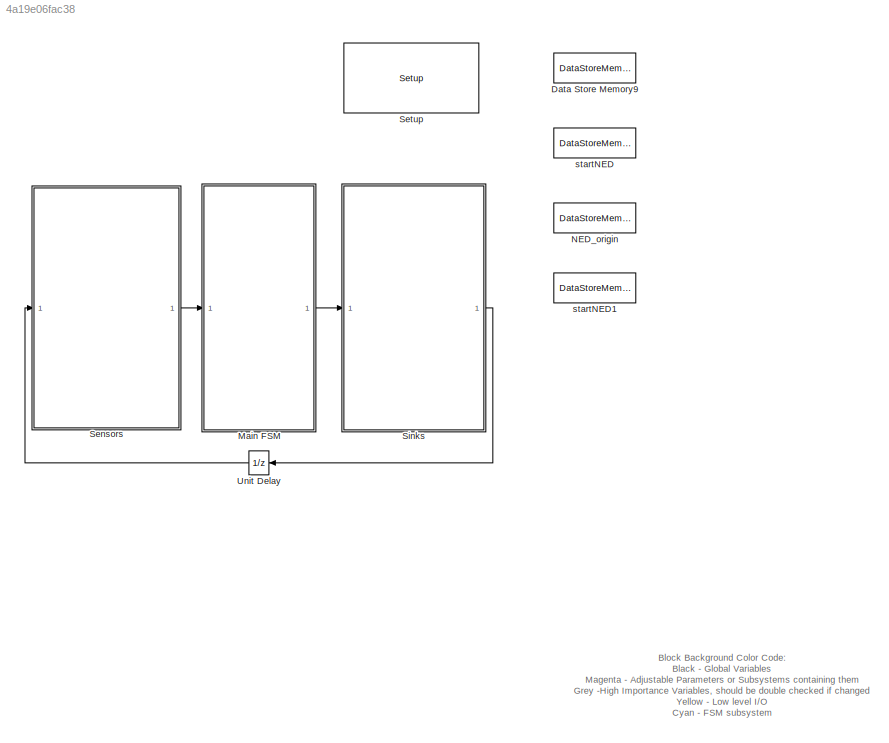
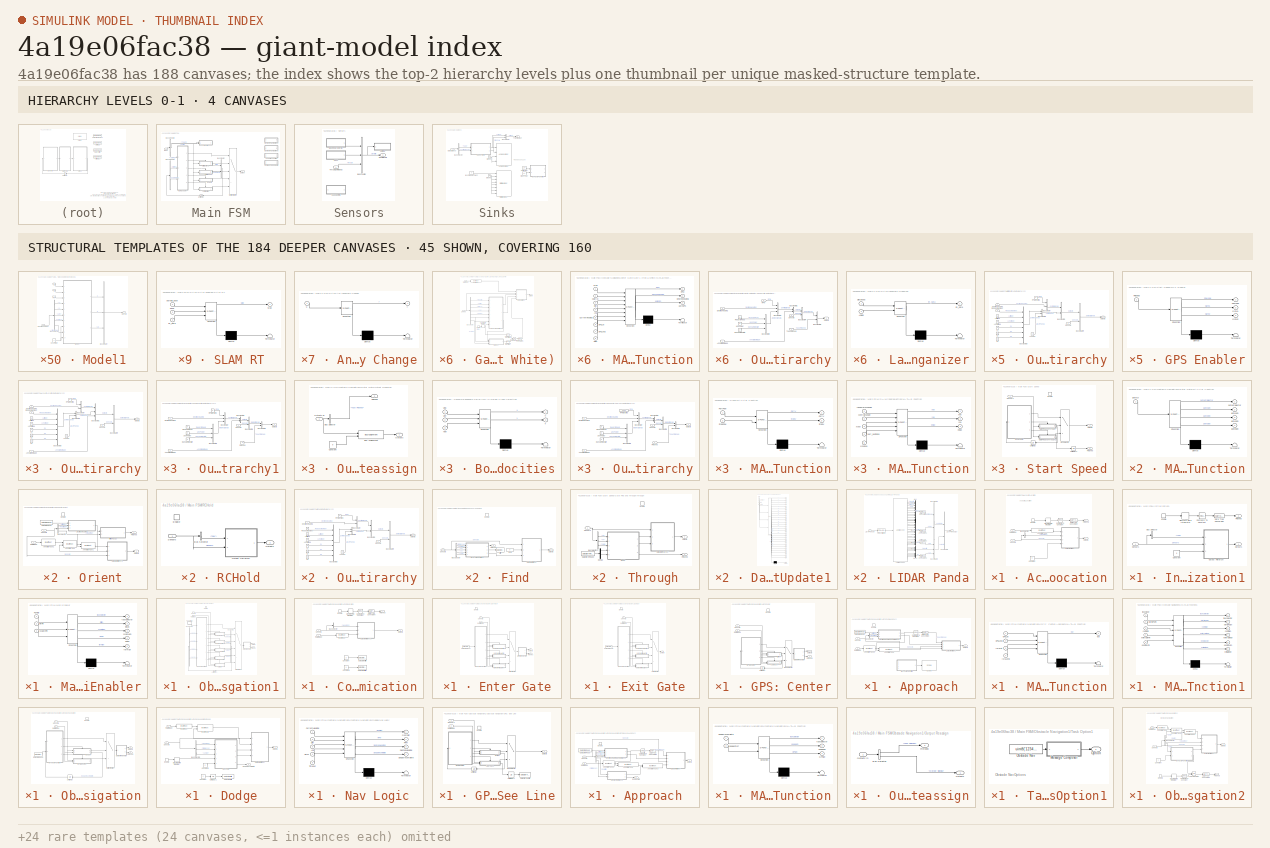
[diagram: thumbnail index - top-2 hierarchy levels (4 canvases) + 45 structural-template representatives of the remaining 184 canvases]
MODEL slx_4a19e06fac38
KIND model
BLOCK [DataStoreMemory] Data Store Memory9
  DataStoreName = transWpt
  InitialValue = [4009.4964500000, 7532.95009000000]
  ReadBeforeWriteMsg = warning
  WriteAfterReadMsg = warning
  WriteAfterWriteMsg = warning
BLOCK [SubSystem] Main FSM
  Ports = [1, 1]
  RequestExecContextInheritance = off
BLOCK [SubSystem] Main FSM/Acoustic Location
  Commented = on
  Ports = [2, 2, 1]
  RequestExecContextInheritance = off
  TreatAsAtomicUnit = on
BLOCK [Reference] Main FSM/Acoustic Location/Annotate Task  REF=visiontextngfix/Insert Text
  Ports = [1, 1]
  SourceBlock = visiontextngfix/Insert Text
  SourceType = Insert Text
  antiAliased = on
  blockFontSize = 12
  dummyVar1 = 0
  dummyVar2 = 0
  dummyVar3 = 0
  dummyVar4 = 0
  fontFace = LucidaSansRegular
  getTextColorFrom = Specify via dialog
  getTextIntensityFrom = Specify via dialog
  getTextLocFrom = Specify via dialog
  getTextOpacityFrom = Specify via dialog
  imagePorts = One multidimensional signal
  inputType = Obsolete
  isInputTransposed = off
  textColor = [0 0 255]
  textIntensity = 0
  textLoc = [10 10]
  textOpacity = 1.0
  theText = 'Acoustic Location...'
BLOCK [BusSelector] Main FSM/Acoustic Location/Bus Selector
  OutputSignals = Serial In.Compass.Heading
  Ports = [1, 1]
BLOCK [Reference] Main FSM/Acoustic Location/Compare To Constant  REF=simulink/Logic and Bit
Operations/Compare
To Constant
  OutDataTypeStr = boolean
  Ports = [1, 1]
  SourceBlock = simulink/Logic and Bit\nOperations/Compare\nTo Constant
  SourceType = Compare To Constant
  ZeroCross = on
  const = 10
  relop = >=
BLOCK [Constant] Main FSM/Acoustic Location/Constant
  Value = 0
BLOCK [DataTypeConversion] Main FSM/Acoustic Location/Data Type Conversion
  OutDataTypeStr = double
  RndMeth = Floor
  SaturateOnIntegerOverflow = off
BLOCK [DiscreteIntegrator] Main FSM/Acoustic Location/Discrete-Time Integrator
  ICPrevOutput = DiscIntNeverNeededParam
  ICPrevScaledInput = DiscIntNeverNeededParam
  Ports = [1, 1]
  SampleTime = 0.1
BLOCK [EnablePort] Main FSM/Acoustic Location/Enable
  Ports = [0, 1]
  ShowOutputPort = on
BLOCK [Outport] Main FSM/Acoustic Location/Finished
  IconDisplay = Port number
  Port = 2
BLOCK [SubSystem] Main FSM/Acoustic Location/Output Heirarchy
  Ports = [4, 1]
  RequestExecContextInheritance = off
BLOCK [Inport] Main FSM/Acoustic Location/Output Heirarchy/Annotated Image
  IconDisplay = Port number
BLOCK [BusCreator] Main FSM/Acoustic Location/Output Heirarchy/Bus Creator
  DisplayOption = bar
  Inputs = 2
  Ports = [2, 1]
BLOCK [BusCreator] Main FSM/Acoustic Location/Output Heirarchy/Bus Creator1
  DisplayOption = bar
  Inputs = 3
  Ports = [3, 1]
BLOCK [BusCreator] Main FSM/Acoustic Location/Output Heirarchy/Bus Creator2
  DisplayOption = bar
  Inputs = 2
  Ports = [2, 1]
BLOCK [BusCreator] Main FSM/Acoustic Location/Output Heirarchy/Bus Creator3
  DisplayOption = bar
  Inputs = 6
  Ports = [6, 1]
BLOCK [BusCreator] Main FSM/Acoustic Location/Output Heirarchy/Bus Creator4
  DisplayOption = bar
  Inputs = 2
  Ports = [2, 1]
BLOCK [Constant] Main FSM/Acoustic Location/Output Heirarchy/C1
  Value = 0
BLOCK [Constant] Main FSM/Acoustic Location/Output Heirarchy/C2
  Value = 0
BLOCK [Constant] Main FSM/Acoustic Location/Output Heirarchy/C3
  Value = 0
BLOCK [Inport] Main FSM/Acoustic Location/Output Heirarchy/Desired Heading
  IconDisplay = Port number
  Port = 2
BLOCK [Constant] Main FSM/Acoustic Location/Output Heirarchy/LPTask
  Value = 0
BLOCK [Constant] Main FSM/Acoustic Location/Output Heirarchy/Latitude
  Value = 0
BLOCK [Constant] Main FSM/Acoustic Location/Output Heirarchy/Longitude
  Value = 0
BLOCK [Outport] Main FSM/Acoustic Location/Output Heirarchy/Outputs
  IconDisplay = Port number
BLOCK [Constant] Main FSM/Acoustic Location/Output Heirarchy/RPM Desired
  Value = 0
BLOCK [Inport] Main FSM/Acoustic Location/Output Heirarchy/Request Number
  IconDisplay = Port number
  Port = 4
BLOCK [Inport] Main FSM/Acoustic Location/Output Heirarchy/Sensors
  IconDisplay = Port number
  Port = 3
BLOCK [Outport] Main FSM/Acoustic Location/Outputs
  IconDisplay = Port number
BLOCK [Inport] Main FSM/Acoustic Location/RGB image
  IconDisplay = Port number
  Port = 2
BLOCK [Inport] Main FSM/Acoustic Location/Sensors
  IconDisplay = Port number
BLOCK [BusCreator] Main FSM/Bus Creator
  DisplayOption = bar
  Inputs = 2
  Ports = [2, 1]
BLOCK [BusSelector] Main FSM/Bus Selector1
  OutputSignals = Init Fin,SSGate Fin
  Ports = [1, 2]
BLOCK [BusSelector] Main FSM/Bus Selector2
  OutputSignals = Thrust,Serial,IO102.Digital.Auto RC
  Ports = [1, 3]
BLOCK [SubSystem] Main FSM/Initialization1
  Ports = [1, 2, 1]
  RequestExecContextInheritance = off
BLOCK [BusSelector] Main FSM/Initialization1/Bus Selector
  OutputSignals = IMU.Orientation.Yaw
  Ports = [1, 1]
BLOCK [Reference] Main FSM/Initialization1/Compare To Constant  REF=simulink/Logic and Bit
Operations/Compare
To Constant
  OutDataTypeStr = boolean
  Ports = [1, 1]
  SourceBlock = simulink/Logic and Bit\nOperations/Compare\nTo Constant
  SourceType = Compare To Constant
  ZeroCross = on
  const = 5
  relop = >=
BLOCK [Constant] Main FSM/Initialization1/Constant
  Value = 0
BLOCK [DataTypeConversion] Main FSM/Initialization1/Data Type Conversion
  OutDataTypeStr = double
  RndMeth = Floor
  SaturateOnIntegerOverflow = off
BLOCK [DiscreteIntegrator] Main FSM/Initialization1/Discrete-Time Integrator
  ICPrevOutput = DiscIntNeverNeededParam
  ICPrevScaledInput = DiscIntNeverNeededParam
  Ports = [1, 1]
  SampleTime = -1
BLOCK [EnablePort] Main FSM/Initialization1/Enable
  Ports = [0, 1]
  ShowOutputPort = on
BLOCK [Outport] Main FSM/Initialization1/Finished
  IconDisplay = Port number
  Port = 2
BLOCK [SubSystem] Main FSM/Initialization1/Output Heirarchy
  Ports = [3, 1]
  RequestExecContextInheritance = off
BLOCK [BusCreator] Main FSM/Initialization1/Output Heirarchy/Bus Creator
  DisplayOption = bar
  Inputs = 2
  Ports = [2, 1]
BLOCK [BusCreator] Main FSM/Initialization1/Output Heirarchy/Bus Creator1
  DisplayOption = bar
  Inputs = 2
  Ports = [2, 1]
BLOCK [BusCreator] Main FSM/Initialization1/Output Heirarchy/Bus Creator2
  DisplayOption = bar
  Inputs = 2
  Ports = [2, 1]
BLOCK [BusCreator] Main FSM/Initialization1/Output Heirarchy/Bus Creator3
  DisplayOption = bar
  Inputs = 6
  Ports = [6, 1]
BLOCK [BusCreator] Main FSM/Initialization1/Output Heirarchy/Bus Creator4
  DisplayOption = bar
  Inputs = 2
  Ports = [2, 1]
BLOCK [Constant] Main FSM/Initialization1/Output Heirarchy/C1
  Value = 0
BLOCK [Constant] Main FSM/Initialization1/Output Heirarchy/C2
  Value = 0
BLOCK [Constant] Main FSM/Initialization1/Output Heirarchy/C3
  Value = 0
BLOCK [Inport] Main FSM/Initialization1/Output Heirarchy/Desired Heading
  IconDisplay = Port number
BLOCK [Constant] Main FSM/Initialization1/Output Heirarchy/LPTask
BLOCK [Constant] Main FSM/Initialization1/Output Heirarchy/Latitude
  Value = 0
BLOCK [Constant] Main FSM/Initialization1/Output Heirarchy/Longitude
  Value = 0
BLOCK [Outport] Main FSM/Initialization1/Output Heirarchy/Outputs
  IconDisplay = Port number
BLOCK [Constant] Main FSM/Initialization1/Output Heirarchy/RPM Desired
  Value = 0
BLOCK [Inport] Main FSM/Initialization1/Output Heirarchy/Request Number
  IconDisplay = Port number
  Port = 3
BLOCK [Inport] Main FSM/Initialization1/Output Heirarchy/Sensors
  IconDisplay = Port number
  Port = 2
BLOCK [Outport] Main FSM/Initialization1/Outputs
  IconDisplay = Port number
BLOCK [Inport] Main FSM/Initialization1/Sensors
  IconDisplay = Port number
BLOCK [Inport] Main FSM/Input
  IconDisplay = Port number
BLOCK [SubSystem] Main FSM/Main Enabler
  ErrorFcn = Stateflow.Translate.translate
  PermitHierarchicalResolution = ExplicitOnly
  Ports = [3, 5]
  RequestExecContextInheritance = off
  SFBlockType = MATLAB Function
  TreatAsAtomicUnit = on
BLOCK [Demux] Main FSM/Main Enabler/ Demux 
  Outputs = 1
  Ports = [1, 1]
BLOCK [S-Function] Main FSM/Main Enabler/ SFunction 
  EnableBusSupport = on
  FunctionName = sf_sfun
  PortCounts = [3 6]
  Ports = [3, 6]
  Tag = Stateflow S-Function RoboBoat_SLAM_6_29 4
BLOCK [Terminator] Main FSM/Main Enabler/ Terminator 
BLOCK [Outport] Main FSM/Main Enabler/RCEn
  IconDisplay = Port number
  Port = 4
BLOCK [Inport] Main FSM/Main Enabler/RCHold
  IconDisplay = Port number
BLOCK [Outport] Main FSM/Main Enabler/initEn
  IconDisplay = Port number
  Port = 2
BLOCK [Inport] Main FSM/Main Enabler/initFin
  IconDisplay = Port number
  Port = 2
BLOCK [Outport] Main FSM/Main Enabler/ssGateEn
  IconDisplay = Port number
  Port = 3
BLOCK [Inport] Main FSM/Main Enabler/ssGateFin
  IconDisplay = Port number
  Port = 3
BLOCK [Outport] Main FSM/Main Enabler/taskSelector
  IconDisplay = Port number
BLOCK [Outport] Main FSM/Main Enabler/termEn
  IconDisplay = Port number
  Port = 5
BLOCK [MultiPortSwitch] Main FSM/Multiport Switch
  InputSameDT = off
  Inputs = 4
  Ports = [5, 1]
  SaturateOnIntegerOverflow = off
BLOCK [SubSystem] Main FSM/Obstacle Navigation1
  Commented = on
  Ports = [2, 2, 1]
  RequestExecContextInheritance = off
  TreatAsAtomicUnit = on
BLOCK [BusCreator] Main FSM/Obstacle Navigation1/Bus Creator1
  DisplayOption = bar
  Ports = [4, 1]
BLOCK [BusSelector] Main FSM/Obstacle Navigation1/Bus Selector1
  OutputSignals = GPS Fin,Comm Fin,Enter Fin,Nav Fin
  Ports = [1, 4]
BLOCK [SubSystem] Main FSM/Obstacle Navigation1/Communication
  Ports = [2, 2, 1]
  RequestExecContextInheritance = off
  TreatAsAtomicUnit = on
BLOCK [BusSelector] Main FSM/Obstacle Navigation1/Communication/Bus Selector
  OutputSignals = Serial In.Compass.Heading
  Ports = [1, 1]
BLOCK [Reference] Main FSM/Obstacle Navigation1/Communication/Compare To Constant  REF=simulink/Logic and Bit
Operations/Compare
To Constant
  OutDataTypeStr = boolean
  Ports = [1, 1]
  SourceBlock = simulink/Logic and Bit\nOperations/Compare\nTo Constant
  SourceType = Compare To Constant
  ZeroCross = on
  const = 5
  relop = >=
BLOCK [Constant] Main FSM/Obstacle Navigation1/Communication/Constant
  Value = 3
BLOCK [Constant] Main FSM/Obstacle Navigation1/Communication/Constant1
  Value = 3
BLOCK [DataStoreWrite] Main FSM/Obstacle Navigation1/Communication/Data Store Write
  DataStoreName = enterGate
  Ports = [1]
BLOCK [DataStoreWrite] Main FSM/Obstacle Navigation1/Communication/Data Store Write1
  DataStoreName = exitGate
  Ports = [1]
BLOCK [DataTypeConversion] Main FSM/Obstacle Navigation1/Communication/Data Type Conversion
  OutDataTypeStr = double
  RndMeth = Floor
  SaturateOnIntegerOverflow = off
BLOCK [DiscreteIntegrator] Main FSM/Obstacle Navigation1/Communication/Discrete-Time Integrator
  ICPrevOutput = DiscIntNeverNeededParam
  ICPrevScaledInput = DiscIntNeverNeededParam
  Ports = [1, 1]
  SampleTime = 0.1
BLOCK [EnablePort] Main FSM/Obstacle Navigation1/Communication/Enable
  Ports = [0, 1]
  ShowOutputPort = on
BLOCK [Outport] Main FSM/Obstacle Navigation1/Communication/Finished
  IconDisplay = Port number
  Port = 2
BLOCK [Reference] Main FSM/Obstacle Navigation1/Communication/Insert Text  REF=visiontextngfix/Insert Text
  Ports = [1, 1]
  SourceBlock = visiontextngfix/Insert Text
  SourceType = Insert Text
  antiAliased = on
  blockFontSize = 12
  dummyVar1 = 0
  dummyVar2 = 0
  dummyVar3 = 0
  dummyVar4 = 0
  fontFace = LucidaSansRegular
  getTextColorFrom = Specify via dialog
  getTextIntensityFrom = Specify via dialog
  getTextLocFrom = Specify via dialog
  getTextOpacityFrom = Specify via dialog
  imagePorts = One multidimensional signal
  inputType = Obsolete
  isInputTransposed = off
  textColor = [0 0 0]
  textIntensity = 0
  textLoc = [1 1]
  textOpacity = 1.0
  theText = 'Communication1'
BLOCK [SubSystem] Main FSM/Obstacle Navigation1/Communication/Output Heirarchy1
  Ports = [3, 1]
  RequestExecContextInheritance = off
BLOCK [Inport] Main FSM/Obstacle Navigation1/Communication/Output Heirarchy1/Annotated Image
  IconDisplay = Port number
  Port = 3
BLOCK [BusCreator] Main FSM/Obstacle Navigation1/Communication/Output Heirarchy1/Bus Creator
  DisplayOption = bar
  Inputs = 3
  Ports = [3, 1]
BLOCK [BusCreator] Main FSM/Obstacle Navigation1/Communication/Output Heirarchy1/Bus Creator1
  DisplayOption = bar
  Inputs = 2
  Ports = [2, 1]
BLOCK [BusCreator] Main FSM/Obstacle Navigation1/Communication/Output Heirarchy1/Bus Creator2
  DisplayOption = bar
  Inputs = 3
  Ports = [3, 1]
BLOCK [BusCreator] Main FSM/Obstacle Navigation1/Communication/Output Heirarchy1/Bus Creator3
  DisplayOption = bar
  Inputs = 2
  Ports = [2, 1]
BLOCK [BusCreator] Main FSM/Obstacle Navigation1/Communication/Output Heirarchy1/Bus Creator4
  DisplayOption = bar
  Inputs = 2
  Ports = [2, 1]
BLOCK [Inport] Main FSM/Obstacle Navigation1/Communication/Output Heirarchy1/Desired Heading
  IconDisplay = Port number
BLOCK [Constant] Main FSM/Obstacle Navigation1/Communication/Output Heirarchy1/Due Sample Start
  Value = 0
BLOCK [Constant] Main FSM/Obstacle Navigation1/Communication/Output Heirarchy1/Finished
  Value = 0
BLOCK [Outport] Main FSM/Obstacle Navigation1/Communication/Output Heirarchy1/Outputs
  IconDisplay = Port number
BLOCK [Constant] Main FSM/Obstacle Navigation1/Communication/Output Heirarchy1/RPM Desired
  Value = 0
BLOCK [Constant] Main FSM/Obstacle Navigation1/Communication/Output Heirarchy1/Ready to Read
  Value = 0
BLOCK [Inport] Main FSM/Obstacle Navigation1/Communication/Output Heirarchy1/Sensors
  IconDisplay = Port number
  Port = 2
BLOCK [Constant] Main FSM/Obstacle Navigation1/Communication/Output Heirarchy1/Uno Power
  Value = 0
BLOCK [Outport] Main FSM/Obstacle Navigation1/Communication/Outputs
  IconDisplay = Port number
BLOCK [Inport] Main FSM/Obstacle Navigation1/Communication/RGB Image
  IconDisplay = Port number
  Port = 2
BLOCK [Inport] Main FSM/Obstacle Navigation1/Communication/Sensors
  IconDisplay = Port number
BLOCK [EnablePort] Main FSM/Obstacle Navigation1/Enable
  Ports = []
BLOCK [SubSystem] Main FSM/Obstacle Navigation1/Enter Gate
  Ports = [2, 2, 1]
  RequestExecContextInheritance = off
  TreatAsAtomicUnit = on
BLOCK [DataStoreRead] Main FSM/Obstacle Navigation1/Enter Gate/Data Store Read
  DataStoreName = enterGate
  Ports = [0, 1]
BLOCK [EnablePort] Main FSM/Obstacle Navigation1/Enter Gate/Enable
  Ports = []
BLOCK [Outport] Main FSM/Obstacle Navigation1/Enter Gate/Finished
  IconDisplay = Port number
  Port = 2
BLOCK [SubSystem] Main FSM/Obstacle Navigation1/Enter Gate/Gate 1 (Red & White)
  Ports = [2, 1, 1]
  RequestExecContextInheritance = off
  TreatAsAtomicUnit = on
BLOCK [BusSelector] Main FSM/Obstacle Navigation1/Enter Gate/Gate 1 (Red & White)/Bus Selector
  OutputSignals = Serial In.Buoy Info.Probability,Serial In.Buoy Info.Color ID,Serial In.Buoy Info.Distance,Serial In.Buoy Info.Angle,Serial In.Compass.Heading,Serial In.GPS.latitude,Serial In.GPS.longitude  <repeated x6 — deduplicated; at blocks: Bus Selector>
  Ports = [1, 7]
BLOCK [Reference] Main FSM/Obstacle Navigation1/Enter Gate/Gate 1 (Red & White)/Compare To Constant  REF=simulink/Logic and Bit
Operations/Compare
To Constant
  OutDataTypeStr = boolean
  Ports = [1, 1]
  SourceBlock = simulink/Logic and Bit\nOperations/Compare\nTo Constant
  SourceType = Compare To Constant
  ZeroCross = on
  const = 2
  relop = <=
BLOCK [Reference] Main FSM/Obstacle Navigation1/Enter Gate/Gate 1 (Red & White)/Compare To Constant1  REF=simulink/Logic and Bit
Operations/Compare
To Constant
  OutDataTypeStr = boolean
  Ports = [1, 1]
  SourceBlock = simulink/Logic and Bit\nOperations/Compare\nTo Constant
  SourceType = Compare To Constant
  ZeroCross = on
  const = 120
  relop = >=
BLOCK [DataTypeConversion] Main FSM/Obstacle Navigation1/Enter Gate/Gate 1 (Red & White)/Data Type Conversion2
  OutDataTypeStr = double
  RndMeth = Floor
  SaturateOnIntegerOverflow = off
BLOCK [DiscreteIntegrator] Main FSM/Obstacle Navigation1/Enter Gate/Gate 1 (Red & White)/Discrete-Time Integrator
  ICPrevOutput = DiscIntNeverNeededParam
  ICPrevScaledInput = DiscIntNeverNeededParam
  Ports = [1, 1]
  SampleTime = .1
BLOCK [SubSystem] Main FSM/Obstacle Navigation1/Enter Gate/Gate 1 (Red & White)/Distance
  ErrorFcn = Stateflow.Translate.translate
  PermitHierarchicalResolution = ExplicitOnly
  Ports = [3, 1]
  RequestExecContextInheritance = off
  SFBlockType = MATLAB Function
  TreatAsAtomicUnit = on
BLOCK [Demux] Main FSM/Obstacle Navigation1/Enter Gate/Gate 1 (Red & White)/Distance/ Demux 
  Outputs = 1
  Ports = [1, 1]
BLOCK [S-Function] Main FSM/Obstacle Navigation1/Enter Gate/Gate 1 (Red & White)/Distance/ SFunction 
  EnableBusSupport = on
  FunctionName = sf_sfun
  PortCounts = [3 2]
  Ports = [3, 2]
  Tag = Stateflow S-Function RoboBoat_SLAM_6_29 19
BLOCK [Terminator] Main FSM/Obstacle Navigation1/Enter Gate/Gate 1 (Red & White)/Distance/ Terminator 
BLOCK [Inport] Main FSM/Obstacle Navigation1/Enter Gate/Gate 1 (Red & White)/Distance/DesiredGPS
  IconDisplay = Port number
BLOCK [Outport] Main FSM/Obstacle Navigation1/Enter Gate/Gate 1 (Red & White)/Distance/Distance
  IconDisplay = Port number
BLOCK [Inport] Main FSM/Obstacle Navigation1/Enter Gate/Gate 1 (Red & White)/Distance/GPSLat
  IconDisplay = Port number
  Port = 2
BLOCK [Inport] Main FSM/Obstacle Navigation1/Enter Gate/Gate 1 (Red & White)/Distance/GPSLong
  IconDisplay = Port number
  Port = 3
BLOCK [EnablePort] Main FSM/Obstacle Navigation1/Enter Gate/Gate 1 (Red & White)/Enable
  Ports = [0, 1]
  ShowOutputPort = on
BLOCK [Reference] Main FSM/Obstacle Navigation1/Enter Gate/Gate 1 (Red & White)/Insert Text  REF=visiontextngfix/Insert Text
  Ports = [1, 1]
  SourceBlock = visiontextngfix/Insert Text
  SourceType = Insert Text
  antiAliased = on
  blockFontSize = 12
  dummyVar1 = 0
  dummyVar2 = 0
  dummyVar3 = 0
  dummyVar4 = 0
  fontFace = LucidaSansRegular
  getTextColorFrom = Specify via dialog
  getTextIntensityFrom = Specify via dialog
  getTextLocFrom = Specify via dialog
  getTextOpacityFrom = Specify via dialog
  imagePorts = One multidimensional signal
  inputType = Obsolete
  isInputTransposed = off
  textColor = [0 0 0]
  textIntensity = 0
  textLoc = [1 1]
  textOpacity = 1.0
  theText = 'Enter Gate 1'
BLOCK [Logic] Main FSM/Obstacle Navigation1/Enter Gate/Gate 1 (Red & White)/Logical Operator
  AllPortsSameDT = off
  Operator = OR
  OutDataTypeStr = boolean
  Ports = [2, 1]
BLOCK [SubSystem] Main FSM/Obstacle Navigation1/Enter Gate/Gate 1 (Red & White)/MATLAB Function
  ErrorFcn = Stateflow.Translate.translate
  PermitHierarchicalResolution = ExplicitOnly
  Ports = [8, 3]
  RequestExecContextInheritance = off
  SFBlockType = MATLAB Function
  TreatAsAtomicUnit = on
BLOCK [Demux] Main FSM/Obstacle Navigation1/Enter Gate/Gate 1 (Red & White)/MATLAB Function/ Demux 
  Outputs = 1
  Ports = [1, 1]
BLOCK [S-Function] Main FSM/Obstacle Navigation1/Enter Gate/Gate 1 (Red & White)/MATLAB Function/ SFunction 
  EnableBusSupport = on
  FunctionName = sf_sfun
  PortCounts = [8 4]
  Ports = [8, 4]
  Tag = Stateflow S-Function RoboBoat_SLAM_6_29 20
BLOCK [Terminator] Main FSM/Obstacle Navigation1/Enter Gate/Gate 1 (Red & White)/MATLAB Function/ Terminator 
BLOCK [Inport] Main FSM/Obstacle Navigation1/Enter Gate/Gate 1 (Red & White)/MATLAB Function/Ang
  IconDisplay = Port number
  Port = 4
BLOCK [Inport] Main FSM/Obstacle Navigation1/Enter Gate/Gate 1 (Red & White)/MATLAB Function/ColorID
  IconDisplay = Port number
  Port = 2
BLOCK [Inport] Main FSM/Obstacle Navigation1/Enter Gate/Gate 1 (Red & White)/MATLAB Function/CurrentHeading
  IconDisplay = Port number
  Port = 5
BLOCK [Outport] Main FSM/Obstacle Navigation1/Enter Gate/Gate 1 (Red & White)/MATLAB Function/DesiredHeading
  IconDisplay = Port number
  Port = 2
BLOCK [Inport] Main FSM/Obstacle Navigation1/Enter Gate/Gate 1 (Red & White)/MATLAB Function/Dist
  IconDisplay = Port number
  Port = 3
BLOCK [Inport] Main FSM/Obstacle Navigation1/Enter Gate/Gate 1 (Red & White)/MATLAB Function/GPSLat
  IconDisplay = Port number
  Port = 6
BLOCK [Inport] Main FSM/Obstacle Navigation1/Enter Gate/Gate 1 (Red & White)/MATLAB Function/GPSLong
  IconDisplay = Port number
  Port = 7
BLOCK [Inport] Main FSM/Obstacle Navigation1/Enter Gate/Gate 1 (Red & White)/MATLAB Function/Prob
  IconDisplay = Port number
BLOCK [Outport] Main FSM/Obstacle Navigation1/Enter Gate/Gate 1 (Red & White)/MATLAB Function/RPM
  IconDisplay = Port number
BLOCK [Inport] Main FSM/Obstacle Navigation1/Enter Gate/Gate 1 (Red & White)/MATLAB Function/Timer
  IconDisplay = Port number
  Port = 8
BLOCK [Outport] Main FSM/Obstacle Navigation1/Enter Gate/Gate 1 (Red & White)/MATLAB Function/gateGPS
  IconDisplay = Port number
  Port = 3
BLOCK [SubSystem] Main FSM/Obstacle Navigation1/Enter Gate/Gate 1 (Red & White)/Output Heirarchy
  Ports = [5, 1]
  RequestExecContextInheritance = off
BLOCK [Inport] Main FSM/Obstacle Navigation1/Enter Gate/Gate 1 (Red & White)/Output Heirarchy/Annotated Image
  IconDisplay = Port number
BLOCK [BusCreator] Main FSM/Obstacle Navigation1/Enter Gate/Gate 1 (Red & White)/Output Heirarchy/Bus Creator
  DisplayOption = bar
  Inputs = 3
  Ports = [3, 1]
BLOCK [BusCreator] Main FSM/Obstacle Navigation1/Enter Gate/Gate 1 (Red & White)/Output Heirarchy/Bus Creator1
  DisplayOption = bar
  Inputs = 2
  Ports = [2, 1]
BLOCK [BusCreator] Main FSM/Obstacle Navigation1/Enter Gate/Gate 1 (Red & White)/Output Heirarchy/Bus Creator2
  DisplayOption = bar
  Inputs = 3
  Ports = [3, 1]
BLOCK [BusCreator] Main FSM/Obstacle Navigation1/Enter Gate/Gate 1 (Red & White)/Output Heirarchy/Bus Creator3
  DisplayOption = bar
  Inputs = 2
  Ports = [2, 1]
BLOCK [BusCreator] Main FSM/Obstacle Navigation1/Enter Gate/Gate 1 (Red & White)/Output Heirarchy/Bus Creator4
  DisplayOption = bar
  Inputs = 2
  Ports = [2, 1]
BLOCK [Inport] Main FSM/Obstacle Navigation1/Enter Gate/Gate 1 (Red & White)/Output Heirarchy/Desired Heading
  IconDisplay = Port number
  Port = 4
BLOCK [Constant] Main FSM/Obstacle Navigation1/Enter Gate/Gate 1 (Red & White)/Output Heirarchy/Due Sample Start
  Value = 0
BLOCK [Outport] Main FSM/Obstacle Navigation1/Enter Gate/Gate 1 (Red & White)/Output Heirarchy/Outputs
  IconDisplay = Port number
BLOCK [Inport] Main FSM/Obstacle Navigation1/Enter Gate/Gate 1 (Red & White)/Output Heirarchy/RPM
  IconDisplay = Port number
  Port = 3
BLOCK [Constant] Main FSM/Obstacle Navigation1/Enter Gate/Gate 1 (Red & White)/Output Heirarchy/Ready to Read
  Value = 0
BLOCK [Inport] Main FSM/Obstacle Navigation1/Enter Gate/Gate 1 (Red & White)/Output Heirarchy/Sensors
  IconDisplay = Port number
  Port = 2
BLOCK [Inport] Main FSM/Obstacle Navigation1/Enter Gate/Gate 1 (Red & White)/Output Heirarchy/Task Finished
  IconDisplay = Port number
  Port = 5
BLOCK [Constant] Main FSM/Obstacle Navigation1/Enter Gate/Gate 1 (Red & White)/Output Heirarchy/Uno Power
  Value = 0
BLOCK [Outport] Main FSM/Obstacle Navigation1/Enter Gate/Gate 1 (Red & White)/Outputs
  IconDisplay = Port number
BLOCK [Inport] Main FSM/Obstacle Navigation1/Enter Gate/Gate 1 (Red & White)/RGB image
  IconDisplay = Port number
  Port = 2
BLOCK [Inport] Main FSM/Obstacle Navigation1/Enter Gate/Gate 1 (Red & White)/Sensors
  IconDisplay = Port number
BLOCK [SubSystem] Main FSM/Obstacle Navigation1/Enter Gate/Gate 2 (White & White)
  Ports = [2, 1, 1]
  RequestExecContextInheritance = off
  TreatAsAtomicUnit = on
BLOCK [BusSelector] Main FSM/Obstacle Navigation1/Enter Gate/Gate 2 (White & White)/Bus Selector
  Ports = [1, 7]
BLOCK [Reference] Main FSM/Obstacle Navigation1/Enter Gate/Gate 2 (White & White)/Compare To Constant  REF=simulink/Logic and Bit
Operations/Compare
To Constant
  OutDataTypeStr = boolean
  Ports = [1, 1]
  SourceBlock = simulink/Logic and Bit\nOperations/Compare\nTo Constant
  SourceType = Compare To Constant
  ZeroCross = on
  const = 2
  relop = <=
BLOCK [Reference] Main FSM/Obstacle Navigation1/Enter Gate/Gate 2 (White & White)/Compare To Constant1  REF=simulink/Logic and Bit
Operations/Compare
To Constant
  OutDataTypeStr = boolean
  Ports = [1, 1]
  SourceBlock = simulink/Logic and Bit\nOperations/Compare\nTo Constant
  SourceType = Compare To Constant
  ZeroCross = on
  const = 120
  relop = >=
BLOCK [DataTypeConversion] Main FSM/Obstacle Navigation1/Enter Gate/Gate 2 (White & White)/Data Type Conversion2
  OutDataTypeStr = double
  RndMeth = Floor
  SaturateOnIntegerOverflow = off
BLOCK [DiscreteIntegrator] Main FSM/Obstacle Navigation1/Enter Gate/Gate 2 (White & White)/Discrete-Time Integrator
  ICPrevOutput = DiscIntNeverNeededParam
  ICPrevScaledInput = DiscIntNeverNeededParam
  Ports = [1, 1]
  SampleTime = .1
BLOCK [SubSystem] Main FSM/Obstacle Navigation1/Enter Gate/Gate 2 (White & White)/Distance
  ErrorFcn = Stateflow.Translate.translate
  PermitHierarchicalResolution = ExplicitOnly
  Ports = [3, 1]
  RequestExecContextInheritance = off
  SFBlockType = MATLAB Function
  TreatAsAtomicUnit = on
BLOCK [Demux] Main FSM/Obstacle Navigation1/Enter Gate/Gate 2 (White & White)/Distance/ Demux 
  Outputs = 1
  Ports = [1, 1]
BLOCK [S-Function] Main FSM/Obstacle Navigation1/Enter Gate/Gate 2 (White & White)/Distance/ SFunction 
  EnableBusSupport = on
  FunctionName = sf_sfun
  PortCounts = [3 2]
  Ports = [3, 2]
  Tag = Stateflow S-Function RoboBoat_SLAM_6_29 21
BLOCK [Terminator] Main FSM/Obstacle Navigation1/Enter Gate/Gate 2 (White & White)/Distance/ Terminator 
BLOCK [Inport] Main FSM/Obstacle Navigation1/Enter Gate/Gate 2 (White & White)/Distance/DesiredGPS
  IconDisplay = Port number
BLOCK [Outport] Main FSM/Obstacle Navigation1/Enter Gate/Gate 2 (White & White)/Distance/Distance
  IconDisplay = Port number
BLOCK [Inport] Main FSM/Obstacle Navigation1/Enter Gate/Gate 2 (White & White)/Distance/GPSLat
  IconDisplay = Port number
  Port = 2
BLOCK [Inport] Main FSM/Obstacle Navigation1/Enter Gate/Gate 2 (White & White)/Distance/GPSLong
  IconDisplay = Port number
  Port = 3
BLOCK [EnablePort] Main FSM/Obstacle Navigation1/Enter Gate/Gate 2 (White & White)/Enable
  Ports = [0, 1]
  ShowOutputPort = on
BLOCK [Reference] Main FSM/Obstacle Navigation1/Enter Gate/Gate 2 (White & White)/Insert Text  REF=visiontextngfix/Insert Text
  Ports = [1, 1]
  SourceBlock = visiontextngfix/Insert Text
  SourceType = Insert Text
  antiAliased = on
  blockFontSize = 12
  dummyVar1 = 0
  dummyVar2 = 0
  dummyVar3 = 0
  dummyVar4 = 0
  fontFace = LucidaSansRegular
  getTextColorFrom = Specify via dialog
  getTextIntensityFrom = Specify via dialog
  getTextLocFrom = Specify via dialog
  getTextOpacityFrom = Specify via dialog
  imagePorts = One multidimensional signal
  inputType = Obsolete
  isInputTransposed = off
  textColor = [0 0 0]
  textIntensity = 0
  textLoc = [1 1]
  textOpacity = 1.0
  theText = 'Enter Gate 2'
BLOCK [Logic] Main FSM/Obstacle Navigation1/Enter Gate/Gate 2 (White & White)/Logical Operator
  AllPortsSameDT = off
  Operator = OR
  OutDataTypeStr = boolean
  Ports = [2, 1]
BLOCK [SubSystem] Main FSM/Obstacle Navigation1/Enter Gate/Gate 2 (White & White)/MATLAB Function
  ErrorFcn = Stateflow.Translate.translate
  PermitHierarchicalResolution = ExplicitOnly
  Ports = [8, 3]
  RequestExecContextInheritance = off
  SFBlockType = MATLAB Function
  TreatAsAtomicUnit = on
BLOCK [Demux] Main FSM/Obstacle Navigation1/Enter Gate/Gate 2 (White & White)/MATLAB Function/ Demux 
  Outputs = 1
  Ports = [1, 1]
BLOCK [S-Function] Main FSM/Obstacle Navigation1/Enter Gate/Gate 2 (White & White)/MATLAB Function/ SFunction 
  EnableBusSupport = on
  FunctionName = sf_sfun
  PortCounts = [8 4]
  Ports = [8, 4]
  Tag = Stateflow S-Function RoboBoat_SLAM_6_29 22
BLOCK [Terminator] Main FSM/Obstacle Navigation1/Enter Gate/Gate 2 (White & White)/MATLAB Function/ Terminator 
BLOCK [Inport] Main FSM/Obstacle Navigation1/Enter Gate/Gate 2 (White & White)/MATLAB Function/Ang
  IconDisplay = Port number
  Port = 4
BLOCK [Inport] Main FSM/Obstacle Navigation1/Enter Gate/Gate 2 (White & White)/MATLAB Function/ColorID
  IconDisplay = Port number
  Port = 2
BLOCK [Inport] Main FSM/Obstacle Navigation1/Enter Gate/Gate 2 (White & White)/MATLAB Function/CurrentHeading
  IconDisplay = Port number
  Port = 5
BLOCK [Outport] Main FSM/Obstacle Navigation1/Enter Gate/Gate 2 (White & White)/MATLAB Function/DesiredHeading
  IconDisplay = Port number
  Port = 2
BLOCK [Inport] Main FSM/Obstacle Navigation1/Enter Gate/Gate 2 (White & White)/MATLAB Function/Dist
  IconDisplay = Port number
  Port = 3
BLOCK [Inport] Main FSM/Obstacle Navigation1/Enter Gate/Gate 2 (White & White)/MATLAB Function/GPSLat
  IconDisplay = Port number
  Port = 6
BLOCK [Inport] Main FSM/Obstacle Navigation1/Enter Gate/Gate 2 (White & White)/MATLAB Function/GPSLong
  IconDisplay = Port number
  Port = 7
BLOCK [Inport] Main FSM/Obstacle Navigation1/Enter Gate/Gate 2 (White & White)/MATLAB Function/Prob
  IconDisplay = Port number
BLOCK [Outport] Main FSM/Obstacle Navigation1/Enter Gate/Gate 2 (White & White)/MATLAB Function/RPM
  IconDisplay = Port number
BLOCK [Inport] Main FSM/Obstacle Navigation1/Enter Gate/Gate 2 (White & White)/MATLAB Function/Timer
  IconDisplay = Port number
  Port = 8
BLOCK [Outport] Main FSM/Obstacle Navigation1/Enter Gate/Gate 2 (White & White)/MATLAB Function/gateGPS
  IconDisplay = Port number
  Port = 3
BLOCK [SubSystem] Main FSM/Obstacle Navigation1/Enter Gate/Gate 2 (White & White)/Output Heirarchy
  Ports = [5, 1]
  RequestExecContextInheritance = off
BLOCK [Inport] Main FSM/Obstacle Navigation1/Enter Gate/Gate 2 (White & White)/Output Heirarchy/Annotated Image
  IconDisplay = Port number
BLOCK [BusCreator] Main FSM/Obstacle Navigation1/Enter Gate/Gate 2 (White & White)/Output Heirarchy/Bus Creator
  DisplayOption = bar
  Inputs = 3
  Ports = [3, 1]
BLOCK [BusCreator] Main FSM/Obstacle Navigation1/Enter Gate/Gate 2 (White & White)/Output Heirarchy/Bus Creator1
  DisplayOption = bar
  Inputs = 2
  Ports = [2, 1]
BLOCK [BusCreator] Main FSM/Obstacle Navigation1/Enter Gate/Gate 2 (White & White)/Output Heirarchy/Bus Creator2
  DisplayOption = bar
  Inputs = 3
  Ports = [3, 1]
BLOCK [BusCreator] Main FSM/Obstacle Navigation1/Enter Gate/Gate 2 (White & White)/Output Heirarchy/Bus Creator3
  DisplayOption = bar
  Inputs = 2
  Ports = [2, 1]
BLOCK [BusCreator] Main FSM/Obstacle Navigation1/Enter Gate/Gate 2 (White & White)/Output Heirarchy/Bus Creator4
  DisplayOption = bar
  Inputs = 2
  Ports = [2, 1]
BLOCK [Inport] Main FSM/Obstacle Navigation1/Enter Gate/Gate 2 (White & White)/Output Heirarchy/Desired Heading
  IconDisplay = Port number
  Port = 4
BLOCK [Constant] Main FSM/Obstacle Navigation1/Enter Gate/Gate 2 (White & White)/Output Heirarchy/Due Sample Start
  Value = 0
BLOCK [Outport] Main FSM/Obstacle Navigation1/Enter Gate/Gate 2 (White & White)/Output Heirarchy/Outputs
  IconDisplay = Port number
BLOCK [Inport] Main FSM/Obstacle Navigation1/Enter Gate/Gate 2 (White & White)/Output Heirarchy/RPM
  IconDisplay = Port number
  Port = 3
BLOCK [Constant] Main FSM/Obstacle Navigation1/Enter Gate/Gate 2 (White & White)/Output Heirarchy/Ready to Read
  Value = 0
BLOCK [Inport] Main FSM/Obstacle Navigation1/Enter Gate/Gate 2 (White & White)/Output Heirarchy/Sensors
  IconDisplay = Port number
  Port = 2
BLOCK [Inport] Main FSM/Obstacle Navigation1/Enter Gate/Gate 2 (White & White)/Output Heirarchy/Task Finished
  IconDisplay = Port number
  Port = 5
BLOCK [Constant] Main FSM/Obstacle Navigation1/Enter Gate/Gate 2 (White & White)/Output Heirarchy/Uno Power
  Value = 0
BLOCK [Outport] Main FSM/Obstacle Navigation1/Enter Gate/Gate 2 (White & White)/Outputs
  IconDisplay = Port number
BLOCK [Inport] Main FSM/Obstacle Navigation1/Enter Gate/Gate 2 (White & White)/RGB image
  IconDisplay = Port number
  Port = 2
BLOCK [Inport] Main FSM/Obstacle Navigation1/Enter Gate/Gate 2 (White & White)/Sensors
  IconDisplay = Port number
BLOCK [SubSystem] Main FSM/Obstacle Navigation1/Enter Gate/Gate 3 (White & Green)
  Ports = [2, 1, 1]
  RequestExecContextInheritance = off
  TreatAsAtomicUnit = on
BLOCK [BusSelector] Main FSM/Obstacle Navigation1/Enter Gate/Gate 3 (White & Green)/Bus Selector
  Ports = [1, 7]
BLOCK [Reference] Main FSM/Obstacle Navigation1/Enter Gate/Gate 3 (White & Green)/Compare To Constant  REF=simulink/Logic and Bit
Operations/Compare
To Constant
  OutDataTypeStr = boolean
  Ports = [1, 1]
  SourceBlock = simulink/Logic and Bit\nOperations/Compare\nTo Constant
  SourceType = Compare To Constant
  ZeroCross = on
  const = 2
  relop = <=
BLOCK [Reference] Main FSM/Obstacle Navigation1/Enter Gate/Gate 3 (White & Green)/Compare To Constant1  REF=simulink/Logic and Bit
Operations/Compare
To Constant
  OutDataTypeStr = boolean
  Ports = [1, 1]
  SourceBlock = simulink/Logic and Bit\nOperations/Compare\nTo Constant
  SourceType = Compare To Constant
  ZeroCross = on
  const = 120
  relop = >=
BLOCK [DataTypeConversion] Main FSM/Obstacle Navigation1/Enter Gate/Gate 3 (White & Green)/Data Type Conversion2
  OutDataTypeStr = double
  RndMeth = Floor
  SaturateOnIntegerOverflow = off
BLOCK [DiscreteIntegrator] Main FSM/Obstacle Navigation1/Enter Gate/Gate 3 (White & Green)/Discrete-Time Integrator
  ICPrevOutput = DiscIntNeverNeededParam
  ICPrevScaledInput = DiscIntNeverNeededParam
  Ports = [1, 1]
  SampleTime = .1
BLOCK [SubSystem] Main FSM/Obstacle Navigation1/Enter Gate/Gate 3 (White & Green)/Distance
  ErrorFcn = Stateflow.Translate.translate
  PermitHierarchicalResolution = ExplicitOnly
  Ports = [3, 1]
  RequestExecContextInheritance = off
  SFBlockType = MATLAB Function
  TreatAsAtomicUnit = on
BLOCK [Demux] Main FSM/Obstacle Navigation1/Enter Gate/Gate 3 (White & Green)/Distance/ Demux 
  Outputs = 1
  Ports = [1, 1]
BLOCK [S-Function] Main FSM/Obstacle Navigation1/Enter Gate/Gate 3 (White & Green)/Distance/ SFunction 
  EnableBusSupport = on
  FunctionName = sf_sfun
  PortCounts = [3 2]
  Ports = [3, 2]
  Tag = Stateflow S-Function RoboBoat_SLAM_6_29 23
BLOCK [Terminator] Main FSM/Obstacle Navigation1/Enter Gate/Gate 3 (White & Green)/Distance/ Terminator 
BLOCK [Inport] Main FSM/Obstacle Navigation1/Enter Gate/Gate 3 (White & Green)/Distance/DesiredGPS
  IconDisplay = Port number
BLOCK [Outport] Main FSM/Obstacle Navigation1/Enter Gate/Gate 3 (White & Green)/Distance/Distance
  IconDisplay = Port number
BLOCK [Inport] Main FSM/Obstacle Navigation1/Enter Gate/Gate 3 (White & Green)/Distance/GPSLat
  IconDisplay = Port number
  Port = 2
BLOCK [Inport] Main FSM/Obstacle Navigation1/Enter Gate/Gate 3 (White & Green)/Distance/GPSLong
  IconDisplay = Port number
  Port = 3
BLOCK [EnablePort] Main FSM/Obstacle Navigation1/Enter Gate/Gate 3 (White & Green)/Enable
  Ports = [0, 1]
  ShowOutputPort = on
BLOCK [Reference] Main FSM/Obstacle Navigation1/Enter Gate/Gate 3 (White & Green)/Insert Text  REF=visiontextngfix/Insert Text
  Ports = [1, 1]
  SourceBlock = visiontextngfix/Insert Text
  SourceType = Insert Text
  antiAliased = on
  blockFontSize = 12
  dummyVar1 = 0
  dummyVar2 = 0
  dummyVar3 = 0
  dummyVar4 = 0
  fontFace = LucidaSansRegular
  getTextColorFrom = Specify via dialog
  getTextIntensityFrom = Specify via dialog
  getTextLocFrom = Specify via dialog
  getTextOpacityFrom = Specify via dialog
  imagePorts = One multidimensional signal
  inputType = Obsolete
  isInputTransposed = off
  textColor = [0 0 0]
  textIntensity = 0
  textLoc = [1 1]
  textOpacity = 1.0
  theText = 'Enter Gate 3'
BLOCK [Logic] Main FSM/Obstacle Navigation1/Enter Gate/Gate 3 (White & Green)/Logical Operator
  AllPortsSameDT = off
  Operator = OR
  OutDataTypeStr = boolean
  Ports = [2, 1]
BLOCK [SubSystem] Main FSM/Obstacle Navigation1/Enter Gate/Gate 3 (White & Green)/MATLAB Function
  ErrorFcn = Stateflow.Translate.translate
  PermitHierarchicalResolution = ExplicitOnly
  Ports = [8, 3]
  RequestExecContextInheritance = off
  SFBlockType = MATLAB Function
  TreatAsAtomicUnit = on
BLOCK [Demux] Main FSM/Obstacle Navigation1/Enter Gate/Gate 3 (White & Green)/MATLAB Function/ Demux 
  Outputs = 1
  Ports = [1, 1]
BLOCK [S-Function] Main FSM/Obstacle Navigation1/Enter Gate/Gate 3 (White & Green)/MATLAB Function/ SFunction 
  EnableBusSupport = on
  FunctionName = sf_sfun
  PortCounts = [8 4]
  Ports = [8, 4]
  Tag = Stateflow S-Function RoboBoat_SLAM_6_29 5
BLOCK [Terminator] Main FSM/Obstacle Navigation1/Enter Gate/Gate 3 (White & Green)/MATLAB Function/ Terminator 
BLOCK [Inport] Main FSM/Obstacle Navigation1/Enter Gate/Gate 3 (White & Green)/MATLAB Function/Ang
  IconDisplay = Port number
  Port = 4
BLOCK [Inport] Main FSM/Obstacle Navigation1/Enter Gate/Gate 3 (White & Green)/MATLAB Function/ColorID
  IconDisplay = Port number
  Port = 2
BLOCK [Inport] Main FSM/Obstacle Navigation1/Enter Gate/Gate 3 (White & Green)/MATLAB Function/CurrentHeading
  IconDisplay = Port number
  Port = 5
BLOCK [Outport] Main FSM/Obstacle Navigation1/Enter Gate/Gate 3 (White & Green)/MATLAB Function/DesiredHeading
  IconDisplay = Port number
  Port = 2
BLOCK [Inport] Main FSM/Obstacle Navigation1/Enter Gate/Gate 3 (White & Green)/MATLAB Function/Dist
  IconDisplay = Port number
  Port = 3
BLOCK [Inport] Main FSM/Obstacle Navigation1/Enter Gate/Gate 3 (White & Green)/MATLAB Function/GPSLat
  IconDisplay = Port number
  Port = 6
BLOCK [Inport] Main FSM/Obstacle Navigation1/Enter Gate/Gate 3 (White & Green)/MATLAB Function/GPSLong
  IconDisplay = Port number
  Port = 7
BLOCK [Inport] Main FSM/Obstacle Navigation1/Enter Gate/Gate 3 (White & Green)/MATLAB Function/Prob
  IconDisplay = Port number
BLOCK [Outport] Main FSM/Obstacle Navigation1/Enter Gate/Gate 3 (White & Green)/MATLAB Function/RPM
  IconDisplay = Port number
BLOCK [Inport] Main FSM/Obstacle Navigation1/Enter Gate/Gate 3 (White & Green)/MATLAB Function/Timer
  IconDisplay = Port number
  Port = 8
BLOCK [Outport] Main FSM/Obstacle Navigation1/Enter Gate/Gate 3 (White & Green)/MATLAB Function/gateGPS
  IconDisplay = Port number
  Port = 3
BLOCK [SubSystem] Main FSM/Obstacle Navigation1/Enter Gate/Gate 3 (White & Green)/Output Heirarchy
  Ports = [5, 1]
  RequestExecContextInheritance = off
BLOCK [Inport] Main FSM/Obstacle Navigation1/Enter Gate/Gate 3 (White & Green)/Output Heirarchy/Annotated Image
  IconDisplay = Port number
BLOCK [BusCreator] Main FSM/Obstacle Navigation1/Enter Gate/Gate 3 (White & Green)/Output Heirarchy/Bus Creator
  DisplayOption = bar
  Inputs = 3
  Ports = [3, 1]
BLOCK [BusCreator] Main FSM/Obstacle Navigation1/Enter Gate/Gate 3 (White & Green)/Output Heirarchy/Bus Creator1
  DisplayOption = bar
  Inputs = 2
  Ports = [2, 1]
BLOCK [BusCreator] Main FSM/Obstacle Navigation1/Enter Gate/Gate 3 (White & Green)/Output Heirarchy/Bus Creator2
  DisplayOption = bar
  Inputs = 3
  Ports = [3, 1]
BLOCK [BusCreator] Main FSM/Obstacle Navigation1/Enter Gate/Gate 3 (White & Green)/Output Heirarchy/Bus Creator3
  DisplayOption = bar
  Inputs = 2
  Ports = [2, 1]
BLOCK [BusCreator] Main FSM/Obstacle Navigation1/Enter Gate/Gate 3 (White & Green)/Output Heirarchy/Bus Creator4
  DisplayOption = bar
  Inputs = 2
  Ports = [2, 1]
BLOCK [Inport] Main FSM/Obstacle Navigation1/Enter Gate/Gate 3 (White & Green)/Output Heirarchy/Desired Heading
  IconDisplay = Port number
  Port = 4
BLOCK [Constant] Main FSM/Obstacle Navigation1/Enter Gate/Gate 3 (White & Green)/Output Heirarchy/Due Sample Start
  Value = 0
BLOCK [Outport] Main FSM/Obstacle Navigation1/Enter Gate/Gate 3 (White & Green)/Output Heirarchy/Outputs
  IconDisplay = Port number
BLOCK [Inport] Main FSM/Obstacle Navigation1/Enter Gate/Gate 3 (White & Green)/Output Heirarchy/RPM
  IconDisplay = Port number
  Port = 3
BLOCK [Constant] Main FSM/Obstacle Navigation1/Enter Gate/Gate 3 (White & Green)/Output Heirarchy/Ready to Read
  Value = 0
BLOCK [Inport] Main FSM/Obstacle Navigation1/Enter Gate/Gate 3 (White & Green)/Output Heirarchy/Sensors
  IconDisplay = Port number
  Port = 2
BLOCK [Inport] Main FSM/Obstacle Navigation1/Enter Gate/Gate 3 (White & Green)/Output Heirarchy/Task Finished
  IconDisplay = Port number
  Port = 5
BLOCK [Constant] Main FSM/Obstacle Navigation1/Enter Gate/Gate 3 (White & Green)/Output Heirarchy/Uno Power
  Value = 0
BLOCK [Outport] Main FSM/Obstacle Navigation1/Enter Gate/Gate 3 (White & Green)/Outputs
  IconDisplay = Port number
BLOCK [Inport] Main FSM/Obstacle Navigation1/Enter Gate/Gate 3 (White & Green)/RGB image
  IconDisplay = Port number
  Port = 2
BLOCK [Inport] Main FSM/Obstacle Navigation1/Enter Gate/Gate 3 (White & Green)/Sensors
  IconDisplay = Port number
BLOCK [SubSystem] Main FSM/Obstacle Navigation1/Enter Gate/MATLAB Function
  ErrorFcn = Stateflow.Translate.translate
  PermitHierarchicalResolution = ExplicitOnly
  Ports = [1, 4]
  RequestExecContextInheritance = off
  SFBlockType = MATLAB Function
  TreatAsAtomicUnit = on
BLOCK [Demux] Main FSM/Obstacle Navigation1/Enter Gate/MATLAB Function/ Demux 
  Outputs = 1
  Ports = [1, 1]
BLOCK [S-Function] Main FSM/Obstacle Navigation1/Enter Gate/MATLAB Function/ SFunction 
  EnableBusSupport = on
  FunctionName = sf_sfun
  PortCounts = [1 5]
  Ports = [1, 5]
  Tag = Stateflow S-Function RoboBoat_SLAM_6_29 25
BLOCK [Terminator] Main FSM/Obstacle Navigation1/Enter Gate/MATLAB Function/ Terminator 
BLOCK [Outport] Main FSM/Obstacle Navigation1/Enter Gate/MATLAB Function/gate1En
  IconDisplay = Port number
  Port = 2
BLOCK [Outport] Main FSM/Obstacle Navigation1/Enter Gate/MATLAB Function/gate2En
  IconDisplay = Port number
  Port = 3
BLOCK [Outport] Main FSM/Obstacle Navigation1/Enter Gate/MATLAB Function/gate3En
  IconDisplay = Port number
  Port = 4
BLOCK [Inport] Main FSM/Obstacle Navigation1/Enter Gate/MATLAB Function/gateID
  IconDisplay = Port number
BLOCK [Outport] Main FSM/Obstacle Navigation1/Enter Gate/MATLAB Function/outputSelector
  IconDisplay = Port number
BLOCK [MultiPortSwitch] Main FSM/Obstacle Navigation1/Enter Gate/Multiport Switch
  InputSameDT = off
  Ports = [4, 1]
  SaturateOnIntegerOverflow = off
BLOCK [SubSystem] Main FSM/Obstacle Navigation1/Enter Gate/Output Reassign
  Ports = [1, 2]
  RequestExecContextInheritance = off
BLOCK [BusAssignment] Main FSM/Obstacle Navigation1/Enter Gate/Output Reassign/Bus Assignment
  AssignedSignals = Task Finished
  Ports = [2, 1]
BLOCK [BusSelector] Main FSM/Obstacle Navigation1/Enter Gate/Output Reassign/Bus Selector
  OutputSignals = Task Finished
  Ports = [1, 1]
BLOCK [Constant] Main FSM/Obstacle Navigation1/Enter Gate/Output Reassign/Constant
  Value = 0
BLOCK [Outport] Main FSM/Obstacle Navigation1/Enter Gate/Output Reassign/Finished
  IconDisplay = Port number
  Port = 2
BLOCK [Outport] Main FSM/Obstacle Navigation1/Enter Gate/Output Reassign/Outputs
  IconDisplay = Port number
BLOCK [Inport] Main FSM/Obstacle Navigation1/Enter Gate/Output Reassign/Outputs in
  IconDisplay = Port number
BLOCK [Outport] Main FSM/Obstacle Navigation1/Enter Gate/Outputs
  IconDisplay = Port number
BLOCK [Inport] Main FSM/Obstacle Navigation1/Enter Gate/RGB Image
  IconDisplay = Port number
  Port = 2
BLOCK [Inport] Main FSM/Obstacle Navigation1/Enter Gate/Sensors
  IconDisplay = Port number
BLOCK [SubSystem] Main FSM/Obstacle Navigation1/Exit Gate
  Ports = [2, 1, 1]
  RequestExecContextInheritance = off
  TreatAsAtomicUnit = on
BLOCK [DataStoreRead] Main FSM/Obstacle Navigation1/Exit Gate/Data Store Read
  DataStoreName = exitGate
  Ports = [0, 1]
BLOCK [EnablePort] Main FSM/Obstacle Navigation1/Exit Gate/Enable
  Ports = []
BLOCK [SubSystem] Main FSM/Obstacle Navigation1/Exit Gate/Gate 1 (Red & White)
  Ports = [2, 1, 1]
  RequestExecContextInheritance = off
  TreatAsAtomicUnit = on
BLOCK [BusSelector] Main FSM/Obstacle Navigation1/Exit Gate/Gate 1 (Red & White)/Bus Selector
  Ports = [1, 7]
BLOCK [Reference] Main FSM/Obstacle Navigation1/Exit Gate/Gate 1 (Red & White)/Compare To Constant  REF=simulink/Logic and Bit
Operations/Compare
To Constant
  OutDataTypeStr = boolean
  Ports = [1, 1]
  SourceBlock = simulink/Logic and Bit\nOperations/Compare\nTo Constant
  SourceType = Compare To Constant
  ZeroCross = on
  const = 2
  relop = <=
BLOCK [Reference] Main FSM/Obstacle Navigation1/Exit Gate/Gate 1 (Red & White)/Compare To Constant1  REF=simulink/Logic and Bit
Operations/Compare
To Constant
  OutDataTypeStr = boolean
  Ports = [1, 1]
  SourceBlock = simulink/Logic and Bit\nOperations/Compare\nTo Constant
  SourceType = Compare To Constant
  ZeroCross = on
  const = 120
  relop = >=
BLOCK [DataTypeConversion] Main FSM/Obstacle Navigation1/Exit Gate/Gate 1 (Red & White)/Data Type Conversion2
  OutDataTypeStr = double
  RndMeth = Floor
  SaturateOnIntegerOverflow = off
BLOCK [DiscreteIntegrator] Main FSM/Obstacle Navigation1/Exit Gate/Gate 1 (Red & White)/Discrete-Time Integrator
  ICPrevOutput = DiscIntNeverNeededParam
  ICPrevScaledInput = DiscIntNeverNeededParam
  Ports = [1, 1]
  SampleTime = .1
BLOCK [SubSystem] Main FSM/Obstacle Navigation1/Exit Gate/Gate 1 (Red & White)/Distance
  ErrorFcn = Stateflow.Translate.translate
  PermitHierarchicalResolution = ExplicitOnly
  Ports = [3, 1]
  RequestExecContextInheritance = off
  SFBlockType = MATLAB Function
  TreatAsAtomicUnit = on
BLOCK [Demux] Main FSM/Obstacle Navigation1/Exit Gate/Gate 1 (Red & White)/Distance/ Demux 
  Outputs = 1
  Ports = [1, 1]
BLOCK [S-Function] Main FSM/Obstacle Navigation1/Exit Gate/Gate 1 (Red & White)/Distance/ SFunction 
  EnableBusSupport = on
  FunctionName = sf_sfun
  PortCounts = [3 2]
  Ports = [3, 2]
  Tag = Stateflow S-Function RoboBoat_SLAM_6_29 6
BLOCK [Terminator] Main FSM/Obstacle Navigation1/Exit Gate/Gate 1 (Red & White)/Distance/ Terminator 
BLOCK [Inport] Main FSM/Obstacle Navigation1/Exit Gate/Gate 1 (Red & White)/Distance/DesiredGPS
  IconDisplay = Port number
BLOCK [Outport] Main FSM/Obstacle Navigation1/Exit Gate/Gate 1 (Red & White)/Distance/Distance
  IconDisplay = Port number
BLOCK [Inport] Main FSM/Obstacle Navigation1/Exit Gate/Gate 1 (Red & White)/Distance/GPSLat
  IconDisplay = Port number
  Port = 2
BLOCK [Inport] Main FSM/Obstacle Navigation1/Exit Gate/Gate 1 (Red & White)/Distance/GPSLong
  IconDisplay = Port number
  Port = 3
BLOCK [EnablePort] Main FSM/Obstacle Navigation1/Exit Gate/Gate 1 (Red & White)/Enable
  Ports = [0, 1]
  ShowOutputPort = on
BLOCK [Reference] Main FSM/Obstacle Navigation1/Exit Gate/Gate 1 (Red & White)/Insert Text  REF=visiontextngfix/Insert Text
  Ports = [1, 1]
  SourceBlock = visiontextngfix/Insert Text
  SourceType = Insert Text
  antiAliased = on
  blockFontSize = 12
  dummyVar1 = 0
  dummyVar2 = 0
  dummyVar3 = 0
  dummyVar4 = 0
  fontFace = LucidaSansRegular
  getTextColorFrom = Specify via dialog
  getTextIntensityFrom = Specify via dialog
  getTextLocFrom = Specify via dialog
  getTextOpacityFrom = Specify via dialog
  imagePorts = One multidimensional signal
  inputType = Obsolete
  isInputTransposed = off
  textColor = [0 0 0]
  textIntensity = 0
  textLoc = [1 1]
  textOpacity = 1.0
  theText = 'Exit Gate 1'
BLOCK [Logic] Main FSM/Obstacle Navigation1/Exit Gate/Gate 1 (Red & White)/Logical Operator
  AllPortsSameDT = off
  Operator = OR
  OutDataTypeStr = boolean
  Ports = [2, 1]
BLOCK [SubSystem] Main FSM/Obstacle Navigation1/Exit Gate/Gate 1 (Red & White)/MATLAB Function
  ErrorFcn = Stateflow.Translate.translate
  PermitHierarchicalResolution = ExplicitOnly
  Ports = [8, 3]
  RequestExecContextInheritance = off
  SFBlockType = MATLAB Function
  TreatAsAtomicUnit = on
BLOCK [Demux] Main FSM/Obstacle Navigation1/Exit Gate/Gate 1 (Red & White)/MATLAB Function/ Demux 
  Outputs = 1
  Ports = [1, 1]
BLOCK [S-Function] Main FSM/Obstacle Navigation1/Exit Gate/Gate 1 (Red & White)/MATLAB Function/ SFunction 
  EnableBusSupport = on
  FunctionName = sf_sfun
  PortCounts = [8 4]
  Ports = [8, 4]
  Tag = Stateflow S-Function RoboBoat_SLAM_6_29 7
BLOCK [Terminator] Main FSM/Obstacle Navigation1/Exit Gate/Gate 1 (Red & White)/MATLAB Function/ Terminator 
BLOCK [Inport] Main FSM/Obstacle Navigation1/Exit Gate/Gate 1 (Red & White)/MATLAB Function/Ang
  IconDisplay = Port number
  Port = 4
BLOCK [Inport] Main FSM/Obstacle Navigation1/Exit Gate/Gate 1 (Red & White)/MATLAB Function/ColorID
  IconDisplay = Port number
  Port = 2
BLOCK [Inport] Main FSM/Obstacle Navigation1/Exit Gate/Gate 1 (Red & White)/MATLAB Function/CurrentHeading
  IconDisplay = Port number
  Port = 5
BLOCK [Outport] Main FSM/Obstacle Navigation1/Exit Gate/Gate 1 (Red & White)/MATLAB Function/DesiredHeading
  IconDisplay = Port number
  Port = 2
BLOCK [Inport] Main FSM/Obstacle Navigation1/Exit Gate/Gate 1 (Red & White)/MATLAB Function/Dist
  IconDisplay = Port number
  Port = 3
BLOCK [Inport] Main FSM/Obstacle Navigation1/Exit Gate/Gate 1 (Red & White)/MATLAB Function/GPSLat
  IconDisplay = Port number
  Port = 6
BLOCK [Inport] Main FSM/Obstacle Navigation1/Exit Gate/Gate 1 (Red & White)/MATLAB Function/GPSLong
  IconDisplay = Port number
  Port = 7
BLOCK [Inport] Main FSM/Obstacle Navigation1/Exit Gate/Gate 1 (Red & White)/MATLAB Function/Prob
  IconDisplay = Port number
BLOCK [Outport] Main FSM/Obstacle Navigation1/Exit Gate/Gate 1 (Red & White)/MATLAB Function/RPM
  IconDisplay = Port number
BLOCK [Inport] Main FSM/Obstacle Navigation1/Exit Gate/Gate 1 (Red & White)/MATLAB Function/Timer
  IconDisplay = Port number
  Port = 8
BLOCK [Outport] Main FSM/Obstacle Navigation1/Exit Gate/Gate 1 (Red & White)/MATLAB Function/gateGPS
  IconDisplay = Port number
  Port = 3
BLOCK [SubSystem] Main FSM/Obstacle Navigation1/Exit Gate/Gate 1 (Red & White)/Output Heirarchy
  Ports = [5, 1]
  RequestExecContextInheritance = off
BLOCK [Inport] Main FSM/Obstacle Navigation1/Exit Gate/Gate 1 (Red & White)/Output Heirarchy/Annotated Image
  IconDisplay = Port number
BLOCK [BusCreator] Main FSM/Obstacle Navigation1/Exit Gate/Gate 1 (Red & White)/Output Heirarchy/Bus Creator
  DisplayOption = bar
  Inputs = 3
  Ports = [3, 1]
BLOCK [BusCreator] Main FSM/Obstacle Navigation1/Exit Gate/Gate 1 (Red & White)/Output Heirarchy/Bus Creator1
  DisplayOption = bar
  Inputs = 2
  Ports = [2, 1]
BLOCK [BusCreator] Main FSM/Obstacle Navigation1/Exit Gate/Gate 1 (Red & White)/Output Heirarchy/Bus Creator2
  DisplayOption = bar
  Inputs = 3
  Ports = [3, 1]
BLOCK [BusCreator] Main FSM/Obstacle Navigation1/Exit Gate/Gate 1 (Red & White)/Output Heirarchy/Bus Creator3
  DisplayOption = bar
  Inputs = 2
  Ports = [2, 1]
BLOCK [BusCreator] Main FSM/Obstacle Navigation1/Exit Gate/Gate 1 (Red & White)/Output Heirarchy/Bus Creator4
  DisplayOption = bar
  Inputs = 2
  Ports = [2, 1]
BLOCK [Inport] Main FSM/Obstacle Navigation1/Exit Gate/Gate 1 (Red & White)/Output Heirarchy/Desired Heading
  IconDisplay = Port number
  Port = 4
BLOCK [Constant] Main FSM/Obstacle Navigation1/Exit Gate/Gate 1 (Red & White)/Output Heirarchy/Due Sample Start
  Value = 0
BLOCK [Outport] Main FSM/Obstacle Navigation1/Exit Gate/Gate 1 (Red & White)/Output Heirarchy/Outputs
  IconDisplay = Port number
BLOCK [Inport] Main FSM/Obstacle Navigation1/Exit Gate/Gate 1 (Red & White)/Output Heirarchy/RPM
  IconDisplay = Port number
  Port = 3
BLOCK [Constant] Main FSM/Obstacle Navigation1/Exit Gate/Gate 1 (Red & White)/Output Heirarchy/Ready to Read
  Value = 0
BLOCK [Inport] Main FSM/Obstacle Navigation1/Exit Gate/Gate 1 (Red & White)/Output Heirarchy/Sensors
  IconDisplay = Port number
  Port = 2
BLOCK [Inport] Main FSM/Obstacle Navigation1/Exit Gate/Gate 1 (Red & White)/Output Heirarchy/Task Finished
  IconDisplay = Port number
  Port = 5
BLOCK [Constant] Main FSM/Obstacle Navigation1/Exit Gate/Gate 1 (Red & White)/Output Heirarchy/Uno Power
  Value = 0
BLOCK [Outport] Main FSM/Obstacle Navigation1/Exit Gate/Gate 1 (Red & White)/Outputs
  IconDisplay = Port number
BLOCK [Inport] Main FSM/Obstacle Navigation1/Exit Gate/Gate 1 (Red & White)/RGB image
  IconDisplay = Port number
  Port = 2
BLOCK [Inport] Main FSM/Obstacle Navigation1/Exit Gate/Gate 1 (Red & White)/Sensors
  IconDisplay = Port number
BLOCK [SubSystem] Main FSM/Obstacle Navigation1/Exit Gate/Gate 2 (White & White)
  Ports = [2, 1, 1]
  RequestExecContextInheritance = off
  TreatAsAtomicUnit = on
BLOCK [BusSelector] Main FSM/Obstacle Navigation1/Exit Gate/Gate 2 (White & White)/Bus Selector
  Ports = [1, 7]
BLOCK [Reference] Main FSM/Obstacle Navigation1/Exit Gate/Gate 2 (White & White)/Compare To Constant  REF=simulink/Logic and Bit
Operations/Compare
To Constant
  OutDataTypeStr = boolean
  Ports = [1, 1]
  SourceBlock = simulink/Logic and Bit\nOperations/Compare\nTo Constant
  SourceType = Compare To Constant
  ZeroCross = on
  const = 2
  relop = <=
BLOCK [Reference] Main FSM/Obstacle Navigation1/Exit Gate/Gate 2 (White & White)/Compare To Constant1  REF=simulink/Logic and Bit
Operations/Compare
To Constant
  OutDataTypeStr = boolean
  Ports = [1, 1]
  SourceBlock = simulink/Logic and Bit\nOperations/Compare\nTo Constant
  SourceType = Compare To Constant
  ZeroCross = on
  const = 120
  relop = >=
BLOCK [DataTypeConversion] Main FSM/Obstacle Navigation1/Exit Gate/Gate 2 (White & White)/Data Type Conversion2
  OutDataTypeStr = double
  RndMeth = Floor
  SaturateOnIntegerOverflow = off
BLOCK [DiscreteIntegrator] Main FSM/Obstacle Navigation1/Exit Gate/Gate 2 (White & White)/Discrete-Time Integrator
  ICPrevOutput = DiscIntNeverNeededParam
  ICPrevScaledInput = DiscIntNeverNeededParam
  Ports = [1, 1]
  SampleTime = .1
BLOCK [SubSystem] Main FSM/Obstacle Navigation1/Exit Gate/Gate 2 (White & White)/Distance
  ErrorFcn = Stateflow.Translate.translate
  PermitHierarchicalResolution = ExplicitOnly
  Ports = [3, 1]
  RequestExecContextInheritance = off
  SFBlockType = MATLAB Function
  TreatAsAtomicUnit = on
BLOCK [Demux] Main FSM/Obstacle Navigation1/Exit Gate/Gate 2 (White & White)/Distance/ Demux 
  Outputs = 1
  Ports = [1, 1]
BLOCK [S-Function] Main FSM/Obstacle Navigation1/Exit Gate/Gate 2 (White & White)/Distance/ SFunction 
  EnableBusSupport = on
  FunctionName = sf_sfun
  PortCounts = [3 2]
  Ports = [3, 2]
  Tag = Stateflow S-Function RoboBoat_SLAM_6_29 8
BLOCK [Terminator] Main FSM/Obstacle Navigation1/Exit Gate/Gate 2 (White & White)/Distance/ Terminator 
BLOCK [Inport] Main FSM/Obstacle Navigation1/Exit Gate/Gate 2 (White & White)/Distance/DesiredGPS
  IconDisplay = Port number
BLOCK [Outport] Main FSM/Obstacle Navigation1/Exit Gate/Gate 2 (White & White)/Distance/Distance
  IconDisplay = Port number
BLOCK [Inport] Main FSM/Obstacle Navigation1/Exit Gate/Gate 2 (White & White)/Distance/GPSLat
  IconDisplay = Port number
  Port = 2
BLOCK [Inport] Main FSM/Obstacle Navigation1/Exit Gate/Gate 2 (White & White)/Distance/GPSLong
  IconDisplay = Port number
  Port = 3
BLOCK [EnablePort] Main FSM/Obstacle Navigation1/Exit Gate/Gate 2 (White & White)/Enable
  Ports = [0, 1]
  ShowOutputPort = on
BLOCK [Reference] Main FSM/Obstacle Navigation1/Exit Gate/Gate 2 (White & White)/Insert Text  REF=visiontextngfix/Insert Text
  Ports = [1, 1]
  SourceBlock = visiontextngfix/Insert Text
  SourceType = Insert Text
  antiAliased = on
  blockFontSize = 12
  dummyVar1 = 0
  dummyVar2 = 0
  dummyVar3 = 0
  dummyVar4 = 0
  fontFace = LucidaSansRegular
  getTextColorFrom = Specify via dialog
  getTextIntensityFrom = Specify via dialog
  getTextLocFrom = Specify via dialog
  getTextOpacityFrom = Specify via dialog
  imagePorts = One multidimensional signal
  inputType = Obsolete
  isInputTransposed = off
  textColor = [0 0 0]
  textIntensity = 0
  textLoc = [1 1]
  textOpacity = 1.0
  theText = 'Exit Gate 2'
BLOCK [Logic] Main FSM/Obstacle Navigation1/Exit Gate/Gate 2 (White & White)/Logical Operator
  AllPortsSameDT = off
  Operator = OR
  OutDataTypeStr = boolean
  Ports = [2, 1]
BLOCK [SubSystem] Main FSM/Obstacle Navigation1/Exit Gate/Gate 2 (White & White)/MATLAB Function
  ErrorFcn = Stateflow.Translate.translate
  PermitHierarchicalResolution = ExplicitOnly
  Ports = [8, 3]
  RequestExecContextInheritance = off
  SFBlockType = MATLAB Function
  TreatAsAtomicUnit = on
BLOCK [Demux] Main FSM/Obstacle Navigation1/Exit Gate/Gate 2 (White & White)/MATLAB Function/ Demux 
  Outputs = 1
  Ports = [1, 1]
BLOCK [S-Function] Main FSM/Obstacle Navigation1/Exit Gate/Gate 2 (White & White)/MATLAB Function/ SFunction 
  EnableBusSupport = on
  FunctionName = sf_sfun
  PortCounts = [8 4]
  Ports = [8, 4]
  Tag = Stateflow S-Function RoboBoat_SLAM_6_29 9
BLOCK [Terminator] Main FSM/Obstacle Navigation1/Exit Gate/Gate 2 (White & White)/MATLAB Function/ Terminator 
BLOCK [Inport] Main FSM/Obstacle Navigation1/Exit Gate/Gate 2 (White & White)/MATLAB Function/Ang
  IconDisplay = Port number
  Port = 4
BLOCK [Inport] Main FSM/Obstacle Navigation1/Exit Gate/Gate 2 (White & White)/MATLAB Function/ColorID
  IconDisplay = Port number
  Port = 2
BLOCK [Inport] Main FSM/Obstacle Navigation1/Exit Gate/Gate 2 (White & White)/MATLAB Function/CurrentHeading
  IconDisplay = Port number
  Port = 5
BLOCK [Outport] Main FSM/Obstacle Navigation1/Exit Gate/Gate 2 (White & White)/MATLAB Function/DesiredHeading
  IconDisplay = Port number
  Port = 2
BLOCK [Inport] Main FSM/Obstacle Navigation1/Exit Gate/Gate 2 (White & White)/MATLAB Function/Dist
  IconDisplay = Port number
  Port = 3
BLOCK [Inport] Main FSM/Obstacle Navigation1/Exit Gate/Gate 2 (White & White)/MATLAB Function/GPSLat
  IconDisplay = Port number
  Port = 6
BLOCK [Inport] Main FSM/Obstacle Navigation1/Exit Gate/Gate 2 (White & White)/MATLAB Function/GPSLong
  IconDisplay = Port number
  Port = 7
BLOCK [Inport] Main FSM/Obstacle Navigation1/Exit Gate/Gate 2 (White & White)/MATLAB Function/Prob
  IconDisplay = Port number
BLOCK [Outport] Main FSM/Obstacle Navigation1/Exit Gate/Gate 2 (White & White)/MATLAB Function/RPM
  IconDisplay = Port number
BLOCK [Inport] Main FSM/Obstacle Navigation1/Exit Gate/Gate 2 (White & White)/MATLAB Function/Timer
  IconDisplay = Port number
  Port = 8
BLOCK [Outport] Main FSM/Obstacle Navigation1/Exit Gate/Gate 2 (White & White)/MATLAB Function/gateGPS
  IconDisplay = Port number
  Port = 3
BLOCK [SubSystem] Main FSM/Obstacle Navigation1/Exit Gate/Gate 2 (White & White)/Output Heirarchy
  Ports = [5, 1]
  RequestExecContextInheritance = off
BLOCK [Inport] Main FSM/Obstacle Navigation1/Exit Gate/Gate 2 (White & White)/Output Heirarchy/Annotated Image
  IconDisplay = Port number
BLOCK [BusCreator] Main FSM/Obstacle Navigation1/Exit Gate/Gate 2 (White & White)/Output Heirarchy/Bus Creator
  DisplayOption = bar
  Inputs = 3
  Ports = [3, 1]
BLOCK [BusCreator] Main FSM/Obstacle Navigation1/Exit Gate/Gate 2 (White & White)/Output Heirarchy/Bus Creator1
  DisplayOption = bar
  Inputs = 2
  Ports = [2, 1]
BLOCK [BusCreator] Main FSM/Obstacle Navigation1/Exit Gate/Gate 2 (White & White)/Output Heirarchy/Bus Creator2
  DisplayOption = bar
  Inputs = 3
  Ports = [3, 1]
BLOCK [BusCreator] Main FSM/Obstacle Navigation1/Exit Gate/Gate 2 (White & White)/Output Heirarchy/Bus Creator3
  DisplayOption = bar
  Inputs = 2
  Ports = [2, 1]
BLOCK [BusCreator] Main FSM/Obstacle Navigation1/Exit Gate/Gate 2 (White & White)/Output Heirarchy/Bus Creator4
  DisplayOption = bar
  Inputs = 2
  Ports = [2, 1]
BLOCK [Inport] Main FSM/Obstacle Navigation1/Exit Gate/Gate 2 (White & White)/Output Heirarchy/Desired Heading
  IconDisplay = Port number
  Port = 4
BLOCK [Constant] Main FSM/Obstacle Navigation1/Exit Gate/Gate 2 (White & White)/Output Heirarchy/Due Sample Start
  Value = 0
BLOCK [Outport] Main FSM/Obstacle Navigation1/Exit Gate/Gate 2 (White & White)/Output Heirarchy/Outputs
  IconDisplay = Port number
BLOCK [Inport] Main FSM/Obstacle Navigation1/Exit Gate/Gate 2 (White & White)/Output Heirarchy/RPM
  IconDisplay = Port number
  Port = 3
BLOCK [Constant] Main FSM/Obstacle Navigation1/Exit Gate/Gate 2 (White & White)/Output Heirarchy/Ready to Read
  Value = 0
BLOCK [Inport] Main FSM/Obstacle Navigation1/Exit Gate/Gate 2 (White & White)/Output Heirarchy/Sensors
  IconDisplay = Port number
  Port = 2
BLOCK [Inport] Main FSM/Obstacle Navigation1/Exit Gate/Gate 2 (White & White)/Output Heirarchy/Task Finished
  IconDisplay = Port number
  Port = 5
BLOCK [Constant] Main FSM/Obstacle Navigation1/Exit Gate/Gate 2 (White & White)/Output Heirarchy/Uno Power
  Value = 0
BLOCK [Outport] Main FSM/Obstacle Navigation1/Exit Gate/Gate 2 (White & White)/Outputs
  IconDisplay = Port number
BLOCK [Inport] Main FSM/Obstacle Navigation1/Exit Gate/Gate 2 (White & White)/RGB image
  IconDisplay = Port number
  Port = 2
BLOCK [Inport] Main FSM/Obstacle Navigation1/Exit Gate/Gate 2 (White & White)/Sensors
  IconDisplay = Port number
BLOCK [SubSystem] Main FSM/Obstacle Navigation1/Exit Gate/Gate 3 (White & Green)
  Ports = [2, 1, 1]
  RequestExecContextInheritance = off
  TreatAsAtomicUnit = on
BLOCK [BusSelector] Main FSM/Obstacle Navigation1/Exit Gate/Gate 3 (White & Green)/Bus Selector
  Ports = [1, 7]
BLOCK [Reference] Main FSM/Obstacle Navigation1/Exit Gate/Gate 3 (White & Green)/Compare To Constant  REF=simulink/Logic and Bit
Operations/Compare
To Constant
  OutDataTypeStr = boolean
  Ports = [1, 1]
  SourceBlock = simulink/Logic and Bit\nOperations/Compare\nTo Constant
  SourceType = Compare To Constant
  ZeroCross = on
  const = 2
  relop = <=
BLOCK [Reference] Main FSM/Obstacle Navigation1/Exit Gate/Gate 3 (White & Green)/Compare To Constant1  REF=simulink/Logic and Bit
Operations/Compare
To Constant
  OutDataTypeStr = boolean
  Ports = [1, 1]
  SourceBlock = simulink/Logic and Bit\nOperations/Compare\nTo Constant
  SourceType = Compare To Constant
  ZeroCross = on
  const = 120
  relop = >=
BLOCK [DataTypeConversion] Main FSM/Obstacle Navigation1/Exit Gate/Gate 3 (White & Green)/Data Type Conversion2
  OutDataTypeStr = double
  RndMeth = Floor
  SaturateOnIntegerOverflow = off
BLOCK [DiscreteIntegrator] Main FSM/Obstacle Navigation1/Exit Gate/Gate 3 (White & Green)/Discrete-Time Integrator
  ICPrevOutput = DiscIntNeverNeededParam
  ICPrevScaledInput = DiscIntNeverNeededParam
  Ports = [1, 1]
  SampleTime = .1
BLOCK [SubSystem] Main FSM/Obstacle Navigation1/Exit Gate/Gate 3 (White & Green)/Distance
  ErrorFcn = Stateflow.Translate.translate
  PermitHierarchicalResolution = ExplicitOnly
  Ports = [3, 1]
  RequestExecContextInheritance = off
  SFBlockType = MATLAB Function
  TreatAsAtomicUnit = on
BLOCK [Demux] Main FSM/Obstacle Navigation1/Exit Gate/Gate 3 (White & Green)/Distance/ Demux 
  Outputs = 1
  Ports = [1, 1]
BLOCK [S-Function] Main FSM/Obstacle Navigation1/Exit Gate/Gate 3 (White & Green)/Distance/ SFunction 
  EnableBusSupport = on
  FunctionName = sf_sfun
  PortCounts = [3 2]
  Ports = [3, 2]
  Tag = Stateflow S-Function RoboBoat_SLAM_6_29 10
BLOCK [Terminator] Main FSM/Obstacle Navigation1/Exit Gate/Gate 3 (White & Green)/Distance/ Terminator 
BLOCK [Inport] Main FSM/Obstacle Navigation1/Exit Gate/Gate 3 (White & Green)/Distance/DesiredGPS
  IconDisplay = Port number
BLOCK [Outport] Main FSM/Obstacle Navigation1/Exit Gate/Gate 3 (White & Green)/Distance/Distance
  IconDisplay = Port number
BLOCK [Inport] Main FSM/Obstacle Navigation1/Exit Gate/Gate 3 (White & Green)/Distance/GPSLat
  IconDisplay = Port number
  Port = 2
BLOCK [Inport] Main FSM/Obstacle Navigation1/Exit Gate/Gate 3 (White & Green)/Distance/GPSLong
  IconDisplay = Port number
  Port = 3
BLOCK [EnablePort] Main FSM/Obstacle Navigation1/Exit Gate/Gate 3 (White & Green)/Enable
  Ports = [0, 1]
  ShowOutputPort = on
BLOCK [Reference] Main FSM/Obstacle Navigation1/Exit Gate/Gate 3 (White & Green)/Insert Text  REF=visiontextngfix/Insert Text
  Ports = [1, 1]
  SourceBlock = visiontextngfix/Insert Text
  SourceType = Insert Text
  antiAliased = on
  blockFontSize = 12
  dummyVar1 = 0
  dummyVar2 = 0
  dummyVar3 = 0
  dummyVar4 = 0
  fontFace = LucidaSansRegular
  getTextColorFrom = Specify via dialog
  getTextIntensityFrom = Specify via dialog
  getTextLocFrom = Specify via dialog
  getTextOpacityFrom = Specify via dialog
  imagePorts = One multidimensional signal
  inputType = Obsolete
  isInputTransposed = off
  textColor = [0 0 0]
  textIntensity = 0
  textLoc = [1 1]
  textOpacity = 1.0
  theText = 'Exit Gate 3'
BLOCK [Logic] Main FSM/Obstacle Navigation1/Exit Gate/Gate 3 (White & Green)/Logical Operator
  AllPortsSameDT = off
  Operator = OR
  OutDataTypeStr = boolean
  Ports = [2, 1]
BLOCK [SubSystem] Main FSM/Obstacle Navigation1/Exit Gate/Gate 3 (White & Green)/MATLAB Function
  ErrorFcn = Stateflow.Translate.translate
  PermitHierarchicalResolution = ExplicitOnly
  Ports = [8, 3]
  RequestExecContextInheritance = off
  SFBlockType = MATLAB Function
  TreatAsAtomicUnit = on
BLOCK [Demux] Main FSM/Obstacle Navigation1/Exit Gate/Gate 3 (White & Green)/MATLAB Function/ Demux 
  Outputs = 1
  Ports = [1, 1]
BLOCK [S-Function] Main FSM/Obstacle Navigation1/Exit Gate/Gate 3 (White & Green)/MATLAB Function/ SFunction 
  EnableBusSupport = on
  FunctionName = sf_sfun
  PortCounts = [8 4]
  Ports = [8, 4]
  Tag = Stateflow S-Function RoboBoat_SLAM_6_29 11
BLOCK [Terminator] Main FSM/Obstacle Navigation1/Exit Gate/Gate 3 (White & Green)/MATLAB Function/ Terminator 
BLOCK [Inport] Main FSM/Obstacle Navigation1/Exit Gate/Gate 3 (White & Green)/MATLAB Function/Ang
  IconDisplay = Port number
  Port = 4
BLOCK [Inport] Main FSM/Obstacle Navigation1/Exit Gate/Gate 3 (White & Green)/MATLAB Function/ColorID
  IconDisplay = Port number
  Port = 2
BLOCK [Inport] Main FSM/Obstacle Navigation1/Exit Gate/Gate 3 (White & Green)/MATLAB Function/CurrentHeading
  IconDisplay = Port number
  Port = 5
BLOCK [Outport] Main FSM/Obstacle Navigation1/Exit Gate/Gate 3 (White & Green)/MATLAB Function/DesiredHeading
  IconDisplay = Port number
  Port = 2
BLOCK [Inport] Main FSM/Obstacle Navigation1/Exit Gate/Gate 3 (White & Green)/MATLAB Function/Dist
  IconDisplay = Port number
  Port = 3
BLOCK [Inport] Main FSM/Obstacle Navigation1/Exit Gate/Gate 3 (White & Green)/MATLAB Function/GPSLat
  IconDisplay = Port number
  Port = 6
BLOCK [Inport] Main FSM/Obstacle Navigation1/Exit Gate/Gate 3 (White & Green)/MATLAB Function/GPSLong
  IconDisplay = Port number
  Port = 7
BLOCK [Inport] Main FSM/Obstacle Navigation1/Exit Gate/Gate 3 (White & Green)/MATLAB Function/Prob
  IconDisplay = Port number
BLOCK [Outport] Main FSM/Obstacle Navigation1/Exit Gate/Gate 3 (White & Green)/MATLAB Function/RPM
  IconDisplay = Port number
BLOCK [Inport] Main FSM/Obstacle Navigation1/Exit Gate/Gate 3 (White & Green)/MATLAB Function/Timer
  IconDisplay = Port number
  Port = 8
BLOCK [Outport] Main FSM/Obstacle Navigation1/Exit Gate/Gate 3 (White & Green)/MATLAB Function/gateGPS
  IconDisplay = Port number
  Port = 3
BLOCK [SubSystem] Main FSM/Obstacle Navigation1/Exit Gate/Gate 3 (White & Green)/Output Heirarchy
  Ports = [5, 1]
  RequestExecContextInheritance = off
BLOCK [Inport] Main FSM/Obstacle Navigation1/Exit Gate/Gate 3 (White & Green)/Output Heirarchy/Annotated Image
  IconDisplay = Port number
BLOCK [BusCreator] Main FSM/Obstacle Navigation1/Exit Gate/Gate 3 (White & Green)/Output Heirarchy/Bus Creator
  DisplayOption = bar
  Inputs = 3
  Ports = [3, 1]
BLOCK [BusCreator] Main FSM/Obstacle Navigation1/Exit Gate/Gate 3 (White & Green)/Output Heirarchy/Bus Creator1
  DisplayOption = bar
  Inputs = 2
  Ports = [2, 1]
BLOCK [BusCreator] Main FSM/Obstacle Navigation1/Exit Gate/Gate 3 (White & Green)/Output Heirarchy/Bus Creator2
  DisplayOption = bar
  Inputs = 3
  Ports = [3, 1]
BLOCK [BusCreator] Main FSM/Obstacle Navigation1/Exit Gate/Gate 3 (White & Green)/Output Heirarchy/Bus Creator3
  DisplayOption = bar
  Inputs = 2
  Ports = [2, 1]
BLOCK [BusCreator] Main FSM/Obstacle Navigation1/Exit Gate/Gate 3 (White & Green)/Output Heirarchy/Bus Creator4
  DisplayOption = bar
  Inputs = 2
  Ports = [2, 1]
BLOCK [Inport] Main FSM/Obstacle Navigation1/Exit Gate/Gate 3 (White & Green)/Output Heirarchy/Desired Heading
  IconDisplay = Port number
  Port = 4
BLOCK [Constant] Main FSM/Obstacle Navigation1/Exit Gate/Gate 3 (White & Green)/Output Heirarchy/Due Sample Start
  Value = 0
BLOCK [Outport] Main FSM/Obstacle Navigation1/Exit Gate/Gate 3 (White & Green)/Output Heirarchy/Outputs
  IconDisplay = Port number
BLOCK [Inport] Main FSM/Obstacle Navigation1/Exit Gate/Gate 3 (White & Green)/Output Heirarchy/RPM
  IconDisplay = Port number
  Port = 3
BLOCK [Constant] Main FSM/Obstacle Navigation1/Exit Gate/Gate 3 (White & Green)/Output Heirarchy/Ready to Read
  Value = 0
BLOCK [Inport] Main FSM/Obstacle Navigation1/Exit Gate/Gate 3 (White & Green)/Output Heirarchy/Sensors
  IconDisplay = Port number
  Port = 2
BLOCK [Inport] Main FSM/Obstacle Navigation1/Exit Gate/Gate 3 (White & Green)/Output Heirarchy/Task Finished
  IconDisplay = Port number
  Port = 5
BLOCK [Constant] Main FSM/Obstacle Navigation1/Exit Gate/Gate 3 (White & Green)/Output Heirarchy/Uno Power
  Value = 0
BLOCK [Outport] Main FSM/Obstacle Navigation1/Exit Gate/Gate 3 (White & Green)/Outputs
  IconDisplay = Port number
BLOCK [Inport] Main FSM/Obstacle Navigation1/Exit Gate/Gate 3 (White & Green)/RGB image
  IconDisplay = Port number
  Port = 2
BLOCK [Inport] Main FSM/Obstacle Navigation1/Exit Gate/Gate 3 (White & Green)/Sensors
  IconDisplay = Port number
BLOCK [SubSystem] Main FSM/Obstacle Navigation1/Exit Gate/MATLAB Function
  ErrorFcn = Stateflow.Translate.translate
  PermitHierarchicalResolution = ExplicitOnly
  Ports = [1, 4]
  RequestExecContextInheritance = off
  SFBlockType = MATLAB Function
  TreatAsAtomicUnit = on
BLOCK [Demux] Main FSM/Obstacle Navigation1/Exit Gate/MATLAB Function/ Demux 
  Outputs = 1
  Ports = [1, 1]
BLOCK [S-Function] Main FSM/Obstacle Navigation1/Exit Gate/MATLAB Function/ SFunction 
  EnableBusSupport = on
  FunctionName = sf_sfun
  PortCounts = [1 5]
  Ports = [1, 5]
  Tag = Stateflow S-Function RoboBoat_SLAM_6_29 12
BLOCK [Terminator] Main FSM/Obstacle Navigation1/Exit Gate/MATLAB Function/ Terminator 
BLOCK [Outport] Main FSM/Obstacle Navigation1/Exit Gate/MATLAB Function/gate1En
  IconDisplay = Port number
  Port = 2
BLOCK [Outport] Main FSM/Obstacle Navigation1/Exit Gate/MATLAB Function/gate2En
  IconDisplay = Port number
  Port = 3
BLOCK [Outport] Main FSM/Obstacle Navigation1/Exit Gate/MATLAB Function/gate3En
  IconDisplay = Port number
  Port = 4
BLOCK [Inport] Main FSM/Obstacle Navigation1/Exit Gate/MATLAB Function/gateID
  IconDisplay = Port number
BLOCK [Outport] Main FSM/Obstacle Navigation1/Exit Gate/MATLAB Function/outputSelector
  IconDisplay = Port number
BLOCK [MultiPortSwitch] Main FSM/Obstacle Navigation1/Exit Gate/Multiport Switch
  InputSameDT = off
  Ports = [4, 1]
  SaturateOnIntegerOverflow = off
BLOCK [Outport] Main FSM/Obstacle Navigation1/Exit Gate/Outputs
  IconDisplay = Port number
BLOCK [Inport] Main FSM/Obstacle Navigation1/Exit Gate/RGB Image
  IconDisplay = Port number
  Port = 2
BLOCK [Inport] Main FSM/Obstacle Navigation1/Exit Gate/Sensors
  IconDisplay = Port number
BLOCK [Outport] Main FSM/Obstacle Navigation1/Finished
  IconDisplay = Port number
  Port = 2
BLOCK [SubSystem] Main FSM/Obstacle Navigation1/GPS: Center
  Ports = [2, 2, 1]
  RequestExecContextInheritance = off
  TreatAsAtomicUnit = on
BLOCK [SubSystem] Main FSM/Obstacle Navigation1/GPS: Center/Approach
  Ports = [2, 1, 1]
  RequestExecContextInheritance = off
  TreatAsAtomicUnit = on
BLOCK [Reference] Main FSM/Obstacle Navigation1/GPS: Center/Approach/Annotate Task  REF=visiontextngfix/Insert Text
  Ports = [2, 1]
  SourceBlock = visiontextngfix/Insert Text
  SourceType = Insert Text
  antiAliased = on
  blockFontSize = 12
  dummyVar1 = 0
  dummyVar2 = 0
  dummyVar3 = 0
  dummyVar4 = 0
  fontFace = LucidaSansRegular
  getTextColorFrom = Specify via dialog
  getTextIntensityFrom = Specify via dialog
  getTextLocFrom = Specify via dialog
  getTextOpacityFrom = Specify via dialog
  imagePorts = One multidimensional signal
  inputType = Obsolete
  isInputTransposed = off
  textColor = [255 0 0]
  textIntensity = 0
  textLoc = [10 70]
  textOpacity = 1.0
  theText = 'GPS - Center: Approach - Distance: %f'
BLOCK [Reference] Main FSM/Obstacle Navigation1/GPS: Center/Approach/Annotate Task2  REF=visiontextngfix/Insert Text
  Ports = [1, 1]
  SourceBlock = visiontextngfix/Insert Text
  SourceType = Insert Text
  antiAliased = on
  blockFontSize = 12
  dummyVar1 = 0
  dummyVar2 = 0
  dummyVar3 = 0
  dummyVar4 = 0
  fontFace = LucidaSansRegular
  getTextColorFrom = Specify via dialog
  getTextIntensityFrom = Specify via dialog
  getTextLocFrom = Specify via dialog
  getTextOpacityFrom = Specify via dialog
  imagePorts = One multidimensional signal
  inputType = Obsolete
  isInputTransposed = off
  textColor = [0 0 0]
  textIntensity = 0
  textLoc = [1 1]
  textOpacity = 1.0
  theText = 'Obst Nav Start'
BLOCK [BusSelector] Main FSM/Obstacle Navigation1/GPS: Center/Approach/Bus Selector
  OutputSignals = Serial In.GPS.latitude,Serial In.GPS.longitude
  Ports = [1, 2]
BLOCK [Reference] Main FSM/Obstacle Navigation1/GPS: Center/Approach/Compare To Constant  REF=simulink/Logic and Bit
Operations/Compare
To Constant
  OutDataTypeStr = boolean
  Ports = [1, 1]
  SourceBlock = simulink/Logic and Bit\nOperations/Compare\nTo Constant
  SourceType = Compare To Constant
  ZeroCross = on
  const = 5
  relop = <=
BLOCK [DataStoreRead] Main FSM/Obstacle Navigation1/GPS: Center/Approach/Data Store Read
  DataStoreName = obstNavStartGPS
  Ports = [0, 1]
  SampleTime = 0.1
BLOCK [DataTypeConversion] Main FSM/Obstacle Navigation1/GPS: Center/Approach/Data Type Conversion
  OutDataTypeStr = double
  RndMeth = Floor
  SaturateOnIntegerOverflow = off
BLOCK [SubSystem] Main FSM/Obstacle Navigation1/GPS: Center/Approach/Desired Heading and Distance
  ErrorFcn = Stateflow.Translate.translate
  PermitHierarchicalResolution = ExplicitOnly
  Ports = [3, 2]
  RequestExecContextInheritance = off
  SFBlockType = MATLAB Function
  TreatAsAtomicUnit = on
BLOCK [Demux] Main FSM/Obstacle Navigation1/GPS: Center/Approach/Desired Heading and Distance/ Demux 
  Outputs = 1
  Ports = [1, 1]
BLOCK [S-Function] Main FSM/Obstacle Navigation1/GPS: Center/Approach/Desired Heading and Distance/ SFunction 
  EnableBusSupport = on
  FunctionName = sf_sfun
  PortCounts = [3 3]
  Ports = [3, 3]
  Tag = Stateflow S-Function RoboBoat_SLAM_6_29 34
BLOCK [Terminator] Main FSM/Obstacle Navigation1/GPS: Center/Approach/Desired Heading and Distance/ Terminator 
BLOCK [Inport] Main FSM/Obstacle Navigation1/GPS: Center/Approach/Desired Heading and Distance/DesiredGPS
  IconDisplay = Port number
BLOCK [Outport] Main FSM/Obstacle Navigation1/GPS: Center/Approach/Desired Heading and Distance/DesiredHeading
  IconDisplay = Port number
  Port = 2
BLOCK [Outport] Main FSM/Obstacle Navigation1/GPS: Center/Approach/Desired Heading and Distance/Distance
  IconDisplay = Port number
BLOCK [Inport] Main FSM/Obstacle Navigation1/GPS: Center/Approach/Desired Heading and Distance/GPSLat
  IconDisplay = Port number
  Port = 2
BLOCK [Inport] Main FSM/Obstacle Navigation1/GPS: Center/Approach/Desired Heading and Distance/GPSLong
  IconDisplay = Port number
  Port = 3
BLOCK [EnablePort] Main FSM/Obstacle Navigation1/GPS: Center/Approach/Enable
  Ports = []
BLOCK [SubSystem] Main FSM/Obstacle Navigation1/GPS: Center/Approach/MATLAB Function
  Commented = on
  ErrorFcn = Stateflow.Translate.translate
  PermitHierarchicalResolution = ExplicitOnly
  Ports = [4, 1]
  RequestExecContextInheritance = off
  SFBlockType = MATLAB Function
  TreatAsAtomicUnit = on
BLOCK [Demux] Main FSM/Obstacle Navigation1/GPS: Center/Approach/MATLAB Function/ Demux 
  Outputs = 1
  Ports = [1, 1]
BLOCK [S-Function] Main FSM/Obstacle Navigation1/GPS: Center/Approach/MATLAB Function/ SFunction 
  EnableBusSupport = on
  FunctionName = sf_sfun
  PortCounts = [4 2]
  Ports = [4, 2]
  Tag = Stateflow S-Function RoboBoat_SLAM_6_29 35
BLOCK [Terminator] Main FSM/Obstacle Navigation1/GPS: Center/Approach/MATLAB Function/ Terminator 
BLOCK [Inport] Main FSM/Obstacle Navigation1/GPS: Center/Approach/MATLAB Function/GPSLat
  IconDisplay = Port number
BLOCK [Inport] Main FSM/Obstacle Navigation1/GPS: Center/Approach/MATLAB Function/GPSLong
  IconDisplay = Port number
  Port = 2
BLOCK [Inport] Main FSM/Obstacle Navigation1/GPS: Center/Approach/MATLAB Function/IMULat
  IconDisplay = Port number
  Port = 3
BLOCK [Inport] Main FSM/Obstacle Navigation1/GPS: Center/Approach/MATLAB Function/IMULong
  IconDisplay = Port number
  Port = 4
BLOCK [Outport] Main FSM/Obstacle Navigation1/GPS: Center/Approach/MATLAB Function/out
  IconDisplay = Port number
BLOCK [SubSystem] Main FSM/Obstacle Navigation1/GPS: Center/Approach/Output Heirarchy
  Ports = [4, 1]
  RequestExecContextInheritance = off
BLOCK [Inport] Main FSM/Obstacle Navigation1/GPS: Center/Approach/Output Heirarchy/Annotated Image
  IconDisplay = Port number
  Port = 3
BLOCK [BusCreator] Main FSM/Obstacle Navigation1/GPS: Center/Approach/Output Heirarchy/Bus Creator
  DisplayOption = bar
  Inputs = 3
  Ports = [3, 1]
BLOCK [BusCreator] Main FSM/Obstacle Navigation1/GPS: Center/Approach/Output Heirarchy/Bus Creator1
  DisplayOption = bar
  Inputs = 2
  Ports = [2, 1]
BLOCK [BusCreator] Main FSM/Obstacle Navigation1/GPS: Center/Approach/Output Heirarchy/Bus Creator2
  DisplayOption = bar
  Inputs = 3
  Ports = [3, 1]
BLOCK [BusCreator] Main FSM/Obstacle Navigation1/GPS: Center/Approach/Output Heirarchy/Bus Creator3
  DisplayOption = bar
  Inputs = 2
  Ports = [2, 1]
BLOCK [BusCreator] Main FSM/Obstacle Navigation1/GPS: Center/Approach/Output Heirarchy/Bus Creator4
  DisplayOption = bar
  Inputs = 2
  Ports = [2, 1]
BLOCK [Inport] Main FSM/Obstacle Navigation1/GPS: Center/Approach/Output Heirarchy/Desired Heading
  IconDisplay = Port number
  Port = 2
BLOCK [Constant] Main FSM/Obstacle Navigation1/GPS: Center/Approach/Output Heirarchy/Due Sample Start
  Value = 0
BLOCK [Inport] Main FSM/Obstacle Navigation1/GPS: Center/Approach/Output Heirarchy/Finished
  IconDisplay = Port number
BLOCK [Outport] Main FSM/Obstacle Navigation1/GPS: Center/Approach/Output Heirarchy/Outputs
  IconDisplay = Port number
BLOCK [Constant] Main FSM/Obstacle Navigation1/GPS: Center/Approach/Output Heirarchy/RPM Desired
  Value = 4000
BLOCK [Constant] Main FSM/Obstacle Navigation1/GPS: Center/Approach/Output Heirarchy/Ready to Read
  Value = 0
BLOCK [Inport] Main FSM/Obstacle Navigation1/GPS: Center/Approach/Output Heirarchy/Sensors
  IconDisplay = Port number
  Port = 4
BLOCK [Constant] Main FSM/Obstacle Navigation1/GPS: Center/Approach/Output Heirarchy/Uno Power
  Value = 0
BLOCK [Outport] Main FSM/Obstacle Navigation1/GPS: Center/Approach/Outputs
  IconDisplay = Port number
BLOCK [Inport] Main FSM/Obstacle Navigation1/GPS: Center/Approach/RGB image
  IconDisplay = Port number
  Port = 2
BLOCK [Reference] Main FSM/Obstacle Navigation1/GPS: Center/Approach/Scope   REF=slrtlib/Displays and
Logging/Scope 
  Commented = on
  Ports = [1]
  SourceBlock = slrtlib/Displays and\nLogging/Scope
  SourceType = xpcscopeblock
  autorestart = off
  autostart = on
  dynamicfilemode = off
  filename = ApprLog.dat
  formatstr = '%15.6f'
  grid = on
  interleave = 1
  maxwritefilesize = 512*1024^2
  mode = Lazy
  noprepostsamples = 0
  nosamples = 1200
  scopeno = 1
  scopetype = File
  triggerlevel = 1
  triggermode = FreeRun
  triggersample = 0
  triggerscope = 1
  triggersignal = 1
  triggerslope = Either
  trigsignalfromport = off
  viewmode = Graphical redraw
  writesize = 512
  ylimits = [0,0]
BLOCK [Inport] Main FSM/Obstacle Navigation1/GPS: Center/Approach/Sensors
  IconDisplay = Port number
BLOCK [EnablePort] Main FSM/Obstacle Navigation1/GPS: Center/Enable
  Ports = []
BLOCK [Outport] Main FSM/Obstacle Navigation1/GPS: Center/Finished
  IconDisplay = Port number
  Port = 2
BLOCK [SubSystem] Main FSM/Obstacle Navigation1/GPS: Center/GPS Enabler
  ErrorFcn = Stateflow.Translate.translate
  PermitHierarchicalResolution = ExplicitOnly
  Ports = [1, 3]
  RequestExecContextInheritance = off
  SFBlockType = MATLAB Function
  TreatAsAtomicUnit = on
BLOCK [Demux] Main FSM/Obstacle Navigation1/GPS: Center/GPS Enabler/ Demux 
  Outputs = 1
  Ports = [1, 1]
BLOCK [S-Function] Main FSM/Obstacle Navigation1/GPS: Center/GPS Enabler/ SFunction 
  EnableBusSupport = on
  FunctionName = sf_sfun
  PortCounts = [1 4]
  Ports = [1, 4]
  Tag = Stateflow S-Function RoboBoat_SLAM_6_29 36
BLOCK [Terminator] Main FSM/Obstacle Navigation1/GPS: Center/GPS Enabler/ Terminator 
BLOCK [Outport] Main FSM/Obstacle Navigation1/GPS: Center/GPS Enabler/ApproachEnable
  IconDisplay = Port number
  Port = 3
BLOCK [Inport] Main FSM/Obstacle Navigation1/GPS: Center/GPS Enabler/Finished
  IconDisplay = Port number
BLOCK [Outport] Main FSM/Obstacle Navigation1/GPS: Center/GPS Enabler/GPSMode
  IconDisplay = Port number
BLOCK [Outport] Main FSM/Obstacle Navigation1/GPS: Center/GPS Enabler/OrientEnable
  IconDisplay = Port number
  Port = 2
BLOCK [MultiPortSwitch] Main FSM/Obstacle Navigation1/GPS: Center/GPS Selector
  InputSameDT = off
  Inputs = 2
  Ports = [3, 1]
  SaturateOnIntegerOverflow = off
BLOCK [SubSystem] Main FSM/Obstacle Navigation1/GPS: Center/Orient
  Ports = [2, 2, 1]
  RequestExecContextInheritance = off
  TreatAsAtomicUnit = on
BLOCK [Reference] Main FSM/Obstacle Navigation1/GPS: Center/Orient/Annotate Task  REF=visiontextngfix/Insert Text
  Ports = [2, 1]
  SourceBlock = visiontextngfix/Insert Text
  SourceType = Insert Text
  antiAliased = on
  blockFontSize = 12
  dummyVar1 = 0
  dummyVar2 = 0
  dummyVar3 = 0
  dummyVar4 = 0
  fontFace = LucidaSansRegular
  getTextColorFrom = Specify via dialog
  getTextIntensityFrom = Specify via dialog
  getTextLocFrom = Specify via dialog
  getTextOpacityFrom = Specify via dialog
  imagePorts = One multidimensional signal
  inputType = Obsolete
  isInputTransposed = off
  textColor = [255 0 0]
  textIntensity = 0
  textLoc = [10 70]
  textOpacity = 1.0
  theText = 'GPS - Center: Orient %f'
BLOCK [Reference] Main FSM/Obstacle Navigation1/GPS: Center/Orient/Annotate Task1  REF=visiontextngfix/Insert Text
  Ports = [2, 1]
  SourceBlock = visiontextngfix/Insert Text
  SourceType = Insert Text
  antiAliased = on
  blockFontSize = 12
  dummyVar1 = 0
  dummyVar2 = 0
  dummyVar3 = 0
  dummyVar4 = 0
  fontFace = LucidaSansRegular
  getTextColorFrom = Specify via dialog
  getTextIntensityFrom = Specify via dialog
  getTextLocFrom = Specify via dialog
  getTextOpacityFrom = Specify via dialog
  imagePorts = One multidimensional signal
  inputType = Obsolete
  isInputTransposed = off
  textColor = [255 0 0]
  textIntensity = 0
  textLoc = [10 40]
  textOpacity = 1.0
  theText = 'Current Heading %f'
BLOCK [Reference] Main FSM/Obstacle Navigation1/GPS: Center/Orient/Annotate Task2  REF=visiontextngfix/Insert Text
  Ports = [1, 1]
  SourceBlock = visiontextngfix/Insert Text
  SourceType = Insert Text
  antiAliased = on
  blockFontSize = 12
  dummyVar1 = 0
  dummyVar2 = 0
  dummyVar3 = 0
  dummyVar4 = 0
  fontFace = LucidaSansRegular
  getTextColorFrom = Specify via dialog
  getTextIntensityFrom = Specify via dialog
  getTextLocFrom = Specify via dialog
  getTextOpacityFrom = Specify via dialog
  imagePorts = One multidimensional signal
  inputType = Obsolete
  isInputTransposed = off
  textColor = [0 0 0]
  textIntensity = 0
  textLoc = [1 1]
  textOpacity = 1.0
  theText = 'Obst Nav Start'
BLOCK [BusSelector] Main FSM/Obstacle Navigation1/GPS: Center/Orient/Bus Selector
  OutputSignals = Serial In.GPS.latitude,Serial In.GPS.longitude,Serial In.Compass.Heading
  Ports = [1, 3]
BLOCK [DataStoreRead] Main FSM/Obstacle Navigation1/GPS: Center/Orient/Data Store Read
  DataStoreName = obstNavStartGPS
  Ports = [0, 1]
  SampleTime = 0.1
BLOCK [SubSystem] Main FSM/Obstacle Navigation1/GPS: Center/Orient/Desired Heading
  ErrorFcn = Stateflow.Translate.translate
  PermitHierarchicalResolution = ExplicitOnly
  Ports = [3, 1]
  RequestExecContextInheritance = off
  SFBlockType = MATLAB Function
  TreatAsAtomicUnit = on
BLOCK [Demux] Main FSM/Obstacle Navigation1/GPS: Center/Orient/Desired Heading/ Demux 
  Outputs = 1
  Ports = [1, 1]
BLOCK [S-Function] Main FSM/Obstacle Navigation1/GPS: Center/Orient/Desired Heading/ SFunction 
  EnableBusSupport = on
  FunctionName = sf_sfun
  PortCounts = [3 2]
  Ports = [3, 2]
  Tag = Stateflow S-Function RoboBoat_SLAM_6_29 37
BLOCK [Terminator] Main FSM/Obstacle Navigation1/GPS: Center/Orient/Desired Heading/ Terminator 
BLOCK [Inport] Main FSM/Obstacle Navigation1/GPS: Center/Orient/Desired Heading/DesiredGPS
  IconDisplay = Port number
BLOCK [Outport] Main FSM/Obstacle Navigation1/GPS: Center/Orient/Desired Heading/DesiredHeading
  IconDisplay = Port number
BLOCK [Inport] Main FSM/Obstacle Navigation1/GPS: Center/Orient/Desired Heading/GPSLat
  IconDisplay = Port number
  Port = 2
BLOCK [Inport] Main FSM/Obstacle Navigation1/GPS: Center/Orient/Desired Heading/GPSLong
  IconDisplay = Port number
  Port = 3
BLOCK [EnablePort] Main FSM/Obstacle Navigation1/GPS: Center/Orient/Enable
  Ports = []
BLOCK [Outport] Main FSM/Obstacle Navigation1/GPS: Center/Orient/Finished
  IconDisplay = Port number
  Port = 2
BLOCK [SubSystem] Main FSM/Obstacle Navigation1/GPS: Center/Orient/Output Heirarchy1
  Ports = [3, 1]
  RequestExecContextInheritance = off
BLOCK [Inport] Main FSM/Obstacle Navigation1/GPS: Center/Orient/Output Heirarchy1/Annotated Image
  IconDisplay = Port number
BLOCK [BusCreator] Main FSM/Obstacle Navigation1/GPS: Center/Orient/Output Heirarchy1/Bus Creator
  DisplayOption = bar
  Inputs = 3
  Ports = [3, 1]
BLOCK [BusCreator] Main FSM/Obstacle Navigation1/GPS: Center/Orient/Output Heirarchy1/Bus Creator1
  DisplayOption = bar
  Inputs = 2
  Ports = [2, 1]
BLOCK [BusCreator] Main FSM/Obstacle Navigation1/GPS: Center/Orient/Output Heirarchy1/Bus Creator2
  DisplayOption = bar
  Inputs = 3
  Ports = [3, 1]
BLOCK [BusCreator] Main FSM/Obstacle Navigation1/GPS: Center/Orient/Output Heirarchy1/Bus Creator3
  DisplayOption = bar
  Inputs = 2
  Ports = [2, 1]
BLOCK [BusCreator] Main FSM/Obstacle Navigation1/GPS: Center/Orient/Output Heirarchy1/Bus Creator4
  DisplayOption = bar
  Inputs = 2
  Ports = [2, 1]
BLOCK [Inport] Main FSM/Obstacle Navigation1/GPS: Center/Orient/Output Heirarchy1/Desired Heading
  IconDisplay = Port number
  Port = 2
BLOCK [Constant] Main FSM/Obstacle Navigation1/GPS: Center/Orient/Output Heirarchy1/Due Sample Start
  Value = 0
BLOCK [Constant] Main FSM/Obstacle Navigation1/GPS: Center/Orient/Output Heirarchy1/Finished
  Value = 0
BLOCK [Outport] Main FSM/Obstacle Navigation1/GPS: Center/Orient/Output Heirarchy1/Outputs
  IconDisplay = Port number
BLOCK [Constant] Main FSM/Obstacle Navigation1/GPS: Center/Orient/Output Heirarchy1/RPM Desired
  Value = 0
BLOCK [Constant] Main FSM/Obstacle Navigation1/GPS: Center/Orient/Output Heirarchy1/Ready to Read
  Value = 0
BLOCK [Inport] Main FSM/Obstacle Navigation1/GPS: Center/Orient/Output Heirarchy1/Sensors
  IconDisplay = Port number
  Port = 3
BLOCK [Constant] Main FSM/Obstacle Navigation1/GPS: Center/Orient/Output Heirarchy1/Uno Power
  Value = 0
BLOCK [Outport] Main FSM/Obstacle Navigation1/GPS: Center/Orient/Outputs
  IconDisplay = Port number
BLOCK [Inport] Main FSM/Obstacle Navigation1/GPS: Center/Orient/RGB image
  IconDisplay = Port number
  Port = 2
BLOCK [Inport] Main FSM/Obstacle Navigation1/GPS: Center/Orient/Sensors
  IconDisplay = Port number
BLOCK [SubSystem] Main FSM/Obstacle Navigation1/GPS: Center/Orient/Within Range
  ErrorFcn = Stateflow.Translate.translate
  PermitHierarchicalResolution = ExplicitOnly
  Ports = [2, 1]
  RequestExecContextInheritance = off
  SFBlockType = MATLAB Function
  TreatAsAtomicUnit = on
BLOCK [Demux] Main FSM/Obstacle Navigation1/GPS: Center/Orient/Within Range/ Demux 
  Outputs = 1
  Ports = [1, 1]
BLOCK [S-Function] Main FSM/Obstacle Navigation1/GPS: Center/Orient/Within Range/ SFunction 
  EnableBusSupport = on
  FunctionName = sf_sfun
  PortCounts = [2 2]
  Ports = [2, 2]
  Tag = Stateflow S-Function RoboBoat_SLAM_6_29 38
BLOCK [Terminator] Main FSM/Obstacle Navigation1/GPS: Center/Orient/Within Range/ Terminator 
BLOCK [Inport] Main FSM/Obstacle Navigation1/GPS: Center/Orient/Within Range/Compass
  IconDisplay = Port number
  Port = 2
BLOCK [Inport] Main FSM/Obstacle Navigation1/GPS: Center/Orient/Within Range/DesiredHeading
  IconDisplay = Port number
BLOCK [Outport] Main FSM/Obstacle Navigation1/GPS: Center/Orient/Within Range/Finished
  IconDisplay = Port number
BLOCK [SubSystem] Main FSM/Obstacle Navigation1/GPS: Center/Output Reassign
  Ports = [1, 2]
  RequestExecContextInheritance = off
BLOCK [BusAssignment] Main FSM/Obstacle Navigation1/GPS: Center/Output Reassign/Bus Assignment
  AssignedSignals = Task Finished
  Ports = [2, 1]
BLOCK [BusSelector] Main FSM/Obstacle Navigation1/GPS: Center/Output Reassign/Bus Selector
  OutputSignals = Task Finished
  Ports = [1, 1]
BLOCK [Constant] Main FSM/Obstacle Navigation1/GPS: Center/Output Reassign/Constant
  Value = 0
BLOCK [Outport] Main FSM/Obstacle Navigation1/GPS: Center/Output Reassign/Finished
  IconDisplay = Port number
  Port = 2
BLOCK [Outport] Main FSM/Obstacle Navigation1/GPS: Center/Output Reassign/Outputs
  IconDisplay = Port number
BLOCK [Inport] Main FSM/Obstacle Navigation1/GPS: Center/Output Reassign/Outputs in
  IconDisplay = Port number
BLOCK [Outport] Main FSM/Obstacle Navigation1/GPS: Center/Outputs
  IconDisplay = Port number
BLOCK [Inport] Main FSM/Obstacle Navigation1/GPS: Center/RGB image
  IconDisplay = Port number
  Port = 2
BLOCK [Inport] Main FSM/Obstacle Navigation1/GPS: Center/Sensors
  IconDisplay = Port number
BLOCK [UnitDelay] Main FSM/Obstacle Navigation1/GPS: Center/Unit Delay
  InputProcessing = Elements as channels (sample based)
  SampleTime = -1
BLOCK [SubSystem] Main FSM/Obstacle Navigation1/MATLAB Function1
  ErrorFcn = Stateflow.Translate.translate
  PermitHierarchicalResolution = ExplicitOnly
  Ports = [5, 6]
  RequestExecContextInheritance = off
  SFBlockType = MATLAB Function
  TreatAsAtomicUnit = on
BLOCK [Demux] Main FSM/Obstacle Navigation1/MATLAB Function1/ Demux 
  Outputs = 1
  Ports = [1, 1]
BLOCK [S-Function] Main FSM/Obstacle Navigation1/MATLAB Function1/ SFunction 
  EnableBusSupport = on
  FunctionName = sf_sfun
  PortCounts = [5 7]
  Ports = [5, 7]
  Tag = Stateflow S-Function RoboBoat_SLAM_6_29 39
BLOCK [Terminator] Main FSM/Obstacle Navigation1/MATLAB Function1/ Terminator 
BLOCK [Outport] Main FSM/Obstacle Navigation1/MATLAB Function1/commEn
  IconDisplay = Port number
  Port = 3
BLOCK [Inport] Main FSM/Obstacle Navigation1/MATLAB Function1/commFin
  IconDisplay = Port number
  Port = 3
BLOCK [Outport] Main FSM/Obstacle Navigation1/MATLAB Function1/enterGateEn
  IconDisplay = Port number
  Port = 4
BLOCK [Inport] Main FSM/Obstacle Navigation1/MATLAB Function1/enterGateFin
  IconDisplay = Port number
  Port = 4
BLOCK [Outport] Main FSM/Obstacle Navigation1/MATLAB Function1/exitGateEn
  IconDisplay = Port number
  Port = 6
BLOCK [Outport] Main FSM/Obstacle Navigation1/MATLAB Function1/obstNavEn
  IconDisplay = Port number
  Port = 5
BLOCK [Inport] Main FSM/Obstacle Navigation1/MATLAB Function1/obstNavFin
  IconDisplay = Port number
  Port = 5
BLOCK [Outport] Main FSM/Obstacle Navigation1/MATLAB Function1/startGPSEn
  IconDisplay = Port number
  Port = 2
BLOCK [Inport] Main FSM/Obstacle Navigation1/MATLAB Function1/startGPSFin
  IconDisplay = Port number
  Port = 2
BLOCK [Inport] Main FSM/Obstacle Navigation1/MATLAB Function1/taskMode
  IconDisplay = Port number
BLOCK [Outport] Main FSM/Obstacle Navigation1/MATLAB Function1/taskSelector
  IconDisplay = Port number
BLOCK [MultiPortSwitch] Main FSM/Obstacle Navigation1/Multiport Switch1
  InputSameDT = off
  Inputs = 5
  Ports = [6, 1]
  SaturateOnIntegerOverflow = off
BLOCK [SubSystem] Main FSM/Obstacle Navigation1/Obstacle Navigation
  Ports = [2, 2, 1]
  RequestExecContextInheritance = off
  TreatAsAtomicUnit = on
BLOCK [DataStoreRead] Main FSM/Obstacle Navigation1/Obstacle Navigation/Data Store Read
  DataStoreName = dodgeStart
  Ports = [0, 1]
BLOCK [SubSystem] Main FSM/Obstacle Navigation1/Obstacle Navigation/Dodge
  Ports = [2, 2, 1]
  RequestExecContextInheritance = off
  TreatAsAtomicUnit = on
BLOCK [BusSelector] Main FSM/Obstacle Navigation1/Obstacle Navigation/Dodge/Bus Selector1
  OutputSignals = Serial In.Compass.Heading,Serial In.Buoy Info.Distance,Serial In.Buoy Info.Angle
  Ports = [1, 3]
BLOCK [Constant] Main FSM/Obstacle Navigation1/Obstacle Navigation/Dodge/Constant
  Value = 0
BLOCK [Constant] Main FSM/Obstacle Navigation1/Obstacle Navigation/Dodge/Constant1
  Value = 2
BLOCK [DataStoreWrite] Main FSM/Obstacle Navigation1/Obstacle Navigation/Dodge/Data Store Write
  DataStoreName = dodgeStart
  Ports = [1]
BLOCK [DiscreteIntegrator] Main FSM/Obstacle Navigation1/Obstacle Navigation/Dodge/Discrete-Time Integrator
  ICPrevOutput = DiscIntNeverNeededParam
  ICPrevScaledInput = DiscIntNeverNeededParam
  Ports = [1, 1]
  SampleTime = 0.1
BLOCK [Outport] Main FSM/Obstacle Navigation1/Obstacle Navigation/Dodge/Dodge Incomplete
  IconDisplay = Port number
  Port = 2
BLOCK [EnablePort] Main FSM/Obstacle Navigation1/Obstacle Navigation/Dodge/Enable
  Ports = [0, 1]
  ShowOutputPort = on
BLOCK [Reference] Main FSM/Obstacle Navigation1/Obstacle Navigation/Dodge/Insert Text  REF=visiontextngfix/Insert Text
  Ports = [1, 1]
  SourceBlock = visiontextngfix/Insert Text
  SourceType = Insert Text
  antiAliased = on
  blockFontSize = 12
  dummyVar1 = 0
  dummyVar2 = 0
  dummyVar3 = 0
  dummyVar4 = 0
  fontFace = LucidaSansRegular
  getTextColorFrom = Specify via dialog
  getTextIntensityFrom = Specify via dialog
  getTextLocFrom = Specify via dialog
  getTextOpacityFrom = Specify via dialog
  imagePorts = One multidimensional signal
  inputType = Obsolete
  isInputTransposed = off
  textColor = [0 0 0]
  textIntensity = 0
  textLoc = [1 1]
  textOpacity = 1.0
  theText = 'Dodge'
BLOCK [Reference] Main FSM/Obstacle Navigation1/Obstacle Navigation/Dodge/Insert Text1  REF=visiontextngfix/Insert Text
  Ports = [2, 1]
  SourceBlock = visiontextngfix/Insert Text
  SourceType = Insert Text
  antiAliased = on
  blockFontSize = 12
  dummyVar1 = 0
  dummyVar2 = 0
  dummyVar3 = 0
  dummyVar4 = 0
  fontFace = LucidaSansRegular
  getTextColorFrom = Specify via dialog
  getTextIntensityFrom = Specify via dialog
  getTextLocFrom = Specify via dialog
  getTextOpacityFrom = Specify via dialog
  imagePorts = One multidimensional signal
  inputType = Obsolete
  isInputTransposed = off
  textColor = [255 0 0]
  textIntensity = 0
  textLoc = [10 70]
  textOpacity = 1.0
  theText = 'Obstacle Distance: %f'
BLOCK [SubSystem] Main FSM/Obstacle Navigation1/Obstacle Navigation/Dodge/Nav Logic
  ErrorFcn = Stateflow.Translate.translate
  PermitHierarchicalResolution = ExplicitOnly
  Ports = [5, 4]
  RequestExecContextInheritance = off
  SFBlockType = MATLAB Function
  TreatAsAtomicUnit = on
BLOCK [Demux] Main FSM/Obstacle Navigation1/Obstacle Navigation/Dodge/Nav Logic/ Demux 
  Outputs = 1
  Ports = [1, 1]
BLOCK [S-Function] Main FSM/Obstacle Navigation1/Obstacle Navigation/Dodge/Nav Logic/ SFunction 
  EnableBusSupport = on
  FunctionName = sf_sfun
  PortCounts = [5 5]
  Ports = [5, 5]
  Tag = Stateflow S-Function RoboBoat_SLAM_6_29 40
BLOCK [Terminator] Main FSM/Obstacle Navigation1/Obstacle Navigation/Dodge/Nav Logic/ Terminator 
BLOCK [Inport] Main FSM/Obstacle Navigation1/Obstacle Navigation/Dodge/Nav Logic/Ang
  IconDisplay = Port number
  Port = 3
BLOCK [Inport] Main FSM/Obstacle Navigation1/Obstacle Navigation/Dodge/Nav Logic/CurrentHeading
  IconDisplay = Port number
BLOCK [Outport] Main FSM/Obstacle Navigation1/Obstacle Navigation/Dodge/Nav Logic/DesiredHeading
  IconDisplay = Port number
  Port = 3
BLOCK [Inport] Main FSM/Obstacle Navigation1/Obstacle Navigation/Dodge/Nav Logic/Dist
  IconDisplay = Port number
  Port = 2
BLOCK [Outport] Main FSM/Obstacle Navigation1/Obstacle Navigation/Dodge/Nav Logic/DodgeIncomplete
  IconDisplay = Port number
  Port = 4
BLOCK [Outport] Main FSM/Obstacle Navigation1/Obstacle Navigation/Dodge/Nav Logic/ObstDist
  IconDisplay = Port number
BLOCK [Outport] Main FSM/Obstacle Navigation1/Obstacle Navigation/Dodge/Nav Logic/RPM
  IconDisplay = Port number
  Port = 2
BLOCK [Inport] Main FSM/Obstacle Navigation1/Obstacle Navigation/Dodge/Nav Logic/Timeout
  IconDisplay = Port number
  Port = 5
BLOCK [Inport] Main FSM/Obstacle Navigation1/Obstacle Navigation/Dodge/Nav Logic/Timer
  IconDisplay = Port number
  Port = 4
BLOCK [SubSystem] Main FSM/Obstacle Navigation1/Obstacle Navigation/Dodge/Output Heirarchy
  Ports = [4, 1]
  RequestExecContextInheritance = off
BLOCK [Inport] Main FSM/Obstacle Navigation1/Obstacle Navigation/Dodge/Output Heirarchy/Annotated Image
  IconDisplay = Port number
BLOCK [BusCreator] Main FSM/Obstacle Navigation1/Obstacle Navigation/Dodge/Output Heirarchy/Bus Creator
  DisplayOption = bar
  Inputs = 3
  Ports = [3, 1]
BLOCK [BusCreator] Main FSM/Obstacle Navigation1/Obstacle Navigation/Dodge/Output Heirarchy/Bus Creator1
  DisplayOption = bar
  Inputs = 2
  Ports = [2, 1]
BLOCK [BusCreator] Main FSM/Obstacle Navigation1/Obstacle Navigation/Dodge/Output Heirarchy/Bus Creator2
  DisplayOption = bar
  Inputs = 3
  Ports = [3, 1]
BLOCK [BusCreator] Main FSM/Obstacle Navigation1/Obstacle Navigation/Dodge/Output Heirarchy/Bus Creator3
  DisplayOption = bar
  Inputs = 2
  Ports = [2, 1]
BLOCK [BusCreator] Main FSM/Obstacle Navigation1/Obstacle Navigation/Dodge/Output Heirarchy/Bus Creator4
  DisplayOption = bar
  Inputs = 2
  Ports = [2, 1]
BLOCK [Inport] Main FSM/Obstacle Navigation1/Obstacle Navigation/Dodge/Output Heirarchy/Desired Heading
  IconDisplay = Port number
  Port = 4
BLOCK [Constant] Main FSM/Obstacle Navigation1/Obstacle Navigation/Dodge/Output Heirarchy/Due Sample Start
  Value = 0
BLOCK [Constant] Main FSM/Obstacle Navigation1/Obstacle Navigation/Dodge/Output Heirarchy/Nav Finished
  Value = 0
BLOCK [Outport] Main FSM/Obstacle Navigation1/Obstacle Navigation/Dodge/Output Heirarchy/Outputs
  IconDisplay = Port number
BLOCK [Inport] Main FSM/Obstacle Navigation1/Obstacle Navigation/Dodge/Output Heirarchy/RPM
  IconDisplay = Port number
  Port = 3
BLOCK [Constant] Main FSM/Obstacle Navigation1/Obstacle Navigation/Dodge/Output Heirarchy/Ready to Read
  Value = 0
BLOCK [Inport] Main FSM/Obstacle Navigation1/Obstacle Navigation/Dodge/Output Heirarchy/Sensors
  IconDisplay = Port number
  Port = 2
BLOCK [Constant] Main FSM/Obstacle Navigation1/Obstacle Navigation/Dodge/Output Heirarchy/Uno Power
  Value = 0
BLOCK [Outport] Main FSM/Obstacle Navigation1/Obstacle Navigation/Dodge/Outputs
  IconDisplay = Port number
BLOCK [Inport] Main FSM/Obstacle Navigation1/Obstacle Navigation/Dodge/RGB image
  IconDisplay = Port number
  Port = 2
BLOCK [Inport] Main FSM/Obstacle Navigation1/Obstacle Navigation/Dodge/Sensors
  IconDisplay = Port number
BLOCK [UnitDelay] Main FSM/Obstacle Navigation1/Obstacle Navigation/Dodge/Unit Delay1
  InitialCondition = 1
  InputProcessing = Elements as channels (sample based)
  SampleTime = -1
BLOCK [EnablePort] Main FSM/Obstacle Navigation1/Obstacle Navigation/Enable
  Ports = []
BLOCK [Outport] Main FSM/Obstacle Navigation1/Obstacle Navigation/Finished
  IconDisplay = Port number
  Port = 2
BLOCK [SubSystem] Main FSM/Obstacle Navigation1/Obstacle Navigation/GPS: Bee Line
  Ports = [2, 1, 1]
  RequestExecContextInheritance = off
  TreatAsAtomicUnit = on
BLOCK [SubSystem] Main FSM/Obstacle Navigation1/Obstacle Navigation/GPS: Bee Line/Approach
  Ports = [2, 2, 1]
  RequestExecContextInheritance = off
  TreatAsAtomicUnit = on
BLOCK [Reference] Main FSM/Obstacle Navigation1/Obstacle Navigation/GPS: Bee Line/Approach/Annotate Task  REF=visiontextngfix/Insert Text
  Ports = [2, 1]
  SourceBlock = visiontextngfix/Insert Text
  SourceType = Insert Text
  antiAliased = on
  blockFontSize = 12
  dummyVar1 = 0
  dummyVar2 = 0
  dummyVar3 = 0
  dummyVar4 = 0
  fontFace = LucidaSansRegular
  getTextColorFrom = Specify via dialog
  getTextIntensityFrom = Specify via dialog
  getTextLocFrom = Specify via dialog
  getTextOpacityFrom = Specify via dialog
  imagePorts = One multidimensional signal
  inputType = Obsolete
  isInputTransposed = off
  textColor = [255 0 0]
  textIntensity = 0
  textLoc = [10 70]
  textOpacity = 1.0
  theText = 'GPS - Start: Approach - Distance: %f'
BLOCK [Reference] Main FSM/Obstacle Navigation1/Obstacle Navigation/GPS: Bee Line/Approach/Annotate Task2  REF=visiontextngfix/Insert Text
  Ports = [1, 1]
  SourceBlock = visiontextngfix/Insert Text
  SourceType = Insert Text
  antiAliased = on
  blockFontSize = 12
  dummyVar1 = 0
  dummyVar2 = 0
  dummyVar3 = 0
  dummyVar4 = 0
  fontFace = LucidaSansRegular
  getTextColorFrom = Specify via dialog
  getTextIntensityFrom = Specify via dialog
  getTextLocFrom = Specify via dialog
  getTextOpacityFrom = Specify via dialog
  imagePorts = One multidimensional signal
  inputType = Obsolete
  isInputTransposed = off
  textColor = [0 0 0]
  textIntensity = 0
  textLoc = [1 1]
  textOpacity = 1.0
  theText = 'Bee Line Approach'
BLOCK [Reference] Main FSM/Obstacle Navigation1/Obstacle Navigation/GPS: Bee Line/Approach/Annotate Task3  REF=visiontextngfix/Insert Text
  Ports = [2, 1]
  SourceBlock = visiontextngfix/Insert Text
  SourceType = Insert Text
  antiAliased = on
  blockFontSize = 12
  dummyVar1 = 0
  dummyVar2 = 0
  dummyVar3 = 0
  dummyVar4 = 0
  fontFace = LucidaSansRegular
  getTextColorFrom = Specify via dialog
  getTextIntensityFrom = Specify via dialog
  getTextLocFrom = Specify via dialog
  getTextOpacityFrom = Specify via dialog
  imagePorts = One multidimensional signal
  inputType = Obsolete
  isInputTransposed = off
  textColor = [255 0 0]
  textIntensity = 0
  textLoc = [10 100]
  textOpacity = 1.0
  theText = 'Obstacle- Distance: %f'
BLOCK [BusSelector] Main FSM/Obstacle Navigation1/Obstacle Navigation/GPS: Bee Line/Approach/Bus Selector
  OutputSignals = Serial In.GPS.latitude,Serial In.GPS.longitude,Serial In.Buoy Info.Color ID,Serial In.Buoy Info.Distance
  Ports = [1, 4]
BLOCK [Reference] Main FSM/Obstacle Navigation1/Obstacle Navigation/GPS: Bee Line/Approach/Compare To Constant  REF=simulink/Logic and Bit
Operations/Compare
To Constant
  OutDataTypeStr = boolean
  Ports = [1, 1]
  SourceBlock = simulink/Logic and Bit\nOperations/Compare\nTo Constant
  SourceType = Compare To Constant
  ZeroCross = on
  const = 5
  relop = <=
BLOCK [DataStoreRead] Main FSM/Obstacle Navigation1/Obstacle Navigation/GPS: Bee Line/Approach/Data Store Read
  DataStoreName = obstNavEndGPS
  Ports = [0, 1]
  SampleTime = 0.1
BLOCK [DataTypeConversion] Main FSM/Obstacle Navigation1/Obstacle Navigation/GPS: Bee Line/Approach/Data Type Conversion
  OutDataTypeStr = double
  RndMeth = Floor
  SaturateOnIntegerOverflow = off
BLOCK [SubSystem] Main FSM/Obstacle Navigation1/Obstacle Navigation/GPS: Bee Line/Approach/Desired Heading and Distance
  ErrorFcn = Stateflow.Translate.translate
  PermitHierarchicalResolution = ExplicitOnly
  Ports = [3, 2]
  RequestExecContextInheritance = off
  SFBlockType = MATLAB Function
  TreatAsAtomicUnit = on
BLOCK [Demux] Main FSM/Obstacle Navigation1/Obstacle Navigation/GPS: Bee Line/Approach/Desired Heading and Distance/ Demux 
  Outputs = 1
  Ports = [1, 1]
BLOCK [S-Function] Main FSM/Obstacle Navigation1/Obstacle Navigation/GPS: Bee Line/Approach/Desired Heading and Distance/ SFunction 
  EnableBusSupport = on
  FunctionName = sf_sfun
  PortCounts = [3 3]
  Ports = [3, 3]
  Tag = Stateflow S-Function RoboBoat_SLAM_6_29 41
BLOCK [Terminator] Main FSM/Obstacle Navigation1/Obstacle Navigation/GPS: Bee Line/Approach/Desired Heading and Distance/ Terminator 
BLOCK [Inport] Main FSM/Obstacle Navigation1/Obstacle Navigation/GPS: Bee Line/Approach/Desired Heading and Distance/DesiredGPS
  IconDisplay = Port number
BLOCK [Outport] Main FSM/Obstacle Navigation1/Obstacle Navigation/GPS: Bee Line/Approach/Desired Heading and Distance/DesiredHeading
  IconDisplay = Port number
  Port = 2
BLOCK [Outport] Main FSM/Obstacle Navigation1/Obstacle Navigation/GPS: Bee Line/Approach/Desired Heading and Distance/Distance
  IconDisplay = Port number
BLOCK [Inport] Main FSM/Obstacle Navigation1/Obstacle Navigation/GPS: Bee Line/Approach/Desired Heading and Distance/GPSLat
  IconDisplay = Port number
  Port = 2
BLOCK [Inport] Main FSM/Obstacle Navigation1/Obstacle Navigation/GPS: Bee Line/Approach/Desired Heading and Distance/GPSLong
  IconDisplay = Port number
  Port = 3
BLOCK [Outport] Main FSM/Obstacle Navigation1/Obstacle Navigation/GPS: Bee Line/Approach/Dodge Start
  IconDisplay = Port number
  Port = 2
BLOCK [EnablePort] Main FSM/Obstacle Navigation1/Obstacle Navigation/GPS: Bee Line/Approach/Enable
  Ports = []
BLOCK [SubSystem] Main FSM/Obstacle Navigation1/Obstacle Navigation/GPS: Bee Line/Approach/Obstacle Distance
  ErrorFcn = Stateflow.Translate.translate
  PermitHierarchicalResolution = ExplicitOnly
  Ports = [2, 2]
  RequestExecContextInheritance = off
  SFBlockType = MATLAB Function
  TreatAsAtomicUnit = on
BLOCK [Demux] Main FSM/Obstacle Navigation1/Obstacle Navigation/GPS: Bee Line/Approach/Obstacle Distance/ Demux 
  Outputs = 1
  Ports = [1, 1]
BLOCK [S-Function] Main FSM/Obstacle Navigation1/Obstacle Navigation/GPS: Bee Line/Approach/Obstacle Distance/ SFunction 
  EnableBusSupport = on
  FunctionName = sf_sfun
  PortCounts = [2 3]
  Ports = [2, 3]
  Tag = Stateflow S-Function RoboBoat_SLAM_6_29 42
BLOCK [Terminator] Main FSM/Obstacle Navigation1/Obstacle Navigation/GPS: Bee Line/Approach/Obstacle Distance/ Terminator 
BLOCK [Inport] Main FSM/Obstacle Navigation1/Obstacle Navigation/GPS: Bee Line/Approach/Obstacle Distance/ColorID
  IconDisplay = Port number
BLOCK [Inport] Main FSM/Obstacle Navigation1/Obstacle Navigation/GPS: Bee Line/Approach/Obstacle Distance/Dist
  IconDisplay = Port number
  Port = 2
BLOCK [Outport] Main FSM/Obstacle Navigation1/Obstacle Navigation/GPS: Bee Line/Approach/Obstacle Distance/DodgeStart
  IconDisplay = Port number
  Port = 2
BLOCK [Outport] Main FSM/Obstacle Navigation1/Obstacle Navigation/GPS: Bee Line/Approach/Obstacle Distance/ObstDist
  IconDisplay = Port number
BLOCK [SubSystem] Main FSM/Obstacle Navigation1/Obstacle Navigation/GPS: Bee Line/Approach/Output Heirarchy
  Ports = [4, 1]
  RequestExecContextInheritance = off
BLOCK [Inport] Main FSM/Obstacle Navigation1/Obstacle Navigation/GPS: Bee Line/Approach/Output Heirarchy/Annotated Image
  IconDisplay = Port number
  Port = 4
BLOCK [BusCreator] Main FSM/Obstacle Navigation1/Obstacle Navigation/GPS: Bee Line/Approach/Output Heirarchy/Bus Creator
  DisplayOption = bar
  Inputs = 3
  Ports = [3, 1]
BLOCK [BusCreator] Main FSM/Obstacle Navigation1/Obstacle Navigation/GPS: Bee Line/Approach/Output Heirarchy/Bus Creator1
  DisplayOption = bar
  Inputs = 2
  Ports = [2, 1]
BLOCK [BusCreator] Main FSM/Obstacle Navigation1/Obstacle Navigation/GPS: Bee Line/Approach/Output Heirarchy/Bus Creator2
  DisplayOption = bar
  Inputs = 3
  Ports = [3, 1]
BLOCK [BusCreator] Main FSM/Obstacle Navigation1/Obstacle Navigation/GPS: Bee Line/Approach/Output Heirarchy/Bus Creator3
  DisplayOption = bar
  Inputs = 2
  Ports = [2, 1]
BLOCK [BusCreator] Main FSM/Obstacle Navigation1/Obstacle Navigation/GPS: Bee Line/Approach/Output Heirarchy/Bus Creator4
  DisplayOption = bar
  Inputs = 2
  Ports = [2, 1]
BLOCK [Inport] Main FSM/Obstacle Navigation1/Obstacle Navigation/GPS: Bee Line/Approach/Output Heirarchy/Desired Heading
  IconDisplay = Port number
  Port = 2
BLOCK [Constant] Main FSM/Obstacle Navigation1/Obstacle Navigation/GPS: Bee Line/Approach/Output Heirarchy/Due Sample Start
  Value = 0
BLOCK [Inport] Main FSM/Obstacle Navigation1/Obstacle Navigation/GPS: Bee Line/Approach/Output Heirarchy/Nav Finished
  IconDisplay = Port number
BLOCK [Outport] Main FSM/Obstacle Navigation1/Obstacle Navigation/GPS: Bee Line/Approach/Output Heirarchy/Outputs
  IconDisplay = Port number
BLOCK [Constant] Main FSM/Obstacle Navigation1/Obstacle Navigation/GPS: Bee Line/Approach/Output Heirarchy/RPM Desired
  Value = 2000
BLOCK [Constant] Main FSM/Obstacle Navigation1/Obstacle Navigation/GPS: Bee Line/Approach/Output Heirarchy/Ready to Read
  Value = 0
BLOCK [Inport] Main FSM/Obstacle Navigation1/Obstacle Navigation/GPS: Bee Line/Approach/Output Heirarchy/Sensors
  IconDisplay = Port number
  Port = 3
BLOCK [Constant] Main FSM/Obstacle Navigation1/Obstacle Navigation/GPS: Bee Line/Approach/Output Heirarchy/Uno Power
  Value = 0
BLOCK [Outport] Main FSM/Obstacle Navigation1/Obstacle Navigation/GPS: Bee Line/Approach/Outputs
  IconDisplay = Port number
BLOCK [Inport] Main FSM/Obstacle Navigation1/Obstacle Navigation/GPS: Bee Line/Approach/RGB image
  IconDisplay = Port number
  Port = 2
BLOCK [Inport] Main FSM/Obstacle Navigation1/Obstacle Navigation/GPS: Bee Line/Approach/Sensors
  IconDisplay = Port number
BLOCK [DataStoreWrite] Main FSM/Obstacle Navigation1/Obstacle Navigation/GPS: Bee Line/Data Store Write
  DataStoreName = dodgeStart
  Ports = [1]
BLOCK [EnablePort] Main FSM/Obstacle Navigation1/Obstacle Navigation/GPS: Bee Line/Enable
  Ports = []
BLOCK [SubSystem] Main FSM/Obstacle Navigation1/Obstacle Navigation/GPS: Bee Line/GPS Enabler
  ErrorFcn = Stateflow.Translate.translate
  PermitHierarchicalResolution = ExplicitOnly
  Ports = [1, 3]
  RequestExecContextInheritance = off
  SFBlockType = MATLAB Function
  TreatAsAtomicUnit = on
BLOCK [Demux] Main FSM/Obstacle Navigation1/Obstacle Navigation/GPS: Bee Line/GPS Enabler/ Demux 
  Outputs = 1
  Ports = [1, 1]
BLOCK [S-Function] Main FSM/Obstacle Navigation1/Obstacle Navigation/GPS: Bee Line/GPS Enabler/ SFunction 
  EnableBusSupport = on
  FunctionName = sf_sfun
  PortCounts = [1 4]
  Ports = [1, 4]
  Tag = Stateflow S-Function RoboBoat_SLAM_6_29 43
BLOCK [Terminator] Main FSM/Obstacle Navigation1/Obstacle Navigation/GPS: Bee Line/GPS Enabler/ Terminator 
BLOCK [Outport] Main FSM/Obstacle Navigation1/Obstacle Navigation/GPS: Bee Line/GPS Enabler/ApproachEnable
  IconDisplay = Port number
  Port = 3
BLOCK [Inport] Main FSM/Obstacle Navigation1/Obstacle Navigation/GPS: Bee Line/GPS Enabler/Finished
  IconDisplay = Port number
BLOCK [Outport] Main FSM/Obstacle Navigation1/Obstacle Navigation/GPS: Bee Line/GPS Enabler/GPSMode
  IconDisplay = Port number
BLOCK [Outport] Main FSM/Obstacle Navigation1/Obstacle Navigation/GPS: Bee Line/GPS Enabler/OrientEnable
  IconDisplay = Port number
  Port = 2
BLOCK [MultiPortSwitch] Main FSM/Obstacle Navigation1/Obstacle Navigation/GPS: Bee Line/GPS Selector
  InputSameDT = off
  Inputs = 2
  Ports = [3, 1]
  SaturateOnIntegerOverflow = off
BLOCK [SubSystem] Main FSM/Obstacle Navigation1/Obstacle Navigation/GPS: Bee Line/Orient
  Ports = [2, 2, 1]
  RequestExecContextInheritance = off
  TreatAsAtomicUnit = on
BLOCK [Reference] Main FSM/Obstacle Navigation1/Obstacle Navigation/GPS: Bee Line/Orient/Annotate Task  REF=visiontextngfix/Insert Text
  Ports = [2, 1]
  SourceBlock = visiontextngfix/Insert Text
  SourceType = Insert Text
  antiAliased = on
  blockFontSize = 12
  dummyVar1 = 0
  dummyVar2 = 0
  dummyVar3 = 0
  dummyVar4 = 0
  fontFace = LucidaSansRegular
  getTextColorFrom = Specify via dialog
  getTextIntensityFrom = Specify via dialog
  getTextLocFrom = Specify via dialog
  getTextOpacityFrom = Specify via dialog
  imagePorts = One multidimensional signal
  inputType = Obsolete
  isInputTransposed = off
  textColor = [255 0 0]
  textIntensity = 0
  textLoc = [10 70]
  textOpacity = 1.0
  theText = 'GPS - Center: Orient %f'
BLOCK [Reference] Main FSM/Obstacle Navigation1/Obstacle Navigation/GPS: Bee Line/Orient/Annotate Task1  REF=visiontextngfix/Insert Text
  Ports = [2, 1]
  SourceBlock = visiontextngfix/Insert Text
  SourceType = Insert Text
  antiAliased = on
  blockFontSize = 12
  dummyVar1 = 0
  dummyVar2 = 0
  dummyVar3 = 0
  dummyVar4 = 0
  fontFace = LucidaSansRegular
  getTextColorFrom = Specify via dialog
  getTextIntensityFrom = Specify via dialog
  getTextLocFrom = Specify via dialog
  getTextOpacityFrom = Specify via dialog
  imagePorts = One multidimensional signal
  inputType = Obsolete
  isInputTransposed = off
  textColor = [255 0 0]
  textIntensity = 0
  textLoc = [10 40]
  textOpacity = 1.0
  theText = 'Current Heading %f'
BLOCK [Reference] Main FSM/Obstacle Navigation1/Obstacle Navigation/GPS: Bee Line/Orient/Annotate Task2  REF=visiontextngfix/Insert Text
  Ports = [1, 1]
  SourceBlock = visiontextngfix/Insert Text
  SourceType = Insert Text
  antiAliased = on
  blockFontSize = 12
  dummyVar1 = 0
  dummyVar2 = 0
  dummyVar3 = 0
  dummyVar4 = 0
  fontFace = LucidaSansRegular
  getTextColorFrom = Specify via dialog
  getTextIntensityFrom = Specify via dialog
  getTextLocFrom = Specify via dialog
  getTextOpacityFrom = Specify via dialog
  imagePorts = One multidimensional signal
  inputType = Obsolete
  isInputTransposed = off
  textColor = [0 0 0]
  textIntensity = 0
  textLoc = [1 1]
  textOpacity = 1.0
  theText = 'Bee Line Orient'
BLOCK [BusSelector] Main FSM/Obstacle Navigation1/Obstacle Navigation/GPS: Bee Line/Orient/Bus Selector
  OutputSignals = Serial In.GPS.latitude,Serial In.GPS.longitude,Serial In.Compass.Heading
  Ports = [1, 3]
BLOCK [DataStoreRead] Main FSM/Obstacle Navigation1/Obstacle Navigation/GPS: Bee Line/Orient/Data Store Read1
  DataStoreName = obstNavEndGPS
  Ports = [0, 1]
  SampleTime = 0.1
BLOCK [SubSystem] Main FSM/Obstacle Navigation1/Obstacle Navigation/GPS: Bee Line/Orient/Desired Heading
  ErrorFcn = Stateflow.Translate.translate
  PermitHierarchicalResolution = ExplicitOnly
  Ports = [3, 1]
  RequestExecContextInheritance = off
  SFBlockType = MATLAB Function
  TreatAsAtomicUnit = on
BLOCK [Demux] Main FSM/Obstacle Navigation1/Obstacle Navigation/GPS: Bee Line/Orient/Desired Heading/ Demux 
  Outputs = 1
  Ports = [1, 1]
BLOCK [S-Function] Main FSM/Obstacle Navigation1/Obstacle Navigation/GPS: Bee Line/Orient/Desired Heading/ SFunction 
  EnableBusSupport = on
  FunctionName = sf_sfun
  PortCounts = [3 2]
  Ports = [3, 2]
  Tag = Stateflow S-Function RoboBoat_SLAM_6_29 29
BLOCK [Terminator] Main FSM/Obstacle Navigation1/Obstacle Navigation/GPS: Bee Line/Orient/Desired Heading/ Terminator 
BLOCK [Inport] Main FSM/Obstacle Navigation1/Obstacle Navigation/GPS: Bee Line/Orient/Desired Heading/DesiredGPS
  IconDisplay = Port number
BLOCK [Outport] Main FSM/Obstacle Navigation1/Obstacle Navigation/GPS: Bee Line/Orient/Desired Heading/DesiredHeading
  IconDisplay = Port number
BLOCK [Inport] Main FSM/Obstacle Navigation1/Obstacle Navigation/GPS: Bee Line/Orient/Desired Heading/GPSLat
  IconDisplay = Port number
  Port = 2
BLOCK [Inport] Main FSM/Obstacle Navigation1/Obstacle Navigation/GPS: Bee Line/Orient/Desired Heading/GPSLong
  IconDisplay = Port number
  Port = 3
BLOCK [EnablePort] Main FSM/Obstacle Navigation1/Obstacle Navigation/GPS: Bee Line/Orient/Enable
  Ports = []
BLOCK [Outport] Main FSM/Obstacle Navigation1/Obstacle Navigation/GPS: Bee Line/Orient/Finished
  IconDisplay = Port number
  Port = 2
BLOCK [SubSystem] Main FSM/Obstacle Navigation1/Obstacle Navigation/GPS: Bee Line/Orient/Output Heirarchy1
  Ports = [3, 1]
  RequestExecContextInheritance = off
BLOCK [Inport] Main FSM/Obstacle Navigation1/Obstacle Navigation/GPS: Bee Line/Orient/Output Heirarchy1/Annotated Image
  IconDisplay = Port number
BLOCK [BusCreator] Main FSM/Obstacle Navigation1/Obstacle Navigation/GPS: Bee Line/Orient/Output Heirarchy1/Bus Creator
  DisplayOption = bar
  Inputs = 3
  Ports = [3, 1]
BLOCK [BusCreator] Main FSM/Obstacle Navigation1/Obstacle Navigation/GPS: Bee Line/Orient/Output Heirarchy1/Bus Creator1
  DisplayOption = bar
  Inputs = 2
  Ports = [2, 1]
BLOCK [BusCreator] Main FSM/Obstacle Navigation1/Obstacle Navigation/GPS: Bee Line/Orient/Output Heirarchy1/Bus Creator2
  DisplayOption = bar
  Inputs = 3
  Ports = [3, 1]
BLOCK [BusCreator] Main FSM/Obstacle Navigation1/Obstacle Navigation/GPS: Bee Line/Orient/Output Heirarchy1/Bus Creator3
  DisplayOption = bar
  Inputs = 2
  Ports = [2, 1]
BLOCK [BusCreator] Main FSM/Obstacle Navigation1/Obstacle Navigation/GPS: Bee Line/Orient/Output Heirarchy1/Bus Creator4
  DisplayOption = bar
  Inputs = 2
  Ports = [2, 1]
BLOCK [Inport] Main FSM/Obstacle Navigation1/Obstacle Navigation/GPS: Bee Line/Orient/Output Heirarchy1/Desired Heading
  IconDisplay = Port number
  Port = 2
BLOCK [Constant] Main FSM/Obstacle Navigation1/Obstacle Navigation/GPS: Bee Line/Orient/Output Heirarchy1/Due Sample Start
  Value = 0
BLOCK [Constant] Main FSM/Obstacle Navigation1/Obstacle Navigation/GPS: Bee Line/Orient/Output Heirarchy1/Finished
  Value = 0
BLOCK [Outport] Main FSM/Obstacle Navigation1/Obstacle Navigation/GPS: Bee Line/Orient/Output Heirarchy1/Outputs
  IconDisplay = Port number
BLOCK [Constant] Main FSM/Obstacle Navigation1/Obstacle Navigation/GPS: Bee Line/Orient/Output Heirarchy1/RPM Desired
  Value = 0
BLOCK [Constant] Main FSM/Obstacle Navigation1/Obstacle Navigation/GPS: Bee Line/Orient/Output Heirarchy1/Ready to Read
  Value = 0
BLOCK [Inport] Main FSM/Obstacle Navigation1/Obstacle Navigation/GPS: Bee Line/Orient/Output Heirarchy1/Sensors
  IconDisplay = Port number
  Port = 3
BLOCK [Constant] Main FSM/Obstacle Navigation1/Obstacle Navigation/GPS: Bee Line/Orient/Output Heirarchy1/Uno Power
  Value = 0
BLOCK [Outport] Main FSM/Obstacle Navigation1/Obstacle Navigation/GPS: Bee Line/Orient/Outputs
  IconDisplay = Port number
BLOCK [Inport] Main FSM/Obstacle Navigation1/Obstacle Navigation/GPS: Bee Line/Orient/RGB image
  IconDisplay = Port number
  Port = 2
BLOCK [Inport] Main FSM/Obstacle Navigation1/Obstacle Navigation/GPS: Bee Line/Orient/Sensors
  IconDisplay = Port number
BLOCK [SubSystem] Main FSM/Obstacle Navigation1/Obstacle Navigation/GPS: Bee Line/Orient/Within Range
  ErrorFcn = Stateflow.Translate.translate
  PermitHierarchicalResolution = ExplicitOnly
  Ports = [2, 1]
  RequestExecContextInheritance = off
  SFBlockType = MATLAB Function
  TreatAsAtomicUnit = on
BLOCK [Demux] Main FSM/Obstacle Navigation1/Obstacle Navigation/GPS: Bee Line/Orient/Within Range/ Demux 
  Outputs = 1
  Ports = [1, 1]
BLOCK [S-Function] Main FSM/Obstacle Navigation1/Obstacle Navigation/GPS: Bee Line/Orient/Within Range/ SFunction 
  EnableBusSupport = on
  FunctionName = sf_sfun
  PortCounts = [2 2]
  Ports = [2, 2]
  Tag = Stateflow S-Function RoboBoat_SLAM_6_29 30
BLOCK [Terminator] Main FSM/Obstacle Navigation1/Obstacle Navigation/GPS: Bee Line/Orient/Within Range/ Terminator 
BLOCK [Inport] Main FSM/Obstacle Navigation1/Obstacle Navigation/GPS: Bee Line/Orient/Within Range/Compass
  IconDisplay = Port number
  Port = 2
BLOCK [Inport] Main FSM/Obstacle Navigation1/Obstacle Navigation/GPS: Bee Line/Orient/Within Range/DesiredHeading
  IconDisplay = Port number
BLOCK [Outport] Main FSM/Obstacle Navigation1/Obstacle Navigation/GPS: Bee Line/Orient/Within Range/Finished
  IconDisplay = Port number
BLOCK [Outport] Main FSM/Obstacle Navigation1/Obstacle Navigation/GPS: Bee Line/Outputs
  IconDisplay = Port number
BLOCK [Inport] Main FSM/Obstacle Navigation1/Obstacle Navigation/GPS: Bee Line/RGB image
  IconDisplay = Port number
  Port = 2
BLOCK [Inport] Main FSM/Obstacle Navigation1/Obstacle Navigation/GPS: Bee Line/Sensors
  IconDisplay = Port number
BLOCK [UnitDelay] Main FSM/Obstacle Navigation1/Obstacle Navigation/GPS: Bee Line/Unit Delay
  InputProcessing = Elements as channels (sample based)
  SampleTime = -1
BLOCK [UnitDelay] Main FSM/Obstacle Navigation1/Obstacle Navigation/GPS: Bee Line/Unit Delay1
  InputProcessing = Elements as channels (sample based)
  SampleTime = -1
BLOCK [SubSystem] Main FSM/Obstacle Navigation1/Obstacle Navigation/MATLAB Function
  ErrorFcn = Stateflow.Translate.translate
  PermitHierarchicalResolution = ExplicitOnly
  Ports = [2, 3]
  RequestExecContextInheritance = off
  SFBlockType = MATLAB Function
  TreatAsAtomicUnit = on
BLOCK [Demux] Main FSM/Obstacle Navigation1/Obstacle Navigation/MATLAB Function/ Demux 
  Outputs = 1
  Ports = [1, 1]
BLOCK [S-Function] Main FSM/Obstacle Navigation1/Obstacle Navigation/MATLAB Function/ SFunction 
  EnableBusSupport = on
  FunctionName = sf_sfun
  PortCounts = [2 4]
  Ports = [2, 4]
  Tag = Stateflow S-Function RoboBoat_SLAM_6_29 31
BLOCK [Terminator] Main FSM/Obstacle Navigation1/Obstacle Navigation/MATLAB Function/ Terminator 
BLOCK [Outport] Main FSM/Obstacle Navigation1/Obstacle Navigation/MATLAB Function/GPSEn
  IconDisplay = Port number
  Port = 3
BLOCK [Outport] Main FSM/Obstacle Navigation1/Obstacle Navigation/MATLAB Function/dodgeEn
  IconDisplay = Port number
  Port = 2
BLOCK [Inport] Main FSM/Obstacle Navigation1/Obstacle Navigation/MATLAB Function/dodgeIncomplete
  IconDisplay = Port number
BLOCK [Inport] Main FSM/Obstacle Navigation1/Obstacle Navigation/MATLAB Function/dodgeStart
  IconDisplay = Port number
  Port = 2
BLOCK [Outport] Main FSM/Obstacle Navigation1/Obstacle Navigation/MATLAB Function/taskSelector
  IconDisplay = Port number
BLOCK [MultiPortSwitch] Main FSM/Obstacle Navigation1/Obstacle Navigation/Multiport Switch
  InputSameDT = off
  Inputs = 2
  Ports = [3, 1]
  SaturateOnIntegerOverflow = off
BLOCK [SubSystem] Main FSM/Obstacle Navigation1/Obstacle Navigation/Output Reassign
  Ports = [1, 2]
  RequestExecContextInheritance = off
BLOCK [BusAssignment] Main FSM/Obstacle Navigation1/Obstacle Navigation/Output Reassign/Bus Assignment
  AssignedSignals = Task Finished
  Ports = [2, 1]
BLOCK [BusSelector] Main FSM/Obstacle Navigation1/Obstacle Navigation/Output Reassign/Bus Selector
  OutputSignals = Task Finished
  Ports = [1, 1]
BLOCK [Constant] Main FSM/Obstacle Navigation1/Obstacle Navigation/Output Reassign/Constant
  Value = 0
BLOCK [Outport] Main FSM/Obstacle Navigation1/Obstacle Navigation/Output Reassign/Finished
  IconDisplay = Port number
  Port = 2
BLOCK [Outport] Main FSM/Obstacle Navigation1/Obstacle Navigation/Output Reassign/Outputs
  IconDisplay = Port number
BLOCK [Inport] Main FSM/Obstacle Navigation1/Obstacle Navigation/Output Reassign/Outputs in
  IconDisplay = Port number
BLOCK [Outport] Main FSM/Obstacle Navigation1/Obstacle Navigation/Outputs
  IconDisplay = Port number
BLOCK [Inport] Main FSM/Obstacle Navigation1/Obstacle Navigation/RGB Image
  IconDisplay = Port number
  Port = 2
BLOCK [Inport] Main FSM/Obstacle Navigation1/Obstacle Navigation/Sensors
  IconDisplay = Port number
BLOCK [UnitDelay] Main FSM/Obstacle Navigation1/Obstacle Navigation/Unit Delay
  InputProcessing = Elements as channels (sample based)
  SampleTime = -1
BLOCK [SubSystem] Main FSM/Obstacle Navigation1/Output Reassign
  Ports = [1, 2]
  RequestExecContextInheritance = off
BLOCK [BusSelector] Main FSM/Obstacle Navigation1/Output Reassign/Bus Selector
  OutputSignals = Task Finished,Output Signals
  Ports = [1, 2]
BLOCK [Outport] Main FSM/Obstacle Navigation1/Output Reassign/Finished
  IconDisplay = Port number
  Port = 2
BLOCK [Outport] Main FSM/Obstacle Navigation1/Output Reassign/Outputs
  IconDisplay = Port number
BLOCK [Inport] Main FSM/Obstacle Navigation1/Output Reassign/Outputs in
  IconDisplay = Port number
BLOCK [Outport] Main FSM/Obstacle Navigation1/Outputs
  IconDisplay = Port number
BLOCK [Inport] Main FSM/Obstacle Navigation1/RGB image
  IconDisplay = Port number
  Port = 2
BLOCK [Inport] Main FSM/Obstacle Navigation1/Sensors
  IconDisplay = Port number
BLOCK [SubSystem] Main FSM/Obstacle Navigation1/Task Option1
  Ports = [0, 1]
  RequestExecContextInheritance = off
BLOCK [SubSystem] Main FSM/Obstacle Navigation1/Task Option1/Message Composer
  ErrorFcn = Stateflow.Translate.translate
  PermitHierarchicalResolution = ExplicitOnly
  Ports = [1, 1]
  RequestExecContextInheritance = off
  SFBlockType = MATLAB Function
  TreatAsAtomicUnit = on
BLOCK [Demux] Main FSM/Obstacle Navigation1/Task Option1/Message Composer/ Demux 
  Outputs = 1
  Ports = [1, 1]
BLOCK [S-Function] Main FSM/Obstacle Navigation1/Task Option1/Message Composer/ SFunction 
  EnableBusSupport = on
  FunctionName = sf_sfun
  PortCounts = [1 2]
  Ports = [1, 2]
  Tag = Stateflow S-Function RoboBoat_SLAM_6_29 33
BLOCK [Terminator] Main FSM/Obstacle Navigation1/Task Option1/Message Composer/ Terminator 
BLOCK [Outport] Main FSM/Obstacle Navigation1/Task Option1/Message Composer/taskStrAdj
  IconDisplay = Port number
BLOCK [Inport] Main FSM/Obstacle Navigation1/Task Option1/Message Composer/taskStrInit
  IconDisplay = Port number
BLOCK [Constant] Main FSM/Obstacle Navigation1/Task Option1/Obstacle Nav
  SampleTime = 0.1
  Value = uint8('12345678')
BLOCK [Outport] Main FSM/Obstacle Navigation1/Task Option1/Option
  IconDisplay = Port number
BLOCK [UnitDelay] Main FSM/Obstacle Navigation1/Unit Delay1
  InputProcessing = Elements as channels (sample based)
  SampleTime = -1
BLOCK [SubSystem] Main FSM/Obstacle Navigation2
  Commented = on
  Ports = [2, 2, 1]
  RequestExecContextInheritance = off
  TreatAsAtomicUnit = on
BLOCK [Reference] Main FSM/Obstacle Navigation2/Annotate Task  REF=visiontextngfix/Insert Text
  Ports = [1, 1]
  SourceBlock = visiontextngfix/Insert Text
  SourceType = Insert Text
  antiAliased = on
  blockFontSize = 12
  dummyVar1 = 0
  dummyVar2 = 0
  dummyVar3 = 0
  dummyVar4 = 0
  fontFace = LucidaSansRegular
  getTextColorFrom = Specify via dialog
  getTextIntensityFrom = Specify via dialog
  getTextLocFrom = Specify via dialog
  getTextOpacityFrom = Specify via dialog
  imagePorts = One multidimensional signal
  inputType = Obsolete
  isInputTransposed = off
  textColor = [0 0 255]
  textIntensity = 0
  textLoc = [10 10]
  textOpacity = 1.0
  theText = 'Obstacle Nav...'
BLOCK [Reference] Main FSM/Obstacle Navigation2/Annotate Task1  REF=visiontextngfix/Insert Text
  Ports = [2, 1]
  SourceBlock = visiontextngfix/Insert Text
  SourceType = Insert Text
  antiAliased = on
  blockFontSize = 12
  dummyVar1 = 0
  dummyVar2 = 0
  dummyVar3 = 0
  dummyVar4 = 0
  fontFace = LucidaSansRegular
  getTextColorFrom = Specify via dialog
  getTextIntensityFrom = Specify via dialog
  getTextLocFrom = Specify via dialog
  getTextOpacityFrom = Specify via dialog
  imagePorts = One multidimensional signal
  inputType = Obsolete
  isInputTransposed = off
  textColor = [0 0 255]
  textIntensity = 0
  textLoc = [10 20]
  textOpacity = 1.0
  theText = 'Enter Gate: %f'
BLOCK [Reference] Main FSM/Obstacle Navigation2/Annotate Task2  REF=visiontextngfix/Insert Text
  Ports = [2, 1]
  SourceBlock = visiontextngfix/Insert Text
  SourceType = Insert Text
  antiAliased = on
  blockFontSize = 12
  dummyVar1 = 0
  dummyVar2 = 0
  dummyVar3 = 0
  dummyVar4 = 0
  fontFace = LucidaSansRegular
  getTextColorFrom = Specify via dialog
  getTextIntensityFrom = Specify via dialog
  getTextLocFrom = Specify via dialog
  getTextOpacityFrom = Specify via dialog
  imagePorts = One multidimensional signal
  inputType = Obsolete
  isInputTransposed = off
  textColor = [0 0 255]
  textIntensity = 0
  textLoc = [10 30]
  textOpacity = 1.0
  theText = 'Exit Gate: %f'
BLOCK [BusSelector] Main FSM/Obstacle Navigation2/Bus Selector
  OutputSignals = Serial In.Comms.Dat1,Serial In.Comms.Dat2,Serial In.Compass.Heading,Serial In.Comms.CP
  Ports = [1, 4]
BLOCK [Reference] Main FSM/Obstacle Navigation2/Compare To Constant  REF=simulink/Logic and Bit
Operations/Compare
To Constant
  OutDataTypeStr = boolean
  Ports = [1, 1]
  SourceBlock = simulink/Logic and Bit\nOperations/Compare\nTo Constant
  SourceType = Compare To Constant
  ZeroCross = on
  const = 60
  relop = >=
BLOCK [Constant] Main FSM/Obstacle Navigation2/Constant
BLOCK [DataTypeConversion] Main FSM/Obstacle Navigation2/Data Type Conversion
  OutDataTypeStr = double
  RndMeth = Floor
  SaturateOnIntegerOverflow = off
BLOCK [DiscreteIntegrator] Main FSM/Obstacle Navigation2/Discrete-Time Integrator
  ICPrevOutput = DiscIntNeverNeededParam
  ICPrevScaledInput = DiscIntNeverNeededParam
  Ports = [1, 1]
  SampleTime = 0.1
BLOCK [EnablePort] Main FSM/Obstacle Navigation2/Enable
  Ports = [0, 1]
  ShowOutputPort = on
BLOCK [Outport] Main FSM/Obstacle Navigation2/Finished
  IconDisplay = Port number
  Port = 2
BLOCK [Logic] Main FSM/Obstacle Navigation2/Logical Operator
  AllPortsSameDT = off
  Operator = OR
  OutDataTypeStr = boolean
  Ports = [2, 1]
BLOCK [SubSystem] Main FSM/Obstacle Navigation2/MATLAB Function
  ErrorFcn = Stateflow.Translate.translate
  PermitHierarchicalResolution = ExplicitOnly
  Ports = [2, 2]
  RequestExecContextInheritance = off
  SFBlockType = MATLAB Function
  TreatAsAtomicUnit = on
BLOCK [Demux] Main FSM/Obstacle Navigation2/MATLAB Function/ Demux 
  Outputs = 1
  Ports = [1, 1]
BLOCK [S-Function] Main FSM/Obstacle Navigation2/MATLAB Function/ SFunction 
  EnableBusSupport = on
  FunctionName = sf_sfun
  PortCounts = [2 3]
  Ports = [2, 3]
  Tag = Stateflow S-Function RoboBoat_SLAM_6_29 49
BLOCK [Terminator] Main FSM/Obstacle Navigation2/MATLAB Function/ Terminator 
BLOCK [Inport] Main FSM/Obstacle Navigation2/MATLAB Function/CP
  IconDisplay = Port number
BLOCK [Outport] Main FSM/Obstacle Navigation2/MATLAB Function/Finished
  IconDisplay = Port number
  Port = 2
BLOCK [Inport] Main FSM/Obstacle Navigation2/MATLAB Function/requestNumIn
  IconDisplay = Port number
  Port = 2
BLOCK [Outport] Main FSM/Obstacle Navigation2/MATLAB Function/requestNumOut
  IconDisplay = Port number
BLOCK [SubSystem] Main FSM/Obstacle Navigation2/Output Heirarchy
  Ports = [4, 1]
  RequestExecContextInheritance = off
BLOCK [Inport] Main FSM/Obstacle Navigation2/Output Heirarchy/Annotated Image
  IconDisplay = Port number
BLOCK [BusCreator] Main FSM/Obstacle Navigation2/Output Heirarchy/Bus Creator
  DisplayOption = bar
  Inputs = 2
  Ports = [2, 1]
BLOCK [BusCreator] Main FSM/Obstacle Navigation2/Output Heirarchy/Bus Creator1
  DisplayOption = bar
  Inputs = 3
  Ports = [3, 1]
BLOCK [BusCreator] Main FSM/Obstacle Navigation2/Output Heirarchy/Bus Creator2
  DisplayOption = bar
  Inputs = 2
  Ports = [2, 1]
BLOCK [BusCreator] Main FSM/Obstacle Navigation2/Output Heirarchy/Bus Creator3
  DisplayOption = bar
  Inputs = 6
  Ports = [6, 1]
BLOCK [BusCreator] Main FSM/Obstacle Navigation2/Output Heirarchy/Bus Creator4
  DisplayOption = bar
  Inputs = 2
  Ports = [2, 1]
BLOCK [Constant] Main FSM/Obstacle Navigation2/Output Heirarchy/C1
  Value = 0
BLOCK [Constant] Main FSM/Obstacle Navigation2/Output Heirarchy/C2
  Value = 0
BLOCK [Constant] Main FSM/Obstacle Navigation2/Output Heirarchy/C3
  Value = 0
BLOCK [Inport] Main FSM/Obstacle Navigation2/Output Heirarchy/Desired Heading
  IconDisplay = Port number
  Port = 2
BLOCK [Constant] Main FSM/Obstacle Navigation2/Output Heirarchy/LPTask
  Value = 0
BLOCK [Constant] Main FSM/Obstacle Navigation2/Output Heirarchy/Latitude
  Value = 0
BLOCK [Constant] Main FSM/Obstacle Navigation2/Output Heirarchy/Longitude
  Value = 0
BLOCK [Outport] Main FSM/Obstacle Navigation2/Output Heirarchy/Outputs
  IconDisplay = Port number
BLOCK [Constant] Main FSM/Obstacle Navigation2/Output Heirarchy/RPM Desired
  Value = 0
BLOCK [Inport] Main FSM/Obstacle Navigation2/Output Heirarchy/Request Number
  IconDisplay = Port number
  Port = 4
BLOCK [Inport] Main FSM/Obstacle Navigation2/Output Heirarchy/Sensors
  IconDisplay = Port number
  Port = 3
BLOCK [Outport] Main FSM/Obstacle Navigation2/Outputs
  IconDisplay = Port number
BLOCK [Inport] Main FSM/Obstacle Navigation2/RGB image
  IconDisplay = Port number
  Port = 2
BLOCK [Inport] Main FSM/Obstacle Navigation2/Sensors
  IconDisplay = Port number
BLOCK [Outport] Main FSM/Output
  IconDisplay = Port number
BLOCK [SubSystem] Main FSM/RCHold
  Ports = [1, 1, 1]
  RequestExecContextInheritance = off
BLOCK [BusSelector] Main FSM/RCHold/Bus Selector
  OutputSignals = IMU.Orientation.Yaw
  Ports = [1, 1]
BLOCK [EnablePort] Main FSM/RCHold/Enable
  Ports = []
BLOCK [SubSystem] Main FSM/RCHold/Output Heirarchy
  Ports = [2, 1]
  RequestExecContextInheritance = off
BLOCK [BusCreator] Main FSM/RCHold/Output Heirarchy/Bus Creator
  DisplayOption = bar
  Inputs = 2
  Ports = [2, 1]
BLOCK [BusCreator] Main FSM/RCHold/Output Heirarchy/Bus Creator1
  DisplayOption = bar
  Inputs = 2
  Ports = [2, 1]
BLOCK [BusCreator] Main FSM/RCHold/Output Heirarchy/Bus Creator2
  DisplayOption = bar
  Inputs = 2
  Ports = [2, 1]
BLOCK [BusCreator] Main FSM/RCHold/Output Heirarchy/Bus Creator3
  DisplayOption = bar
  Inputs = 6
  Ports = [6, 1]
BLOCK [BusCreator] Main FSM/RCHold/Output Heirarchy/Bus Creator4
  DisplayOption = bar
  Inputs = 2
  Ports = [2, 1]
BLOCK [Constant] Main FSM/RCHold/Output Heirarchy/C1
  Value = 0
BLOCK [Constant] Main FSM/RCHold/Output Heirarchy/C2
  Value = 0
BLOCK [Constant] Main FSM/RCHold/Output Heirarchy/C3
  Value = 0
BLOCK [Inport] Main FSM/RCHold/Output Heirarchy/Desired Heading
  IconDisplay = Port number
BLOCK [Constant] Main FSM/RCHold/Output Heirarchy/LPTask
  Value = 0
BLOCK [Constant] Main FSM/RCHold/Output Heirarchy/Latitude
  Value = 0
BLOCK [Constant] Main FSM/RCHold/Output Heirarchy/Longitude
  Value = 0
BLOCK [Outport] Main FSM/RCHold/Output Heirarchy/Outputs
  IconDisplay = Port number
BLOCK [Constant] Main FSM/RCHold/Output Heirarchy/RPM Desired
  Value = 0
BLOCK [Constant] Main FSM/RCHold/Output Heirarchy/Request Number
  Value = 0
BLOCK [Inport] Main FSM/RCHold/Output Heirarchy/Sensors
  IconDisplay = Port number
  Port = 2
BLOCK [Outport] Main FSM/RCHold/Outputs
  IconDisplay = Port number
BLOCK [Inport] Main FSM/RCHold/Sensors
  IconDisplay = Port number
BLOCK [SubSystem] Main FSM/SLAM
  Ports = [2, 1, 1]
  RequestExecContextInheritance = off
BLOCK [SubSystem] Main FSM/SLAM/Any Landmark Change
  ErrorFcn = Stateflow.Translate.translate
  PermitHierarchicalResolution = ExplicitOnly
  Ports = [1, 1]
  RequestExecContextInheritance = off
  SFBlockType = MATLAB Function
  TreatAsAtomicUnit = on
BLOCK [Demux] Main FSM/SLAM/Any Landmark Change/ Demux 
  Outputs = 1
  Ports = [1, 1]
BLOCK [S-Function] Main FSM/SLAM/Any Landmark Change/ SFunction 
  EnableBusSupport = on
  FunctionName = sf_sfun
  PortCounts = [1 2]
  Ports = [1, 2]
  Tag = Stateflow S-Function RoboBoat_SLAM_6_29 259
BLOCK [Terminator] Main FSM/SLAM/Any Landmark Change/ Terminator 
BLOCK [Inport] Main FSM/SLAM/Any Landmark Change/u
  IconDisplay = Port number
BLOCK [Outport] Main FSM/SLAM/Any Landmark Change/y
  IconDisplay = Port number
BLOCK [SubSystem] Main FSM/SLAM/Any State Change
  ErrorFcn = Stateflow.Translate.translate
  PermitHierarchicalResolution = ExplicitOnly
  Ports = [1, 1]
  RequestExecContextInheritance = off
  SFBlockType = MATLAB Function
  TreatAsAtomicUnit = on
BLOCK [Demux] Main FSM/SLAM/Any State Change/ Demux 
  Outputs = 1
  Ports = [1, 1]
BLOCK [S-Function] Main FSM/SLAM/Any State Change/ SFunction 
  EnableBusSupport = on
  FunctionName = sf_sfun
  PortCounts = [1 2]
  Ports = [1, 2]
  Tag = Stateflow S-Function RoboBoat_SLAM_6_29 258
BLOCK [Terminator] Main FSM/SLAM/Any State Change/ Terminator 
BLOCK [Inport] Main FSM/SLAM/Any State Change/u
  IconDisplay = Port number
BLOCK [Outport] Main FSM/SLAM/Any State Change/y
  IconDisplay = Port number
BLOCK [BusCreator] Main FSM/SLAM/Bus Creator
  DisplayOption = bar
  Inputs = 3
  Ports = [3, 1]
BLOCK [BusCreator] Main FSM/SLAM/Bus Creator1
  DisplayOption = bar
  Inputs = 2
  Ports = [2, 1]
BLOCK [BusSelector] Main FSM/SLAM/Bus Selector
  OutputSignals = IMU,LIDAR
  Ports = [1, 2]
BLOCK [BusSelector] Main FSM/SLAM/Bus Selector1
  OutputSignals = Landmarks.Distances,Landmarks.Angles
  Ports = [1, 2]
BLOCK [BusSelector] Main FSM/SLAM/Bus Selector2
  OutputSignals = Position.X,Position.Y,Orientation.Yaw
  Ports = [1, 3]
BLOCK [Reference] Main FSM/SLAM/Detect Change  REF=simulink/Logic and Bit
Operations/Detect
Change
  InputProcessing = Inherited
  OutDataTypeStr = boolean
  Ports = [1, 1]
  SourceBlock = simulink/Logic and Bit\nOperations/Detect\nChange
  SourceType = Detect Change
  vinit = 0
BLOCK [Reference] Main FSM/SLAM/Detect Change1  REF=simulink/Logic and Bit
Operations/Detect
Change
  InputProcessing = Inherited
  OutDataTypeStr = boolean
  Ports = [1, 1]
  SourceBlock = simulink/Logic and Bit\nOperations/Detect\nChange
  SourceType = Detect Change
  vinit = 0
BLOCK [EnablePort] Main FSM/SLAM/Enable
  Ports = []
BLOCK [SubSystem] Main FSM/SLAM/Landmark Organizer
  ErrorFcn = Stateflow.Translate.translate
  PermitHierarchicalResolution = ExplicitOnly
  Ports = [2, 1]
  RequestExecContextInheritance = off
  SFBlockType = MATLAB Function
  TreatAsAtomicUnit = on
BLOCK [Demux] Main FSM/SLAM/Landmark Organizer/ Demux 
  Outputs = 1
  Ports = [1, 1]
BLOCK [S-Function] Main FSM/SLAM/Landmark Organizer/ SFunction 
  EnableBusSupport = on
  FunctionName = sf_sfun
  PortCounts = [2 2]
  Ports = [2, 2]
  Tag = Stateflow S-Function RoboBoat_SLAM_6_29 257
BLOCK [Terminator] Main FSM/SLAM/Landmark Organizer/ Terminator 
BLOCK [Inport] Main FSM/SLAM/Landmark Organizer/Angles
  IconDisplay = Port number
  Port = 2
BLOCK [Inport] Main FSM/SLAM/Landmark Organizer/Distances
  IconDisplay = Port number
BLOCK [Outport] Main FSM/SLAM/Landmark Organizer/lm_data
  IconDisplay = Port number
BLOCK [SubSystem] Main FSM/SLAM/Models for prediction
  Ports = [2, 1]
  RequestExecContextInheritance = off
BLOCK [BusSelector] Main FSM/SLAM/Models for prediction/Bus Selector
  OutputSignals = x50,y50,psi50
  Ports = [1, 3]
BLOCK [Demux] Main FSM/SLAM/Models for prediction/Demux
  DisplayOption = bar
  Outputs = 50
  Ports = [1, 50]
BLOCK [Demux] Main FSM/SLAM/Models for prediction/Demux1
  DisplayOption = bar
  Outputs = 50
  Ports = [1, 50]
BLOCK [Demux] Main FSM/SLAM/Models for prediction/Demux2
  DisplayOption = bar
  Outputs = 50
  Ports = [1, 50]
BLOCK [SubSystem] Main FSM/SLAM/Models for prediction/Model1
  Ports = [4, 1]
  RequestExecContextInheritance = off
BLOCK [BusCreator] Main FSM/SLAM/Models for prediction/Model1/Bus Creator
  DisplayOption = bar
  Inputs = 3
  Ports = [3, 1]
BLOCK [BusSelector] Main FSM/SLAM/Models for prediction/Model1/Bus Selector
  OutputSignals = IMU.Velocity.u,IMU.Velocity.v,IMU.Rate of Turn.GyrZ,Thrust.PortPow,Thrust.StbdPow
  Ports = [1, 5]
BLOCK [ModelReference] Main FSM/SLAM/Models for prediction/Model1/Model
  CopyOfModelName = SeaCat_Dynamic_Model.slx
  DefaultDataLogging = on
  ModelNameDialog = SeaCat_Dynamic_Model.slx
  ModelReferenceVersion = 1.2137
  Ports = [10, 3]
BLOCK [Outport] Main FSM/SLAM/Models for prediction/Model1/NEyaw
  IconDisplay = Port number
BLOCK [Inport] Main FSM/SLAM/Models for prediction/Model1/Nav Messages
  IconDisplay = Port number
  Port = 4
BLOCK [Constant] Main FSM/SLAM/Models for prediction/Model1/No Azimuth
  Value = 0
BLOCK [Inport] Main FSM/SLAM/Models for prediction/Model1/Psi
  IconDisplay = Port number
  Port = 3
BLOCK [Inport] Main FSM/SLAM/Models for prediction/Model1/X
  IconDisplay = Port number
BLOCK [Inport] Main FSM/SLAM/Models for prediction/Model1/Y
  IconDisplay = Port number
  Port = 2
BLOCK [SubSystem] Main FSM/SLAM/Models for prediction/Model10
  Ports = [4, 1]
  RequestExecContextInheritance = off
BLOCK [BusCreator] Main FSM/SLAM/Models for prediction/Model10/Bus Creator
  DisplayOption = bar
  Inputs = 3
  Ports = [3, 1]
BLOCK [BusSelector] Main FSM/SLAM/Models for prediction/Model10/Bus Selector
  OutputSignals = IMU.Velocity.u,IMU.Velocity.v,IMU.Rate of Turn.GyrZ,Thrust.PortPow,Thrust.StbdPow
  Ports = [1, 5]
BLOCK [ModelReference] Main FSM/SLAM/Models for prediction/Model10/Model
  CopyOfModelName = SeaCat_Dynamic_Model.slx
  DefaultDataLogging = on
  ModelNameDialog = SeaCat_Dynamic_Model.slx
  ModelReferenceVersion = 1.2137
  Ports = [10, 3]
BLOCK [Outport] Main FSM/SLAM/Models for prediction/Model10/NEyaw
  IconDisplay = Port number
BLOCK [Inport] Main FSM/SLAM/Models for prediction/Model10/Nav Messages
  IconDisplay = Port number
  Port = 4
BLOCK [Constant] Main FSM/SLAM/Models for prediction/Model10/No Azimuth
  Value = 0
BLOCK [Inport] Main FSM/SLAM/Models for prediction/Model10/Psi
  IconDisplay = Port number
  Port = 3
BLOCK [Inport] Main FSM/SLAM/Models for prediction/Model10/X
  IconDisplay = Port number
BLOCK [Inport] Main FSM/SLAM/Models for prediction/Model10/Y
  IconDisplay = Port number
  Port = 2
BLOCK [SubSystem] Main FSM/SLAM/Models for prediction/Model11
  Ports = [4, 1]
  RequestExecContextInheritance = off
BLOCK [BusCreator] Main FSM/SLAM/Models for prediction/Model11/Bus Creator
  DisplayOption = bar
  Inputs = 3
  Ports = [3, 1]
BLOCK [BusSelector] Main FSM/SLAM/Models for prediction/Model11/Bus Selector
  OutputSignals = IMU.Velocity.u,IMU.Velocity.v,IMU.Rate of Turn.GyrZ,Thrust.PortPow,Thrust.StbdPow
  Ports = [1, 5]
BLOCK [ModelReference] Main FSM/SLAM/Models for prediction/Model11/Model
  CopyOfModelName = SeaCat_Dynamic_Model.slx
  DefaultDataLogging = on
  ModelNameDialog = SeaCat_Dynamic_Model.slx
  ModelReferenceVersion = 1.2137
  Ports = [10, 3]
BLOCK [Outport] Main FSM/SLAM/Models for prediction/Model11/NEyaw
  IconDisplay = Port number
BLOCK [Inport] Main FSM/SLAM/Models for prediction/Model11/Nav Messages
  IconDisplay = Port number
  Port = 4
BLOCK [Constant] Main FSM/SLAM/Models for prediction/Model11/No Azimuth
  Value = 0
BLOCK [Inport] Main FSM/SLAM/Models for prediction/Model11/Psi
  IconDisplay = Port number
  Port = 3
BLOCK [Inport] Main FSM/SLAM/Models for prediction/Model11/X
  IconDisplay = Port number
BLOCK [Inport] Main FSM/SLAM/Models for prediction/Model11/Y
  IconDisplay = Port number
  Port = 2
BLOCK [SubSystem] Main FSM/SLAM/Models for prediction/Model12
  Ports = [4, 1]
  RequestExecContextInheritance = off
BLOCK [BusCreator] Main FSM/SLAM/Models for prediction/Model12/Bus Creator
  DisplayOption = bar
  Inputs = 3
  Ports = [3, 1]
BLOCK [BusSelector] Main FSM/SLAM/Models for prediction/Model12/Bus Selector
  OutputSignals = IMU.Velocity.u,IMU.Velocity.v,IMU.Rate of Turn.GyrZ,Thrust.PortPow,Thrust.StbdPow
  Ports = [1, 5]
BLOCK [ModelReference] Main FSM/SLAM/Models for prediction/Model12/Model
  CopyOfModelName = SeaCat_Dynamic_Model.slx
  DefaultDataLogging = on
  ModelNameDialog = SeaCat_Dynamic_Model.slx
  ModelReferenceVersion = 1.2137
  Ports = [10, 3]
BLOCK [Outport] Main FSM/SLAM/Models for prediction/Model12/NEyaw
  IconDisplay = Port number
BLOCK [Inport] Main FSM/SLAM/Models for prediction/Model12/Nav Messages
  IconDisplay = Port number
  Port = 4
BLOCK [Constant] Main FSM/SLAM/Models for prediction/Model12/No Azimuth
  Value = 0
BLOCK [Inport] Main FSM/SLAM/Models for prediction/Model12/Psi
  IconDisplay = Port number
  Port = 3
BLOCK [Inport] Main FSM/SLAM/Models for prediction/Model12/X
  IconDisplay = Port number
BLOCK [Inport] Main FSM/SLAM/Models for prediction/Model12/Y
  IconDisplay = Port number
  Port = 2
BLOCK [SubSystem] Main FSM/SLAM/Models for prediction/Model13
  Ports = [4, 1]
  RequestExecContextInheritance = off
BLOCK [BusCreator] Main FSM/SLAM/Models for prediction/Model13/Bus Creator
  DisplayOption = bar
  Inputs = 3
  Ports = [3, 1]
BLOCK [BusSelector] Main FSM/SLAM/Models for prediction/Model13/Bus Selector
  OutputSignals = IMU.Velocity.u,IMU.Velocity.v,IMU.Rate of Turn.GyrZ,Thrust.PortPow,Thrust.StbdPow
  Ports = [1, 5]
BLOCK [ModelReference] Main FSM/SLAM/Models for prediction/Model13/Model
  CopyOfModelName = SeaCat_Dynamic_Model.slx
  DefaultDataLogging = on
  ModelNameDialog = SeaCat_Dynamic_Model.slx
  ModelReferenceVersion = 1.2137
  Ports = [10, 3]
BLOCK [Outport] Main FSM/SLAM/Models for prediction/Model13/NEyaw
  IconDisplay = Port number
BLOCK [Inport] Main FSM/SLAM/Models for prediction/Model13/Nav Messages
  IconDisplay = Port number
  Port = 4
BLOCK [Constant] Main FSM/SLAM/Models for prediction/Model13/No Azimuth
  Value = 0
BLOCK [Inport] Main FSM/SLAM/Models for prediction/Model13/Psi
  IconDisplay = Port number
  Port = 3
BLOCK [Inport] Main FSM/SLAM/Models for prediction/Model13/X
  IconDisplay = Port number
BLOCK [Inport] Main FSM/SLAM/Models for prediction/Model13/Y
  IconDisplay = Port number
  Port = 2
BLOCK [SubSystem] Main FSM/SLAM/Models for prediction/Model14
  Ports = [4, 1]
  RequestExecContextInheritance = off
BLOCK [BusCreator] Main FSM/SLAM/Models for prediction/Model14/Bus Creator
  DisplayOption = bar
  Inputs = 3
  Ports = [3, 1]
BLOCK [BusSelector] Main FSM/SLAM/Models for prediction/Model14/Bus Selector
  OutputSignals = IMU.Velocity.u,IMU.Velocity.v,IMU.Rate of Turn.GyrZ,Thrust.PortPow,Thrust.StbdPow
  Ports = [1, 5]
BLOCK [ModelReference] Main FSM/SLAM/Models for prediction/Model14/Model
  CopyOfModelName = SeaCat_Dynamic_Model.slx
  DefaultDataLogging = on
  ModelNameDialog = SeaCat_Dynamic_Model.slx
  ModelReferenceVersion = 1.2137
  Ports = [10, 3]
BLOCK [Outport] Main FSM/SLAM/Models for prediction/Model14/NEyaw
  IconDisplay = Port number
BLOCK [Inport] Main FSM/SLAM/Models for prediction/Model14/Nav Messages
  IconDisplay = Port number
  Port = 4
BLOCK [Constant] Main FSM/SLAM/Models for prediction/Model14/No Azimuth
  Value = 0
BLOCK [Inport] Main FSM/SLAM/Models for prediction/Model14/Psi
  IconDisplay = Port number
  Port = 3
BLOCK [Inport] Main FSM/SLAM/Models for prediction/Model14/X
  IconDisplay = Port number
BLOCK [Inport] Main FSM/SLAM/Models for prediction/Model14/Y
  IconDisplay = Port number
  Port = 2
BLOCK [SubSystem] Main FSM/SLAM/Models for prediction/Model15
  Ports = [4, 1]
  RequestExecContextInheritance = off
BLOCK [BusCreator] Main FSM/SLAM/Models for prediction/Model15/Bus Creator
  DisplayOption = bar
  Inputs = 3
  Ports = [3, 1]
BLOCK [BusSelector] Main FSM/SLAM/Models for prediction/Model15/Bus Selector
  OutputSignals = IMU.Velocity.u,IMU.Velocity.v,IMU.Rate of Turn.GyrZ,Thrust.PortPow,Thrust.StbdPow
  Ports = [1, 5]
BLOCK [ModelReference] Main FSM/SLAM/Models for prediction/Model15/Model
  CopyOfModelName = SeaCat_Dynamic_Model.slx
  DefaultDataLogging = on
  ModelNameDialog = SeaCat_Dynamic_Model.slx
  ModelReferenceVersion = 1.2137
  Ports = [10, 3]
BLOCK [Outport] Main FSM/SLAM/Models for prediction/Model15/NEyaw
  IconDisplay = Port number
BLOCK [Inport] Main FSM/SLAM/Models for prediction/Model15/Nav Messages
  IconDisplay = Port number
  Port = 4
BLOCK [Constant] Main FSM/SLAM/Models for prediction/Model15/No Azimuth
  Value = 0
BLOCK [Inport] Main FSM/SLAM/Models for prediction/Model15/Psi
  IconDisplay = Port number
  Port = 3
BLOCK [Inport] Main FSM/SLAM/Models for prediction/Model15/X
  IconDisplay = Port number
BLOCK [Inport] Main FSM/SLAM/Models for prediction/Model15/Y
  IconDisplay = Port number
  Port = 2
BLOCK [SubSystem] Main FSM/SLAM/Models for prediction/Model16
  Ports = [4, 1]
  RequestExecContextInheritance = off
BLOCK [BusCreator] Main FSM/SLAM/Models for prediction/Model16/Bus Creator
  DisplayOption = bar
  Inputs = 3
  Ports = [3, 1]
BLOCK [BusSelector] Main FSM/SLAM/Models for prediction/Model16/Bus Selector
  OutputSignals = IMU.Velocity.u,IMU.Velocity.v,IMU.Rate of Turn.GyrZ,Thrust.PortPow,Thrust.StbdPow
  Ports = [1, 5]
BLOCK [ModelReference] Main FSM/SLAM/Models for prediction/Model16/Model
  CopyOfModelName = SeaCat_Dynamic_Model.slx
  DefaultDataLogging = on
  ModelNameDialog = SeaCat_Dynamic_Model.slx
  ModelReferenceVersion = 1.2137
  Ports = [10, 3]
BLOCK [Outport] Main FSM/SLAM/Models for prediction/Model16/NEyaw
  IconDisplay = Port number
BLOCK [Inport] Main FSM/SLAM/Models for prediction/Model16/Nav Messages
  IconDisplay = Port number
  Port = 4
BLOCK [Constant] Main FSM/SLAM/Models for prediction/Model16/No Azimuth
  Value = 0
BLOCK [Inport] Main FSM/SLAM/Models for prediction/Model16/Psi
  IconDisplay = Port number
  Port = 3
BLOCK [Inport] Main FSM/SLAM/Models for prediction/Model16/X
  IconDisplay = Port number
BLOCK [Inport] Main FSM/SLAM/Models for prediction/Model16/Y
  IconDisplay = Port number
  Port = 2
BLOCK [SubSystem] Main FSM/SLAM/Models for prediction/Model17
  Ports = [4, 1]
  RequestExecContextInheritance = off
BLOCK [BusCreator] Main FSM/SLAM/Models for prediction/Model17/Bus Creator
  DisplayOption = bar
  Inputs = 3
  Ports = [3, 1]
BLOCK [BusSelector] Main FSM/SLAM/Models for prediction/Model17/Bus Selector
  OutputSignals = IMU.Velocity.u,IMU.Velocity.v,IMU.Rate of Turn.GyrZ,Thrust.PortPow,Thrust.StbdPow
  Ports = [1, 5]
BLOCK [ModelReference] Main FSM/SLAM/Models for prediction/Model17/Model
  CopyOfModelName = SeaCat_Dynamic_Model.slx
  DefaultDataLogging = on
  ModelNameDialog = SeaCat_Dynamic_Model.slx
  ModelReferenceVersion = 1.2137
  Ports = [10, 3]
BLOCK [Outport] Main FSM/SLAM/Models for prediction/Model17/NEyaw
  IconDisplay = Port number
BLOCK [Inport] Main FSM/SLAM/Models for prediction/Model17/Nav Messages
  IconDisplay = Port number
  Port = 4
BLOCK [Constant] Main FSM/SLAM/Models for prediction/Model17/No Azimuth
  Value = 0
BLOCK [Inport] Main FSM/SLAM/Models for prediction/Model17/Psi
  IconDisplay = Port number
  Port = 3
BLOCK [Inport] Main FSM/SLAM/Models for prediction/Model17/X
  IconDisplay = Port number
BLOCK [Inport] Main FSM/SLAM/Models for prediction/Model17/Y
  IconDisplay = Port number
  Port = 2
BLOCK [SubSystem] Main FSM/SLAM/Models for prediction/Model18
  Ports = [4, 1]
  RequestExecContextInheritance = off
BLOCK [BusCreator] Main FSM/SLAM/Models for prediction/Model18/Bus Creator
  DisplayOption = bar
  Inputs = 3
  Ports = [3, 1]
BLOCK [BusSelector] Main FSM/SLAM/Models for prediction/Model18/Bus Selector
  OutputSignals = IMU.Velocity.u,IMU.Velocity.v,IMU.Rate of Turn.GyrZ,Thrust.PortPow,Thrust.StbdPow
  Ports = [1, 5]
BLOCK [ModelReference] Main FSM/SLAM/Models for prediction/Model18/Model
  CopyOfModelName = SeaCat_Dynamic_Model.slx
  DefaultDataLogging = on
  ModelNameDialog = SeaCat_Dynamic_Model.slx
  ModelReferenceVersion = 1.2137
  Ports = [10, 3]
BLOCK [Outport] Main FSM/SLAM/Models for prediction/Model18/NEyaw
  IconDisplay = Port number
BLOCK [Inport] Main FSM/SLAM/Models for prediction/Model18/Nav Messages
  IconDisplay = Port number
  Port = 4
BLOCK [Constant] Main FSM/SLAM/Models for prediction/Model18/No Azimuth
  Value = 0
BLOCK [Inport] Main FSM/SLAM/Models for prediction/Model18/Psi
  IconDisplay = Port number
  Port = 3
BLOCK [Inport] Main FSM/SLAM/Models for prediction/Model18/X
  IconDisplay = Port number
BLOCK [Inport] Main FSM/SLAM/Models for prediction/Model18/Y
  IconDisplay = Port number
  Port = 2
BLOCK [SubSystem] Main FSM/SLAM/Models for prediction/Model19
  Ports = [4, 1]
  RequestExecContextInheritance = off
BLOCK [BusCreator] Main FSM/SLAM/Models for prediction/Model19/Bus Creator
  DisplayOption = bar
  Inputs = 3
  Ports = [3, 1]
BLOCK [BusSelector] Main FSM/SLAM/Models for prediction/Model19/Bus Selector
  OutputSignals = IMU.Velocity.u,IMU.Velocity.v,IMU.Rate of Turn.GyrZ,Thrust.PortPow,Thrust.StbdPow
  Ports = [1, 5]
BLOCK [ModelReference] Main FSM/SLAM/Models for prediction/Model19/Model
  CopyOfModelName = SeaCat_Dynamic_Model.slx
  DefaultDataLogging = on
  ModelNameDialog = SeaCat_Dynamic_Model.slx
  ModelReferenceVersion = 1.2137
  Ports = [10, 3]
BLOCK [Outport] Main FSM/SLAM/Models for prediction/Model19/NEyaw
  IconDisplay = Port number
BLOCK [Inport] Main FSM/SLAM/Models for prediction/Model19/Nav Messages
  IconDisplay = Port number
  Port = 4
BLOCK [Constant] Main FSM/SLAM/Models for prediction/Model19/No Azimuth
  Value = 0
BLOCK [Inport] Main FSM/SLAM/Models for prediction/Model19/Psi
  IconDisplay = Port number
  Port = 3
BLOCK [Inport] Main FSM/SLAM/Models for prediction/Model19/X
  IconDisplay = Port number
BLOCK [Inport] Main FSM/SLAM/Models for prediction/Model19/Y
  IconDisplay = Port number
  Port = 2
BLOCK [SubSystem] Main FSM/SLAM/Models for prediction/Model2
  Ports = [4, 1]
  RequestExecContextInheritance = off
BLOCK [BusCreator] Main FSM/SLAM/Models for prediction/Model2/Bus Creator
  DisplayOption = bar
  Inputs = 3
  Ports = [3, 1]
BLOCK [BusSelector] Main FSM/SLAM/Models for prediction/Model2/Bus Selector
  OutputSignals = IMU.Velocity.u,IMU.Velocity.v,IMU.Rate of Turn.GyrZ,Thrust.PortPow,Thrust.StbdPow
  Ports = [1, 5]
BLOCK [ModelReference] Main FSM/SLAM/Models for prediction/Model2/Model
  CopyOfModelName = SeaCat_Dynamic_Model.slx
  DefaultDataLogging = on
  ModelNameDialog = SeaCat_Dynamic_Model.slx
  ModelReferenceVersion = 1.2137
  Ports = [10, 3]
BLOCK [Outport] Main FSM/SLAM/Models for prediction/Model2/NEyaw
  IconDisplay = Port number
BLOCK [Inport] Main FSM/SLAM/Models for prediction/Model2/Nav Messages
  IconDisplay = Port number
  Port = 4
BLOCK [Constant] Main FSM/SLAM/Models for prediction/Model2/No Azimuth
  Value = 0
BLOCK [Inport] Main FSM/SLAM/Models for prediction/Model2/Psi
  IconDisplay = Port number
  Port = 3
BLOCK [Inport] Main FSM/SLAM/Models for prediction/Model2/X
  IconDisplay = Port number
BLOCK [Inport] Main FSM/SLAM/Models for prediction/Model2/Y
  IconDisplay = Port number
  Port = 2
BLOCK [SubSystem] Main FSM/SLAM/Models for prediction/Model20
  Ports = [4, 1]
  RequestExecContextInheritance = off
BLOCK [BusCreator] Main FSM/SLAM/Models for prediction/Model20/Bus Creator
  DisplayOption = bar
  Inputs = 3
  Ports = [3, 1]
BLOCK [BusSelector] Main FSM/SLAM/Models for prediction/Model20/Bus Selector
  OutputSignals = IMU.Velocity.u,IMU.Velocity.v,IMU.Rate of Turn.GyrZ,Thrust.PortPow,Thrust.StbdPow
  Ports = [1, 5]
BLOCK [ModelReference] Main FSM/SLAM/Models for prediction/Model20/Model
  CopyOfModelName = SeaCat_Dynamic_Model.slx
  DefaultDataLogging = on
  ModelNameDialog = SeaCat_Dynamic_Model.slx
  ModelReferenceVersion = 1.2137
  Ports = [10, 3]
BLOCK [Outport] Main FSM/SLAM/Models for prediction/Model20/NEyaw
  IconDisplay = Port number
BLOCK [Inport] Main FSM/SLAM/Models for prediction/Model20/Nav Messages
  IconDisplay = Port number
  Port = 4
BLOCK [Constant] Main FSM/SLAM/Models for prediction/Model20/No Azimuth
  Value = 0
BLOCK [Inport] Main FSM/SLAM/Models for prediction/Model20/Psi
  IconDisplay = Port number
  Port = 3
BLOCK [Inport] Main FSM/SLAM/Models for prediction/Model20/X
  IconDisplay = Port number
BLOCK [Inport] Main FSM/SLAM/Models for prediction/Model20/Y
  IconDisplay = Port number
  Port = 2
BLOCK [SubSystem] Main FSM/SLAM/Models for prediction/Model21
  Ports = [4, 1]
  RequestExecContextInheritance = off
BLOCK [BusCreator] Main FSM/SLAM/Models for prediction/Model21/Bus Creator
  DisplayOption = bar
  Inputs = 3
  Ports = [3, 1]
BLOCK [BusSelector] Main FSM/SLAM/Models for prediction/Model21/Bus Selector
  OutputSignals = IMU.Velocity.u,IMU.Velocity.v,IMU.Rate of Turn.GyrZ,Thrust.PortPow,Thrust.StbdPow
  Ports = [1, 5]
BLOCK [ModelReference] Main FSM/SLAM/Models for prediction/Model21/Model
  CopyOfModelName = SeaCat_Dynamic_Model.slx
  DefaultDataLogging = on
  ModelNameDialog = SeaCat_Dynamic_Model.slx
  ModelReferenceVersion = 1.2137
  Ports = [10, 3]
BLOCK [Outport] Main FSM/SLAM/Models for prediction/Model21/NEyaw
  IconDisplay = Port number
BLOCK [Inport] Main FSM/SLAM/Models for prediction/Model21/Nav Messages
  IconDisplay = Port number
  Port = 4
BLOCK [Constant] Main FSM/SLAM/Models for prediction/Model21/No Azimuth
  Value = 0
BLOCK [Inport] Main FSM/SLAM/Models for prediction/Model21/Psi
  IconDisplay = Port number
  Port = 3
BLOCK [Inport] Main FSM/SLAM/Models for prediction/Model21/X
  IconDisplay = Port number
BLOCK [Inport] Main FSM/SLAM/Models for prediction/Model21/Y
  IconDisplay = Port number
  Port = 2
BLOCK [SubSystem] Main FSM/SLAM/Models for prediction/Model22
  Ports = [4, 1]
  RequestExecContextInheritance = off
BLOCK [BusCreator] Main FSM/SLAM/Models for prediction/Model22/Bus Creator
  DisplayOption = bar
  Inputs = 3
  Ports = [3, 1]
BLOCK [BusSelector] Main FSM/SLAM/Models for prediction/Model22/Bus Selector
  OutputSignals = IMU.Velocity.u,IMU.Velocity.v,IMU.Rate of Turn.GyrZ,Thrust.PortPow,Thrust.StbdPow
  Ports = [1, 5]
BLOCK [ModelReference] Main FSM/SLAM/Models for prediction/Model22/Model
  CopyOfModelName = SeaCat_Dynamic_Model.slx
  DefaultDataLogging = on
  ModelNameDialog = SeaCat_Dynamic_Model.slx
  ModelReferenceVersion = 1.2137
  Ports = [10, 3]
BLOCK [Outport] Main FSM/SLAM/Models for prediction/Model22/NEyaw
  IconDisplay = Port number
BLOCK [Inport] Main FSM/SLAM/Models for prediction/Model22/Nav Messages
  IconDisplay = Port number
  Port = 4
BLOCK [Constant] Main FSM/SLAM/Models for prediction/Model22/No Azimuth
  Value = 0
BLOCK [Inport] Main FSM/SLAM/Models for prediction/Model22/Psi
  IconDisplay = Port number
  Port = 3
BLOCK [Inport] Main FSM/SLAM/Models for prediction/Model22/X
  IconDisplay = Port number
BLOCK [Inport] Main FSM/SLAM/Models for prediction/Model22/Y
  IconDisplay = Port number
  Port = 2
BLOCK [SubSystem] Main FSM/SLAM/Models for prediction/Model23
  Ports = [4, 1]
  RequestExecContextInheritance = off
BLOCK [BusCreator] Main FSM/SLAM/Models for prediction/Model23/Bus Creator
  DisplayOption = bar
  Inputs = 3
  Ports = [3, 1]
BLOCK [BusSelector] Main FSM/SLAM/Models for prediction/Model23/Bus Selector
  OutputSignals = IMU.Velocity.u,IMU.Velocity.v,IMU.Rate of Turn.GyrZ,Thrust.PortPow,Thrust.StbdPow
  Ports = [1, 5]
BLOCK [ModelReference] Main FSM/SLAM/Models for prediction/Model23/Model
  CopyOfModelName = SeaCat_Dynamic_Model.slx
  DefaultDataLogging = on
  ModelNameDialog = SeaCat_Dynamic_Model.slx
  ModelReferenceVersion = 1.2137
  Ports = [10, 3]
BLOCK [Outport] Main FSM/SLAM/Models for prediction/Model23/NEyaw
  IconDisplay = Port number
BLOCK [Inport] Main FSM/SLAM/Models for prediction/Model23/Nav Messages
  IconDisplay = Port number
  Port = 4
BLOCK [Constant] Main FSM/SLAM/Models for prediction/Model23/No Azimuth
  Value = 0
BLOCK [Inport] Main FSM/SLAM/Models for prediction/Model23/Psi
  IconDisplay = Port number
  Port = 3
BLOCK [Inport] Main FSM/SLAM/Models for prediction/Model23/X
  IconDisplay = Port number
BLOCK [Inport] Main FSM/SLAM/Models for prediction/Model23/Y
  IconDisplay = Port number
  Port = 2
BLOCK [SubSystem] Main FSM/SLAM/Models for prediction/Model24
  Ports = [4, 1]
  RequestExecContextInheritance = off
BLOCK [BusCreator] Main FSM/SLAM/Models for prediction/Model24/Bus Creator
  DisplayOption = bar
  Inputs = 3
  Ports = [3, 1]
BLOCK [BusSelector] Main FSM/SLAM/Models for prediction/Model24/Bus Selector
  OutputSignals = IMU.Velocity.u,IMU.Velocity.v,IMU.Rate of Turn.GyrZ,Thrust.PortPow,Thrust.StbdPow
  Ports = [1, 5]
BLOCK [ModelReference] Main FSM/SLAM/Models for prediction/Model24/Model
  CopyOfModelName = SeaCat_Dynamic_Model.slx
  DefaultDataLogging = on
  ModelNameDialog = SeaCat_Dynamic_Model.slx
  ModelReferenceVersion = 1.2137
  Ports = [10, 3]
BLOCK [Outport] Main FSM/SLAM/Models for prediction/Model24/NEyaw
  IconDisplay = Port number
BLOCK [Inport] Main FSM/SLAM/Models for prediction/Model24/Nav Messages
  IconDisplay = Port number
  Port = 4
BLOCK [Constant] Main FSM/SLAM/Models for prediction/Model24/No Azimuth
  Value = 0
BLOCK [Inport] Main FSM/SLAM/Models for prediction/Model24/Psi
  IconDisplay = Port number
  Port = 3
BLOCK [Inport] Main FSM/SLAM/Models for prediction/Model24/X
  IconDisplay = Port number
BLOCK [Inport] Main FSM/SLAM/Models for prediction/Model24/Y
  IconDisplay = Port number
  Port = 2
BLOCK [SubSystem] Main FSM/SLAM/Models for prediction/Model25
  Ports = [4, 1]
  RequestExecContextInheritance = off
BLOCK [BusCreator] Main FSM/SLAM/Models for prediction/Model25/Bus Creator
  DisplayOption = bar
  Inputs = 3
  Ports = [3, 1]
BLOCK [BusSelector] Main FSM/SLAM/Models for prediction/Model25/Bus Selector
  OutputSignals = IMU.Velocity.u,IMU.Velocity.v,IMU.Rate of Turn.GyrZ,Thrust.PortPow,Thrust.StbdPow
  Ports = [1, 5]
BLOCK [ModelReference] Main FSM/SLAM/Models for prediction/Model25/Model
  CopyOfModelName = SeaCat_Dynamic_Model.slx
  DefaultDataLogging = on
  ModelNameDialog = SeaCat_Dynamic_Model.slx
  ModelReferenceVersion = 1.2137
  Ports = [10, 3]
BLOCK [Outport] Main FSM/SLAM/Models for prediction/Model25/NEyaw
  IconDisplay = Port number
BLOCK [Inport] Main FSM/SLAM/Models for prediction/Model25/Nav Messages
  IconDisplay = Port number
  Port = 4
BLOCK [Constant] Main FSM/SLAM/Models for prediction/Model25/No Azimuth
  Value = 0
BLOCK [Inport] Main FSM/SLAM/Models for prediction/Model25/Psi
  IconDisplay = Port number
  Port = 3
BLOCK [Inport] Main FSM/SLAM/Models for prediction/Model25/X
  IconDisplay = Port number
BLOCK [Inport] Main FSM/SLAM/Models for prediction/Model25/Y
  IconDisplay = Port number
  Port = 2
BLOCK [SubSystem] Main FSM/SLAM/Models for prediction/Model26
  Ports = [4, 1]
  RequestExecContextInheritance = off
BLOCK [BusCreator] Main FSM/SLAM/Models for prediction/Model26/Bus Creator
  DisplayOption = bar
  Inputs = 3
  Ports = [3, 1]
BLOCK [BusSelector] Main FSM/SLAM/Models for prediction/Model26/Bus Selector
  OutputSignals = IMU.Velocity.u,IMU.Velocity.v,IMU.Rate of Turn.GyrZ,Thrust.PortPow,Thrust.StbdPow
  Ports = [1, 5]
BLOCK [ModelReference] Main FSM/SLAM/Models for prediction/Model26/Model
  CopyOfModelName = SeaCat_Dynamic_Model.slx
  DefaultDataLogging = on
  ModelNameDialog = SeaCat_Dynamic_Model.slx
  ModelReferenceVersion = 1.2137
  Ports = [10, 3]
BLOCK [Outport] Main FSM/SLAM/Models for prediction/Model26/NEyaw
  IconDisplay = Port number
BLOCK [Inport] Main FSM/SLAM/Models for prediction/Model26/Nav Messages
  IconDisplay = Port number
  Port = 4
BLOCK [Constant] Main FSM/SLAM/Models for prediction/Model26/No Azimuth
  Value = 0
BLOCK [Inport] Main FSM/SLAM/Models for prediction/Model26/Psi
  IconDisplay = Port number
  Port = 3
BLOCK [Inport] Main FSM/SLAM/Models for prediction/Model26/X
  IconDisplay = Port number
BLOCK [Inport] Main FSM/SLAM/Models for prediction/Model26/Y
  IconDisplay = Port number
  Port = 2
BLOCK [SubSystem] Main FSM/SLAM/Models for prediction/Model27
  Ports = [4, 1]
  RequestExecContextInheritance = off
BLOCK [BusCreator] Main FSM/SLAM/Models for prediction/Model27/Bus Creator
  DisplayOption = bar
  Inputs = 3
  Ports = [3, 1]
BLOCK [BusSelector] Main FSM/SLAM/Models for prediction/Model27/Bus Selector
  OutputSignals = IMU.Velocity.u,IMU.Velocity.v,IMU.Rate of Turn.GyrZ,Thrust.PortPow,Thrust.StbdPow
  Ports = [1, 5]
BLOCK [ModelReference] Main FSM/SLAM/Models for prediction/Model27/Model
  CopyOfModelName = SeaCat_Dynamic_Model.slx
  DefaultDataLogging = on
  ModelNameDialog = SeaCat_Dynamic_Model.slx
  ModelReferenceVersion = 1.2137
  Ports = [10, 3]
BLOCK [Outport] Main FSM/SLAM/Models for prediction/Model27/NEyaw
  IconDisplay = Port number
BLOCK [Inport] Main FSM/SLAM/Models for prediction/Model27/Nav Messages
  IconDisplay = Port number
  Port = 4
BLOCK [Constant] Main FSM/SLAM/Models for prediction/Model27/No Azimuth
  Value = 0
BLOCK [Inport] Main FSM/SLAM/Models for prediction/Model27/Psi
  IconDisplay = Port number
  Port = 3
BLOCK [Inport] Main FSM/SLAM/Models for prediction/Model27/X
  IconDisplay = Port number
BLOCK [Inport] Main FSM/SLAM/Models for prediction/Model27/Y
  IconDisplay = Port number
  Port = 2
BLOCK [SubSystem] Main FSM/SLAM/Models for prediction/Model28
  Ports = [4, 1]
  RequestExecContextInheritance = off
BLOCK [BusCreator] Main FSM/SLAM/Models for prediction/Model28/Bus Creator
  DisplayOption = bar
  Inputs = 3
  Ports = [3, 1]
BLOCK [BusSelector] Main FSM/SLAM/Models for prediction/Model28/Bus Selector
  OutputSignals = IMU.Velocity.u,IMU.Velocity.v,IMU.Rate of Turn.GyrZ,Thrust.PortPow,Thrust.StbdPow
  Ports = [1, 5]
BLOCK [ModelReference] Main FSM/SLAM/Models for prediction/Model28/Model
  CopyOfModelName = SeaCat_Dynamic_Model.slx
  DefaultDataLogging = on
  ModelNameDialog = SeaCat_Dynamic_Model.slx
  ModelReferenceVersion = 1.2137
  Ports = [10, 3]
BLOCK [Outport] Main FSM/SLAM/Models for prediction/Model28/NEyaw
  IconDisplay = Port number
BLOCK [Inport] Main FSM/SLAM/Models for prediction/Model28/Nav Messages
  IconDisplay = Port number
  Port = 4
BLOCK [Constant] Main FSM/SLAM/Models for prediction/Model28/No Azimuth
  Value = 0
BLOCK [Inport] Main FSM/SLAM/Models for prediction/Model28/Psi
  IconDisplay = Port number
  Port = 3
BLOCK [Inport] Main FSM/SLAM/Models for prediction/Model28/X
  IconDisplay = Port number
BLOCK [Inport] Main FSM/SLAM/Models for prediction/Model28/Y
  IconDisplay = Port number
  Port = 2
BLOCK [SubSystem] Main FSM/SLAM/Models for prediction/Model29
  Ports = [4, 1]
  RequestExecContextInheritance = off
BLOCK [BusCreator] Main FSM/SLAM/Models for prediction/Model29/Bus Creator
  DisplayOption = bar
  Inputs = 3
  Ports = [3, 1]
BLOCK [BusSelector] Main FSM/SLAM/Models for prediction/Model29/Bus Selector
  OutputSignals = IMU.Velocity.u,IMU.Velocity.v,IMU.Rate of Turn.GyrZ,Thrust.PortPow,Thrust.StbdPow
  Ports = [1, 5]
BLOCK [ModelReference] Main FSM/SLAM/Models for prediction/Model29/Model
  CopyOfModelName = SeaCat_Dynamic_Model.slx
  DefaultDataLogging = on
  ModelNameDialog = SeaCat_Dynamic_Model.slx
  ModelReferenceVersion = 1.2137
  Ports = [10, 3]
BLOCK [Outport] Main FSM/SLAM/Models for prediction/Model29/NEyaw
  IconDisplay = Port number
BLOCK [Inport] Main FSM/SLAM/Models for prediction/Model29/Nav Messages
  IconDisplay = Port number
  Port = 4
BLOCK [Constant] Main FSM/SLAM/Models for prediction/Model29/No Azimuth
  Value = 0
BLOCK [Inport] Main FSM/SLAM/Models for prediction/Model29/Psi
  IconDisplay = Port number
  Port = 3
BLOCK [Inport] Main FSM/SLAM/Models for prediction/Model29/X
  IconDisplay = Port number
BLOCK [Inport] Main FSM/SLAM/Models for prediction/Model29/Y
  IconDisplay = Port number
  Port = 2
BLOCK [SubSystem] Main FSM/SLAM/Models for prediction/Model3
  Ports = [4, 1]
  RequestExecContextInheritance = off
BLOCK [BusCreator] Main FSM/SLAM/Models for prediction/Model3/Bus Creator
  DisplayOption = bar
  Inputs = 3
  Ports = [3, 1]
BLOCK [BusSelector] Main FSM/SLAM/Models for prediction/Model3/Bus Selector
  OutputSignals = IMU.Velocity.u,IMU.Velocity.v,IMU.Rate of Turn.GyrZ,Thrust.PortPow,Thrust.StbdPow
  Ports = [1, 5]
BLOCK [ModelReference] Main FSM/SLAM/Models for prediction/Model3/Model
  CopyOfModelName = SeaCat_Dynamic_Model.slx
  DefaultDataLogging = on
  ModelNameDialog = SeaCat_Dynamic_Model.slx
  ModelReferenceVersion = 1.2137
  Ports = [10, 3]
BLOCK [Outport] Main FSM/SLAM/Models for prediction/Model3/NEyaw
  IconDisplay = Port number
BLOCK [Inport] Main FSM/SLAM/Models for prediction/Model3/Nav Messages
  IconDisplay = Port number
  Port = 4
BLOCK [Constant] Main FSM/SLAM/Models for prediction/Model3/No Azimuth
  Value = 0
BLOCK [Inport] Main FSM/SLAM/Models for prediction/Model3/Psi
  IconDisplay = Port number
  Port = 3
BLOCK [Inport] Main FSM/SLAM/Models for prediction/Model3/X
  IconDisplay = Port number
BLOCK [Inport] Main FSM/SLAM/Models for prediction/Model3/Y
  IconDisplay = Port number
  Port = 2
BLOCK [SubSystem] Main FSM/SLAM/Models for prediction/Model30
  Ports = [4, 1]
  RequestExecContextInheritance = off
BLOCK [BusCreator] Main FSM/SLAM/Models for prediction/Model30/Bus Creator
  DisplayOption = bar
  Inputs = 3
  Ports = [3, 1]
BLOCK [BusSelector] Main FSM/SLAM/Models for prediction/Model30/Bus Selector
  OutputSignals = IMU.Velocity.u,IMU.Velocity.v,IMU.Rate of Turn.GyrZ,Thrust.PortPow,Thrust.StbdPow
  Ports = [1, 5]
BLOCK [ModelReference] Main FSM/SLAM/Models for prediction/Model30/Model
  CopyOfModelName = SeaCat_Dynamic_Model.slx
  DefaultDataLogging = on
  ModelNameDialog = SeaCat_Dynamic_Model.slx
  ModelReferenceVersion = 1.2137
  Ports = [10, 3]
BLOCK [Outport] Main FSM/SLAM/Models for prediction/Model30/NEyaw
  IconDisplay = Port number
BLOCK [Inport] Main FSM/SLAM/Models for prediction/Model30/Nav Messages
  IconDisplay = Port number
  Port = 4
BLOCK [Constant] Main FSM/SLAM/Models for prediction/Model30/No Azimuth
  Value = 0
BLOCK [Inport] Main FSM/SLAM/Models for prediction/Model30/Psi
  IconDisplay = Port number
  Port = 3
BLOCK [Inport] Main FSM/SLAM/Models for prediction/Model30/X
  IconDisplay = Port number
BLOCK [Inport] Main FSM/SLAM/Models for prediction/Model30/Y
  IconDisplay = Port number
  Port = 2
BLOCK [SubSystem] Main FSM/SLAM/Models for prediction/Model31
  Ports = [4, 1]
  RequestExecContextInheritance = off
BLOCK [BusCreator] Main FSM/SLAM/Models for prediction/Model31/Bus Creator
  DisplayOption = bar
  Inputs = 3
  Ports = [3, 1]
BLOCK [BusSelector] Main FSM/SLAM/Models for prediction/Model31/Bus Selector
  OutputSignals = IMU.Velocity.u,IMU.Velocity.v,IMU.Rate of Turn.GyrZ,Thrust.PortPow,Thrust.StbdPow
  Ports = [1, 5]
BLOCK [ModelReference] Main FSM/SLAM/Models for prediction/Model31/Model
  CopyOfModelName = SeaCat_Dynamic_Model.slx
  DefaultDataLogging = on
  ModelNameDialog = SeaCat_Dynamic_Model.slx
  ModelReferenceVersion = 1.2137
  Ports = [10, 3]
BLOCK [Outport] Main FSM/SLAM/Models for prediction/Model31/NEyaw
  IconDisplay = Port number
BLOCK [Inport] Main FSM/SLAM/Models for prediction/Model31/Nav Messages
  IconDisplay = Port number
  Port = 4
BLOCK [Constant] Main FSM/SLAM/Models for prediction/Model31/No Azimuth
  Value = 0
BLOCK [Inport] Main FSM/SLAM/Models for prediction/Model31/Psi
  IconDisplay = Port number
  Port = 3
BLOCK [Inport] Main FSM/SLAM/Models for prediction/Model31/X
  IconDisplay = Port number
BLOCK [Inport] Main FSM/SLAM/Models for prediction/Model31/Y
  IconDisplay = Port number
  Port = 2
BLOCK [SubSystem] Main FSM/SLAM/Models for prediction/Model32
  Ports = [4, 1]
  RequestExecContextInheritance = off
BLOCK [BusCreator] Main FSM/SLAM/Models for prediction/Model32/Bus Creator
  DisplayOption = bar
  Inputs = 3
  Ports = [3, 1]
BLOCK [BusSelector] Main FSM/SLAM/Models for prediction/Model32/Bus Selector
  OutputSignals = IMU.Velocity.u,IMU.Velocity.v,IMU.Rate of Turn.GyrZ,Thrust.PortPow,Thrust.StbdPow
  Ports = [1, 5]
BLOCK [ModelReference] Main FSM/SLAM/Models for prediction/Model32/Model
  CopyOfModelName = SeaCat_Dynamic_Model.slx
  DefaultDataLogging = on
  ModelNameDialog = SeaCat_Dynamic_Model.slx
  ModelReferenceVersion = 1.2137
  Ports = [10, 3]
BLOCK [Outport] Main FSM/SLAM/Models for prediction/Model32/NEyaw
  IconDisplay = Port number
BLOCK [Inport] Main FSM/SLAM/Models for prediction/Model32/Nav Messages
  IconDisplay = Port number
  Port = 4
BLOCK [Constant] Main FSM/SLAM/Models for prediction/Model32/No Azimuth
  Value = 0
BLOCK [Inport] Main FSM/SLAM/Models for prediction/Model32/Psi
  IconDisplay = Port number
  Port = 3
BLOCK [Inport] Main FSM/SLAM/Models for prediction/Model32/X
  IconDisplay = Port number
BLOCK [Inport] Main FSM/SLAM/Models for prediction/Model32/Y
  IconDisplay = Port number
  Port = 2
BLOCK [SubSystem] Main FSM/SLAM/Models for prediction/Model33
  Ports = [4, 1]
  RequestExecContextInheritance = off
BLOCK [BusCreator] Main FSM/SLAM/Models for prediction/Model33/Bus Creator
  DisplayOption = bar
  Inputs = 3
  Ports = [3, 1]
BLOCK [BusSelector] Main FSM/SLAM/Models for prediction/Model33/Bus Selector
  OutputSignals = IMU.Velocity.u,IMU.Velocity.v,IMU.Rate of Turn.GyrZ,Thrust.PortPow,Thrust.StbdPow
  Ports = [1, 5]
BLOCK [ModelReference] Main FSM/SLAM/Models for prediction/Model33/Model
  CopyOfModelName = SeaCat_Dynamic_Model.slx
  DefaultDataLogging = on
  ModelNameDialog = SeaCat_Dynamic_Model.slx
  ModelReferenceVersion = 1.2137
  Ports = [10, 3]
BLOCK [Outport] Main FSM/SLAM/Models for prediction/Model33/NEyaw
  IconDisplay = Port number
BLOCK [Inport] Main FSM/SLAM/Models for prediction/Model33/Nav Messages
  IconDisplay = Port number
  Port = 4
BLOCK [Constant] Main FSM/SLAM/Models for prediction/Model33/No Azimuth
  Value = 0
BLOCK [Inport] Main FSM/SLAM/Models for prediction/Model33/Psi
  IconDisplay = Port number
  Port = 3
BLOCK [Inport] Main FSM/SLAM/Models for prediction/Model33/X
  IconDisplay = Port number
BLOCK [Inport] Main FSM/SLAM/Models for prediction/Model33/Y
  IconDisplay = Port number
  Port = 2
BLOCK [SubSystem] Main FSM/SLAM/Models for prediction/Model34
  Ports = [4, 1]
  RequestExecContextInheritance = off
BLOCK [BusCreator] Main FSM/SLAM/Models for prediction/Model34/Bus Creator
  DisplayOption = bar
  Inputs = 3
  Ports = [3, 1]
BLOCK [BusSelector] Main FSM/SLAM/Models for prediction/Model34/Bus Selector
  OutputSignals = IMU.Velocity.u,IMU.Velocity.v,IMU.Rate of Turn.GyrZ,Thrust.PortPow,Thrust.StbdPow
  Ports = [1, 5]
BLOCK [ModelReference] Main FSM/SLAM/Models for prediction/Model34/Model
  CopyOfModelName = SeaCat_Dynamic_Model.slx
  DefaultDataLogging = on
  ModelNameDialog = SeaCat_Dynamic_Model.slx
  ModelReferenceVersion = 1.2137
  Ports = [10, 3]
BLOCK [Outport] Main FSM/SLAM/Models for prediction/Model34/NEyaw
  IconDisplay = Port number
BLOCK [Inport] Main FSM/SLAM/Models for prediction/Model34/Nav Messages
  IconDisplay = Port number
  Port = 4
BLOCK [Constant] Main FSM/SLAM/Models for prediction/Model34/No Azimuth
  Value = 0
BLOCK [Inport] Main FSM/SLAM/Models for prediction/Model34/Psi
  IconDisplay = Port number
  Port = 3
BLOCK [Inport] Main FSM/SLAM/Models for prediction/Model34/X
  IconDisplay = Port number
BLOCK [Inport] Main FSM/SLAM/Models for prediction/Model34/Y
  IconDisplay = Port number
  Port = 2
BLOCK [SubSystem] Main FSM/SLAM/Models for prediction/Model35
  Ports = [4, 1]
  RequestExecContextInheritance = off
BLOCK [BusCreator] Main FSM/SLAM/Models for prediction/Model35/Bus Creator
  DisplayOption = bar
  Inputs = 3
  Ports = [3, 1]
BLOCK [BusSelector] Main FSM/SLAM/Models for prediction/Model35/Bus Selector
  OutputSignals = IMU.Velocity.u,IMU.Velocity.v,IMU.Rate of Turn.GyrZ,Thrust.PortPow,Thrust.StbdPow
  Ports = [1, 5]
BLOCK [ModelReference] Main FSM/SLAM/Models for prediction/Model35/Model
  CopyOfModelName = SeaCat_Dynamic_Model.slx
  DefaultDataLogging = on
  ModelNameDialog = SeaCat_Dynamic_Model.slx
  ModelReferenceVersion = 1.2137
  Ports = [10, 3]
BLOCK [Outport] Main FSM/SLAM/Models for prediction/Model35/NEyaw
  IconDisplay = Port number
BLOCK [Inport] Main FSM/SLAM/Models for prediction/Model35/Nav Messages
  IconDisplay = Port number
  Port = 4
BLOCK [Constant] Main FSM/SLAM/Models for prediction/Model35/No Azimuth
  Value = 0
BLOCK [Inport] Main FSM/SLAM/Models for prediction/Model35/Psi
  IconDisplay = Port number
  Port = 3
BLOCK [Inport] Main FSM/SLAM/Models for prediction/Model35/X
  IconDisplay = Port number
BLOCK [Inport] Main FSM/SLAM/Models for prediction/Model35/Y
  IconDisplay = Port number
  Port = 2
BLOCK [SubSystem] Main FSM/SLAM/Models for prediction/Model36
  Ports = [4, 1]
  RequestExecContextInheritance = off
BLOCK [BusCreator] Main FSM/SLAM/Models for prediction/Model36/Bus Creator
  DisplayOption = bar
  Inputs = 3
  Ports = [3, 1]
BLOCK [BusSelector] Main FSM/SLAM/Models for prediction/Model36/Bus Selector
  OutputSignals = IMU.Velocity.u,IMU.Velocity.v,IMU.Rate of Turn.GyrZ,Thrust.PortPow,Thrust.StbdPow
  Ports = [1, 5]
BLOCK [ModelReference] Main FSM/SLAM/Models for prediction/Model36/Model
  CopyOfModelName = SeaCat_Dynamic_Model.slx
  DefaultDataLogging = on
  ModelNameDialog = SeaCat_Dynamic_Model.slx
  ModelReferenceVersion = 1.2137
  Ports = [10, 3]
BLOCK [Outport] Main FSM/SLAM/Models for prediction/Model36/NEyaw
  IconDisplay = Port number
BLOCK [Inport] Main FSM/SLAM/Models for prediction/Model36/Nav Messages
  IconDisplay = Port number
  Port = 4
BLOCK [Constant] Main FSM/SLAM/Models for prediction/Model36/No Azimuth
  Value = 0
BLOCK [Inport] Main FSM/SLAM/Models for prediction/Model36/Psi
  IconDisplay = Port number
  Port = 3
BLOCK [Inport] Main FSM/SLAM/Models for prediction/Model36/X
  IconDisplay = Port number
BLOCK [Inport] Main FSM/SLAM/Models for prediction/Model36/Y
  IconDisplay = Port number
  Port = 2
BLOCK [SubSystem] Main FSM/SLAM/Models for prediction/Model37
  Ports = [4, 1]
  RequestExecContextInheritance = off
BLOCK [BusCreator] Main FSM/SLAM/Models for prediction/Model37/Bus Creator
  DisplayOption = bar
  Inputs = 3
  Ports = [3, 1]
BLOCK [BusSelector] Main FSM/SLAM/Models for prediction/Model37/Bus Selector
  OutputSignals = IMU.Velocity.u,IMU.Velocity.v,IMU.Rate of Turn.GyrZ,Thrust.PortPow,Thrust.StbdPow
  Ports = [1, 5]
BLOCK [ModelReference] Main FSM/SLAM/Models for prediction/Model37/Model
  CopyOfModelName = SeaCat_Dynamic_Model.slx
  DefaultDataLogging = on
  ModelNameDialog = SeaCat_Dynamic_Model.slx
  ModelReferenceVersion = 1.2137
  Ports = [10, 3]
BLOCK [Outport] Main FSM/SLAM/Models for prediction/Model37/NEyaw
  IconDisplay = Port number
BLOCK [Inport] Main FSM/SLAM/Models for prediction/Model37/Nav Messages
  IconDisplay = Port number
  Port = 4
BLOCK [Constant] Main FSM/SLAM/Models for prediction/Model37/No Azimuth
  Value = 0
BLOCK [Inport] Main FSM/SLAM/Models for prediction/Model37/Psi
  IconDisplay = Port number
  Port = 3
BLOCK [Inport] Main FSM/SLAM/Models for prediction/Model37/X
  IconDisplay = Port number
BLOCK [Inport] Main FSM/SLAM/Models for prediction/Model37/Y
  IconDisplay = Port number
  Port = 2
BLOCK [SubSystem] Main FSM/SLAM/Models for prediction/Model38
  Ports = [4, 1]
  RequestExecContextInheritance = off
BLOCK [BusCreator] Main FSM/SLAM/Models for prediction/Model38/Bus Creator
  DisplayOption = bar
  Inputs = 3
  Ports = [3, 1]
BLOCK [BusSelector] Main FSM/SLAM/Models for prediction/Model38/Bus Selector
  OutputSignals = IMU.Velocity.u,IMU.Velocity.v,IMU.Rate of Turn.GyrZ,Thrust.PortPow,Thrust.StbdPow
  Ports = [1, 5]
BLOCK [ModelReference] Main FSM/SLAM/Models for prediction/Model38/Model
  CopyOfModelName = SeaCat_Dynamic_Model.slx
  DefaultDataLogging = on
  ModelNameDialog = SeaCat_Dynamic_Model.slx
  ModelReferenceVersion = 1.2137
  Ports = [10, 3]
BLOCK [Outport] Main FSM/SLAM/Models for prediction/Model38/NEyaw
  IconDisplay = Port number
BLOCK [Inport] Main FSM/SLAM/Models for prediction/Model38/Nav Messages
  IconDisplay = Port number
  Port = 4
BLOCK [Constant] Main FSM/SLAM/Models for prediction/Model38/No Azimuth
  Value = 0
BLOCK [Inport] Main FSM/SLAM/Models for prediction/Model38/Psi
  IconDisplay = Port number
  Port = 3
BLOCK [Inport] Main FSM/SLAM/Models for prediction/Model38/X
  IconDisplay = Port number
BLOCK [Inport] Main FSM/SLAM/Models for prediction/Model38/Y
  IconDisplay = Port number
  Port = 2
BLOCK [SubSystem] Main FSM/SLAM/Models for prediction/Model39
  Ports = [4, 1]
  RequestExecContextInheritance = off
BLOCK [BusCreator] Main FSM/SLAM/Models for prediction/Model39/Bus Creator
  DisplayOption = bar
  Inputs = 3
  Ports = [3, 1]
BLOCK [BusSelector] Main FSM/SLAM/Models for prediction/Model39/Bus Selector
  OutputSignals = IMU.Velocity.u,IMU.Velocity.v,IMU.Rate of Turn.GyrZ,Thrust.PortPow,Thrust.StbdPow
  Ports = [1, 5]
BLOCK [ModelReference] Main FSM/SLAM/Models for prediction/Model39/Model
  CopyOfModelName = SeaCat_Dynamic_Model.slx
  DefaultDataLogging = on
  ModelNameDialog = SeaCat_Dynamic_Model.slx
  ModelReferenceVersion = 1.2137
  Ports = [10, 3]
BLOCK [Outport] Main FSM/SLAM/Models for prediction/Model39/NEyaw
  IconDisplay = Port number
BLOCK [Inport] Main FSM/SLAM/Models for prediction/Model39/Nav Messages
  IconDisplay = Port number
  Port = 4
BLOCK [Constant] Main FSM/SLAM/Models for prediction/Model39/No Azimuth
  Value = 0
BLOCK [Inport] Main FSM/SLAM/Models for prediction/Model39/Psi
  IconDisplay = Port number
  Port = 3
BLOCK [Inport] Main FSM/SLAM/Models for prediction/Model39/X
  IconDisplay = Port number
BLOCK [Inport] Main FSM/SLAM/Models for prediction/Model39/Y
  IconDisplay = Port number
  Port = 2
BLOCK [SubSystem] Main FSM/SLAM/Models for prediction/Model4
  Ports = [4, 1]
  RequestExecContextInheritance = off
BLOCK [BusCreator] Main FSM/SLAM/Models for prediction/Model4/Bus Creator
  DisplayOption = bar
  Inputs = 3
  Ports = [3, 1]
BLOCK [BusSelector] Main FSM/SLAM/Models for prediction/Model4/Bus Selector
  OutputSignals = IMU.Velocity.u,IMU.Velocity.v,IMU.Rate of Turn.GyrZ,Thrust.PortPow,Thrust.StbdPow
  Ports = [1, 5]
BLOCK [ModelReference] Main FSM/SLAM/Models for prediction/Model4/Model
  CopyOfModelName = SeaCat_Dynamic_Model.slx
  DefaultDataLogging = on
  ModelNameDialog = SeaCat_Dynamic_Model.slx
  ModelReferenceVersion = 1.2137
  Ports = [10, 3]
BLOCK [Outport] Main FSM/SLAM/Models for prediction/Model4/NEyaw
  IconDisplay = Port number
BLOCK [Inport] Main FSM/SLAM/Models for prediction/Model4/Nav Messages
  IconDisplay = Port number
  Port = 4
BLOCK [Constant] Main FSM/SLAM/Models for prediction/Model4/No Azimuth
  Value = 0
BLOCK [Inport] Main FSM/SLAM/Models for prediction/Model4/Psi
  IconDisplay = Port number
  Port = 3
BLOCK [Inport] Main FSM/SLAM/Models for prediction/Model4/X
  IconDisplay = Port number
BLOCK [Inport] Main FSM/SLAM/Models for prediction/Model4/Y
  IconDisplay = Port number
  Port = 2
BLOCK [SubSystem] Main FSM/SLAM/Models for prediction/Model40
  Ports = [4, 1]
  RequestExecContextInheritance = off
BLOCK [BusCreator] Main FSM/SLAM/Models for prediction/Model40/Bus Creator
  DisplayOption = bar
  Inputs = 3
  Ports = [3, 1]
BLOCK [BusSelector] Main FSM/SLAM/Models for prediction/Model40/Bus Selector
  OutputSignals = IMU.Velocity.u,IMU.Velocity.v,IMU.Rate of Turn.GyrZ,Thrust.PortPow,Thrust.StbdPow
  Ports = [1, 5]
BLOCK [ModelReference] Main FSM/SLAM/Models for prediction/Model40/Model
  CopyOfModelName = SeaCat_Dynamic_Model.slx
  DefaultDataLogging = on
  ModelNameDialog = SeaCat_Dynamic_Model.slx
  ModelReferenceVersion = 1.2137
  Ports = [10, 3]
BLOCK [Outport] Main FSM/SLAM/Models for prediction/Model40/NEyaw
  IconDisplay = Port number
BLOCK [Inport] Main FSM/SLAM/Models for prediction/Model40/Nav Messages
  IconDisplay = Port number
  Port = 4
BLOCK [Constant] Main FSM/SLAM/Models for prediction/Model40/No Azimuth
  Value = 0
BLOCK [Inport] Main FSM/SLAM/Models for prediction/Model40/Psi
  IconDisplay = Port number
  Port = 3
BLOCK [Inport] Main FSM/SLAM/Models for prediction/Model40/X
  IconDisplay = Port number
BLOCK [Inport] Main FSM/SLAM/Models for prediction/Model40/Y
  IconDisplay = Port number
  Port = 2
BLOCK [SubSystem] Main FSM/SLAM/Models for prediction/Model41
  Ports = [4, 1]
  RequestExecContextInheritance = off
BLOCK [BusCreator] Main FSM/SLAM/Models for prediction/Model41/Bus Creator
  DisplayOption = bar
  Inputs = 3
  Ports = [3, 1]
BLOCK [BusSelector] Main FSM/SLAM/Models for prediction/Model41/Bus Selector
  OutputSignals = IMU.Velocity.u,IMU.Velocity.v,IMU.Rate of Turn.GyrZ,Thrust.PortPow,Thrust.StbdPow
  Ports = [1, 5]
BLOCK [ModelReference] Main FSM/SLAM/Models for prediction/Model41/Model
  CopyOfModelName = SeaCat_Dynamic_Model.slx
  DefaultDataLogging = on
  ModelNameDialog = SeaCat_Dynamic_Model.slx
  ModelReferenceVersion = 1.2137
  Ports = [10, 3]
BLOCK [Outport] Main FSM/SLAM/Models for prediction/Model41/NEyaw
  IconDisplay = Port number
BLOCK [Inport] Main FSM/SLAM/Models for prediction/Model41/Nav Messages
  IconDisplay = Port number
  Port = 4
BLOCK [Constant] Main FSM/SLAM/Models for prediction/Model41/No Azimuth
  Value = 0
BLOCK [Inport] Main FSM/SLAM/Models for prediction/Model41/Psi
  IconDisplay = Port number
  Port = 3
BLOCK [Inport] Main FSM/SLAM/Models for prediction/Model41/X
  IconDisplay = Port number
BLOCK [Inport] Main FSM/SLAM/Models for prediction/Model41/Y
  IconDisplay = Port number
  Port = 2
BLOCK [SubSystem] Main FSM/SLAM/Models for prediction/Model42
  Ports = [4, 1]
  RequestExecContextInheritance = off
BLOCK [BusCreator] Main FSM/SLAM/Models for prediction/Model42/Bus Creator
  DisplayOption = bar
  Inputs = 3
  Ports = [3, 1]
BLOCK [BusSelector] Main FSM/SLAM/Models for prediction/Model42/Bus Selector
  OutputSignals = IMU.Velocity.u,IMU.Velocity.v,IMU.Rate of Turn.GyrZ,Thrust.PortPow,Thrust.StbdPow
  Ports = [1, 5]
BLOCK [ModelReference] Main FSM/SLAM/Models for prediction/Model42/Model
  CopyOfModelName = SeaCat_Dynamic_Model.slx
  DefaultDataLogging = on
  ModelNameDialog = SeaCat_Dynamic_Model.slx
  ModelReferenceVersion = 1.2137
  Ports = [10, 3]
BLOCK [Outport] Main FSM/SLAM/Models for prediction/Model42/NEyaw
  IconDisplay = Port number
BLOCK [Inport] Main FSM/SLAM/Models for prediction/Model42/Nav Messages
  IconDisplay = Port number
  Port = 4
BLOCK [Constant] Main FSM/SLAM/Models for prediction/Model42/No Azimuth
  Value = 0
BLOCK [Inport] Main FSM/SLAM/Models for prediction/Model42/Psi
  IconDisplay = Port number
  Port = 3
BLOCK [Inport] Main FSM/SLAM/Models for prediction/Model42/X
  IconDisplay = Port number
BLOCK [Inport] Main FSM/SLAM/Models for prediction/Model42/Y
  IconDisplay = Port number
  Port = 2
BLOCK [SubSystem] Main FSM/SLAM/Models for prediction/Model43
  Ports = [4, 1]
  RequestExecContextInheritance = off
BLOCK [BusCreator] Main FSM/SLAM/Models for prediction/Model43/Bus Creator
  DisplayOption = bar
  Inputs = 3
  Ports = [3, 1]
BLOCK [BusSelector] Main FSM/SLAM/Models for prediction/Model43/Bus Selector
  OutputSignals = IMU.Velocity.u,IMU.Velocity.v,IMU.Rate of Turn.GyrZ,Thrust.PortPow,Thrust.StbdPow
  Ports = [1, 5]
BLOCK [ModelReference] Main FSM/SLAM/Models for prediction/Model43/Model
  CopyOfModelName = SeaCat_Dynamic_Model.slx
  DefaultDataLogging = on
  ModelNameDialog = SeaCat_Dynamic_Model.slx
  ModelReferenceVersion = 1.2137
  Ports = [10, 3]
BLOCK [Outport] Main FSM/SLAM/Models for prediction/Model43/NEyaw
  IconDisplay = Port number
BLOCK [Inport] Main FSM/SLAM/Models for prediction/Model43/Nav Messages
  IconDisplay = Port number
  Port = 4
BLOCK [Constant] Main FSM/SLAM/Models for prediction/Model43/No Azimuth
  Value = 0
BLOCK [Inport] Main FSM/SLAM/Models for prediction/Model43/Psi
  IconDisplay = Port number
  Port = 3
BLOCK [Inport] Main FSM/SLAM/Models for prediction/Model43/X
  IconDisplay = Port number
BLOCK [Inport] Main FSM/SLAM/Models for prediction/Model43/Y
  IconDisplay = Port number
  Port = 2
BLOCK [SubSystem] Main FSM/SLAM/Models for prediction/Model44
  Ports = [4, 1]
  RequestExecContextInheritance = off
BLOCK [BusCreator] Main FSM/SLAM/Models for prediction/Model44/Bus Creator
  DisplayOption = bar
  Inputs = 3
  Ports = [3, 1]
BLOCK [BusSelector] Main FSM/SLAM/Models for prediction/Model44/Bus Selector
  OutputSignals = IMU.Velocity.u,IMU.Velocity.v,IMU.Rate of Turn.GyrZ,Thrust.PortPow,Thrust.StbdPow
  Ports = [1, 5]
BLOCK [ModelReference] Main FSM/SLAM/Models for prediction/Model44/Model
  CopyOfModelName = SeaCat_Dynamic_Model.slx
  DefaultDataLogging = on
  ModelNameDialog = SeaCat_Dynamic_Model.slx
  ModelReferenceVersion = 1.2137
  Ports = [10, 3]
BLOCK [Outport] Main FSM/SLAM/Models for prediction/Model44/NEyaw
  IconDisplay = Port number
BLOCK [Inport] Main FSM/SLAM/Models for prediction/Model44/Nav Messages
  IconDisplay = Port number
  Port = 4
BLOCK [Constant] Main FSM/SLAM/Models for prediction/Model44/No Azimuth
  Value = 0
BLOCK [Inport] Main FSM/SLAM/Models for prediction/Model44/Psi
  IconDisplay = Port number
  Port = 3
BLOCK [Inport] Main FSM/SLAM/Models for prediction/Model44/X
  IconDisplay = Port number
BLOCK [Inport] Main FSM/SLAM/Models for prediction/Model44/Y
  IconDisplay = Port number
  Port = 2
BLOCK [SubSystem] Main FSM/SLAM/Models for prediction/Model45
  Ports = [4, 1]
  RequestExecContextInheritance = off
BLOCK [BusCreator] Main FSM/SLAM/Models for prediction/Model45/Bus Creator
  DisplayOption = bar
  Inputs = 3
  Ports = [3, 1]
BLOCK [BusSelector] Main FSM/SLAM/Models for prediction/Model45/Bus Selector
  OutputSignals = IMU.Velocity.u,IMU.Velocity.v,IMU.Rate of Turn.GyrZ,Thrust.PortPow,Thrust.StbdPow
  Ports = [1, 5]
BLOCK [ModelReference] Main FSM/SLAM/Models for prediction/Model45/Model
  CopyOfModelName = SeaCat_Dynamic_Model.slx
  DefaultDataLogging = on
  ModelNameDialog = SeaCat_Dynamic_Model.slx
  ModelReferenceVersion = 1.2137
  Ports = [10, 3]
BLOCK [Outport] Main FSM/SLAM/Models for prediction/Model45/NEyaw
  IconDisplay = Port number
BLOCK [Inport] Main FSM/SLAM/Models for prediction/Model45/Nav Messages
  IconDisplay = Port number
  Port = 4
BLOCK [Constant] Main FSM/SLAM/Models for prediction/Model45/No Azimuth
  Value = 0
BLOCK [Inport] Main FSM/SLAM/Models for prediction/Model45/Psi
  IconDisplay = Port number
  Port = 3
BLOCK [Inport] Main FSM/SLAM/Models for prediction/Model45/X
  IconDisplay = Port number
BLOCK [Inport] Main FSM/SLAM/Models for prediction/Model45/Y
  IconDisplay = Port number
  Port = 2
BLOCK [SubSystem] Main FSM/SLAM/Models for prediction/Model46
  Ports = [4, 1]
  RequestExecContextInheritance = off
BLOCK [BusCreator] Main FSM/SLAM/Models for prediction/Model46/Bus Creator
  DisplayOption = bar
  Inputs = 3
  Ports = [3, 1]
BLOCK [BusSelector] Main FSM/SLAM/Models for prediction/Model46/Bus Selector
  OutputSignals = IMU.Velocity.u,IMU.Velocity.v,IMU.Rate of Turn.GyrZ,Thrust.PortPow,Thrust.StbdPow
  Ports = [1, 5]
BLOCK [ModelReference] Main FSM/SLAM/Models for prediction/Model46/Model
  CopyOfModelName = SeaCat_Dynamic_Model.slx
  DefaultDataLogging = on
  ModelNameDialog = SeaCat_Dynamic_Model.slx
  ModelReferenceVersion = 1.2137
  Ports = [10, 3]
BLOCK [Outport] Main FSM/SLAM/Models for prediction/Model46/NEyaw
  IconDisplay = Port number
BLOCK [Inport] Main FSM/SLAM/Models for prediction/Model46/Nav Messages
  IconDisplay = Port number
  Port = 4
BLOCK [Constant] Main FSM/SLAM/Models for prediction/Model46/No Azimuth
  Value = 0
BLOCK [Inport] Main FSM/SLAM/Models for prediction/Model46/Psi
  IconDisplay = Port number
  Port = 3
BLOCK [Inport] Main FSM/SLAM/Models for prediction/Model46/X
  IconDisplay = Port number
BLOCK [Inport] Main FSM/SLAM/Models for prediction/Model46/Y
  IconDisplay = Port number
  Port = 2
BLOCK [SubSystem] Main FSM/SLAM/Models for prediction/Model47
  Ports = [4, 1]
  RequestExecContextInheritance = off
BLOCK [BusCreator] Main FSM/SLAM/Models for prediction/Model47/Bus Creator
  DisplayOption = bar
  Inputs = 3
  Ports = [3, 1]
BLOCK [BusSelector] Main FSM/SLAM/Models for prediction/Model47/Bus Selector
  OutputSignals = IMU.Velocity.u,IMU.Velocity.v,IMU.Rate of Turn.GyrZ,Thrust.PortPow,Thrust.StbdPow
  Ports = [1, 5]
BLOCK [ModelReference] Main FSM/SLAM/Models for prediction/Model47/Model
  CopyOfModelName = SeaCat_Dynamic_Model.slx
  DefaultDataLogging = on
  ModelNameDialog = SeaCat_Dynamic_Model.slx
  ModelReferenceVersion = 1.2137
  Ports = [10, 3]
BLOCK [Outport] Main FSM/SLAM/Models for prediction/Model47/NEyaw
  IconDisplay = Port number
BLOCK [Inport] Main FSM/SLAM/Models for prediction/Model47/Nav Messages
  IconDisplay = Port number
  Port = 4
BLOCK [Constant] Main FSM/SLAM/Models for prediction/Model47/No Azimuth
  Value = 0
BLOCK [Inport] Main FSM/SLAM/Models for prediction/Model47/Psi
  IconDisplay = Port number
  Port = 3
BLOCK [Inport] Main FSM/SLAM/Models for prediction/Model47/X
  IconDisplay = Port number
BLOCK [Inport] Main FSM/SLAM/Models for prediction/Model47/Y
  IconDisplay = Port number
  Port = 2
BLOCK [SubSystem] Main FSM/SLAM/Models for prediction/Model48
  Ports = [4, 1]
  RequestExecContextInheritance = off
BLOCK [BusCreator] Main FSM/SLAM/Models for prediction/Model48/Bus Creator
  DisplayOption = bar
  Inputs = 3
  Ports = [3, 1]
BLOCK [BusSelector] Main FSM/SLAM/Models for prediction/Model48/Bus Selector
  OutputSignals = IMU.Velocity.u,IMU.Velocity.v,IMU.Rate of Turn.GyrZ,Thrust.PortPow,Thrust.StbdPow
  Ports = [1, 5]
BLOCK [ModelReference] Main FSM/SLAM/Models for prediction/Model48/Model
  CopyOfModelName = SeaCat_Dynamic_Model.slx
  DefaultDataLogging = on
  ModelNameDialog = SeaCat_Dynamic_Model.slx
  ModelReferenceVersion = 1.2137
  Ports = [10, 3]
BLOCK [Outport] Main FSM/SLAM/Models for prediction/Model48/NEyaw
  IconDisplay = Port number
BLOCK [Inport] Main FSM/SLAM/Models for prediction/Model48/Nav Messages
  IconDisplay = Port number
  Port = 4
BLOCK [Constant] Main FSM/SLAM/Models for prediction/Model48/No Azimuth
  Value = 0
BLOCK [Inport] Main FSM/SLAM/Models for prediction/Model48/Psi
  IconDisplay = Port number
  Port = 3
BLOCK [Inport] Main FSM/SLAM/Models for prediction/Model48/X
  IconDisplay = Port number
BLOCK [Inport] Main FSM/SLAM/Models for prediction/Model48/Y
  IconDisplay = Port number
  Port = 2
BLOCK [SubSystem] Main FSM/SLAM/Models for prediction/Model49
  Ports = [4, 1]
  RequestExecContextInheritance = off
BLOCK [BusCreator] Main FSM/SLAM/Models for prediction/Model49/Bus Creator
  DisplayOption = bar
  Inputs = 3
  Ports = [3, 1]
BLOCK [BusSelector] Main FSM/SLAM/Models for prediction/Model49/Bus Selector
  OutputSignals = IMU.Velocity.u,IMU.Velocity.v,IMU.Rate of Turn.GyrZ,Thrust.PortPow,Thrust.StbdPow
  Ports = [1, 5]
BLOCK [ModelReference] Main FSM/SLAM/Models for prediction/Model49/Model
  CopyOfModelName = SeaCat_Dynamic_Model.slx
  DefaultDataLogging = on
  ModelNameDialog = SeaCat_Dynamic_Model.slx
  ModelReferenceVersion = 1.2137
  Ports = [10, 3]
BLOCK [Outport] Main FSM/SLAM/Models for prediction/Model49/NEyaw
  IconDisplay = Port number
BLOCK [Inport] Main FSM/SLAM/Models for prediction/Model49/Nav Messages
  IconDisplay = Port number
  Port = 4
BLOCK [Constant] Main FSM/SLAM/Models for prediction/Model49/No Azimuth
  Value = 0
BLOCK [Inport] Main FSM/SLAM/Models for prediction/Model49/Psi
  IconDisplay = Port number
  Port = 3
BLOCK [Inport] Main FSM/SLAM/Models for prediction/Model49/X
  IconDisplay = Port number
BLOCK [Inport] Main FSM/SLAM/Models for prediction/Model49/Y
  IconDisplay = Port number
  Port = 2
BLOCK [SubSystem] Main FSM/SLAM/Models for prediction/Model5
  Ports = [4, 1]
  RequestExecContextInheritance = off
BLOCK [BusCreator] Main FSM/SLAM/Models for prediction/Model5/Bus Creator
  DisplayOption = bar
  Inputs = 3
  Ports = [3, 1]
BLOCK [BusSelector] Main FSM/SLAM/Models for prediction/Model5/Bus Selector
  OutputSignals = IMU.Velocity.u,IMU.Velocity.v,IMU.Rate of Turn.GyrZ,Thrust.PortPow,Thrust.StbdPow
  Ports = [1, 5]
BLOCK [ModelReference] Main FSM/SLAM/Models for prediction/Model5/Model
  CopyOfModelName = SeaCat_Dynamic_Model.slx
  DefaultDataLogging = on
  ModelNameDialog = SeaCat_Dynamic_Model.slx
  ModelReferenceVersion = 1.2137
  Ports = [10, 3]
BLOCK [Outport] Main FSM/SLAM/Models for prediction/Model5/NEyaw
  IconDisplay = Port number
BLOCK [Inport] Main FSM/SLAM/Models for prediction/Model5/Nav Messages
  IconDisplay = Port number
  Port = 4
BLOCK [Constant] Main FSM/SLAM/Models for prediction/Model5/No Azimuth
  Value = 0
BLOCK [Inport] Main FSM/SLAM/Models for prediction/Model5/Psi
  IconDisplay = Port number
  Port = 3
BLOCK [Inport] Main FSM/SLAM/Models for prediction/Model5/X
  IconDisplay = Port number
BLOCK [Inport] Main FSM/SLAM/Models for prediction/Model5/Y
  IconDisplay = Port number
  Port = 2
BLOCK [SubSystem] Main FSM/SLAM/Models for prediction/Model50
  Ports = [4, 1]
  RequestExecContextInheritance = off
BLOCK [BusCreator] Main FSM/SLAM/Models for prediction/Model50/Bus Creator
  DisplayOption = bar
  Inputs = 3
  Ports = [3, 1]
BLOCK [BusSelector] Main FSM/SLAM/Models for prediction/Model50/Bus Selector
  OutputSignals = IMU.Velocity.u,IMU.Velocity.v,IMU.Rate of Turn.GyrZ,Thrust.PortPow,Thrust.StbdPow
  Ports = [1, 5]
BLOCK [ModelReference] Main FSM/SLAM/Models for prediction/Model50/Model
  CopyOfModelName = SeaCat_Dynamic_Model.slx
  DefaultDataLogging = on
  ModelNameDialog = SeaCat_Dynamic_Model.slx
  ModelReferenceVersion = 1.2137
  Ports = [10, 3]
BLOCK [Outport] Main FSM/SLAM/Models for prediction/Model50/NEyaw
  IconDisplay = Port number
BLOCK [Inport] Main FSM/SLAM/Models for prediction/Model50/Nav Messages
  IconDisplay = Port number
  Port = 4
BLOCK [Constant] Main FSM/SLAM/Models for prediction/Model50/No Azimuth
  Value = 0
BLOCK [Inport] Main FSM/SLAM/Models for prediction/Model50/Psi
  IconDisplay = Port number
  Port = 3
BLOCK [Inport] Main FSM/SLAM/Models for prediction/Model50/X
  IconDisplay = Port number
BLOCK [Inport] Main FSM/SLAM/Models for prediction/Model50/Y
  IconDisplay = Port number
  Port = 2
BLOCK [SubSystem] Main FSM/SLAM/Models for prediction/Model6
  Ports = [4, 1]
  RequestExecContextInheritance = off
BLOCK [BusCreator] Main FSM/SLAM/Models for prediction/Model6/Bus Creator
  DisplayOption = bar
  Inputs = 3
  Ports = [3, 1]
BLOCK [BusSelector] Main FSM/SLAM/Models for prediction/Model6/Bus Selector
  OutputSignals = IMU.Velocity.u,IMU.Velocity.v,IMU.Rate of Turn.GyrZ,Thrust.PortPow,Thrust.StbdPow
  Ports = [1, 5]
BLOCK [ModelReference] Main FSM/SLAM/Models for prediction/Model6/Model
  CopyOfModelName = SeaCat_Dynamic_Model.slx
  DefaultDataLogging = on
  ModelNameDialog = SeaCat_Dynamic_Model.slx
  ModelReferenceVersion = 1.2137
  Ports = [10, 3]
BLOCK [Outport] Main FSM/SLAM/Models for prediction/Model6/NEyaw
  IconDisplay = Port number
BLOCK [Inport] Main FSM/SLAM/Models for prediction/Model6/Nav Messages
  IconDisplay = Port number
  Port = 4
BLOCK [Constant] Main FSM/SLAM/Models for prediction/Model6/No Azimuth
  Value = 0
BLOCK [Inport] Main FSM/SLAM/Models for prediction/Model6/Psi
  IconDisplay = Port number
  Port = 3
BLOCK [Inport] Main FSM/SLAM/Models for prediction/Model6/X
  IconDisplay = Port number
BLOCK [Inport] Main FSM/SLAM/Models for prediction/Model6/Y
  IconDisplay = Port number
  Port = 2
BLOCK [SubSystem] Main FSM/SLAM/Models for prediction/Model7
  Ports = [4, 1]
  RequestExecContextInheritance = off
BLOCK [BusCreator] Main FSM/SLAM/Models for prediction/Model7/Bus Creator
  DisplayOption = bar
  Inputs = 3
  Ports = [3, 1]
BLOCK [BusSelector] Main FSM/SLAM/Models for prediction/Model7/Bus Selector
  OutputSignals = IMU.Velocity.u,IMU.Velocity.v,IMU.Rate of Turn.GyrZ,Thrust.PortPow,Thrust.StbdPow
  Ports = [1, 5]
BLOCK [ModelReference] Main FSM/SLAM/Models for prediction/Model7/Model
  CopyOfModelName = SeaCat_Dynamic_Model.slx
  DefaultDataLogging = on
  ModelNameDialog = SeaCat_Dynamic_Model.slx
  ModelReferenceVersion = 1.2137
  Ports = [10, 3]
BLOCK [Outport] Main FSM/SLAM/Models for prediction/Model7/NEyaw
  IconDisplay = Port number
BLOCK [Inport] Main FSM/SLAM/Models for prediction/Model7/Nav Messages
  IconDisplay = Port number
  Port = 4
BLOCK [Constant] Main FSM/SLAM/Models for prediction/Model7/No Azimuth
  Value = 0
BLOCK [Inport] Main FSM/SLAM/Models for prediction/Model7/Psi
  IconDisplay = Port number
  Port = 3
BLOCK [Inport] Main FSM/SLAM/Models for prediction/Model7/X
  IconDisplay = Port number
BLOCK [Inport] Main FSM/SLAM/Models for prediction/Model7/Y
  IconDisplay = Port number
  Port = 2
BLOCK [SubSystem] Main FSM/SLAM/Models for prediction/Model8
  Ports = [4, 1]
  RequestExecContextInheritance = off
BLOCK [BusCreator] Main FSM/SLAM/Models for prediction/Model8/Bus Creator
  DisplayOption = bar
  Inputs = 3
  Ports = [3, 1]
BLOCK [BusSelector] Main FSM/SLAM/Models for prediction/Model8/Bus Selector
  OutputSignals = IMU.Velocity.u,IMU.Velocity.v,IMU.Rate of Turn.GyrZ,Thrust.PortPow,Thrust.StbdPow
  Ports = [1, 5]
BLOCK [ModelReference] Main FSM/SLAM/Models for prediction/Model8/Model
  CopyOfModelName = SeaCat_Dynamic_Model.slx
  DefaultDataLogging = on
  ModelNameDialog = SeaCat_Dynamic_Model.slx
  ModelReferenceVersion = 1.2137
  Ports = [10, 3]
BLOCK [Outport] Main FSM/SLAM/Models for prediction/Model8/NEyaw
  IconDisplay = Port number
BLOCK [Inport] Main FSM/SLAM/Models for prediction/Model8/Nav Messages
  IconDisplay = Port number
  Port = 4
BLOCK [Constant] Main FSM/SLAM/Models for prediction/Model8/No Azimuth
  Value = 0
BLOCK [Inport] Main FSM/SLAM/Models for prediction/Model8/Psi
  IconDisplay = Port number
  Port = 3
BLOCK [Inport] Main FSM/SLAM/Models for prediction/Model8/X
  IconDisplay = Port number
BLOCK [Inport] Main FSM/SLAM/Models for prediction/Model8/Y
  IconDisplay = Port number
  Port = 2
BLOCK [SubSystem] Main FSM/SLAM/Models for prediction/Model9
  Ports = [4, 1]
  RequestExecContextInheritance = off
BLOCK [BusCreator] Main FSM/SLAM/Models for prediction/Model9/Bus Creator
  DisplayOption = bar
  Inputs = 3
  Ports = [3, 1]
BLOCK [BusSelector] Main FSM/SLAM/Models for prediction/Model9/Bus Selector
  OutputSignals = IMU.Velocity.u,IMU.Velocity.v,IMU.Rate of Turn.GyrZ,Thrust.PortPow,Thrust.StbdPow
  Ports = [1, 5]
BLOCK [ModelReference] Main FSM/SLAM/Models for prediction/Model9/Model
  CopyOfModelName = SeaCat_Dynamic_Model.slx
  DefaultDataLogging = on
  ModelNameDialog = SeaCat_Dynamic_Model.slx
  ModelReferenceVersion = 1.2137
  Ports = [10, 3]
BLOCK [Outport] Main FSM/SLAM/Models for prediction/Model9/NEyaw
  IconDisplay = Port number
BLOCK [Inport] Main FSM/SLAM/Models for prediction/Model9/Nav Messages
  IconDisplay = Port number
  Port = 4
BLOCK [Constant] Main FSM/SLAM/Models for prediction/Model9/No Azimuth
  Value = 0
BLOCK [Inport] Main FSM/SLAM/Models for prediction/Model9/Psi
  IconDisplay = Port number
  Port = 3
BLOCK [Inport] Main FSM/SLAM/Models for prediction/Model9/X
  IconDisplay = Port number
BLOCK [Inport] Main FSM/SLAM/Models for prediction/Model9/Y
  IconDisplay = Port number
  Port = 2
BLOCK [Mux] Main FSM/SLAM/Models for prediction/Mux
  DisplayOption = bar
  Inputs = 50
  Ports = [50, 1]
BLOCK [Inport] Main FSM/SLAM/Models for prediction/Nav Messages
  IconDisplay = Port number
BLOCK [Inport] Main FSM/SLAM/Models for prediction/xypsi150
  IconDisplay = Port number
  Port = 2
BLOCK [Outport] Main FSM/SLAM/Models for prediction/xypsioutput
  IconDisplay = Port number
  PortDimensions = 150
BLOCK [Outport] Main FSM/SLAM/SLAM Map
  IconDisplay = Port number
BLOCK [SubSystem] Main FSM/SLAM/SLAM enabled
  Ports = [3, 2, 1]
  RequestExecContextInheritance = off
  TreatAsAtomicUnit = on
BLOCK [EnablePort] Main FSM/SLAM/SLAM enabled/Enable
  Ports = []
BLOCK [SubSystem] Main FSM/SLAM/SLAM enabled/Part Pos
  ErrorFcn = Stateflow.Translate.translate
  PermitHierarchicalResolution = ExplicitOnly
  Ports = [1, 1]
  RequestExecContextInheritance = off
  SFBlockType = MATLAB Function
  TreatAsAtomicUnit = on
BLOCK [Demux] Main FSM/SLAM/SLAM enabled/Part Pos/ Demux 
  Outputs = 1
  Ports = [1, 1]
BLOCK [S-Function] Main FSM/SLAM/SLAM enabled/Part Pos/ SFunction 
  EnableBusSupport = on
  FunctionName = sf_sfun
  PortCounts = [1 2]
  Ports = [1, 2]
  Tag = Stateflow S-Function RoboBoat_SLAM_6_29 296
BLOCK [Terminator] Main FSM/SLAM/SLAM enabled/Part Pos/ Terminator 
BLOCK [Inport] Main FSM/SLAM/SLAM enabled/Part Pos/part_positions
  IconDisplay = Port number
BLOCK [Outport] Main FSM/SLAM/SLAM enabled/Part Pos/particle_pose
  IconDisplay = Port number
BLOCK [SubSystem] Main FSM/SLAM/SLAM enabled/SLAM RT
  ErrorFcn = Stateflow.Translate.translate
  PermitHierarchicalResolution = ExplicitOnly
  Ports = [3, 1]
  RequestExecContextInheritance = off
  SFBlockType = MATLAB Function
  TreatAsAtomicUnit = on
BLOCK [Demux] Main FSM/SLAM/SLAM enabled/SLAM RT/ Demux 
  Outputs = 1
  Ports = [1, 1]
BLOCK [S-Function] Main FSM/SLAM/SLAM enabled/SLAM RT/ SFunction 
  EnableBusSupport = on
  FunctionName = sf_sfun
  PortCounts = [3 2]
  Ports = [3, 2]
  Tag = Stateflow S-Function RoboBoat_SLAM_6_29 297
BLOCK [Terminator] Main FSM/SLAM/SLAM enabled/SLAM RT/ Terminator 
BLOCK [Outport] Main FSM/SLAM/SLAM enabled/SLAM RT/Map
  IconDisplay = Port number
BLOCK [Inport] Main FSM/SLAM/SLAM enabled/SLAM RT/lm_data
  IconDisplay = Port number
  Port = 3
BLOCK [Inport] Main FSM/SLAM/SLAM enabled/SLAM RT/particle_pose
  IconDisplay = Port number
BLOCK [Inport] Main FSM/SLAM/SLAM enabled/SLAM RT/pose
  IconDisplay = Port number
  Port = 2
BLOCK [SubSystem] Main FSM/SLAM/SLAM enabled/dataMat
  ErrorFcn = Stateflow.Translate.translate
  PermitHierarchicalResolution = ExplicitOnly
  Ports = [1, 1]
  RequestExecContextInheritance = off
  SFBlockType = MATLAB Function
  TreatAsAtomicUnit = on
BLOCK [Demux] Main FSM/SLAM/SLAM enabled/dataMat/ Demux 
  Outputs = 1
  Ports = [1, 1]
BLOCK [S-Function] Main FSM/SLAM/SLAM enabled/dataMat/ SFunction 
  EnableBusSupport = on
  FunctionName = sf_sfun
  PortCounts = [1 2]
  Ports = [1, 2]
  Tag = Stateflow S-Function RoboBoat_SLAM_6_29 298
BLOCK [Terminator] Main FSM/SLAM/SLAM enabled/dataMat/ Terminator 
BLOCK [Inport] Main FSM/SLAM/SLAM enabled/dataMat/lm_data
  IconDisplay = Port number
BLOCK [Outport] Main FSM/SLAM/SLAM enabled/dataMat/lm_data_mat
  IconDisplay = Port number
BLOCK [Inport] Main FSM/SLAM/SLAM enabled/lm_data
  IconDisplay = Port number
  Port = 2
BLOCK [Outport] Main FSM/SLAM/SLAM enabled/mpa
  IconDisplay = Port number
BLOCK [Outport] Main FSM/SLAM/SLAM enabled/part_positions
  IconDisplay = Port number
  Port = 2
BLOCK [Inport] Main FSM/SLAM/SLAM enabled/pose
  IconDisplay = Port number
  Port = 3
BLOCK [Inport] Main FSM/SLAM/SLAM enabled/pre_past_positions
  IconDisplay = Port number
BLOCK [Inport] Main FSM/SLAM/Sensors
  IconDisplay = Port number
  Port = 2
BLOCK [Inport] Main FSM/SLAM/Thrust
  IconDisplay = Port number
BLOCK [ToWorkspace] Main FSM/SLAM/To Workspace
  MaxDataPoints = inf
  Ports = [1]
  SampleTime = -1
  VariableName = lm_data
BLOCK [ToWorkspace] Main FSM/SLAM/To Workspace2
  MaxDataPoints = inf
  Ports = [1]
  SampleTime = -1
  VariableName = lm_data_raw
BLOCK [ToWorkspace] Main FSM/SLAM/To Workspace3
  MaxDataPoints = inf
  Ports = [1]
  SampleTime = -1
  VariableName = lm_change
BLOCK [SubSystem] Main FSM/SLAM/inputselection
  Ports = [5, 1]
  RequestExecContextInheritance = off
BLOCK [BusCreator] Main FSM/SLAM/inputselection/Bus Creator
  DisplayOption = bar
  Inputs = 3
  Ports = [3, 1]
BLOCK [Delay] Main FSM/SLAM/inputselection/Delay
  DelayLength = 1
  InitialCondition = 0
  InputPortMap = u0
  Ports = [1, 1]
BLOCK [Delay] Main FSM/SLAM/inputselection/Delay1
  DelayLength = 1
  InitialCondition = 0
  InputPortMap = u0
  Ports = [1, 1]
BLOCK [Delay] Main FSM/SLAM/inputselection/Delay2
  DelayLength = 1
  InitialCondition = 0
  InputPortMap = u0
  Ports = [1, 1]
BLOCK [Delay] Main FSM/SLAM/inputselection/Delay3
  DelayLength = 1
  InitialCondition = 0
  InputPortMap = u0
  Ports = [1, 1]
BLOCK [Delay] Main FSM/SLAM/inputselection/Delay4
  DelayLength = 1
  InitialCondition = 0
  InputPortMap = u0
  Ports = [1, 1]
BLOCK [Inport] Main FSM/SLAM/inputselection/Landmarkchange
  IconDisplay = Port number
  Port = 3
BLOCK [SubSystem] Main FSM/SLAM/inputselection/MATLAB Function
  ErrorFcn = Stateflow.Translate.translate
  PermitHierarchicalResolution = ExplicitOnly
  Ports = [5, 3]
  RequestExecContextInheritance = off
  SFBlockType = MATLAB Function
  TreatAsAtomicUnit = on
BLOCK [Demux] Main FSM/SLAM/inputselection/MATLAB Function/ Demux 
  Outputs = 1
  Ports = [1, 1]
BLOCK [S-Function] Main FSM/SLAM/inputselection/MATLAB Function/ SFunction 
  EnableBusSupport = on
  FunctionName = sf_sfun
  PortCounts = [5 4]
  Ports = [5, 4]
  Tag = Stateflow S-Function RoboBoat_SLAM_6_29 299
BLOCK [Terminator] Main FSM/SLAM/inputselection/MATLAB Function/ Terminator 
BLOCK [Inport] Main FSM/SLAM/inputselection/MATLAB Function/Landmarkchange
  IconDisplay = Port number
BLOCK [Inport] Main FSM/SLAM/inputselection/MATLAB Function/controlchange
  IconDisplay = Port number
  Port = 2
BLOCK [Inport] Main FSM/SLAM/inputselection/MATLAB Function/part_positions
  IconDisplay = Port number
  Port = 4
BLOCK [Outport] Main FSM/SLAM/inputselection/MATLAB Function/psi50
  IconDisplay = Port number
  Port = 3
BLOCK [Outport] Main FSM/SLAM/inputselection/MATLAB Function/x50
  IconDisplay = Port number
BLOCK [Inport] Main FSM/SLAM/inputselection/MATLAB Function/xypsi
  IconDisplay = Port number
  Port = 3
BLOCK [Inport] Main FSM/SLAM/inputselection/MATLAB Function/xypsi150
  IconDisplay = Port number
  Port = 5
BLOCK [Outport] Main FSM/SLAM/inputselection/MATLAB Function/y50
  IconDisplay = Port number
  Port = 2
BLOCK [Inport] Main FSM/SLAM/inputselection/controlchange
  IconDisplay = Port number
BLOCK [Outport] Main FSM/SLAM/inputselection/last particle positions
  IconDisplay = Port number
BLOCK [Inport] Main FSM/SLAM/inputselection/part_positions
  IconDisplay = Port number
  Port = 4
BLOCK [Inport] Main FSM/SLAM/inputselection/xypsi
  IconDisplay = Port number
  Port = 2
BLOCK [Inport] Main FSM/SLAM/inputselection/xypsi150
  IconDisplay = Port number
  Port = 5
BLOCK [SubSystem] Main FSM/Shotgun Speedgate
  Commented = on
  Ports = [2, 2, 1]
  RequestExecContextInheritance = off
  TreatAsAtomicUnit = on
BLOCK [BusSelector] Main FSM/Shotgun Speedgate/Bus Selector
  OutputSignals = Serial In.Compass.Heading
  Ports = [1, 1]
BLOCK [Reference] Main FSM/Shotgun Speedgate/Compare To Constant  REF=simulink/Logic and Bit
Operations/Compare
To Constant
  OutDataTypeStr = boolean
  Ports = [1, 1]
  SourceBlock = simulink/Logic and Bit\nOperations/Compare\nTo Constant
  SourceType = Compare To Constant
  ZeroCross = on
  const = 60
  relop = >=
BLOCK [Constant] Main FSM/Shotgun Speedgate/Constant
  Value = 4000
BLOCK [DataTypeConversion] Main FSM/Shotgun Speedgate/Data Type Conversion
  OutDataTypeStr = double
  RndMeth = Floor
  SaturateOnIntegerOverflow = off
BLOCK [EnablePort] Main FSM/Shotgun Speedgate/Enable
  Ports = [0, 1]
  ShowOutputPort = on
BLOCK [Outport] Main FSM/Shotgun Speedgate/Finished
  IconDisplay = Port number
  Port = 2
BLOCK [Reference] Main FSM/Shotgun Speedgate/Insert Text  REF=visiontextngfix/Insert Text
  Ports = [1, 1]
  SourceBlock = visiontextngfix/Insert Text
  SourceType = Insert Text
  antiAliased = on
  blockFontSize = 12
  dummyVar1 = 0
  dummyVar2 = 0
  dummyVar3 = 0
  dummyVar4 = 0
  fontFace = LucidaSansRegular
  getTextColorFrom = Specify via dialog
  getTextIntensityFrom = Specify via dialog
  getTextLocFrom = Specify via dialog
  getTextOpacityFrom = Specify via dialog
  imagePorts = One multidimensional signal
  inputType = Obsolete
  isInputTransposed = off
  textColor = [0 0 0]
  textIntensity = 0
  textLoc = [1 1]
  textOpacity = 1.0
  theText = 'SSGate Shotgun'
BLOCK [SubSystem] Main FSM/Shotgun Speedgate/MATLAB Function
  ErrorFcn = Stateflow.Translate.translate
  PermitHierarchicalResolution = ExplicitOnly
  Ports = [1, 1]
  RequestExecContextInheritance = off
  SFBlockType = MATLAB Function
  TreatAsAtomicUnit = on
BLOCK [Demux] Main FSM/Shotgun Speedgate/MATLAB Function/ Demux 
  Outputs = 1
  Ports = [1, 1]
BLOCK [S-Function] Main FSM/Shotgun Speedgate/MATLAB Function/ SFunction 
  EnableBusSupport = on
  FunctionName = sf_sfun
  PortCounts = [1 2]
  Ports = [1, 2]
  Tag = Stateflow S-Function RoboBoat_SLAM_6_29 50
BLOCK [Terminator] Main FSM/Shotgun Speedgate/MATLAB Function/ Terminator 
BLOCK [Inport] Main FSM/Shotgun Speedgate/MATLAB Function/Heading
  IconDisplay = Port number
BLOCK [Outport] Main FSM/Shotgun Speedgate/MATLAB Function/LockedHeading
  IconDisplay = Port number
BLOCK [SubSystem] Main FSM/Shotgun Speedgate/MATLAB Function1
  ErrorFcn = Stateflow.Translate.translate
  PermitHierarchicalResolution = ExplicitOnly
  Ports = [2, 1]
  RequestExecContextInheritance = off
  SFBlockType = MATLAB Function
  TreatAsAtomicUnit = on
BLOCK [Demux] Main FSM/Shotgun Speedgate/MATLAB Function1/ Demux 
  Outputs = 1
  Ports = [1, 1]
BLOCK [S-Function] Main FSM/Shotgun Speedgate/MATLAB Function1/ SFunction 
  EnableBusSupport = on
  FunctionName = sf_sfun
  PortCounts = [2 2]
  Ports = [2, 2]
  Tag = Stateflow S-Function RoboBoat_SLAM_6_29 51
BLOCK [Terminator] Main FSM/Shotgun Speedgate/MATLAB Function1/ Terminator 
BLOCK [Inport] Main FSM/Shotgun Speedgate/MATLAB Function1/Heading
  IconDisplay = Port number
  Port = 2
BLOCK [Inport] Main FSM/Shotgun Speedgate/MATLAB Function1/desiredHeading
  IconDisplay = Port number
BLOCK [Outport] Main FSM/Shotgun Speedgate/MATLAB Function1/out
  IconDisplay = Port number
BLOCK [SubSystem] Main FSM/Shotgun Speedgate/Output Heirarchy
  Ports = [4, 1]
  RequestExecContextInheritance = off
BLOCK [Inport] Main FSM/Shotgun Speedgate/Output Heirarchy/Annotated Image
  IconDisplay = Port number
  Port = 2
BLOCK [BusCreator] Main FSM/Shotgun Speedgate/Output Heirarchy/Bus Creator
  DisplayOption = bar
  Inputs = 2
  Ports = [2, 1]
BLOCK [BusCreator] Main FSM/Shotgun Speedgate/Output Heirarchy/Bus Creator1
  DisplayOption = bar
  Inputs = 3
  Ports = [3, 1]
BLOCK [BusCreator] Main FSM/Shotgun Speedgate/Output Heirarchy/Bus Creator2
  DisplayOption = bar
  Inputs = 2
  Ports = [2, 1]
BLOCK [BusCreator] Main FSM/Shotgun Speedgate/Output Heirarchy/Bus Creator3
  DisplayOption = bar
  Inputs = 6
  Ports = [6, 1]
BLOCK [BusCreator] Main FSM/Shotgun Speedgate/Output Heirarchy/Bus Creator4
  DisplayOption = bar
  Inputs = 2
  Ports = [2, 1]
BLOCK [Constant] Main FSM/Shotgun Speedgate/Output Heirarchy/C1
  Value = 0
BLOCK [Constant] Main FSM/Shotgun Speedgate/Output Heirarchy/C2
  Value = 0
BLOCK [Constant] Main FSM/Shotgun Speedgate/Output Heirarchy/C3
  Value = 0
BLOCK [Inport] Main FSM/Shotgun Speedgate/Output Heirarchy/Desired Heading
  IconDisplay = Port number
  Port = 4
BLOCK [Constant] Main FSM/Shotgun Speedgate/Output Heirarchy/LPTask
BLOCK [Constant] Main FSM/Shotgun Speedgate/Output Heirarchy/Latitude
  Value = 0
BLOCK [Constant] Main FSM/Shotgun Speedgate/Output Heirarchy/Longitude
  Value = 0
BLOCK [Outport] Main FSM/Shotgun Speedgate/Output Heirarchy/Outputs
  IconDisplay = Port number
BLOCK [Inport] Main FSM/Shotgun Speedgate/Output Heirarchy/RPM
  IconDisplay = Port number
  Port = 3
BLOCK [Constant] Main FSM/Shotgun Speedgate/Output Heirarchy/Request Number
  Value = 0
BLOCK [Inport] Main FSM/Shotgun Speedgate/Output Heirarchy/Sensors
  IconDisplay = Port number
BLOCK [Outport] Main FSM/Shotgun Speedgate/Outputs
  IconDisplay = Port number
BLOCK [Inport] Main FSM/Shotgun Speedgate/RGB image
  IconDisplay = Port number
  Port = 2
BLOCK [Reference] Main FSM/Shotgun Speedgate/Scope   REF=slrtlib/Displays and
Logging/Scope 
  Ports = [1]
  SourceBlock = slrtlib/Displays and\nLogging/Scope
  SourceType = xpcscopeblock
  autorestart = off
  autostart = on
  dynamicfilemode = off
  filename = ssgate.dat
  formatstr = '%15.6f'
  grid = on
  interleave = 1
  maxwritefilesize = 512*1024^2
  mode = Lazy
  noprepostsamples = 0
  nosamples = 300
  scopeno = 1
  scopetype = File
  triggerlevel = 0.0
  triggermode = FreeRun
  triggersample = 0
  triggerscope = 1
  triggersignal = 1
  triggerslope = Either
  trigsignalfromport = off
  viewmode = Graphical redraw
  writesize = 512
  ylimits = [0,0]
BLOCK [Inport] Main FSM/Shotgun Speedgate/Sensors
  IconDisplay = Port number
BLOCK [DiscreteIntegrator] Main FSM/Shotgun Speedgate/Timer
  ICPrevOutput = DiscIntNeverNeededParam
  ICPrevScaledInput = DiscIntNeverNeededParam
  Ports = [1, 1]
  SampleTime = -1
BLOCK [SubSystem] Main FSM/Start Speed
  Ports = [1, 2, 1]
  RequestExecContextInheritance = off
  TreatAsAtomicUnit = on
BLOCK [EnablePort] Main FSM/Start Speed/Enable
  Ports = []
BLOCK [Outport] Main FSM/Start Speed/Finished
  IconDisplay = Port number
  Port = 2
BLOCK [SubSystem] Main FSM/Start Speed/GPS Enabler
  ErrorFcn = Stateflow.Translate.translate
  PermitHierarchicalResolution = ExplicitOnly
  Ports = [1, 3]
  RequestExecContextInheritance = off
  SFBlockType = MATLAB Function
  TreatAsAtomicUnit = on
BLOCK [Demux] Main FSM/Start Speed/GPS Enabler/ Demux 
  Outputs = 1
  Ports = [1, 1]
BLOCK [S-Function] Main FSM/Start Speed/GPS Enabler/ SFunction 
  EnableBusSupport = on
  FunctionName = sf_sfun
  PortCounts = [1 4]
  Ports = [1, 4]
  Tag = Stateflow S-Function RoboBoat_SLAM_6_29 13
BLOCK [Terminator] Main FSM/Start Speed/GPS Enabler/ Terminator 
BLOCK [Inport] Main FSM/Start Speed/GPS Enabler/Finished
  IconDisplay = Port number
BLOCK [Outport] Main FSM/Start Speed/GPS Enabler/Gate1
  IconDisplay = Port number
  Port = 2
BLOCK [Outport] Main FSM/Start Speed/GPS Enabler/Gate2
  IconDisplay = Port number
  Port = 3
BLOCK [Outport] Main FSM/Start Speed/GPS Enabler/SSMode
  IconDisplay = Port number
BLOCK [MultiPortSwitch] Main FSM/Start Speed/GPS Selector
  InputSameDT = off
  Inputs = 2
  Ports = [3, 1]
  SaturateOnIntegerOverflow = off
BLOCK [SubSystem] Main FSM/Start Speed/Gate Find and Through
  Ports = [1, 2, 1]
  RequestExecContextInheritance = off
  TreatAsAtomicUnit = on
BLOCK [EnablePort] Main FSM/Start Speed/Gate Find and Through/Enable
  Ports = []
BLOCK [SubSystem] Main FSM/Start Speed/Gate Find and Through/Find
  Ports = [1, 2, 1]
  RequestExecContextInheritance = off
  TreatAsAtomicUnit = on
BLOCK [BusSelector] Main FSM/Start Speed/Gate Find and Through/Find/Bus Selector
  OutputSignals = LIDAR.Landmarks.Distances,LIDAR.Landmarks.Angles,IMU.Position.X,IMU.Position.Y,IMU.Orientation.Yaw
  Ports = [1, 5]
BLOCK [EnablePort] Main FSM/Start Speed/Gate Find and Through/Find/Enable
  Ports = []
BLOCK [Outport] Main FSM/Start Speed/Gate Find and Through/Find/Finished
  IconDisplay = Port number
  Port = 2
BLOCK [SubSystem] Main FSM/Start Speed/Gate Find and Through/Find/MATLAB Function1
  ErrorFcn = Stateflow.Translate.translate
  PermitHierarchicalResolution = ExplicitOnly
  Ports = [5, 3]
  RequestExecContextInheritance = off
  SFBlockType = MATLAB Function
  TreatAsAtomicUnit = on
BLOCK [Demux] Main FSM/Start Speed/Gate Find and Through/Find/MATLAB Function1/ Demux 
  Outputs = 1
  Ports = [1, 1]
BLOCK [S-Function] Main FSM/Start Speed/Gate Find and Through/Find/MATLAB Function1/ SFunction 
  EnableBusSupport = on
  FunctionName = sf_sfun
  PortCounts = [5 4]
  Ports = [5, 4]
  Tag = Stateflow S-Function RoboBoat_SLAM_6_29 15
BLOCK [Terminator] Main FSM/Start Speed/Gate Find and Through/Find/MATLAB Function1/ Terminator 
BLOCK [Inport] Main FSM/Start Speed/Gate Find and Through/Find/MATLAB Function1/Angles
  IconDisplay = Port number
  Port = 2
BLOCK [Outport] Main FSM/Start Speed/Gate Find and Through/Find/MATLAB Function1/DesiredHeading
  IconDisplay = Port number
  Port = 3
BLOCK [Inport] Main FSM/Start Speed/Gate Find and Through/Find/MATLAB Function1/Dist
  IconDisplay = Port number
BLOCK [Outport] Main FSM/Start Speed/Gate Find and Through/Find/MATLAB Function1/Goal
  IconDisplay = Port number
  Port = 2
BLOCK [Inport] Main FSM/Start Speed/Gate Find and Through/Find/MATLAB Function1/Heading
  IconDisplay = Port number
  Port = 5
BLOCK [Inport] Main FSM/Start Speed/Gate Find and Through/Find/MATLAB Function1/X
  IconDisplay = Port number
  Port = 3
BLOCK [Inport] Main FSM/Start Speed/Gate Find and Through/Find/MATLAB Function1/Y
  IconDisplay = Port number
  Port = 4
BLOCK [Outport] Main FSM/Start Speed/Gate Find and Through/Find/MATLAB Function1/found
  IconDisplay = Port number
BLOCK [SubSystem] Main FSM/Start Speed/Gate Find and Through/Find/Output Heirarchy
  Ports = [3, 1]
  RequestExecContextInheritance = off
BLOCK [BusCreator] Main FSM/Start Speed/Gate Find and Through/Find/Output Heirarchy/Bus Creator
  DisplayOption = bar
  Inputs = 2
  Ports = [2, 1]
BLOCK [BusCreator] Main FSM/Start Speed/Gate Find and Through/Find/Output Heirarchy/Bus Creator1
  DisplayOption = bar
  Inputs = 2
  Ports = [2, 1]
BLOCK [BusCreator] Main FSM/Start Speed/Gate Find and Through/Find/Output Heirarchy/Bus Creator2
  DisplayOption = bar
  Inputs = 2
  Ports = [2, 1]
BLOCK [BusCreator] Main FSM/Start Speed/Gate Find and Through/Find/Output Heirarchy/Bus Creator3
  DisplayOption = bar
  Inputs = 6
  Ports = [6, 1]
BLOCK [BusCreator] Main FSM/Start Speed/Gate Find and Through/Find/Output Heirarchy/Bus Creator4
  DisplayOption = bar
  Inputs = 2
  Ports = [2, 1]
BLOCK [Constant] Main FSM/Start Speed/Gate Find and Through/Find/Output Heirarchy/C1
  SampleTime = -1
  Value = 0
BLOCK [Constant] Main FSM/Start Speed/Gate Find and Through/Find/Output Heirarchy/C2
  SampleTime = -1
  Value = 0
BLOCK [Constant] Main FSM/Start Speed/Gate Find and Through/Find/Output Heirarchy/C3
  SampleTime = -1
  Value = 0
BLOCK [Inport] Main FSM/Start Speed/Gate Find and Through/Find/Output Heirarchy/Desired Heading
  IconDisplay = Port number
  Port = 3
BLOCK [Constant] Main FSM/Start Speed/Gate Find and Through/Find/Output Heirarchy/LPTask
  SampleTime = -1
BLOCK [Constant] Main FSM/Start Speed/Gate Find and Through/Find/Output Heirarchy/Latitude
  SampleTime = -1
  Value = 0
BLOCK [Constant] Main FSM/Start Speed/Gate Find and Through/Find/Output Heirarchy/Longitude
  SampleTime = -1
  Value = 0
BLOCK [Outport] Main FSM/Start Speed/Gate Find and Through/Find/Output Heirarchy/Outputs
  IconDisplay = Port number
BLOCK [Inport] Main FSM/Start Speed/Gate Find and Through/Find/Output Heirarchy/RPM
  IconDisplay = Port number
  Port = 2
BLOCK [Constant] Main FSM/Start Speed/Gate Find and Through/Find/Output Heirarchy/Request Number
  SampleTime = -1
  Value = 0
BLOCK [Inport] Main FSM/Start Speed/Gate Find and Through/Find/Output Heirarchy/Sensors
  IconDisplay = Port number
BLOCK [Outport] Main FSM/Start Speed/Gate Find and Through/Find/Outputs
  IconDisplay = Port number
BLOCK [Constant] Main FSM/Start Speed/Gate Find and Through/Find/RPM
  SampleTime = -1
  Value = 0
BLOCK [Inport] Main FSM/Start Speed/Gate Find and Through/Find/Sensors
  IconDisplay = Port number
BLOCK [DataStoreWrite] Main FSM/Start Speed/Gate Find and Through/Find/Write
  DataStoreName = GateNED
  Ports = [1]
BLOCK [Outport] Main FSM/Start Speed/Gate Find and Through/Finished
  IconDisplay = Port number
  Port = 2
BLOCK [SubSystem] Main FSM/Start Speed/Gate Find and Through/GPS Enabler
  ErrorFcn = Stateflow.Translate.translate
  PermitHierarchicalResolution = ExplicitOnly
  Ports = [1, 3]
  RequestExecContextInheritance = off
  SFBlockType = MATLAB Function
  TreatAsAtomicUnit = on
BLOCK [Demux] Main FSM/Start Speed/Gate Find and Through/GPS Enabler/ Demux 
  Outputs = 1
  Ports = [1, 1]
BLOCK [S-Function] Main FSM/Start Speed/Gate Find and Through/GPS Enabler/ SFunction 
  EnableBusSupport = on
  FunctionName = sf_sfun
  PortCounts = [1 4]
  Ports = [1, 4]
  Tag = Stateflow S-Function RoboBoat_SLAM_6_29 17
BLOCK [Terminator] Main FSM/Start Speed/Gate Find and Through/GPS Enabler/ Terminator 
BLOCK [Outport] Main FSM/Start Speed/Gate Find and Through/GPS Enabler/ApproachEn
  IconDisplay = Port number
  Port = 3
BLOCK [Inport] Main FSM/Start Speed/Gate Find and Through/GPS Enabler/Finished
  IconDisplay = Port number
BLOCK [Outport] Main FSM/Start Speed/Gate Find and Through/GPS Enabler/GPSMode
  IconDisplay = Port number
BLOCK [Outport] Main FSM/Start Speed/Gate Find and Through/GPS Enabler/OrientEn
  IconDisplay = Port number
  Port = 2
BLOCK [MultiPortSwitch] Main FSM/Start Speed/Gate Find and Through/GPS Selector
  InputSameDT = off
  Inputs = 2
  Ports = [3, 1]
  SaturateOnIntegerOverflow = off
BLOCK [Outport] Main FSM/Start Speed/Gate Find and Through/Outputs
  IconDisplay = Port number
BLOCK [Inport] Main FSM/Start Speed/Gate Find and Through/Sensors
  IconDisplay = Port number
BLOCK [SubSystem] Main FSM/Start Speed/Gate Find and Through/Through
  Ports = [1, 2, 1]
  RequestExecContextInheritance = off
  TreatAsAtomicUnit = on
BLOCK [BusSelector] Main FSM/Start Speed/Gate Find and Through/Through/Bus Selector2
  OutputSignals = IMU.Position.X,IMU.Position.Y,IMU.Orientation.Yaw
  Ports = [1, 3]
BLOCK [DataStoreRead] Main FSM/Start Speed/Gate Find and Through/Through/Data Store Read3
  DataStoreName = GateNED
  Ports = [0, 1]
BLOCK [Demux] Main FSM/Start Speed/Gate Find and Through/Through/Demux
  DisplayOption = bar
  Outputs = 2
  Ports = [1, 2]
BLOCK [EnablePort] Main FSM/Start Speed/Gate Find and Through/Through/Enable
  Ports = []
BLOCK [Outport] Main FSM/Start Speed/Gate Find and Through/Through/Finished
  IconDisplay = Port number
  Port = 2
BLOCK [ModelReference] Main FSM/Start Speed/Gate Find and Through/Through/Model
  CopyOfModelName = NEDnavV5.slx
  DefaultDataLogging = on
  ModelNameDialog = NEDnavV5.slx
  ModelReferenceVersion = 1.2059
  Ports = [5, 3]
BLOCK [SubSystem] Main FSM/Start Speed/Gate Find and Through/Through/Output Heirarchy
  Ports = [3, 1]
  RequestExecContextInheritance = off
BLOCK [BusCreator] Main FSM/Start Speed/Gate Find and Through/Through/Output Heirarchy/Bus Creator
  DisplayOption = bar
  Inputs = 2
  Ports = [2, 1]
BLOCK [BusCreator] Main FSM/Start Speed/Gate Find and Through/Through/Output Heirarchy/Bus Creator1
  DisplayOption = bar
  Inputs = 2
  Ports = [2, 1]
BLOCK [BusCreator] Main FSM/Start Speed/Gate Find and Through/Through/Output Heirarchy/Bus Creator2
  DisplayOption = bar
  Inputs = 2
  Ports = [2, 1]
BLOCK [BusCreator] Main FSM/Start Speed/Gate Find and Through/Through/Output Heirarchy/Bus Creator3
  DisplayOption = bar
  Inputs = 6
  Ports = [6, 1]
BLOCK [BusCreator] Main FSM/Start Speed/Gate Find and Through/Through/Output Heirarchy/Bus Creator4
  DisplayOption = bar
  Inputs = 2
  Ports = [2, 1]
BLOCK [Constant] Main FSM/Start Speed/Gate Find and Through/Through/Output Heirarchy/C1
  SampleTime = -1
  Value = 0
BLOCK [Constant] Main FSM/Start Speed/Gate Find and Through/Through/Output Heirarchy/C2
  SampleTime = -1
  Value = 0
BLOCK [Constant] Main FSM/Start Speed/Gate Find and Through/Through/Output Heirarchy/C3
  SampleTime = -1
  Value = 0
BLOCK [Inport] Main FSM/Start Speed/Gate Find and Through/Through/Output Heirarchy/Desired Heading
  IconDisplay = Port number
  Port = 3
BLOCK [Constant] Main FSM/Start Speed/Gate Find and Through/Through/Output Heirarchy/LPTask
  SampleTime = -1
BLOCK [Constant] Main FSM/Start Speed/Gate Find and Through/Through/Output Heirarchy/Latitude
  SampleTime = -1
  Value = 0
BLOCK [Constant] Main FSM/Start Speed/Gate Find and Through/Through/Output Heirarchy/Longitude
  SampleTime = -1
  Value = 0
BLOCK [Outport] Main FSM/Start Speed/Gate Find and Through/Through/Output Heirarchy/Outputs
  IconDisplay = Port number
BLOCK [Inport] Main FSM/Start Speed/Gate Find and Through/Through/Output Heirarchy/RPM
  IconDisplay = Port number
  Port = 2
BLOCK [Constant] Main FSM/Start Speed/Gate Find and Through/Through/Output Heirarchy/Request Number
  SampleTime = -1
  Value = 0
BLOCK [Inport] Main FSM/Start Speed/Gate Find and Through/Through/Output Heirarchy/Sensors
  IconDisplay = Port number
BLOCK [Outport] Main FSM/Start Speed/Gate Find and Through/Through/Outputs
  IconDisplay = Port number
BLOCK [Inport] Main FSM/Start Speed/Gate Find and Through/Through/Sensors
  IconDisplay = Port number
BLOCK [UnitDelay] Main FSM/Start Speed/Gate Find and Through/Unit Delay
  InputProcessing = Elements as channels (sample based)
  SampleTime = -1
BLOCK [UnitDelay] Main FSM/Start Speed/Gate Find and Through/Unit Delay1
  InputProcessing = Elements as channels (sample based)
  SampleTime = -1
BLOCK [SubSystem] Main FSM/Start Speed/Gate Find and Through1
  Ports = [1, 2, 1]
  RequestExecContextInheritance = off
  TreatAsAtomicUnit = on
BLOCK [EnablePort] Main FSM/Start Speed/Gate Find and Through1/Enable
  Ports = []
BLOCK [SubSystem] Main FSM/Start Speed/Gate Find and Through1/Find
  Ports = [1, 2, 1]
  RequestExecContextInheritance = off
  TreatAsAtomicUnit = on
BLOCK [BusSelector] Main FSM/Start Speed/Gate Find and Through1/Find/Bus Selector
  OutputSignals = LIDAR.Landmarks.Distances,LIDAR.Landmarks.Angles,IMU.Position.X,IMU.Position.Y,IMU.Orientation.Yaw
  Ports = [1, 5]
BLOCK [EnablePort] Main FSM/Start Speed/Gate Find and Through1/Find/Enable
  Ports = []
BLOCK [Outport] Main FSM/Start Speed/Gate Find and Through1/Find/Finished
  IconDisplay = Port number
  Port = 2
BLOCK [SubSystem] Main FSM/Start Speed/Gate Find and Through1/Find/MATLAB Function1
  ErrorFcn = Stateflow.Translate.translate
  PermitHierarchicalResolution = ExplicitOnly
  Ports = [5, 3]
  RequestExecContextInheritance = off
  SFBlockType = MATLAB Function
  TreatAsAtomicUnit = on
BLOCK [Demux] Main FSM/Start Speed/Gate Find and Through1/Find/MATLAB Function1/ Demux 
  Outputs = 1
  Ports = [1, 1]
BLOCK [S-Function] Main FSM/Start Speed/Gate Find and Through1/Find/MATLAB Function1/ SFunction 
  EnableBusSupport = on
  FunctionName = sf_sfun
  PortCounts = [5 4]
  Ports = [5, 4]
  Tag = Stateflow S-Function RoboBoat_SLAM_6_29 16
BLOCK [Terminator] Main FSM/Start Speed/Gate Find and Through1/Find/MATLAB Function1/ Terminator 
BLOCK [Inport] Main FSM/Start Speed/Gate Find and Through1/Find/MATLAB Function1/Angles
  IconDisplay = Port number
  Port = 2
BLOCK [Outport] Main FSM/Start Speed/Gate Find and Through1/Find/MATLAB Function1/DesiredHeading
  IconDisplay = Port number
  Port = 3
BLOCK [Inport] Main FSM/Start Speed/Gate Find and Through1/Find/MATLAB Function1/Dist
  IconDisplay = Port number
BLOCK [Outport] Main FSM/Start Speed/Gate Find and Through1/Find/MATLAB Function1/Goal
  IconDisplay = Port number
  Port = 2
BLOCK [Inport] Main FSM/Start Speed/Gate Find and Through1/Find/MATLAB Function1/Heading
  IconDisplay = Port number
  Port = 5
BLOCK [Inport] Main FSM/Start Speed/Gate Find and Through1/Find/MATLAB Function1/X
  IconDisplay = Port number
  Port = 3
BLOCK [Inport] Main FSM/Start Speed/Gate Find and Through1/Find/MATLAB Function1/Y
  IconDisplay = Port number
  Port = 4
BLOCK [Outport] Main FSM/Start Speed/Gate Find and Through1/Find/MATLAB Function1/found
  IconDisplay = Port number
BLOCK [SubSystem] Main FSM/Start Speed/Gate Find and Through1/Find/Output Heirarchy
  Ports = [3, 1]
  RequestExecContextInheritance = off
BLOCK [BusCreator] Main FSM/Start Speed/Gate Find and Through1/Find/Output Heirarchy/Bus Creator
  DisplayOption = bar
  Inputs = 2
  Ports = [2, 1]
BLOCK [BusCreator] Main FSM/Start Speed/Gate Find and Through1/Find/Output Heirarchy/Bus Creator1
  DisplayOption = bar
  Inputs = 2
  Ports = [2, 1]
BLOCK [BusCreator] Main FSM/Start Speed/Gate Find and Through1/Find/Output Heirarchy/Bus Creator2
  DisplayOption = bar
  Inputs = 2
  Ports = [2, 1]
BLOCK [BusCreator] Main FSM/Start Speed/Gate Find and Through1/Find/Output Heirarchy/Bus Creator3
  DisplayOption = bar
  Inputs = 6
  Ports = [6, 1]
BLOCK [BusCreator] Main FSM/Start Speed/Gate Find and Through1/Find/Output Heirarchy/Bus Creator4
  DisplayOption = bar
  Inputs = 2
  Ports = [2, 1]
BLOCK [Constant] Main FSM/Start Speed/Gate Find and Through1/Find/Output Heirarchy/C1
  SampleTime = -1
  Value = 0
BLOCK [Constant] Main FSM/Start Speed/Gate Find and Through1/Find/Output Heirarchy/C2
  SampleTime = -1
  Value = 0
BLOCK [Constant] Main FSM/Start Speed/Gate Find and Through1/Find/Output Heirarchy/C3
  SampleTime = -1
  Value = 0
BLOCK [Inport] Main FSM/Start Speed/Gate Find and Through1/Find/Output Heirarchy/Desired Heading
  IconDisplay = Port number
  Port = 3
BLOCK [Constant] Main FSM/Start Speed/Gate Find and Through1/Find/Output Heirarchy/LPTask
  SampleTime = -1
BLOCK [Constant] Main FSM/Start Speed/Gate Find and Through1/Find/Output Heirarchy/Latitude
  SampleTime = -1
  Value = 0
BLOCK [Constant] Main FSM/Start Speed/Gate Find and Through1/Find/Output Heirarchy/Longitude
  SampleTime = -1
  Value = 0
BLOCK [Outport] Main FSM/Start Speed/Gate Find and Through1/Find/Output Heirarchy/Outputs
  IconDisplay = Port number
BLOCK [Inport] Main FSM/Start Speed/Gate Find and Through1/Find/Output Heirarchy/RPM
  IconDisplay = Port number
  Port = 2
BLOCK [Constant] Main FSM/Start Speed/Gate Find and Through1/Find/Output Heirarchy/Request Number
  SampleTime = -1
  Value = 0
BLOCK [Inport] Main FSM/Start Speed/Gate Find and Through1/Find/Output Heirarchy/Sensors
  IconDisplay = Port number
BLOCK [Outport] Main FSM/Start Speed/Gate Find and Through1/Find/Outputs
  IconDisplay = Port number
BLOCK [Constant] Main FSM/Start Speed/Gate Find and Through1/Find/RPM
  SampleTime = -1
  Value = 0
BLOCK [Inport] Main FSM/Start Speed/Gate Find and Through1/Find/Sensors
  IconDisplay = Port number
BLOCK [DataStoreWrite] Main FSM/Start Speed/Gate Find and Through1/Find/Write
  DataStoreName = GateNED
  Ports = [1]
BLOCK [Outport] Main FSM/Start Speed/Gate Find and Through1/Finished
  IconDisplay = Port number
  Port = 2
BLOCK [SubSystem] Main FSM/Start Speed/Gate Find and Through1/GPS Enabler
  ErrorFcn = Stateflow.Translate.translate
  PermitHierarchicalResolution = ExplicitOnly
  Ports = [1, 3]
  RequestExecContextInheritance = off
  SFBlockType = MATLAB Function
  TreatAsAtomicUnit = on
BLOCK [Demux] Main FSM/Start Speed/Gate Find and Through1/GPS Enabler/ Demux 
  Outputs = 1
  Ports = [1, 1]
BLOCK [S-Function] Main FSM/Start Speed/Gate Find and Through1/GPS Enabler/ SFunction 
  EnableBusSupport = on
  FunctionName = sf_sfun
  PortCounts = [1 4]
  Ports = [1, 4]
  Tag = Stateflow S-Function RoboBoat_SLAM_6_29 18
BLOCK [Terminator] Main FSM/Start Speed/Gate Find and Through1/GPS Enabler/ Terminator 
BLOCK [Outport] Main FSM/Start Speed/Gate Find and Through1/GPS Enabler/ApproachEn
  IconDisplay = Port number
  Port = 3
BLOCK [Inport] Main FSM/Start Speed/Gate Find and Through1/GPS Enabler/Finished
  IconDisplay = Port number
BLOCK [Outport] Main FSM/Start Speed/Gate Find and Through1/GPS Enabler/GPSMode
  IconDisplay = Port number
BLOCK [Outport] Main FSM/Start Speed/Gate Find and Through1/GPS Enabler/OrientEn
  IconDisplay = Port number
  Port = 2
BLOCK [MultiPortSwitch] Main FSM/Start Speed/Gate Find and Through1/GPS Selector
  InputSameDT = off
  Inputs = 2
  Ports = [3, 1]
  SaturateOnIntegerOverflow = off
BLOCK [Outport] Main FSM/Start Speed/Gate Find and Through1/Outputs
  IconDisplay = Port number
BLOCK [Inport] Main FSM/Start Speed/Gate Find and Through1/Sensors
  IconDisplay = Port number
BLOCK [SubSystem] Main FSM/Start Speed/Gate Find and Through1/Through
  Ports = [1, 2, 1]
  RequestExecContextInheritance = off
  TreatAsAtomicUnit = on
BLOCK [BusSelector] Main FSM/Start Speed/Gate Find and Through1/Through/Bus Selector2
  OutputSignals = IMU.Position.X,IMU.Position.Y,IMU.Orientation.Yaw
  Ports = [1, 3]
BLOCK [DataStoreRead] Main FSM/Start Speed/Gate Find and Through1/Through/Data Store Read3
  DataStoreName = GateNED
  Ports = [0, 1]
BLOCK [Demux] Main FSM/Start Speed/Gate Find and Through1/Through/Demux
  DisplayOption = bar
  Outputs = 2
  Ports = [1, 2]
BLOCK [EnablePort] Main FSM/Start Speed/Gate Find and Through1/Through/Enable
  Ports = []
BLOCK [Outport] Main FSM/Start Speed/Gate Find and Through1/Through/Finished
  IconDisplay = Port number
  Port = 2
BLOCK [ModelReference] Main FSM/Start Speed/Gate Find and Through1/Through/Model
  CopyOfModelName = NEDnavV5.slx
  DefaultDataLogging = on
  ModelNameDialog = NEDnavV5.slx
  ModelReferenceVersion = 1.2059
  Ports = [5, 3]
BLOCK [SubSystem] Main FSM/Start Speed/Gate Find and Through1/Through/Output Heirarchy
  Ports = [3, 1]
  RequestExecContextInheritance = off
BLOCK [BusCreator] Main FSM/Start Speed/Gate Find and Through1/Through/Output Heirarchy/Bus Creator
  DisplayOption = bar
  Inputs = 2
  Ports = [2, 1]
BLOCK [BusCreator] Main FSM/Start Speed/Gate Find and Through1/Through/Output Heirarchy/Bus Creator1
  DisplayOption = bar
  Inputs = 2
  Ports = [2, 1]
BLOCK [BusCreator] Main FSM/Start Speed/Gate Find and Through1/Through/Output Heirarchy/Bus Creator2
  DisplayOption = bar
  Inputs = 2
  Ports = [2, 1]
BLOCK [BusCreator] Main FSM/Start Speed/Gate Find and Through1/Through/Output Heirarchy/Bus Creator3
  DisplayOption = bar
  Inputs = 6
  Ports = [6, 1]
BLOCK [BusCreator] Main FSM/Start Speed/Gate Find and Through1/Through/Output Heirarchy/Bus Creator4
  DisplayOption = bar
  Inputs = 2
  Ports = [2, 1]
BLOCK [Constant] Main FSM/Start Speed/Gate Find and Through1/Through/Output Heirarchy/C1
  SampleTime = -1
  Value = 0
BLOCK [Constant] Main FSM/Start Speed/Gate Find and Through1/Through/Output Heirarchy/C2
  SampleTime = -1
  Value = 0
BLOCK [Constant] Main FSM/Start Speed/Gate Find and Through1/Through/Output Heirarchy/C3
  SampleTime = -1
  Value = 0
BLOCK [Inport] Main FSM/Start Speed/Gate Find and Through1/Through/Output Heirarchy/Desired Heading
  IconDisplay = Port number
  Port = 3
BLOCK [Constant] Main FSM/Start Speed/Gate Find and Through1/Through/Output Heirarchy/LPTask
  SampleTime = -1
BLOCK [Constant] Main FSM/Start Speed/Gate Find and Through1/Through/Output Heirarchy/Latitude
  SampleTime = -1
  Value = 0
BLOCK [Constant] Main FSM/Start Speed/Gate Find and Through1/Through/Output Heirarchy/Longitude
  SampleTime = -1
  Value = 0
BLOCK [Outport] Main FSM/Start Speed/Gate Find and Through1/Through/Output Heirarchy/Outputs
  IconDisplay = Port number
BLOCK [Inport] Main FSM/Start Speed/Gate Find and Through1/Through/Output Heirarchy/RPM
  IconDisplay = Port number
  Port = 2
BLOCK [Constant] Main FSM/Start Speed/Gate Find and Through1/Through/Output Heirarchy/Request Number
  SampleTime = -1
  Value = 0
BLOCK [Inport] Main FSM/Start Speed/Gate Find and Through1/Through/Output Heirarchy/Sensors
  IconDisplay = Port number
BLOCK [Outport] Main FSM/Start Speed/Gate Find and Through1/Through/Outputs
  IconDisplay = Port number
BLOCK [Inport] Main FSM/Start Speed/Gate Find and Through1/Through/Sensors
  IconDisplay = Port number
BLOCK [UnitDelay] Main FSM/Start Speed/Gate Find and Through1/Unit Delay
  InputProcessing = Elements as channels (sample based)
  SampleTime = -1
BLOCK [UnitDelay] Main FSM/Start Speed/Gate Find and Through1/Unit Delay1
  InputProcessing = Elements as channels (sample based)
  SampleTime = -1
BLOCK [Outport] Main FSM/Start Speed/Outputs
  IconDisplay = Port number
BLOCK [Inport] Main FSM/Start Speed/Sensors
  IconDisplay = Port number
BLOCK [UnitDelay] Main FSM/Start Speed/Unit Delay
  InputProcessing = Elements as channels (sample based)
  SampleTime = -1
BLOCK [UnitDelay] Main FSM/Start Speed/Unit Delay1
  InputProcessing = Elements as channels (sample based)
  SampleTime = -1
BLOCK [SubSystem] Main FSM/Termination
  Ports = [1, 1, 1]
  RequestExecContextInheritance = off
  TreatAsAtomicUnit = on
BLOCK [BusSelector] Main FSM/Termination/Bus Selector
  OutputSignals = IMU.Orientation.Yaw
  Ports = [1, 1]
BLOCK [EnablePort] Main FSM/Termination/Enable
  Ports = []
BLOCK [SubSystem] Main FSM/Termination/Output Heirarchy
  Ports = [2, 1]
  RequestExecContextInheritance = off
BLOCK [BusCreator] Main FSM/Termination/Output Heirarchy/Bus Creator
  DisplayOption = bar
  Inputs = 2
  Ports = [2, 1]
BLOCK [BusCreator] Main FSM/Termination/Output Heirarchy/Bus Creator1
  DisplayOption = bar
  Inputs = 2
  Ports = [2, 1]
BLOCK [BusCreator] Main FSM/Termination/Output Heirarchy/Bus Creator2
  DisplayOption = bar
  Inputs = 2
  Ports = [2, 1]
BLOCK [BusCreator] Main FSM/Termination/Output Heirarchy/Bus Creator3
  DisplayOption = bar
  Inputs = 6
  Ports = [6, 1]
BLOCK [BusCreator] Main FSM/Termination/Output Heirarchy/Bus Creator4
  DisplayOption = bar
  Inputs = 2
  Ports = [2, 1]
BLOCK [Constant] Main FSM/Termination/Output Heirarchy/C1
  Value = 0
BLOCK [Constant] Main FSM/Termination/Output Heirarchy/C2
  Value = 0
BLOCK [Constant] Main FSM/Termination/Output Heirarchy/C3
  Value = 0
BLOCK [Inport] Main FSM/Termination/Output Heirarchy/Desired Heading
  IconDisplay = Port number
BLOCK [Constant] Main FSM/Termination/Output Heirarchy/LPTask
  Value = 0
BLOCK [Constant] Main FSM/Termination/Output Heirarchy/Latitude
  Value = 0
BLOCK [Constant] Main FSM/Termination/Output Heirarchy/Longitude
  Value = 0
BLOCK [Outport] Main FSM/Termination/Output Heirarchy/Outputs
  IconDisplay = Port number
BLOCK [Constant] Main FSM/Termination/Output Heirarchy/RPM Desired
  Value = 0
BLOCK [Constant] Main FSM/Termination/Output Heirarchy/Request Number
  Value = 10
BLOCK [Inport] Main FSM/Termination/Output Heirarchy/Sensors
  IconDisplay = Port number
  Port = 2
BLOCK [Outport] Main FSM/Termination/Outputs
  IconDisplay = Port number
BLOCK [Inport] Main FSM/Termination/Sensors
  IconDisplay = Port number
BLOCK [UnitDelay] Main FSM/Unit Delay
  InputProcessing = Elements as channels (sample based)
  SampleTime = -1
BLOCK [DataStoreMemory] NED_origin
  DataStoreName = NED_origin
  InitialValue = [40.1584510000000, -75.5492320000000]
  ReadBeforeWriteMsg = warning
  VectorParams1D = off
  WriteAfterReadMsg = warning
  WriteAfterWriteMsg = warning
BLOCK [SubSystem] Sensors
  Ports = [1, 1]
  RequestExecContextInheritance = off
BLOCK [SubSystem] Sensors/1020 Comms
  Commented = on
  Ports = [1, 1]
  RequestExecContextInheritance = off
BLOCK [SubSystem] Sensors/1020 Comms/ Raspberry Pi LCM (Acoustic)
  Commented = on
  Ports = [1, 1]
  RequestExecContextInheritance = off
BLOCK [Reference] Sensors/1020 Comms/ Raspberry Pi LCM (Acoustic)/ASCII Decode 6  REF=xpcseriallib/ASCII Decode 
  Ports = [1, 4]
  SourceBlock = xpcseriallib/ASCII Decode
  SourceType = ASCII Decode
  format = Deploy:%1u, Elapsed:%g, Bearing1:%g Bearing2:%g \r\n
  nvars = 4
  vartypes = {}
BLOCK [BusCreator] Sensors/1020 Comms/ Raspberry Pi LCM (Acoustic)/Bus Creator
  DisplayOption = bar
  Inputs = 2
  Ports = [2, 1]
BLOCK [BusCreator] Sensors/1020 Comms/ Raspberry Pi LCM (Acoustic)/Bus Creator1
  DisplayOption = bar
  Inputs = 3
  Ports = [3, 1]
BLOCK [Reference] Sensors/1020 Comms/ Raspberry Pi LCM (Acoustic)/FIFO ASCII read 1  REF=xpcseriallib/FIFO ASCII read 
  Ports = [1, 1]
  SourceBlock = xpcseriallib/FIFO ASCII read
  SourceType = Asynchronous FIFO Block: reader
  enable = off
  header = {'Deploy:'}
  hold = Zero output if no new data
  maxsize = 1024
  outputtype = 8 bit uint null terminated
  sampletime = -1
  term = [13 10]
BLOCK [Inport] Sensors/1020 Comms/ Raspberry Pi LCM (Acoustic)/LCM Input
  IconDisplay = Port number
BLOCK [Outport] Sensors/1020 Comms/ Raspberry Pi LCM (Acoustic)/LCM Output
  IconDisplay = Port number
BLOCK [SubSystem] Sensors/1020 Comms/ Raspberry Pi LCM (Navigation and Acoustics)
  Commented = on
  Ports = [1, 2]
  RequestExecContextInheritance = off
BLOCK [Reference] Sensors/1020 Comms/ Raspberry Pi LCM (Navigation and Acoustics)/ASCII Decode 6  REF=xpcseriallib/ASCII Decode 
  Ports = [1, 22]
  SourceBlock = xpcseriallib/ASCII Decode
  SourceType = ASCII Decode
  format = P1:%f P2:%f P3:%f V1:%f V2:%f V3:%f E1:%f E2:%f E3:%f Pt1:%f Pt2:%f St1:%f St2:%f Start:%f Elapsed:%f RC:%d Deploy:%u, Elapsed:%g, Bearing1:%g Bearing2:%g \r\n
  nvars = 22
  vartypes = {}
BLOCK [Outport] Sensors/1020 Comms/ Raspberry Pi LCM (Navigation and Acoustics)/Acoustic LCM
  IconDisplay = Port number
  Port = 2
BLOCK [BusCreator] Sensors/1020 Comms/ Raspberry Pi LCM (Navigation and Acoustics)/Bus Creator
  DisplayOption = bar
  Inputs = 2
  Ports = [2, 1]
BLOCK [BusCreator] Sensors/1020 Comms/ Raspberry Pi LCM (Navigation and Acoustics)/Bus Creator1
  DisplayOption = bar
  Inputs = 3
  Ports = [3, 1]
BLOCK [BusCreator] Sensors/1020 Comms/ Raspberry Pi LCM (Navigation and Acoustics)/Bus Creator2
  DisplayOption = bar
  Inputs = 3
  Ports = [3, 1]
BLOCK [BusCreator] Sensors/1020 Comms/ Raspberry Pi LCM (Navigation and Acoustics)/Bus Creator3
  DisplayOption = bar
  Inputs = 3
  Ports = [3, 1]
BLOCK [BusCreator] Sensors/1020 Comms/ Raspberry Pi LCM (Navigation and Acoustics)/Bus Creator4
  DisplayOption = bar
  Inputs = 9
  Ports = [9, 1]
BLOCK [BusCreator] Sensors/1020 Comms/ Raspberry Pi LCM (Navigation and Acoustics)/Bus Creator5
  DisplayOption = bar
  Inputs = 2
  Ports = [2, 1]
BLOCK [BusCreator] Sensors/1020 Comms/ Raspberry Pi LCM (Navigation and Acoustics)/Bus Creator6
  DisplayOption = bar
  Inputs = 2
  Ports = [2, 1]
BLOCK [BusCreator] Sensors/1020 Comms/ Raspberry Pi LCM (Navigation and Acoustics)/Bus Creator7
  DisplayOption = bar
  Inputs = 2
  Ports = [2, 1]
BLOCK [BusCreator] Sensors/1020 Comms/ Raspberry Pi LCM (Navigation and Acoustics)/Bus Creator8
  DisplayOption = bar
  Inputs = 3
  Ports = [3, 1]
BLOCK [DataTypeConversion] Sensors/1020 Comms/ Raspberry Pi LCM (Navigation and Acoustics)/Data Type Conversion
  OutDataTypeStr = double
  RndMeth = Floor
  SaturateOnIntegerOverflow = off
BLOCK [Reference] Sensors/1020 Comms/ Raspberry Pi LCM (Navigation and Acoustics)/FIFO ASCII read 1  REF=xpcseriallib/FIFO ASCII read 
  Ports = [1, 1]
  SourceBlock = xpcseriallib/FIFO ASCII read
  SourceType = Asynchronous FIFO Block: reader
  enable = off
  header = {'P1:'}
  hold = Zero output if no new data
  maxsize = 2048
  outputtype = 8 bit uint null terminated
  sampletime = -1
  term = [13 10]
BLOCK [Inport] Sensors/1020 Comms/ Raspberry Pi LCM (Navigation and Acoustics)/LCM Input
  IconDisplay = Port number
BLOCK [Outport] Sensors/1020 Comms/ Raspberry Pi LCM (Navigation and Acoustics)/Navigation LCM
  IconDisplay = Port number
BLOCK [SubSystem] Sensors/1020 Comms/ Raspberry Pi LCM (Navigation)
  Ports = [1, 2]
  RequestExecContextInheritance = off
BLOCK [Reference] Sensors/1020 Comms/ Raspberry Pi LCM (Navigation)/ASCII Decode 6  REF=xpcseriallib/ASCII Decode 
  Ports = [1, 25]
  SourceBlock = xpcseriallib/ASCII Decode
  SourceType = ASCII Decode
  format = P1:%f P2:%f P3:%f V1:%f V2:%f V3:%f E1:%f E2:%f E3:%f Lat:%f Long:%f Pt1:%f Pt2:%f St1:%f St2:%f Start:%f Elapsed:%f RC:%d Deploy:%u Elapsed:%f Bearing1:%f Bearing2:%f Range:%f X_Pos:%f Y_Pos:%f \r\n
  nvars = 25
  vartypes = {}
BLOCK [Outport] Sensors/1020 Comms/ Raspberry Pi LCM (Navigation)/Acou LCM
  IconDisplay = Port number
  Port = 2
BLOCK [BusCreator] Sensors/1020 Comms/ Raspberry Pi LCM (Navigation)/Bus Creator1
  DisplayOption = bar
  Inputs = 3
  Ports = [3, 1]
BLOCK [BusCreator] Sensors/1020 Comms/ Raspberry Pi LCM (Navigation)/Bus Creator2
  DisplayOption = bar
  Inputs = 3
  Ports = [3, 1]
BLOCK [BusCreator] Sensors/1020 Comms/ Raspberry Pi LCM (Navigation)/Bus Creator3
  DisplayOption = bar
  Inputs = 3
  Ports = [3, 1]
BLOCK [BusCreator] Sensors/1020 Comms/ Raspberry Pi LCM (Navigation)/Bus Creator4
  DisplayOption = bar
  Inputs = 9
  Ports = [9, 1]
BLOCK [BusCreator] Sensors/1020 Comms/ Raspberry Pi LCM (Navigation)/Bus Creator5
  DisplayOption = bar
  Inputs = 2
  Ports = [2, 1]
BLOCK [BusCreator] Sensors/1020 Comms/ Raspberry Pi LCM (Navigation)/Bus Creator6
  DisplayOption = bar
  Inputs = 2
  Ports = [2, 1]
BLOCK [BusCreator] Sensors/1020 Comms/ Raspberry Pi LCM (Navigation)/Bus Creator7
  DisplayOption = bar
  Inputs = 2
  Ports = [2, 1]
BLOCK [BusCreator] Sensors/1020 Comms/ Raspberry Pi LCM (Navigation)/Bus Creator8
  DisplayOption = bar
  Inputs = 7
  Ports = [7, 1]
BLOCK [DataTypeConversion] Sensors/1020 Comms/ Raspberry Pi LCM (Navigation)/Data Type Conversion
  OutDataTypeStr = double
  RndMeth = Floor
  SaturateOnIntegerOverflow = off
BLOCK [Reference] Sensors/1020 Comms/ Raspberry Pi LCM (Navigation)/FIFO ASCII read 1  REF=xpcseriallib/FIFO ASCII read 
  Ports = [1, 1]
  SourceBlock = xpcseriallib/FIFO ASCII read
  SourceType = Asynchronous FIFO Block: reader
  enable = off
  header = {'P1:'}
  hold = Zero output if no new data
  maxsize = 2000
  outputtype = 8 bit uint null terminated
  sampletime = -1
  term = [13 10]
BLOCK [Inport] Sensors/1020 Comms/ Raspberry Pi LCM (Navigation)/LCM Input
  IconDisplay = Port number
BLOCK [Outport] Sensors/1020 Comms/ Raspberry Pi LCM (Navigation)/LCM Output
  IconDisplay = Port number
BLOCK [Reference] Sensors/1020 Comms/ASCII Encode 2  REF=xpcseriallib/ASCII Encode 
  Ports = [1, 1]
  SourceBlock = xpcseriallib/ASCII Encode
  SourceType = ASCII Encode
  format = SGTask:%d \r\n
  maxlength = 128
  nvars = 1
  vartypes = { 'double' }
BLOCK [Reference] Sensors/1020 Comms/ASCII Encode 3  REF=xpcseriallib/ASCII Encode 
  Ports = [28, 1]
  SourceBlock = xpcseriallib/ASCII Encode
  SourceType = ASCII Encode
  format = {"Valid":%d, "Mode":%d, "Length":%d, "Activate":%d, "Waypoints":[%f, %f, %f, %f, %f, %f, %f, %f, %f, %f, %f, %f, %f, %f, %f, %f, %f, %f, %f, %f, %f, %f, %f, %f]} \r\n
  maxlength = 1000
  nvars = 28
  vartypes = { 'double' }
BLOCK [SubSystem] Sensors/1020 Comms/Acoustic LCM
  Ports = [1, 1]
  RequestExecContextInheritance = off
BLOCK [BusCreator] Sensors/1020 Comms/Acoustic LCM/Bus Creator
  DisplayOption = bar
  Inputs = 2
  Ports = [2, 1]
BLOCK [BusCreator] Sensors/1020 Comms/Acoustic LCM/Bus Creator1
  DisplayOption = bar
  Ports = [4, 1]
BLOCK [BusCreator] Sensors/1020 Comms/Acoustic LCM/Bus Creator2
  DisplayOption = bar
  Inputs = 3
  Ports = [3, 1]
BLOCK [BusSelector] Sensors/1020 Comms/Acoustic LCM/Bus Selector
  OutputSignals = Deployed,Elapsed Time,Horizontal Bearing,Vertical Bearing,Range,X Pos,Y Pos
  Ports = [1, 7]
BLOCK [Inport] Sensors/1020 Comms/Acoustic LCM/LCM Input
  IconDisplay = Port number
BLOCK [Outport] Sensors/1020 Comms/Acoustic LCM/LCM Output
  IconDisplay = Port number
BLOCK [Reference] Sensors/1020 Comms/Baseboard Serial F  REF=xpcseriallib/Mainboard/Baseboard
Serial F
  Ports = [2, 2]
  SourceBlock = xpcseriallib/Mainboard/Baseboard\nSerial F
  SourceType = Baseboard RS232 Send Receive
  automode1 = on
  automode2 = on
  baud1 = 115200
  baud2 = 115200
  config = Com1/Com3
  fifomode1 = 64 deep
  fifomode2 = 64 deep
  group = Basic Setup
  irqnum = 4
  ndata1 = 7
  ndata2 = 7
  nstop1 = 1
  nstop2 = 1
  parity1 = Even
  parity2 = Even
  port = 1
  rcvfifosize1 = 1024
  rcvfifosize2 = 1024
  rlevel1 = 1
  rlevel2 = 1
  saddr1 = 0x3f8
  saddr2 = 0x3e8
  xmtdatatype1 = 8 bit uint null terminated
  xmtdatatype2 = 8 bit uint null terminated
  xmtfifosize1 = 1024
  xmtfifosize2 = 1024
BLOCK [Reference] Sensors/1020 Comms/Baseboard Serial F1  REF=xpcseriallib/Mainboard/Baseboard
Serial F
  Ports = [2, 2]
  SourceBlock = xpcseriallib/Mainboard/Baseboard\nSerial F
  SourceType = Baseboard RS232 Send Receive
  automode1 = on
  automode2 = on
  baud1 = 115200
  baud2 = 115200
  config = Com2/Com4
  fifomode1 = 64 deep
  fifomode2 = 64 deep
  group = FIFO Setup
  irqnum = 4
  ndata1 = 7
  ndata2 = 7
  nstop1 = 1
  nstop2 = 1
  parity1 = Even
  parity2 = Even
  port = 1
  rcvfifosize1 = 1024
  rcvfifosize2 = 1024
  rlevel1 = 1
  rlevel2 = 1
  saddr1 = 0x3f8
  saddr2 = 0x3e8
  xmtdatatype1 = 8 bit uint null terminated
  xmtdatatype2 = 8 bit uint null terminated
  xmtfifosize1 = 1024
  xmtfifosize2 = 1024
BLOCK [BusCreator] Sensors/1020 Comms/Bus Creator
  DisplayOption = bar
  Inputs = 3
  Ports = [3, 1]
BLOCK [BusSelector] Sensors/1020 Comms/Bus Selector
  OutputSignals = Outputs.Navigation Outputs.Valid,Outputs.Navigation Outputs.Control Mode,Outputs.Navigation Outputs.Data,Outputs.Acoustic Active
  Ports = [1, 4]
BLOCK [Constant] Sensors/1020 Comms/Constant
  Value = 7
BLOCK [Constant] Sensors/1020 Comms/Constant1
  Value = 37.267458
BLOCK [Constant] Sensors/1020 Comms/Constant10
BLOCK [Constant] Sensors/1020 Comms/Constant2
  Value = 12.376548
BLOCK [Constant] Sensors/1020 Comms/Constant3
BLOCK [Constant] Sensors/1020 Comms/Constant4
  Value = 183100
BLOCK [Constant] Sensors/1020 Comms/Constant5
  Value = 2
BLOCK [Constant] Sensors/1020 Comms/Constant6
  Value = 3
BLOCK [Constant] Sensors/1020 Comms/Constant7
  Value = 5
BLOCK [Constant] Sensors/1020 Comms/Constant8
  Value = 12.34
BLOCK [Constant] Sensors/1020 Comms/Constant9
  Value = [1 3 2]
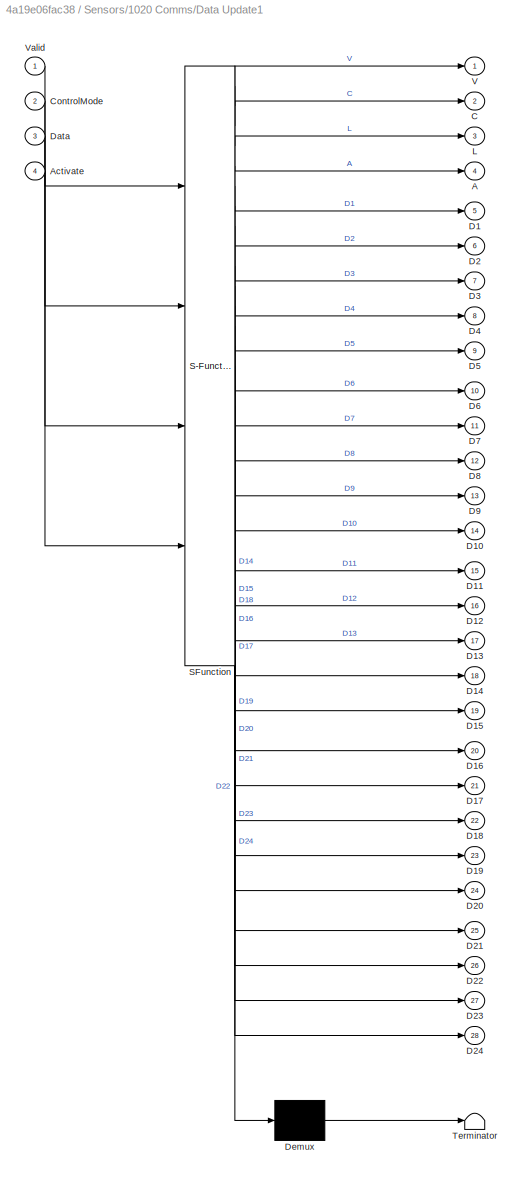
BLOCK [SubSystem] Sensors/1020 Comms/Data Update1
  Commented = on
  ErrorFcn = Stateflow.Translate.translate
  PermitHierarchicalResolution = ExplicitOnly
  Ports = [4, 28]
  RequestExecContextInheritance = off
  SFBlockType = MATLAB Function
  TreatAsAtomicUnit = on
BLOCK [Demux] Sensors/1020 Comms/Data Update1/ Demux 
  Outputs = 1
  Ports = [1, 1]
BLOCK [S-Function] Sensors/1020 Comms/Data Update1/ SFunction 
  EnableBusSupport = on
  FunctionName = sf_sfun
  PortCounts = [4 29]
  Ports = [4, 29]
  Tag = Stateflow S-Function RoboBoat_SLAM_6_29 44
BLOCK [Terminator] Sensors/1020 Comms/Data Update1/ Terminator 
BLOCK [Outport] Sensors/1020 Comms/Data Update1/A
  IconDisplay = Port number
  Port = 4
BLOCK [Inport] Sensors/1020 Comms/Data Update1/Activate
  IconDisplay = Port number
  Port = 4
BLOCK [Outport] Sensors/1020 Comms/Data Update1/C
  IconDisplay = Port number
  Port = 2
BLOCK [Inport] Sensors/1020 Comms/Data Update1/ControlMode
  IconDisplay = Port number
  Port = 2
BLOCK [Outport] Sensors/1020 Comms/Data Update1/D1
  IconDisplay = Port number
  Port = 5
BLOCK [Outport] Sensors/1020 Comms/Data Update1/D10
  IconDisplay = Port number
  Port = 14
BLOCK [Outport] Sensors/1020 Comms/Data Update1/D11
  IconDisplay = Port number
  Port = 15
BLOCK [Outport] Sensors/1020 Comms/Data Update1/D12
  IconDisplay = Port number
  Port = 16
BLOCK [Outport] Sensors/1020 Comms/Data Update1/D13
  IconDisplay = Port number
  Port = 17
BLOCK [Outport] Sensors/1020 Comms/Data Update1/D14
  IconDisplay = Port number
  Port = 18
BLOCK [Outport] Sensors/1020 Comms/Data Update1/D15
  IconDisplay = Port number
  Port = 19
BLOCK [Outport] Sensors/1020 Comms/Data Update1/D16
  IconDisplay = Port number
  Port = 20
BLOCK [Outport] Sensors/1020 Comms/Data Update1/D17
  IconDisplay = Port number
  Port = 21
BLOCK [Outport] Sensors/1020 Comms/Data Update1/D18
  IconDisplay = Port number
  Port = 22
BLOCK [Outport] Sensors/1020 Comms/Data Update1/D19
  IconDisplay = Port number
  Port = 23
BLOCK [Outport] Sensors/1020 Comms/Data Update1/D2
  IconDisplay = Port number
  Port = 6
BLOCK [Outport] Sensors/1020 Comms/Data Update1/D20
  IconDisplay = Port number
  Port = 24
BLOCK [Outport] Sensors/1020 Comms/Data Update1/D21
  IconDisplay = Port number
  Port = 25
BLOCK [Outport] Sensors/1020 Comms/Data Update1/D22
  IconDisplay = Port number
  Port = 26
BLOCK [Outport] Sensors/1020 Comms/Data Update1/D23
  IconDisplay = Port number
  Port = 27
BLOCK [Outport] Sensors/1020 Comms/Data Update1/D24
  IconDisplay = Port number
  Port = 28
BLOCK [Outport] Sensors/1020 Comms/Data Update1/D3
  IconDisplay = Port number
  Port = 7
BLOCK [Outport] Sensors/1020 Comms/Data Update1/D4
  IconDisplay = Port number
  Port = 8
BLOCK [Outport] Sensors/1020 Comms/Data Update1/D5
  IconDisplay = Port number
  Port = 9
BLOCK [Outport] Sensors/1020 Comms/Data Update1/D6
  IconDisplay = Port number
  Port = 10
BLOCK [Outport] Sensors/1020 Comms/Data Update1/D7
  IconDisplay = Port number
  Port = 11
BLOCK [Outport] Sensors/1020 Comms/Data Update1/D8
  IconDisplay = Port number
  Port = 12
BLOCK [Outport] Sensors/1020 Comms/Data Update1/D9
  IconDisplay = Port number
  Port = 13
BLOCK [Inport] Sensors/1020 Comms/Data Update1/Data
  IconDisplay = Port number
  Port = 3
BLOCK [Outport] Sensors/1020 Comms/Data Update1/L
  IconDisplay = Port number
  Port = 3
BLOCK [Outport] Sensors/1020 Comms/Data Update1/V
  IconDisplay = Port number
BLOCK [Inport] Sensors/1020 Comms/Data Update1/Valid
  IconDisplay = Port number
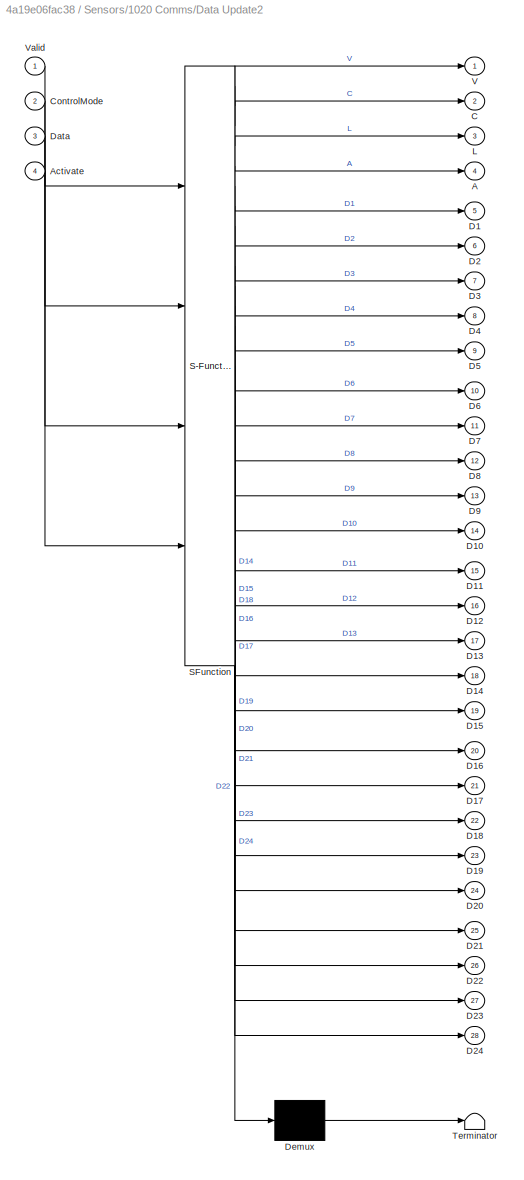
BLOCK [SubSystem] Sensors/1020 Comms/Data Update2
  ErrorFcn = Stateflow.Translate.translate
  PermitHierarchicalResolution = ExplicitOnly
  Ports = [4, 28]
  RequestExecContextInheritance = off
  SFBlockType = MATLAB Function
  TreatAsAtomicUnit = on
BLOCK [Demux] Sensors/1020 Comms/Data Update2/ Demux 
  Outputs = 1
  Ports = [1, 1]
BLOCK [S-Function] Sensors/1020 Comms/Data Update2/ SFunction 
  EnableBusSupport = on
  FunctionName = sf_sfun
  PortCounts = [4 29]
  Ports = [4, 29]
  Tag = Stateflow S-Function RoboBoat_SLAM_6_29 45
BLOCK [Terminator] Sensors/1020 Comms/Data Update2/ Terminator 
BLOCK [Outport] Sensors/1020 Comms/Data Update2/A
  IconDisplay = Port number
  Port = 4
BLOCK [Inport] Sensors/1020 Comms/Data Update2/Activate
  IconDisplay = Port number
  Port = 4
BLOCK [Outport] Sensors/1020 Comms/Data Update2/C
  IconDisplay = Port number
  Port = 2
BLOCK [Inport] Sensors/1020 Comms/Data Update2/ControlMode
  IconDisplay = Port number
  Port = 2
BLOCK [Outport] Sensors/1020 Comms/Data Update2/D1
  IconDisplay = Port number
  Port = 5
BLOCK [Outport] Sensors/1020 Comms/Data Update2/D10
  IconDisplay = Port number
  Port = 14
BLOCK [Outport] Sensors/1020 Comms/Data Update2/D11
  IconDisplay = Port number
  Port = 15
BLOCK [Outport] Sensors/1020 Comms/Data Update2/D12
  IconDisplay = Port number
  Port = 16
BLOCK [Outport] Sensors/1020 Comms/Data Update2/D13
  IconDisplay = Port number
  Port = 17
BLOCK [Outport] Sensors/1020 Comms/Data Update2/D14
  IconDisplay = Port number
  Port = 18
BLOCK [Outport] Sensors/1020 Comms/Data Update2/D15
  IconDisplay = Port number
  Port = 19
BLOCK [Outport] Sensors/1020 Comms/Data Update2/D16
  IconDisplay = Port number
  Port = 20
BLOCK [Outport] Sensors/1020 Comms/Data Update2/D17
  IconDisplay = Port number
  Port = 21
BLOCK [Outport] Sensors/1020 Comms/Data Update2/D18
  IconDisplay = Port number
  Port = 22
BLOCK [Outport] Sensors/1020 Comms/Data Update2/D19
  IconDisplay = Port number
  Port = 23
BLOCK [Outport] Sensors/1020 Comms/Data Update2/D2
  IconDisplay = Port number
  Port = 6
BLOCK [Outport] Sensors/1020 Comms/Data Update2/D20
  IconDisplay = Port number
  Port = 24
BLOCK [Outport] Sensors/1020 Comms/Data Update2/D21
  IconDisplay = Port number
  Port = 25
BLOCK [Outport] Sensors/1020 Comms/Data Update2/D22
  IconDisplay = Port number
  Port = 26
BLOCK [Outport] Sensors/1020 Comms/Data Update2/D23
  IconDisplay = Port number
  Port = 27
BLOCK [Outport] Sensors/1020 Comms/Data Update2/D24
  IconDisplay = Port number
  Port = 28
BLOCK [Outport] Sensors/1020 Comms/Data Update2/D3
  IconDisplay = Port number
  Port = 7
BLOCK [Outport] Sensors/1020 Comms/Data Update2/D4
  IconDisplay = Port number
  Port = 8
BLOCK [Outport] Sensors/1020 Comms/Data Update2/D5
  IconDisplay = Port number
  Port = 9
BLOCK [Outport] Sensors/1020 Comms/Data Update2/D6
  IconDisplay = Port number
  Port = 10
BLOCK [Outport] Sensors/1020 Comms/Data Update2/D7
  IconDisplay = Port number
  Port = 11
BLOCK [Outport] Sensors/1020 Comms/Data Update2/D8
  IconDisplay = Port number
  Port = 12
BLOCK [Outport] Sensors/1020 Comms/Data Update2/D9
  IconDisplay = Port number
  Port = 13
BLOCK [Inport] Sensors/1020 Comms/Data Update2/Data
  IconDisplay = Port number
  Port = 3
BLOCK [Outport] Sensors/1020 Comms/Data Update2/L
  IconDisplay = Port number
  Port = 3
BLOCK [Outport] Sensors/1020 Comms/Data Update2/V
  IconDisplay = Port number
BLOCK [Inport] Sensors/1020 Comms/Data Update2/Valid
  IconDisplay = Port number
BLOCK [DiscreteIntegrator] Sensors/1020 Comms/Discrete-Time Integrator
  ICPrevOutput = DiscIntNeverNeededParam
  ICPrevScaledInput = DiscIntNeverNeededParam
  Ports = [1, 1]
  SampleTime = -1
BLOCK [Reference] Sensors/1020 Comms/FIFO ASCII read 1  REF=xpcseriallib/FIFO ASCII read 
  Ports = [1, 1]
  SourceBlock = xpcseriallib/FIFO ASCII read
  SourceType = Asynchronous FIFO Block: reader
  enable = off
  header = {'Deploy:'}
  hold = Zero output if no new data
  maxsize = 1024
  outputtype = 8 bit uint null terminated
  sampletime = -1
  term = [13 10]
BLOCK [Reference] Sensors/1020 Comms/FIFO ASCII read 2  REF=xpcseriallib/FIFO ASCII read 
  Ports = [1, 1]
  SourceBlock = xpcseriallib/FIFO ASCII read
  SourceType = Asynchronous FIFO Block: reader
  enable = off
  header = {'Deploy:'}
  hold = Zero output if no new data
  maxsize = 1024
  outputtype = 8 bit uint null terminated
  sampletime = -1
  term = [13 10]
BLOCK [Reference] Sensors/1020 Comms/FIFO ASCII read 3  REF=xpcseriallib/FIFO ASCII read 
  Ports = [1, 1]
  SourceBlock = xpcseriallib/FIFO ASCII read
  SourceType = Asynchronous FIFO Block: reader
  enable = off
  header = {'Deploy:'}
  hold = Zero output if no new data
  maxsize = 1024
  outputtype = 8 bit uint null terminated
  sampletime = -1
  term = [13 10]
BLOCK [Reference] Sensors/1020 Comms/FIFO ASCII read 4  REF=xpcseriallib/FIFO ASCII read 
  Ports = [1, 1]
  SourceBlock = xpcseriallib/FIFO ASCII read
  SourceType = Asynchronous FIFO Block: reader
  enable = off
  header = {'Deploy:'}
  hold = Zero output if no new data
  maxsize = 1024
  outputtype = 8 bit uint null terminated
  sampletime = -1
  term = [13 10]
BLOCK [Reference] Sensors/1020 Comms/FIFO ASCII read 5  REF=xpcseriallib/FIFO ASCII read 
  Ports = [1, 1]
  SourceBlock = xpcseriallib/FIFO ASCII read
  SourceType = Asynchronous FIFO Block: reader
  enable = off
  header = {'Deploy:'}
  hold = Zero output if no new data
  maxsize = 1024
  outputtype = 8 bit uint null terminated
  sampletime = -1
  term = [13 10]
BLOCK [Reference] Sensors/1020 Comms/FIFO ASCII read 6  REF=xpcseriallib/FIFO ASCII read 
  Ports = [1, 1]
  SourceBlock = xpcseriallib/FIFO ASCII read
  SourceType = Asynchronous FIFO Block: reader
  enable = off
  header = {'Deploy:'}
  hold = Zero output if no new data
  maxsize = 1024
  outputtype = 8 bit uint null terminated
  sampletime = -1
  term = [13 10]
BLOCK [Reference] Sensors/1020 Comms/FIFO ASCII read 7  REF=xpcseriallib/FIFO ASCII read 
  Ports = [1, 1]
  SourceBlock = xpcseriallib/FIFO ASCII read
  SourceType = Asynchronous FIFO Block: reader
  enable = off
  header = {'Deploy:'}
  hold = Zero output if no new data
  maxsize = 1024
  outputtype = 8 bit uint null terminated
  sampletime = -1
  term = [13 10]
BLOCK [Reference] Sensors/1020 Comms/FIFO ASCII read 8  REF=xpcseriallib/FIFO ASCII read 
  Ports = [1, 1]
  SourceBlock = xpcseriallib/FIFO ASCII read
  SourceType = Asynchronous FIFO Block: reader
  enable = off
  header = {'Deploy:'}
  hold = Zero output if no new data
  maxsize = 1024
  outputtype = 8 bit uint null terminated
  sampletime = -1
  term = [13 10]
BLOCK [SubSystem] Sensors/1020 Comms/Fake LCM
  Commented = on
  Ports = [0, 1]
  RequestExecContextInheritance = off
BLOCK [BusCreator] Sensors/1020 Comms/Fake LCM/Bus Creator1
  DisplayOption = bar
  Inputs = 3
  Ports = [3, 1]
BLOCK [BusCreator] Sensors/1020 Comms/Fake LCM/Bus Creator2
  DisplayOption = bar
  Inputs = 2
  Ports = [2, 1]
BLOCK [BusCreator] Sensors/1020 Comms/Fake LCM/Bus Creator3
  DisplayOption = bar
  Inputs = 3
  Ports = [3, 1]
BLOCK [BusCreator] Sensors/1020 Comms/Fake LCM/Bus Creator4
  DisplayOption = bar
  Inputs = 8
  Ports = [8, 1]
BLOCK [BusCreator] Sensors/1020 Comms/Fake LCM/Bus Creator5
  DisplayOption = bar
  Inputs = 2
  Ports = [2, 1]
BLOCK [BusCreator] Sensors/1020 Comms/Fake LCM/Bus Creator6
  DisplayOption = bar
  Inputs = 2
  Ports = [2, 1]
BLOCK [Constant] Sensors/1020 Comms/Fake LCM/Constant
  Value = 0
BLOCK [Constant] Sensors/1020 Comms/Fake LCM/Constant1
  Value = 0
BLOCK [Constant] Sensors/1020 Comms/Fake LCM/Constant10
  Value = 0
BLOCK [Constant] Sensors/1020 Comms/Fake LCM/Constant11
  Value = 0
BLOCK [Constant] Sensors/1020 Comms/Fake LCM/Constant12
  Value = 0
BLOCK [Constant] Sensors/1020 Comms/Fake LCM/Constant13
  Value = 0
BLOCK [Constant] Sensors/1020 Comms/Fake LCM/Constant14
  Value = 3
BLOCK [Constant] Sensors/1020 Comms/Fake LCM/Constant2
  Value = 0
BLOCK [Constant] Sensors/1020 Comms/Fake LCM/Constant3
  Value = 0
BLOCK [Constant] Sensors/1020 Comms/Fake LCM/Constant4
  Value = 0
BLOCK [Constant] Sensors/1020 Comms/Fake LCM/Constant5
  Value = 0
BLOCK [Constant] Sensors/1020 Comms/Fake LCM/Constant6
  Value = 0
BLOCK [Constant] Sensors/1020 Comms/Fake LCM/Constant7
  Value = 0
BLOCK [Constant] Sensors/1020 Comms/Fake LCM/Constant8
  Value = 0
BLOCK [Constant] Sensors/1020 Comms/Fake LCM/Constant9
  Value = 0
BLOCK [DataTypeConversion] Sensors/1020 Comms/Fake LCM/Data Type Conversion
  OutDataTypeStr = double
  RndMeth = Floor
  SaturateOnIntegerOverflow = off
BLOCK [Outport] Sensors/1020 Comms/Fake LCM/LCM Output
  IconDisplay = Port number
BLOCK [Ground] Sensors/1020 Comms/Ground1
BLOCK [Ground] Sensors/1020 Comms/Ground2
BLOCK [Ground] Sensors/1020 Comms/Ground4
BLOCK [Reference] Sensors/1020 Comms/LCM Complete Encode  REF=xpcseriallib/ASCII Encode 
  Commented = on
  Ports = [28, 1]
  SourceBlock = xpcseriallib/ASCII Encode
  SourceType = ASCII Encode
  format = {"Valid":%d, "Mode":%d, "Length":%d, "Activate":%d, "Waypoints":[%f, %f, %f, %f, %f, %f, %f, %f, %f, %f, %f, %f, %f, %f, %f, %f, %f, %f, %f, %f, %f, %f, %f, %f]} \r\n
  maxlength = 1000
  nvars = 28
  vartypes = { 'double' }
BLOCK [SubSystem] Sensors/1020 Comms/LIDAR Panda
  Ports = [1, 1]
  RequestExecContextInheritance = off
BLOCK [Reference] Sensors/1020 Comms/LIDAR Panda/ASCII Decode 2  REF=xpcseriallib/ASCII Decode 
  Ports = [1, 36]
  SourceBlock = xpcseriallib/ASCII Decode
  SourceType = ASCII Decode
  format = A:%d B:%d C:%d E:%d F:%d G:%d H:%d I:%d J:%d K:%d L:%d M:%d N:%d O:%d P:%d Q:%d R:%d S:%d T:%d U:%d V:%d W:%d X:%d C1:%d C2:%d C3:%d C4:%d P1:%f P2:%f P3:%f P4:%f I1:%d I2:%d I3:%d I4:%d \r\n
  nvars = 36
  vartypes = {}
BLOCK [BusCreator] Sensors/1020 Comms/LIDAR Panda/Bus Creator1
  DisplayOption = bar
  Inputs = 2
  Ports = [2, 1]
BLOCK [BusCreator] Sensors/1020 Comms/LIDAR Panda/Bus Creator2
  DisplayOption = bar
  Inputs = 3
  Ports = [3, 1]
BLOCK [BusCreator] Sensors/1020 Comms/LIDAR Panda/Bus Creator3
  DisplayOption = bar
  Inputs = 2
  Ports = [2, 1]
BLOCK [DataTypeConversion] Sensors/1020 Comms/LIDAR Panda/Data Type Conversion
  OutDataTypeStr = double
  RndMeth = Floor
  SaturateOnIntegerOverflow = off
BLOCK [DataTypeConversion] Sensors/1020 Comms/LIDAR Panda/Data Type Conversion1
  OutDataTypeStr = double
  RndMeth = Floor
  SaturateOnIntegerOverflow = off
BLOCK [DataTypeConversion] Sensors/1020 Comms/LIDAR Panda/Data Type Conversion2
  OutDataTypeStr = double
  RndMeth = Floor
  SaturateOnIntegerOverflow = off
BLOCK [DataTypeConversion] Sensors/1020 Comms/LIDAR Panda/Data Type Conversion3
  OutDataTypeStr = double
  RndMeth = Floor
  SaturateOnIntegerOverflow = off
BLOCK [Reference] Sensors/1020 Comms/LIDAR Panda/FIFO ASCII read   REF=xpcseriallib/FIFO ASCII read 
  Ports = [1, 1]
  SourceBlock = xpcseriallib/FIFO ASCII read
  SourceType = Asynchronous FIFO Block: reader
  enable = off
  header = {'A:'}
  hold = Zero output if no new data
  maxsize = 1024
  outputtype = 8 bit uint null terminated
  sampletime = -1
  term = [13 10]
BLOCK [Inport] Sensors/1020 Comms/LIDAR Panda/LIDAR Panda In
  IconDisplay = Port number
BLOCK [Outport] Sensors/1020 Comms/LIDAR Panda/LIDAR Panda Out
  IconDisplay = Port number
BLOCK [Mux] Sensors/1020 Comms/LIDAR Panda/Mux
  DisplayOption = bar
  Inputs = 12
  Ports = [12, 1]
BLOCK [Mux] Sensors/1020 Comms/LIDAR Panda/Mux1
  DisplayOption = bar
  Ports = [4, 1]
BLOCK [Mux] Sensors/1020 Comms/LIDAR Panda/Mux2
  DisplayOption = bar
  Inputs = 12
  Ports = [12, 1]
BLOCK [Mux] Sensors/1020 Comms/LIDAR Panda/Mux3
  DisplayOption = bar
  Ports = [4, 1]
BLOCK [Mux] Sensors/1020 Comms/LIDAR Panda/Mux4
  DisplayOption = bar
  Ports = [4, 1]
BLOCK [SubSystem] Sensors/1020 Comms/MATLAB Function1
  Commented = on
  ErrorFcn = Stateflow.Translate.translate
  PermitHierarchicalResolution = ExplicitOnly
  Ports = [6, 1]
  RequestExecContextInheritance = off
  SFBlockType = MATLAB Function
  TreatAsAtomicUnit = on
BLOCK [Demux] Sensors/1020 Comms/MATLAB Function1/ Demux 
  Outputs = 1
  Ports = [1, 1]
BLOCK [S-Function] Sensors/1020 Comms/MATLAB Function1/ SFunction 
  EnableBusSupport = on
  FunctionName = sf_sfun
  PortCounts = [6 2]
  Ports = [6, 2]
  Tag = Stateflow S-Function RoboBoat_SLAM_6_29 46
BLOCK [Terminator] Sensors/1020 Comms/MATLAB Function1/ Terminator 
BLOCK [Inport] Sensors/1020 Comms/MATLAB Function1/Color
  IconDisplay = Port number
  Port = 5
BLOCK [Inport] Sensors/1020 Comms/MATLAB Function1/Depth
  IconDisplay = Port number
  Port = 6
BLOCK [Inport] Sensors/1020 Comms/MATLAB Function1/Lat
  IconDisplay = Port number
  Port = 3
BLOCK [Inport] Sensors/1020 Comms/MATLAB Function1/Long
  IconDisplay = Port number
  Port = 4
BLOCK [Inport] Sensors/1020 Comms/MATLAB Function1/Time
  IconDisplay = Port number
  Port = 2
BLOCK [Inport] Sensors/1020 Comms/MATLAB Function1/Valid
  IconDisplay = Port number
BLOCK [Outport] Sensors/1020 Comms/MATLAB Function1/asciiSEA
  IconDisplay = Port number
BLOCK [SubSystem] Sensors/1020 Comms/MATLAB Function2
  Commented = on
  ErrorFcn = Stateflow.Translate.translate
  PermitHierarchicalResolution = ExplicitOnly
  Ports = [2, 1]
  RequestExecContextInheritance = off
  SFBlockType = MATLAB Function
  TreatAsAtomicUnit = on
BLOCK [Demux] Sensors/1020 Comms/MATLAB Function2/ Demux 
  Outputs = 1
  Ports = [1, 1]
BLOCK [S-Function] Sensors/1020 Comms/MATLAB Function2/ SFunction 
  EnableBusSupport = on
  FunctionName = sf_sfun
  PortCounts = [2 2]
  Ports = [2, 2]
  Tag = Stateflow S-Function RoboBoat_SLAM_6_29 47
BLOCK [Terminator] Sensors/1020 Comms/MATLAB Function2/ Terminator 
BLOCK [Inport] Sensors/1020 Comms/MATLAB Function2/Sequence
  IconDisplay = Port number
  Port = 2
BLOCK [Inport] Sensors/1020 Comms/MATLAB Function2/Time
  IconDisplay = Port number
BLOCK [Outport] Sensors/1020 Comms/MATLAB Function2/asciiLIT
  IconDisplay = Port number
BLOCK [SubSystem] Sensors/1020 Comms/MATLAB Function3
  ErrorFcn = Stateflow.Translate.translate
  PermitHierarchicalResolution = ExplicitOnly
  Ports = [5, 1]
  RequestExecContextInheritance = off
  SFBlockType = MATLAB Function
  TreatAsAtomicUnit = on
BLOCK [Demux] Sensors/1020 Comms/MATLAB Function3/ Demux 
  Outputs = 1
  Ports = [1, 1]
BLOCK [S-Function] Sensors/1020 Comms/MATLAB Function3/ SFunction 
  EnableBusSupport = on
  FunctionName = sf_sfun
  PortCounts = [5 2]
  Ports = [5, 2]
  Tag = Stateflow S-Function RoboBoat_SLAM_6_29 48
BLOCK [Terminator] Sensors/1020 Comms/MATLAB Function3/ Terminator 
BLOCK [Inport] Sensors/1020 Comms/MATLAB Function3/Lat
  IconDisplay = Port number
  Port = 2
BLOCK [Inport] Sensors/1020 Comms/MATLAB Function3/Long
  IconDisplay = Port number
  Port = 3
BLOCK [Inport] Sensors/1020 Comms/MATLAB Function3/Mode
  IconDisplay = Port number
  Port = 4
BLOCK [Inport] Sensors/1020 Comms/MATLAB Function3/Task
  IconDisplay = Port number
  Port = 5
BLOCK [Inport] Sensors/1020 Comms/MATLAB Function3/Time
  IconDisplay = Port number
BLOCK [Outport] Sensors/1020 Comms/MATLAB Function3/asciiHRT
  IconDisplay = Port number
BLOCK [RateTransition] Sensors/1020 Comms/Rate Transition
  Deterministic = off
  OutPortSampleTime = 1
BLOCK [Outport] Sensors/1020 Comms/Serial In
  IconDisplay = Port number
BLOCK [Inport] Sensors/1020 Comms/Serial Out
  IconDisplay = Port number
BLOCK [SubSystem] Sensors/1020 Comms/Subsystem
  Commented = on
  Ports = [0, 1]
  RequestExecContextInheritance = off
BLOCK [BusCreator] Sensors/1020 Comms/Subsystem/Bus Creator
  DisplayOption = bar
  Inputs = 3
  Ports = [3, 1]
BLOCK [BusCreator] Sensors/1020 Comms/Subsystem/Bus Creator1
  DisplayOption = bar
  Inputs = 2
  Ports = [2, 1]
BLOCK [BusCreator] Sensors/1020 Comms/Subsystem/Bus Creator2
  DisplayOption = bar
  Inputs = 2
  Ports = [2, 1]
BLOCK [Constant] Sensors/1020 Comms/Subsystem/Constant
  Value = zeros(12,1)
BLOCK [Constant] Sensors/1020 Comms/Subsystem/Constant1
  Value = zeros(12,1)
BLOCK [Constant] Sensors/1020 Comms/Subsystem/Constant2
  Value = zeros(4,1)
BLOCK [Constant] Sensors/1020 Comms/Subsystem/Constant3
  Value = zeros(4,1)
BLOCK [Constant] Sensors/1020 Comms/Subsystem/Constant4
  Value = zeros(4,1)
BLOCK [Outport] Sensors/1020 Comms/Subsystem/Fake Panda
  IconDisplay = Port number
BLOCK [Sum] Sensors/1020 Comms/Sum
  IconShape = round
  InputSameDT = off
  Inputs = |++
  OutDataTypeStr = Inherit: Inherit via internal rule
  Ports = [2, 1]
  SaturateOnIntegerOverflow = off
BLOCK [Reference] Sensors/1020 Comms/TPMC465  REF=speedgoatlib/IO504/TPMC465  (lib defined in mdl_2b10c7445f81, mdl_649b3eec89a6, +4 more)
  Ports = [8, 8]
  SourceBlock = speedgoatlib/IO504/TPMC465
  SourceType = sendreceive_IO504
  baud1 = 115200
  baud2 = 115200
  baud3 = 115200
  baud4 = 115200
  baud5 = 115200
  baud6 = 115200
  baud7 = 115200
  baud8 = 115200
  bauddivisor1 = 1
  bauddivisor2 = 1
  bauddivisor3 = 1
  bauddivisor4 = 1
  bauddivisor5 = 1
  bauddivisor6 = 1
  bauddivisor7 = 1
  bauddivisor8 = 1
  group = Basic Setup
  hwmode1 = none
  hwmode2 = none
  hwmode3 = none
  hwmode4 = none
  hwmode5 = none
  hwmode6 = none
  hwmode7 = none
  hwmode8 = none
  irqnum = 9
  ndata1 = 7
  ndata2 = 7
  ndata3 = 7
  ndata4 = 8
  ndata5 = 8
  ndata6 = 8
  ndata7 = 8
  ndata8 = 8
  nstop1 = 1
  nstop2 = 1
  nstop3 = 1
  nstop4 = 1
  nstop5 = 1
  nstop6 = 1
  nstop7 = 1
  nstop8 = 1
  parity1 = Even
  parity2 = Even
  parity3 = Even
  parity4 = None
  parity5 = None
  parity6 = None
  parity7 = None
  parity8 = None
  port = 2
  prescale1 = off
  prescale2 = off
  prescale3 = off
  prescale4 = off
  prescale5 = off
  prescale6 = off
  prescale7 = off
  prescale8 = off
  rcvfifosize1 = 1024
  rcvfifosize2 = 1024
  rcvfifosize3 = 1024
  rcvfifosize4 = 1024
  rcvfifosize5 = 1024
  rcvfifosize6 = 1024
  rcvfifosize7 = 1024
  rcvfifosize8 = 1024
  rlevel1 = half full (32)
  rlevel2 = half full (32)
  rlevel3 = half full (32)
  rlevel4 = half full (32)
  rlevel5 = 1
  rlevel6 = 1
  rlevel7 = 1
  rlevel8 = 1
  rs485auto1 = off
  rs485auto2 = off
  rs485auto3 = off
  rs485auto4 = off
  rs485auto5 = off
  rs485auto6 = off
  rs485auto7 = off
  rs485auto8 = off
  rs485delay1 = 0
  rs485delay2 = 0
  rs485delay3 = 0
  rs485delay4 = 0
  rs485delay5 = 0
  rs485delay6 = 0
  rs485delay7 = 0
  rs485delay8 = 0
  sampling1 = 16x (standard)
  sampling2 = 16x (standard)
  sampling3 = 16x (standard)
  sampling4 = 16x (standard)
  sampling5 = 16x (standard)
  sampling6 = 16x (standard)
  sampling7 = 16x (standard)
  sampling8 = 16x (standard)
  slot = -1
  standard1 = on
  standard2 = on
  standard3 = on
  standard4 = on
  standard5 = on
  standard6 = on
  standard7 = on
  standard8 = on
  swmode1 = none
  swmode2 = none
  swmode3 = none
  swmode4 = none
  swmode5 = none
  swmode6 = none
  swmode7 = none
  swmode8 = none
  transceiver1 = RS232 (max 921.6kb/s)
  transceiver2 = RS232 (max 921.6kb/s)
  transceiver3 = RS232 (max 921.6kb/s)
  transceiver4 = RS232 (max 921.6kb/s)
  transceiver5 = RS232 (max 921.6kb/s)
  transceiver6 = RS232 (max 921.6kb/s)
  transceiver7 = RS232 (max 921.6kb/s)
  transceiver8 = RS232 (max 921.6kb/s)
  xmtdatatype1 = 8 bit uint null terminated
  xmtdatatype2 = 8 bit uint null terminated
  xmtdatatype3 = 8 bit uint null terminated
  xmtdatatype4 = 8 bit uint null terminated
  xmtdatatype5 = 8 bit uint null terminated
  xmtdatatype6 = 8 bit uint null terminated
  xmtdatatype7 = 8 bit uint null terminated
  xmtdatatype8 = 8 bit uint null terminated
  xmtfifosize1 = 1024
  xmtfifosize2 = 1024
  xmtfifosize3 = 1024
  xmtfifosize4 = 1024
  xmtfifosize5 = 1024
  xmtfifosize6 = 1024
  xmtfifosize7 = 1024
  xmtfifosize8 = 1024
  xoffchar1 = 19
  xoffchar2 = 19
  xoffchar3 = 19
  xoffchar4 = 19
  xoffchar5 = 19
  xoffchar6 = 19
  xoffchar7 = 19
  xoffchar8 = 19
  xonchar1 = 17
  xonchar2 = 17
  xonchar3 = 17
  xonchar4 = 17
  xonchar5 = 17
  xonchar6 = 17
  xonchar7 = 17
  xonchar8 = 17
BLOCK [Terminator] Sensors/1020 Comms/Terminator1
BLOCK [Terminator] Sensors/1020 Comms/Terminator10
BLOCK [Terminator] Sensors/1020 Comms/Terminator2
BLOCK [Terminator] Sensors/1020 Comms/Terminator3
BLOCK [Terminator] Sensors/1020 Comms/Terminator4
BLOCK [Terminator] Sensors/1020 Comms/Terminator5
BLOCK [Terminator] Sensors/1020 Comms/Terminator6
BLOCK [Terminator] Sensors/1020 Comms/Terminator7
BLOCK [Terminator] Sensors/1020 Comms/Terminator8
BLOCK [Terminator] Sensors/1020 Comms/Terminator9
BLOCK [SubSystem] Sensors/1020 Comms/data log
  Ports = [1]
  RequestExecContextInheritance = off
BLOCK [BusSelector] Sensors/1020 Comms/data log/Bus Selector3
  OutputSignals = Navigation Message,Lidar Data Input,Acoustic Message
  Ports = [1, 3]
BLOCK [BusToVector] Sensors/1020 Comms/data log/Bus to Vector
BLOCK [BusToVector] Sensors/1020 Comms/data log/Bus to Vector1
BLOCK [BusToVector] Sensors/1020 Comms/data log/Bus to Vector2
BLOCK [DataStoreRead] Sensors/1020 Comms/data log/Read
  DataStoreName = PingPose
  Ports = [0, 1]
BLOCK [Reference] Sensors/1020 Comms/data log/Scope 1  REF=slrtlib/Displays and
Logging/Scope 
  Ports = [1]
  SourceBlock = slrtlib/Displays and\nLogging/Scope
  SourceType = xpcscopeblock
  autorestart = on
  autostart = on
  dynamicfilemode = on
  filename = LM1_<%%%>.dat
  formatstr = '%15.6f'
  grid = on
  interleave = 1
  maxwritefilesize = 512*1024^2
  mode = Lazy
  noprepostsamples = 0
  nosamples = 28800
  scopeno = 3
  scopetype = File
  triggerlevel = 0.0
  triggermode = FreeRun
  triggersample = 0
  triggerscope = 1
  triggersignal = 1
  triggerslope = Either
  trigsignalfromport = off
  viewmode = Graphical redraw
  writesize = 5120
  ylimits = [0,0]
BLOCK [Reference] Sensors/1020 Comms/data log/Scope 2  REF=slrtlib/Displays and
Logging/Scope 
  Ports = [1]
  SourceBlock = slrtlib/Displays and\nLogging/Scope
  SourceType = xpcscopeblock
  autorestart = on
  autostart = on
  dynamicfilemode = on
  filename = NAV1_<%%%>.dat
  formatstr = '%15.6f'
  grid = on
  interleave = 1
  maxwritefilesize = 512*1024^2
  mode = Lazy
  noprepostsamples = 0
  nosamples = 28800
  scopeno = 1
  scopetype = File
  triggerlevel = 0.0
  triggermode = FreeRun
  triggersample = 0
  triggerscope = 1
  triggersignal = 1
  triggerslope = Either
  trigsignalfromport = off
  viewmode = Graphical redraw
  writesize = 5120
  ylimits = [0,0]
BLOCK [Reference] Sensors/1020 Comms/data log/Scope 3  REF=slrtlib/Displays and
Logging/Scope 
  Ports = [1]
  SourceBlock = slrtlib/Displays and\nLogging/Scope
  SourceType = xpcscopeblock
  autorestart = on
  autostart = on
  dynamicfilemode = on
  filename = ACO1_<%%%>.dat
  formatstr = '%15.6f'
  grid = on
  interleave = 1
  maxwritefilesize = 512*1024^2
  mode = Lazy
  noprepostsamples = 0
  nosamples = 28800
  scopeno = 2
  scopetype = File
  triggerlevel = 0.0
  triggermode = FreeRun
  triggersample = 0
  triggerscope = 1
  triggersignal = 1
  triggerslope = Either
  trigsignalfromport = off
  viewmode = Graphical redraw
  writesize = 5120
  ylimits = [0,0]
BLOCK [Reference] Sensors/1020 Comms/data log/Scope 4  REF=slrtlib/Displays and
Logging/Scope 
  Ports = [1]
  SourceBlock = slrtlib/Displays and\nLogging/Scope
  SourceType = xpcscopeblock
  autorestart = on
  autostart = on
  dynamicfilemode = on
  filename = pPos_<%%%>.dat
  formatstr = '%15.6f'
  grid = on
  interleave = 1
  maxwritefilesize = 512*1024^2
  mode = Lazy
  noprepostsamples = 0
  nosamples = 28800
  scopeno = 4
  scopetype = File
  triggerlevel = 0.0
  triggermode = FreeRun
  triggersample = 0
  triggerscope = 1
  triggersignal = 1
  triggerslope = Either
  trigsignalfromport = off
  viewmode = Graphical redraw
  writesize = 5120
  ylimits = [0,0]
BLOCK [Inport] Sensors/1020 Comms/data log/Sensors signal
  IconDisplay = Port number
BLOCK [SubSystem] Sensors/Baseboard Serial
  Ports = [0, 1]
  RequestExecContextInheritance = off
BLOCK [Reference] Sensors/Baseboard Serial/ASCII Encode 1  REF=xpcseriallib/ASCII Encode 
  Ports = [0, 1]
  SourceBlock = xpcseriallib/ASCII Encode
  SourceType = ASCII Encode
  format = SGB \r\n
  maxlength = 128
  nvars = 0
  vartypes = { 'double' }
BLOCK [Reference] Sensors/Baseboard Serial/ASCII Encode 2  REF=xpcseriallib/ASCII Encode 
  Ports = [1, 1]
  SourceBlock = xpcseriallib/ASCII Encode
  SourceType = ASCII Encode
  format = SGTask:%d \r\n
  maxlength = 128
  nvars = 1
  vartypes = { 'double' }
BLOCK [Reference] Sensors/Baseboard Serial/Baseboard Serial F1  REF=xpcseriallib/Mainboard/Baseboard
Serial F
  Ports = [2, 2]
  SourceBlock = xpcseriallib/Mainboard/Baseboard\nSerial F
  SourceType = Baseboard RS232 Send Receive
  automode1 = on
  automode2 = on
  baud1 = 115200
  baud2 = 115200
  config = Com2/Com4
  fifomode1 = 64 deep
  fifomode2 = 64 deep
  group = Basic Setup
  irqnum = 4
  ndata1 = 7
  ndata2 = 7
  nstop1 = 1
  nstop2 = 1
  parity1 = Even
  parity2 = Even
  port = 1
  rcvfifosize1 = 1024
  rcvfifosize2 = 1024
  rlevel1 = 1
  rlevel2 = 1
  saddr1 = 0x3f8
  saddr2 = 0x3e8
  xmtdatatype1 = 8 bit uint null terminated
  xmtdatatype2 = 8 bit uint null terminated
  xmtfifosize1 = 1024
  xmtfifosize2 = 1024
BLOCK [BusCreator] Sensors/Baseboard Serial/Bus Creator
  DisplayOption = bar
  Inputs = 2
  Ports = [2, 1]
BLOCK [Constant] Sensors/Baseboard Serial/Constant
BLOCK [Ground] Sensors/Baseboard Serial/Ground1
BLOCK [Ground] Sensors/Baseboard Serial/Ground2
BLOCK [SubSystem] Sensors/Baseboard Serial/IMU Pi1
  Ports = [1, 1]
  RequestExecContextInheritance = off
BLOCK [Reference] Sensors/Baseboard Serial/IMU Pi1/ASCII Decode 6  REF=xpcseriallib/ASCII Decode 
  Ports = [1, 16]
  SourceBlock = xpcseriallib/ASCII Decode
  SourceType = ASCII Decode
  format = AccX:%f AccY:%f AccZ:%f GyrX:%f GyrY:%f GyrZ:%f Roll:%f Pitch:%f Yaw:%f Lat:%f Long:%f Alt:%f VelX:%f VelY:%f VelZ:%f Temp:%f \r\n
  nvars = 16
  vartypes = {}
BLOCK [SubSystem] Sensors/Baseboard Serial/IMU Pi1/Body Fixed Velocities
  ErrorFcn = Stateflow.Translate.translate
  PermitHierarchicalResolution = ExplicitOnly
  Ports = [3, 2]
  RequestExecContextInheritance = off
  SFBlockType = MATLAB Function
  TreatAsAtomicUnit = on
BLOCK [Demux] Sensors/Baseboard Serial/IMU Pi1/Body Fixed Velocities/ Demux 
  Outputs = 1
  Ports = [1, 1]
BLOCK [S-Function] Sensors/Baseboard Serial/IMU Pi1/Body Fixed Velocities/ SFunction 
  EnableBusSupport = on
  FunctionName = sf_sfun
  PortCounts = [3 3]
  Ports = [3, 3]
  Tag = Stateflow S-Function RoboBoat_SLAM_6_29 2
BLOCK [Terminator] Sensors/Baseboard Serial/IMU Pi1/Body Fixed Velocities/ Terminator 
BLOCK [Inport] Sensors/Baseboard Serial/IMU Pi1/Body Fixed Velocities/VelX
  IconDisplay = Port number
BLOCK [Inport] Sensors/Baseboard Serial/IMU Pi1/Body Fixed Velocities/VelY
  IconDisplay = Port number
  Port = 2
BLOCK [Inport] Sensors/Baseboard Serial/IMU Pi1/Body Fixed Velocities/Yaw
  IconDisplay = Port number
  Port = 3
BLOCK [Outport] Sensors/Baseboard Serial/IMU Pi1/Body Fixed Velocities/u
  IconDisplay = Port number
BLOCK [Outport] Sensors/Baseboard Serial/IMU Pi1/Body Fixed Velocities/v
  IconDisplay = Port number
  Port = 2
BLOCK [BusCreator] Sensors/Baseboard Serial/IMU Pi1/Bus Creator1
  DisplayOption = bar
  Inputs = 5
  Ports = [5, 1]
BLOCK [BusCreator] Sensors/Baseboard Serial/IMU Pi1/Bus Creator2
  DisplayOption = bar
  Inputs = 5
  Ports = [5, 1]
BLOCK [BusCreator] Sensors/Baseboard Serial/IMU Pi1/Bus Creator3
  DisplayOption = bar
  Inputs = 3
  Ports = [3, 1]
BLOCK [BusCreator] Sensors/Baseboard Serial/IMU Pi1/Bus Creator4
  DisplayOption = bar
  Inputs = 6
  Ports = [6, 1]
BLOCK [BusCreator] Sensors/Baseboard Serial/IMU Pi1/Bus Creator5
  DisplayOption = bar
  Inputs = 3
  Ports = [3, 1]
BLOCK [BusCreator] Sensors/Baseboard Serial/IMU Pi1/Bus Creator6
  DisplayOption = bar
  Inputs = 3
  Ports = [3, 1]
BLOCK [DataStoreRead] Sensors/Baseboard Serial/IMU Pi1/Data Store Read2
  DataStoreName = NED_origin
  Ports = [0, 1]
BLOCK [Demux] Sensors/Baseboard Serial/IMU Pi1/Demux
  DisplayOption = bar
  Outputs = 2
  Ports = [1, 2]
BLOCK [Reference] Sensors/Baseboard Serial/IMU Pi1/FIFO ASCII read 1  REF=xpcseriallib/FIFO ASCII read 
  Ports = [1, 1]
  SourceBlock = xpcseriallib/FIFO ASCII read
  SourceType = Asynchronous FIFO Block: reader
  enable = off
  header = {'AccX:'}
  hold = Zero output if no new data
  maxsize = 1024
  outputtype = 8 bit uint null terminated
  sampletime = -1
  term = [13 10]
BLOCK [Inport] Sensors/Baseboard Serial/IMU Pi1/IMU Pi In
  IconDisplay = Port number
BLOCK [Outport] Sensors/Baseboard Serial/IMU Pi1/IMU Pi out
  IconDisplay = Port number
BLOCK [ModelReference] Sensors/Baseboard Serial/IMU Pi1/Model
  CopyOfModelName = LLA2NEDv6.slx
  DefaultDataLogging = on
  ModelNameDialog = LLA2NEDv6.slx
  ModelReferenceVersion = 1.2057
  Ports = [4, 2]
BLOCK [SubSystem] Sensors/Baseboard Serial/LIDAR Panda
  Ports = [1, 1]
  RequestExecContextInheritance = off
BLOCK [Reference] Sensors/Baseboard Serial/LIDAR Panda/ASCII Decode 2  REF=xpcseriallib/ASCII Decode 
  Ports = [1, 36]
  SourceBlock = xpcseriallib/ASCII Decode
  SourceType = ASCII Decode
  format = A:%d B:%d C:%d D:%d E:%d F:%d G:%d H:%d I:%d J:%d K:%d L:%d M:%d N:%d O:%d P:%d Q:%d R:%d S:%d T:%d U:%d V:%d W:%d X:%d C1:%d C2:%d C3:%d C4:%d P1:%f P2:%f P3:%f P4:%f I1:%d I2:%d I3:%d I4:%d \r\n
  nvars = 36
  vartypes = {}
BLOCK [BusCreator] Sensors/Baseboard Serial/LIDAR Panda/Bus Creator1
  DisplayOption = bar
  Inputs = 2
  Ports = [2, 1]
BLOCK [BusCreator] Sensors/Baseboard Serial/LIDAR Panda/Bus Creator2
  DisplayOption = bar
  Inputs = 3
  Ports = [3, 1]
BLOCK [BusCreator] Sensors/Baseboard Serial/LIDAR Panda/Bus Creator3
  DisplayOption = bar
  Inputs = 2
  Ports = [2, 1]
BLOCK [DataTypeConversion] Sensors/Baseboard Serial/LIDAR Panda/Data Type Conversion
  OutDataTypeStr = double
  RndMeth = Floor
  SaturateOnIntegerOverflow = off
BLOCK [DataTypeConversion] Sensors/Baseboard Serial/LIDAR Panda/Data Type Conversion1
  OutDataTypeStr = double
  RndMeth = Floor
  SaturateOnIntegerOverflow = off
BLOCK [DataTypeConversion] Sensors/Baseboard Serial/LIDAR Panda/Data Type Conversion2
  OutDataTypeStr = double
  RndMeth = Floor
  SaturateOnIntegerOverflow = off
BLOCK [DataTypeConversion] Sensors/Baseboard Serial/LIDAR Panda/Data Type Conversion3
  OutDataTypeStr = double
  RndMeth = Floor
  SaturateOnIntegerOverflow = off
BLOCK [Reference] Sensors/Baseboard Serial/LIDAR Panda/FIFO ASCII read   REF=xpcseriallib/FIFO ASCII read 
  Ports = [1, 1]
  SourceBlock = xpcseriallib/FIFO ASCII read
  SourceType = Asynchronous FIFO Block: reader
  enable = off
  header = {'A:'}
  hold = Zero output if no new data
  maxsize = 1024
  outputtype = 8 bit uint null terminated
  sampletime = -1
  term = [13 10]
BLOCK [Inport] Sensors/Baseboard Serial/LIDAR Panda/LIDAR Panda In
  IconDisplay = Port number
BLOCK [Outport] Sensors/Baseboard Serial/LIDAR Panda/LIDAR Panda Out
  IconDisplay = Port number
BLOCK [Mux] Sensors/Baseboard Serial/LIDAR Panda/Mux
  DisplayOption = bar
  Inputs = 12
  Ports = [12, 1]
BLOCK [Mux] Sensors/Baseboard Serial/LIDAR Panda/Mux1
  DisplayOption = bar
  Ports = [4, 1]
BLOCK [Mux] Sensors/Baseboard Serial/LIDAR Panda/Mux2
  DisplayOption = bar
  Inputs = 12
  Ports = [12, 1]
BLOCK [Mux] Sensors/Baseboard Serial/LIDAR Panda/Mux3
  DisplayOption = bar
  Ports = [4, 1]
BLOCK [Mux] Sensors/Baseboard Serial/LIDAR Panda/Mux4
  DisplayOption = bar
  Ports = [4, 1]
BLOCK [Outport] Sensors/Baseboard Serial/Serial Inputs
  IconDisplay = Port number
BLOCK [Reference] Sensors/Baseboard Serial/Serial Ports 1 & 3  REF=xpcseriallib/Mainboard/Baseboard
Serial F
  Ports = [2, 2]
  SourceBlock = xpcseriallib/Mainboard/Baseboard\nSerial F
  SourceType = Baseboard RS232 Send Receive
  automode1 = on
  automode2 = on
  baud1 = 115200
  baud2 = 115200
  config = Com1/Com3
  fifomode1 = 64 deep
  fifomode2 = 64 deep
  group = Basic Setup
  irqnum = 4
  ndata1 = 7
  ndata2 = 7
  nstop1 = 1
  nstop2 = 1
  parity1 = Even
  parity2 = Even
  port = 2
  rcvfifosize1 = 1024
  rcvfifosize2 = 1024
  rlevel1 = 1
  rlevel2 = 1
  saddr1 = 0x3f8
  saddr2 = 0x3e8
  xmtdatatype1 = 8 bit uint null terminated
  xmtdatatype2 = 8 bit uint null terminated
  xmtfifosize1 = 1024
  xmtfifosize2 = 1024
BLOCK [Terminator] Sensors/Baseboard Serial/Terminator1
BLOCK [Terminator] Sensors/Baseboard Serial/Terminator2
BLOCK [BusCreator] Sensors/Bus Creator
  DisplayOption = bar
  Inputs = 3
  Ports = [3, 1]
BLOCK [SubSystem] Sensors/IO102
  Ports = [0, 1]
  RequestExecContextInheritance = off
BLOCK [SubSystem] Sensors/IO102/Analog In
  Ports = [0, 1]
  RequestExecContextInheritance = off
BLOCK [Outport] Sensors/IO102/Analog In/Analog In
  IconDisplay = Port number
BLOCK [Reference] Sensors/IO102/Analog In/Analog input  REF=speedgoatlib_IO102/Analog input
  Ports = [0, 16]
  SourceBlock = speedgoatlib_IO102/Analog input
  SourceType = ad_IO102
  adCoupling = 1
  channels = [1,2,3,4,5,6,7,8,9,10,11,12,13,14,15,16]
  high_voltage = off
  id = 1
  pciSlot = -1
  range = 2
  ts = -1
BLOCK [BusCreator] Sensors/IO102/Analog In/Bus Creator
  DisplayOption = bar
  Inputs = 2
  Ports = [2, 1]
BLOCK [Terminator] Sensors/IO102/Analog In/Terminator1
BLOCK [Terminator] Sensors/IO102/Analog In/Terminator10
BLOCK [Terminator] Sensors/IO102/Analog In/Terminator11
BLOCK [Terminator] Sensors/IO102/Analog In/Terminator12
BLOCK [Terminator] Sensors/IO102/Analog In/Terminator13
BLOCK [Terminator] Sensors/IO102/Analog In/Terminator14
BLOCK [Terminator] Sensors/IO102/Analog In/Terminator15
BLOCK [Terminator] Sensors/IO102/Analog In/Terminator2
BLOCK [Terminator] Sensors/IO102/Analog In/Terminator3
BLOCK [Terminator] Sensors/IO102/Analog In/Terminator4
BLOCK [Terminator] Sensors/IO102/Analog In/Terminator5
BLOCK [Terminator] Sensors/IO102/Analog In/Terminator6
BLOCK [Terminator] Sensors/IO102/Analog In/Terminator7
BLOCK [Terminator] Sensors/IO102/Analog In/Terminator8
BLOCK [Terminator] Sensors/IO102/Analog In/Terminator9
BLOCK [SubSystem] Sensors/IO102/Analog In/Voltage to Temperature
  ErrorFcn = Stateflow.Translate.translate
  PermitHierarchicalResolution = ExplicitOnly
  Ports = [1, 1]
  RequestExecContextInheritance = off
  SFBlockType = MATLAB Function
  TreatAsAtomicUnit = on
BLOCK [Demux] Sensors/IO102/Analog In/Voltage to Temperature/ Demux 
  Outputs = 1
  Ports = [1, 1]
BLOCK [S-Function] Sensors/IO102/Analog In/Voltage to Temperature/ SFunction 
  EnableBusSupport = on
  FunctionName = sf_sfun
  PortCounts = [1 2]
  Ports = [1, 2]
  Tag = Stateflow S-Function RoboBoat_SLAM_6_29 3
BLOCK [Terminator] Sensors/IO102/Analog In/Voltage to Temperature/ Terminator 
BLOCK [Outport] Sensors/IO102/Analog In/Voltage to Temperature/Temp
  IconDisplay = Port number
BLOCK [Inport] Sensors/IO102/Analog In/Voltage to Temperature/Volts
  IconDisplay = Port number
BLOCK [BusCreator] Sensors/IO102/Bus Creator
  DisplayOption = bar
  Inputs = 2
  Ports = [2, 1]
BLOCK [SubSystem] Sensors/IO102/Digital In
  Ports = [0, 1]
  RequestExecContextInheritance = off
BLOCK [BusCreator] Sensors/IO102/Digital In/Bus Creator
  DisplayOption = bar
  Inputs = 1
  Ports = [1, 1]
BLOCK [Outport] Sensors/IO102/Digital In/Digital In
  IconDisplay = Port number
BLOCK [Reference] Sensors/IO102/Digital In/Digital input  REF=speedgoatlib_IO102/Digital input
  Ports = [0, 8]
  SourceBlock = speedgoatlib_IO102/Digital input
  SourceType = di_IO102
  channels = [1,2,3,4,5,6,7,8]
  id = 1
  pciSlot = -1
  ts = -1
BLOCK [Terminator] Sensors/IO102/Digital In/Terminator1
BLOCK [Terminator] Sensors/IO102/Digital In/Terminator17
BLOCK [Terminator] Sensors/IO102/Digital In/Terminator18
BLOCK [Terminator] Sensors/IO102/Digital In/Terminator19
BLOCK [Terminator] Sensors/IO102/Digital In/Terminator20
BLOCK [Terminator] Sensors/IO102/Digital In/Terminator21
BLOCK [Terminator] Sensors/IO102/Digital In/Terminator22
BLOCK [Outport] Sensors/IO102/IO102 Inputs
  IconDisplay = Port number
BLOCK [Outport] Sensors/Input Signals
  IconDisplay = Port number
BLOCK [Inport] Sensors/Thrust Commands
  IconDisplay = Port number
BLOCK [SubSystem] Sensors/data log
  Ports = [1]
  RequestExecContextInheritance = off
BLOCK [BusToVector] Sensors/data log/Bus to Vector
BLOCK [Reference] Sensors/data log/Scope 2  REF=slrtlib/Displays and
Logging/Scope 
  Ports = [1]
  SourceBlock = slrtlib/Displays and\nLogging/Scope
  SourceType = xpcscopeblock
  autorestart = on
  autostart = on
  dynamicfilemode = on
  filename = SEN_<%%%>.dat
  formatstr = '%15.6f'
  grid = on
  interleave = 1
  maxwritefilesize = 512*6000^2
  mode = Commit
  noprepostsamples = 0
  nosamples = 250
  scopeno = 2
  scopetype = File
  triggerlevel = 0.0
  triggermode = FreeRun
  triggersample = 0
  triggerscope = 1
  triggersignal = 1
  triggerslope = Either
  trigsignalfromport = off
  viewmode = Graphical redraw
  writesize = 512
  ylimits = [0,0]
BLOCK [Inport] Sensors/data log/Sensors signal
  IconDisplay = Port number
BLOCK [Reference] Setup  REF=speedgoatlib_IO102/Setup
  Ports = []
  SourceBlock = speedgoatlib_IO102/Setup
  SourceType = setup_IO102
  adChannel = 16
  adChannelMode = Multiple-channel (enter number of channels below)
  adCoupling = Differential
  cal = off
  daChannel = [1,2,3,4]
  daInitValue = [0]
  daReset = [1]
  diChannel = [1,2,3,4,5,6,7,8]
  doChannel = [1,2,3,4,5,6,7,8]
  doInitValue = [0]
  doReset = [1]
  group = Analog input setup
  id = 1
  pciSlot = -1
  range = +-5V
BLOCK [SubSystem] Sinks
  Ports = [1, 1]
  RequestExecContextInheritance = off
BLOCK [Reference] Sinks/Analog output  REF=speedgoatlib_IO102/Analog output
  Ports = [4]
  SourceBlock = speedgoatlib_IO102/Analog output
  SourceType = da_IO102
  channels = [1,2,3,4]
  id = 1
  pciSlot = -1
  range = 2
  ts = -1
BLOCK [Constant] Sinks/Boom Deployment
  Value = 0
BLOCK [BusCreator] Sinks/Bus Creator
  DisplayOption = bar
  Inputs = 2
  Ports = [2, 1]
BLOCK [BusSelector] Sinks/Bus Selector
  OutputSignals = Sensors.IMU.Orientation.Yaw,Outputs.Control Signals
  Ports = [1, 2]
BLOCK [Reference] Sinks/Digital output  REF=speedgoatlib_IO102/Digital output
  Ports = [8]
  SourceBlock = speedgoatlib_IO102/Digital output
  SourceType = do_IO102
  channels = [1,2,3,4,5,6,7,8]
  id = 1
  pciSlot = -1
  ts = -1
BLOCK [Ground] Sinks/Ground
BLOCK [Ground] Sinks/Ground1
BLOCK [SubSystem] Sinks/MATLAB Function
  Commented = on
  ErrorFcn = Stateflow.Translate.translate
  PermitHierarchicalResolution = ExplicitOnly
  Ports = [2, 2]
  RequestExecContextInheritance = off
  SFBlockType = MATLAB Function
  TreatAsAtomicUnit = on
BLOCK [Demux] Sinks/MATLAB Function/ Demux 
  Outputs = 1
  Ports = [1, 1]
BLOCK [S-Function] Sinks/MATLAB Function/ SFunction 
  EnableBusSupport = on
  FunctionName = sf_sfun
  PortCounts = [2 3]
  Ports = [2, 3]
  Tag = Stateflow S-Function RoboBoat_SLAM_6_29 1
BLOCK [Terminator] Sinks/MATLAB Function/ Terminator 
BLOCK [Inport] Sinks/MATLAB Function/PortPow
  IconDisplay = Port number
BLOCK [Outport] Sinks/MATLAB Function/PortV
  IconDisplay = Port number
BLOCK [Inport] Sinks/MATLAB Function/StbdPow
  IconDisplay = Port number
  Port = 2
BLOCK [Outport] Sinks/MATLAB Function/StbdV
  IconDisplay = Port number
  Port = 2
BLOCK [Inport] Sinks/Output Signal
  IconDisplay = Port number
BLOCK [Constant] Sinks/Port Power
  Commented = on
  Value = 100
BLOCK [Constant] Sinks/Stbd Power
  Commented = on
  Value = -20
BLOCK [SubSystem] Sinks/Subsystem
  Ports = [2, 2]
  RequestExecContextInheritance = off
BLOCK [BusSelector] Sinks/Subsystem/Bus Selector
  OutputSignals = RPM,Desired Heading
  Ports = [1, 2]
BLOCK [Inport] Sinks/Subsystem/Compass Heading
  IconDisplay = Port number
BLOCK [Inport] Sinks/Subsystem/Control Signals
  IconDisplay = Port number
  Port = 2
BLOCK [SubSystem] Sinks/Subsystem/Heading Controller
  Ports = [2, 1]
  RequestExecContextInheritance = off
BLOCK [Inport] Sinks/Subsystem/Heading Controller/Compass Heading
  IconDisplay = Port number
  Port = 2
BLOCK [Gain] Sinks/Subsystem/Heading Controller/Gain
  Gain = -0.03
  OutDataTypeStr = Inherit: Inherit via internal rule
  ParamDataTypeStr = Inherit: Inherit via internal rule
  SaturateOnIntegerOverflow = off
BLOCK [Inport] Sinks/Subsystem/Heading Controller/Heading Desired
  IconDisplay = Port number
BLOCK [SubSystem] Sinks/Subsystem/Heading Controller/MATLAB Function
  ErrorFcn = Stateflow.Translate.translate
  PermitHierarchicalResolution = ExplicitOnly
  Ports = [2, 1]
  RequestExecContextInheritance = off
  SFBlockType = MATLAB Function
  TreatAsAtomicUnit = on
BLOCK [Demux] Sinks/Subsystem/Heading Controller/MATLAB Function/ Demux 
  Outputs = 1
  Ports = [1, 1]
BLOCK [S-Function] Sinks/Subsystem/Heading Controller/MATLAB Function/ SFunction 
  EnableBusSupport = on
  FunctionName = sf_sfun
  PortCounts = [2 2]
  Ports = [2, 2]
  Tag = Stateflow S-Function RoboBoat_SLAM_6_29 14
BLOCK [Terminator] Sinks/Subsystem/Heading Controller/MATLAB Function/ Terminator 
BLOCK [Inport] Sinks/Subsystem/Heading Controller/MATLAB Function/CompassHeading
  IconDisplay = Port number
  Port = 2
BLOCK [Inport] Sinks/Subsystem/Heading Controller/MATLAB Function/HeadingDesired
  IconDisplay = Port number
BLOCK [Outport] Sinks/Subsystem/Heading Controller/MATLAB Function/steering
  IconDisplay = Port number
BLOCK [Saturate] Sinks/Subsystem/Heading Controller/Saturation
  InputPortMap = u0
  LowerLimit = 0
  Ports = [1, 1]
  UpperLimit = 5
BLOCK [Outport] Sinks/Subsystem/Heading Controller/Steering
  IconDisplay = Port number
BLOCK [Sum] Sinks/Subsystem/Heading Controller/Sum
  IconShape = round
  InputSameDT = off
  Inputs = ++|
  OutDataTypeStr = Inherit: Inherit via internal rule
  Ports = [2, 1]
  SaturateOnIntegerOverflow = off
BLOCK [Constant] Sinks/Subsystem/Heading Controller/Voltage Nuetral
  Value = 2.5
BLOCK [Outport] Sinks/Subsystem/Propulsion
  IconDisplay = Port number
BLOCK [SubSystem] Sinks/Subsystem/Propulsion Controller
  Ports = [1, 1]
  RequestExecContextInheritance = off
BLOCK [Outport] Sinks/Subsystem/Propulsion Controller/Propulsion
  IconDisplay = Port number
BLOCK [Inport] Sinks/Subsystem/Propulsion Controller/RPM
  IconDisplay = Port number
BLOCK [Saturate] Sinks/Subsystem/Propulsion Controller/Saturation
  InputPortMap = u0
  LowerLimit = 0
  Ports = [1, 1]
  UpperLimit = 5
BLOCK [Sum] Sinks/Subsystem/Propulsion Controller/Sum
  IconShape = round
  InputSameDT = off
  Inputs = ++|
  OutDataTypeStr = Inherit: Inherit via internal rule
  Ports = [2, 1]
  SaturateOnIntegerOverflow = off
BLOCK [Constant] Sinks/Subsystem/Propulsion Controller/Voltage Neutral
  Value = 2.5
BLOCK [Gain] Sinks/Subsystem/Propulsion Controller/Volts // RPM
  Gain = 2.5/6000
  OutDataTypeStr = Inherit: Inherit via internal rule
  ParamDataTypeStr = Inherit: Inherit via internal rule
  SaturateOnIntegerOverflow = off
BLOCK [Outport] Sinks/Subsystem/Steering
  IconDisplay = Port number
  Port = 2
BLOCK [Outport] Sinks/Thrust Output
  IconDisplay = Port number
BLOCK [UnitDelay] Unit Delay
  InputProcessing = Elements as channels (sample based)
  SampleTime = -1
BLOCK [DataStoreMemory] startNED
  DataStoreName = startNED
  InitialValue = [-10.1298988348139, -7.82721042881905]
  ReadBeforeWriteMsg = warning
  VectorParams1D = off
  WriteAfterReadMsg = warning
  WriteAfterWriteMsg = warning
BLOCK [DataStoreMemory] startNED1
  DataStoreName = GateNED
  InitialValue = zeros(1,2)
  ReadBeforeWriteMsg = warning
  VectorParams1D = off
  WriteAfterReadMsg = warning
  WriteAfterWriteMsg = warning
ANNOTATION (root): Block Background Color Code: Black - Global Variables Magenta - Adjustable Parameters or Subsystems containing them Grey -High Importance Variables, should be double checked if changed Yellow - Low level I/O Cyan - FSM subsystem Light Blue - Conditional Selector Block Dark Green - Task Enablers Orange - Output Selectors Green - Signal Bussing Blocks Red - Logic blocks. Determine signals for output...<+28ch>
ANNOTATION Main FSM/Acoustic Location: Acoustic Location
ANNOTATION Main FSM/Obstacle Navigation1/Task Option1: Obstacle Nav Options
ANNOTATION Main FSM/Obstacle Navigation2: Obstacle Navigation
ANNOTATION Main FSM/Shotgun Speedgate: Start Speed Gate
ANNOTATION Sinks: Ranges -100:100
LINE Main FSM/Acoustic Location/Annotate Task:1 -> Main FSM/Acoustic Location/Output Heirarchy:1
LINE Main FSM/Acoustic Location/Bus Selector:1 -> Main FSM/Acoustic Location/Output Heirarchy:2
LINE Main FSM/Acoustic Location/Compare To Constant:1 -> Main FSM/Acoustic Location/Data Type Conversion:1
LINE Main FSM/Acoustic Location/Constant:1 -> Main FSM/Acoustic Location/Output Heirarchy:4
LINE Main FSM/Acoustic Location/Data Type Conversion:1 -> Main FSM/Acoustic Location/Finished:1
LINE Main FSM/Acoustic Location/Discrete-Time Integrator:1 -> Main FSM/Acoustic Location/Compare To Constant:1
LINE Main FSM/Acoustic Location/Enable:1 -> Main FSM/Acoustic Location/Discrete-Time Integrator:1
LINE Main FSM/Acoustic Location/Output Heirarchy/Annotated Image:1 -> Main FSM/Acoustic Location/Output Heirarchy/Bus Creator1:3
LINE Main FSM/Acoustic Location/Output Heirarchy/Bus Creator1:1 -> Main FSM/Acoustic Location/Output Heirarchy/Bus Creator4:1
LINE Main FSM/Acoustic Location/Output Heirarchy/Bus Creator2:1 -> Main FSM/Acoustic Location/Output Heirarchy/Bus Creator1:2
LINE Main FSM/Acoustic Location/Output Heirarchy/Bus Creator3:1 -> Main FSM/Acoustic Location/Output Heirarchy/Bus Creator2:1
LINE Main FSM/Acoustic Location/Output Heirarchy/Bus Creator4:1 -> Main FSM/Acoustic Location/Output Heirarchy/Outputs:1
LINE Main FSM/Acoustic Location/Output Heirarchy/Bus Creator:1 -> Main FSM/Acoustic Location/Output Heirarchy/Bus Creator1:1
LINE Main FSM/Acoustic Location/Output Heirarchy/C1:1 -> Main FSM/Acoustic Location/Output Heirarchy/Bus Creator3:4
LINE Main FSM/Acoustic Location/Output Heirarchy/C2:1 -> Main FSM/Acoustic Location/Output Heirarchy/Bus Creator3:5
LINE Main FSM/Acoustic Location/Output Heirarchy/C3:1 -> Main FSM/Acoustic Location/Output Heirarchy/Bus Creator3:6
LINE Main FSM/Acoustic Location/Output Heirarchy/Desired Heading:1 -> Main FSM/Acoustic Location/Output Heirarchy/Bus Creator:2
LINE Main FSM/Acoustic Location/Output Heirarchy/LPTask:1 -> Main FSM/Acoustic Location/Output Heirarchy/Bus Creator2:2
LINE Main FSM/Acoustic Location/Output Heirarchy/Latitude:1 -> Main FSM/Acoustic Location/Output Heirarchy/Bus Creator3:2
LINE Main FSM/Acoustic Location/Output Heirarchy/Longitude:1 -> Main FSM/Acoustic Location/Output Heirarchy/Bus Creator3:3
LINE Main FSM/Acoustic Location/Output Heirarchy/RPM Desired:1 -> Main FSM/Acoustic Location/Output Heirarchy/Bus Creator:1
LINE Main FSM/Acoustic Location/Output Heirarchy/Request Number:1 -> Main FSM/Acoustic Location/Output Heirarchy/Bus Creator3:1
LINE Main FSM/Acoustic Location/Output Heirarchy/Sensors:1 -> Main FSM/Acoustic Location/Output Heirarchy/Bus Creator4:2
LINE Main FSM/Acoustic Location/Output Heirarchy:1 -> Main FSM/Acoustic Location/Outputs:1
LINE Main FSM/Acoustic Location/RGB image:1 -> Main FSM/Acoustic Location/Annotate Task:1
NET Main FSM/Acoustic Location/Sensors:1 -> Main FSM/Acoustic Location/Bus Selector:1, Main FSM/Acoustic Location/Output Heirarchy:3
LINE Main FSM/Bus Creator:1 -> Main FSM/Unit Delay:1
LINE Main FSM/Bus Selector1:1 -> Main FSM/Main Enabler:2
LINE Main FSM/Bus Selector1:2 -> Main FSM/Main Enabler:3
LINE Main FSM/Bus Selector2:1 -> Main FSM/SLAM:1
NET Main FSM/Bus Selector2:2 -> Main FSM/Initialization1:1, Main FSM/RCHold:1, Main FSM/SLAM:2, Main FSM/Start Speed:1, Main FSM/Termination:1
LINE Main FSM/Bus Selector2:3 -> Main FSM/Main Enabler:1
LINE Main FSM/Initialization1/Bus Selector:1 -> Main FSM/Initialization1/Output Heirarchy:1
LINE Main FSM/Initialization1/Compare To Constant:1 -> Main FSM/Initialization1/Data Type Conversion:1
LINE Main FSM/Initialization1/Constant:1 -> Main FSM/Initialization1/Output Heirarchy:3
LINE Main FSM/Initialization1/Data Type Conversion:1 -> Main FSM/Initialization1/Finished:1
LINE Main FSM/Initialization1/Discrete-Time Integrator:1 -> Main FSM/Initialization1/Compare To Constant:1
LINE Main FSM/Initialization1/Enable:1 -> Main FSM/Initialization1/Discrete-Time Integrator:1
LINE Main FSM/Initialization1/Output Heirarchy/Bus Creator1:1 -> Main FSM/Initialization1/Output Heirarchy/Bus Creator4:1
LINE Main FSM/Initialization1/Output Heirarchy/Bus Creator2:1 -> Main FSM/Initialization1/Output Heirarchy/Bus Creator1:2
LINE Main FSM/Initialization1/Output Heirarchy/Bus Creator3:1 -> Main FSM/Initialization1/Output Heirarchy/Bus Creator2:1
LINE Main FSM/Initialization1/Output Heirarchy/Bus Creator4:1 -> Main FSM/Initialization1/Output Heirarchy/Outputs:1
LINE Main FSM/Initialization1/Output Heirarchy/Bus Creator:1 -> Main FSM/Initialization1/Output Heirarchy/Bus Creator1:1
LINE Main FSM/Initialization1/Output Heirarchy/C1:1 -> Main FSM/Initialization1/Output Heirarchy/Bus Creator3:4
LINE Main FSM/Initialization1/Output Heirarchy/C2:1 -> Main FSM/Initialization1/Output Heirarchy/Bus Creator3:5
LINE Main FSM/Initialization1/Output Heirarchy/C3:1 -> Main FSM/Initialization1/Output Heirarchy/Bus Creator3:6
LINE Main FSM/Initialization1/Output Heirarchy/Desired Heading:1 -> Main FSM/Initialization1/Output Heirarchy/Bus Creator:2
LINE Main FSM/Initialization1/Output Heirarchy/LPTask:1 -> Main FSM/Initialization1/Output Heirarchy/Bus Creator2:2
LINE Main FSM/Initialization1/Output Heirarchy/Latitude:1 -> Main FSM/Initialization1/Output Heirarchy/Bus Creator3:2
LINE Main FSM/Initialization1/Output Heirarchy/Longitude:1 -> Main FSM/Initialization1/Output Heirarchy/Bus Creator3:3
LINE Main FSM/Initialization1/Output Heirarchy/RPM Desired:1 -> Main FSM/Initialization1/Output Heirarchy/Bus Creator:1
LINE Main FSM/Initialization1/Output Heirarchy/Request Number:1 -> Main FSM/Initialization1/Output Heirarchy/Bus Creator3:1
LINE Main FSM/Initialization1/Output Heirarchy/Sensors:1 -> Main FSM/Initialization1/Output Heirarchy/Bus Creator4:2
LINE Main FSM/Initialization1/Output Heirarchy:1 -> Main FSM/Initialization1/Outputs:1
NET Main FSM/Initialization1/Sensors:1 -> Main FSM/Initialization1/Bus Selector:1, Main FSM/Initialization1/Output Heirarchy:2
LINE Main FSM/Initialization1:1 -> Main FSM/Multiport Switch:2
LINE Main FSM/Initialization1:2 -> Main FSM/Bus Creator:1
LINE Main FSM/Input:1 -> Main FSM/Bus Selector2:1
LINE Main FSM/Main Enabler:1 -> Main FSM/Multiport Switch:1
LINE Main FSM/Main Enabler:2 -> Main FSM/Initialization1:enable
LINE Main FSM/Main Enabler:3 -> Main FSM/Start Speed:enable
LINE Main FSM/Main Enabler:4 -> Main FSM/RCHold:enable
LINE Main FSM/Main Enabler:5 -> Main FSM/Termination:enable
LINE Main FSM/Multiport Switch:1 -> Main FSM/Output:1
LINE Main FSM/Obstacle Navigation1/Bus Creator1:1 -> Main FSM/Obstacle Navigation1/Unit Delay1:1
LINE Main FSM/Obstacle Navigation1/Bus Selector1:1 -> Main FSM/Obstacle Navigation1/MATLAB Function1:2
LINE Main FSM/Obstacle Navigation1/Bus Selector1:2 -> Main FSM/Obstacle Navigation1/MATLAB Function1:3
LINE Main FSM/Obstacle Navigation1/Bus Selector1:3 -> Main FSM/Obstacle Navigation1/MATLAB Function1:4
LINE Main FSM/Obstacle Navigation1/Bus Selector1:4 -> Main FSM/Obstacle Navigation1/MATLAB Function1:5
LINE Main FSM/Obstacle Navigation1/Communication/Bus Selector:1 -> Main FSM/Obstacle Navigation1/Communication/Output Heirarchy1:1
LINE Main FSM/Obstacle Navigation1/Communication/Compare To Constant:1 -> Main FSM/Obstacle Navigation1/Communication/Data Type Conversion:1
LINE Main FSM/Obstacle Navigation1/Communication/Constant1:1 -> Main FSM/Obstacle Navigation1/Communication/Data Store Write1:1
LINE Main FSM/Obstacle Navigation1/Communication/Constant:1 -> Main FSM/Obstacle Navigation1/Communication/Data Store Write:1
LINE Main FSM/Obstacle Navigation1/Communication/Data Type Conversion:1 -> Main FSM/Obstacle Navigation1/Communication/Finished:1
LINE Main FSM/Obstacle Navigation1/Communication/Discrete-Time Integrator:1 -> Main FSM/Obstacle Navigation1/Communication/Compare To Constant:1
LINE Main FSM/Obstacle Navigation1/Communication/Enable:1 -> Main FSM/Obstacle Navigation1/Communication/Discrete-Time Integrator:1
LINE Main FSM/Obstacle Navigation1/Communication/Insert Text:1 -> Main FSM/Obstacle Navigation1/Communication/Output Heirarchy1:3
LINE Main FSM/Obstacle Navigation1/Communication/Output Heirarchy1/Annotated Image:1 -> Main FSM/Obstacle Navigation1/Communication/Output Heirarchy1/Bus Creator1:2
LINE Main FSM/Obstacle Navigation1/Communication/Output Heirarchy1/Bus Creator1:1 -> Main FSM/Obstacle Navigation1/Communication/Output Heirarchy1/Bus Creator4:1
LINE Main FSM/Obstacle Navigation1/Communication/Output Heirarchy1/Bus Creator2:1 -> Main FSM/Obstacle Navigation1/Communication/Output Heirarchy1/Bus Creator:3
LINE Main FSM/Obstacle Navigation1/Communication/Output Heirarchy1/Bus Creator3:1 -> Main FSM/Obstacle Navigation1/Communication/Output Heirarchy1/Outputs:1
LINE Main FSM/Obstacle Navigation1/Communication/Output Heirarchy1/Bus Creator4:1 -> Main FSM/Obstacle Navigation1/Communication/Output Heirarchy1/Bus Creator3:1
LINE Main FSM/Obstacle Navigation1/Communication/Output Heirarchy1/Bus Creator:1 -> Main FSM/Obstacle Navigation1/Communication/Output Heirarchy1/Bus Creator1:1
LINE Main FSM/Obstacle Navigation1/Communication/Output Heirarchy1/Desired Heading:1 -> Main FSM/Obstacle Navigation1/Communication/Output Heirarchy1/Bus Creator:2
LINE Main FSM/Obstacle Navigation1/Communication/Output Heirarchy1/Due Sample Start:1 -> Main FSM/Obstacle Navigation1/Communication/Output Heirarchy1/Bus Creator2:3
LINE Main FSM/Obstacle Navigation1/Communication/Output Heirarchy1/Finished:1 -> Main FSM/Obstacle Navigation1/Communication/Output Heirarchy1/Bus Creator3:2
LINE Main FSM/Obstacle Navigation1/Communication/Output Heirarchy1/RPM Desired:1 -> Main FSM/Obstacle Navigation1/Communication/Output Heirarchy1/Bus Creator:1
LINE Main FSM/Obstacle Navigation1/Communication/Output Heirarchy1/Ready to Read:1 -> Main FSM/Obstacle Navigation1/Communication/Output Heirarchy1/Bus Creator2:1
LINE Main FSM/Obstacle Navigation1/Communication/Output Heirarchy1/Sensors:1 -> Main FSM/Obstacle Navigation1/Communication/Output Heirarchy1/Bus Creator4:2
LINE Main FSM/Obstacle Navigation1/Communication/Output Heirarchy1/Uno Power:1 -> Main FSM/Obstacle Navigation1/Communication/Output Heirarchy1/Bus Creator2:2
LINE Main FSM/Obstacle Navigation1/Communication/Output Heirarchy1:1 -> Main FSM/Obstacle Navigation1/Communication/Outputs:1
LINE Main FSM/Obstacle Navigation1/Communication/RGB Image:1 -> Main FSM/Obstacle Navigation1/Communication/Insert Text:1
NET Main FSM/Obstacle Navigation1/Communication/Sensors:1 -> Main FSM/Obstacle Navigation1/Communication/Bus Selector:1, Main FSM/Obstacle Navigation1/Communication/Output Heirarchy1:2
LINE Main FSM/Obstacle Navigation1/Communication:1 -> Main FSM/Obstacle Navigation1/Multiport Switch1:3
LINE Main FSM/Obstacle Navigation1/Communication:2 -> Main FSM/Obstacle Navigation1/Bus Creator1:2
LINE Main FSM/Obstacle Navigation1/Enter Gate/Data Store Read:1 -> Main FSM/Obstacle Navigation1/Enter Gate/MATLAB Function:1
LINE Main FSM/Obstacle Navigation1/Enter Gate/Gate 1 (Red & White)/Bus Selector:1 -> Main FSM/Obstacle Navigation1/Enter Gate/Gate 1 (Red & White)/MATLAB Function:1
LINE Main FSM/Obstacle Navigation1/Enter Gate/Gate 1 (Red & White)/Bus Selector:2 -> Main FSM/Obstacle Navigation1/Enter Gate/Gate 1 (Red & White)/MATLAB Function:2
LINE Main FSM/Obstacle Navigation1/Enter Gate/Gate 1 (Red & White)/Bus Selector:3 -> Main FSM/Obstacle Navigation1/Enter Gate/Gate 1 (Red & White)/MATLAB Function:3
LINE Main FSM/Obstacle Navigation1/Enter Gate/Gate 1 (Red & White)/Bus Selector:4 -> Main FSM/Obstacle Navigation1/Enter Gate/Gate 1 (Red & White)/MATLAB Function:4
LINE Main FSM/Obstacle Navigation1/Enter Gate/Gate 1 (Red & White)/Bus Selector:5 -> Main FSM/Obstacle Navigation1/Enter Gate/Gate 1 (Red & White)/MATLAB Function:5
NET Main FSM/Obstacle Navigation1/Enter Gate/Gate 1 (Red & White)/Bus Selector:6 -> Main FSM/Obstacle Navigation1/Enter Gate/Gate 1 (Red & White)/Distance:2, Main FSM/Obstacle Navigation1/Enter Gate/Gate 1 (Red & White)/MATLAB Function:6
NET Main FSM/Obstacle Navigation1/Enter Gate/Gate 1 (Red & White)/Bus Selector:7 -> Main FSM/Obstacle Navigation1/Enter Gate/Gate 1 (Red & White)/Distance:3, Main FSM/Obstacle Navigation1/Enter Gate/Gate 1 (Red & White)/MATLAB Function:7
LINE Main FSM/Obstacle Navigation1/Enter Gate/Gate 1 (Red & White)/Compare To Constant1:1 -> Main FSM/Obstacle Navigation1/Enter Gate/Gate 1 (Red & White)/Logical Operator:1
LINE Main FSM/Obstacle Navigation1/Enter Gate/Gate 1 (Red & White)/Compare To Constant:1 -> Main FSM/Obstacle Navigation1/Enter Gate/Gate 1 (Red & White)/Logical Operator:2
LINE Main FSM/Obstacle Navigation1/Enter Gate/Gate 1 (Red & White)/Data Type Conversion2:1 -> Main FSM/Obstacle Navigation1/Enter Gate/Gate 1 (Red & White)/Output Heirarchy:5
NET Main FSM/Obstacle Navigation1/Enter Gate/Gate 1 (Red & White)/Discrete-Time Integrator:1 -> Main FSM/Obstacle Navigation1/Enter Gate/Gate 1 (Red & White)/Compare To Constant1:1, Main FSM/Obstacle Navigation1/Enter Gate/Gate 1 (Red & White)/MATLAB Function:8
LINE Main FSM/Obstacle Navigation1/Enter Gate/Gate 1 (Red & White)/Distance:1 -> Main FSM/Obstacle Navigation1/Enter Gate/Gate 1 (Red & White)/Compare To Constant:1
LINE Main FSM/Obstacle Navigation1/Enter Gate/Gate 1 (Red & White)/Enable:1 -> Main FSM/Obstacle Navigation1/Enter Gate/Gate 1 (Red & White)/Discrete-Time Integrator:1
LINE Main FSM/Obstacle Navigation1/Enter Gate/Gate 1 (Red & White)/Insert Text:1 -> Main FSM/Obstacle Navigation1/Enter Gate/Gate 1 (Red & White)/Output Heirarchy:1
LINE Main FSM/Obstacle Navigation1/Enter Gate/Gate 1 (Red & White)/Logical Operator:1 -> Main FSM/Obstacle Navigation1/Enter Gate/Gate 1 (Red & White)/Data Type Conversion2:1
LINE Main FSM/Obstacle Navigation1/Enter Gate/Gate 1 (Red & White)/MATLAB Function:1 -> Main FSM/Obstacle Navigation1/Enter Gate/Gate 1 (Red & White)/Output Heirarchy:3
LINE Main FSM/Obstacle Navigation1/Enter Gate/Gate 1 (Red & White)/MATLAB Function:2 -> Main FSM/Obstacle Navigation1/Enter Gate/Gate 1 (Red & White)/Output Heirarchy:4
LINE Main FSM/Obstacle Navigation1/Enter Gate/Gate 1 (Red & White)/MATLAB Function:3 -> Main FSM/Obstacle Navigation1/Enter Gate/Gate 1 (Red & White)/Distance:1
LINE Main FSM/Obstacle Navigation1/Enter Gate/Gate 1 (Red & White)/Output Heirarchy/Annotated Image:1 -> Main FSM/Obstacle Navigation1/Enter Gate/Gate 1 (Red & White)/Output Heirarchy/Bus Creator1:2
LINE Main FSM/Obstacle Navigation1/Enter Gate/Gate 1 (Red & White)/Output Heirarchy/Bus Creator1:1 -> Main FSM/Obstacle Navigation1/Enter Gate/Gate 1 (Red & White)/Output Heirarchy/Bus Creator4:1
LINE Main FSM/Obstacle Navigation1/Enter Gate/Gate 1 (Red & White)/Output Heirarchy/Bus Creator2:1 -> Main FSM/Obstacle Navigation1/Enter Gate/Gate 1 (Red & White)/Output Heirarchy/Bus Creator:3
LINE Main FSM/Obstacle Navigation1/Enter Gate/Gate 1 (Red & White)/Output Heirarchy/Bus Creator3:1 -> Main FSM/Obstacle Navigation1/Enter Gate/Gate 1 (Red & White)/Output Heirarchy/Outputs:1
LINE Main FSM/Obstacle Navigation1/Enter Gate/Gate 1 (Red & White)/Output Heirarchy/Bus Creator4:1 -> Main FSM/Obstacle Navigation1/Enter Gate/Gate 1 (Red & White)/Output Heirarchy/Bus Creator3:1
LINE Main FSM/Obstacle Navigation1/Enter Gate/Gate 1 (Red & White)/Output Heirarchy/Bus Creator:1 -> Main FSM/Obstacle Navigation1/Enter Gate/Gate 1 (Red & White)/Output Heirarchy/Bus Creator1:1
LINE Main FSM/Obstacle Navigation1/Enter Gate/Gate 1 (Red & White)/Output Heirarchy/Desired Heading:1 -> Main FSM/Obstacle Navigation1/Enter Gate/Gate 1 (Red & White)/Output Heirarchy/Bus Creator:2
LINE Main FSM/Obstacle Navigation1/Enter Gate/Gate 1 (Red & White)/Output Heirarchy/Due Sample Start:1 -> Main FSM/Obstacle Navigation1/Enter Gate/Gate 1 (Red & White)/Output Heirarchy/Bus Creator2:3
LINE Main FSM/Obstacle Navigation1/Enter Gate/Gate 1 (Red & White)/Output Heirarchy/RPM:1 -> Main FSM/Obstacle Navigation1/Enter Gate/Gate 1 (Red & White)/Output Heirarchy/Bus Creator:1
LINE Main FSM/Obstacle Navigation1/Enter Gate/Gate 1 (Red & White)/Output Heirarchy/Ready to Read:1 -> Main FSM/Obstacle Navigation1/Enter Gate/Gate 1 (Red & White)/Output Heirarchy/Bus Creator2:1
LINE Main FSM/Obstacle Navigation1/Enter Gate/Gate 1 (Red & White)/Output Heirarchy/Sensors:1 -> Main FSM/Obstacle Navigation1/Enter Gate/Gate 1 (Red & White)/Output Heirarchy/Bus Creator4:2
LINE Main FSM/Obstacle Navigation1/Enter Gate/Gate 1 (Red & White)/Output Heirarchy/Task Finished:1 -> Main FSM/Obstacle Navigation1/Enter Gate/Gate 1 (Red & White)/Output Heirarchy/Bus Creator3:2
LINE Main FSM/Obstacle Navigation1/Enter Gate/Gate 1 (Red & White)/Output Heirarchy/Uno Power:1 -> Main FSM/Obstacle Navigation1/Enter Gate/Gate 1 (Red & White)/Output Heirarchy/Bus Creator2:2
LINE Main FSM/Obstacle Navigation1/Enter Gate/Gate 1 (Red & White)/Output Heirarchy:1 -> Main FSM/Obstacle Navigation1/Enter Gate/Gate 1 (Red & White)/Outputs:1
LINE Main FSM/Obstacle Navigation1/Enter Gate/Gate 1 (Red & White)/RGB image:1 -> Main FSM/Obstacle Navigation1/Enter Gate/Gate 1 (Red & White)/Insert Text:1
NET Main FSM/Obstacle Navigation1/Enter Gate/Gate 1 (Red & White)/Sensors:1 -> Main FSM/Obstacle Navigation1/Enter Gate/Gate 1 (Red & White)/Bus Selector:1, Main FSM/Obstacle Navigation1/Enter Gate/Gate 1 (Red & White)/Output Heirarchy:2
LINE Main FSM/Obstacle Navigation1/Enter Gate/Gate 1 (Red & White):1 -> Main FSM/Obstacle Navigation1/Enter Gate/Multiport Switch:2
LINE Main FSM/Obstacle Navigation1/Enter Gate/Gate 2 (White & White)/Bus Selector:1 -> Main FSM/Obstacle Navigation1/Enter Gate/Gate 2 (White & White)/MATLAB Function:1
LINE Main FSM/Obstacle Navigation1/Enter Gate/Gate 2 (White & White)/Bus Selector:2 -> Main FSM/Obstacle Navigation1/Enter Gate/Gate 2 (White & White)/MATLAB Function:2
LINE Main FSM/Obstacle Navigation1/Enter Gate/Gate 2 (White & White)/Bus Selector:3 -> Main FSM/Obstacle Navigation1/Enter Gate/Gate 2 (White & White)/MATLAB Function:3
LINE Main FSM/Obstacle Navigation1/Enter Gate/Gate 2 (White & White)/Bus Selector:4 -> Main FSM/Obstacle Navigation1/Enter Gate/Gate 2 (White & White)/MATLAB Function:4
LINE Main FSM/Obstacle Navigation1/Enter Gate/Gate 2 (White & White)/Bus Selector:5 -> Main FSM/Obstacle Navigation1/Enter Gate/Gate 2 (White & White)/MATLAB Function:5
NET Main FSM/Obstacle Navigation1/Enter Gate/Gate 2 (White & White)/Bus Selector:6 -> Main FSM/Obstacle Navigation1/Enter Gate/Gate 2 (White & White)/Distance:2, Main FSM/Obstacle Navigation1/Enter Gate/Gate 2 (White & White)/MATLAB Function:6
NET Main FSM/Obstacle Navigation1/Enter Gate/Gate 2 (White & White)/Bus Selector:7 -> Main FSM/Obstacle Navigation1/Enter Gate/Gate 2 (White & White)/Distance:3, Main FSM/Obstacle Navigation1/Enter Gate/Gate 2 (White & White)/MATLAB Function:7
LINE Main FSM/Obstacle Navigation1/Enter Gate/Gate 2 (White & White)/Compare To Constant1:1 -> Main FSM/Obstacle Navigation1/Enter Gate/Gate 2 (White & White)/Logical Operator:1
LINE Main FSM/Obstacle Navigation1/Enter Gate/Gate 2 (White & White)/Compare To Constant:1 -> Main FSM/Obstacle Navigation1/Enter Gate/Gate 2 (White & White)/Logical Operator:2
LINE Main FSM/Obstacle Navigation1/Enter Gate/Gate 2 (White & White)/Data Type Conversion2:1 -> Main FSM/Obstacle Navigation1/Enter Gate/Gate 2 (White & White)/Output Heirarchy:5
NET Main FSM/Obstacle Navigation1/Enter Gate/Gate 2 (White & White)/Discrete-Time Integrator:1 -> Main FSM/Obstacle Navigation1/Enter Gate/Gate 2 (White & White)/Compare To Constant1:1, Main FSM/Obstacle Navigation1/Enter Gate/Gate 2 (White & White)/MATLAB Function:8
LINE Main FSM/Obstacle Navigation1/Enter Gate/Gate 2 (White & White)/Distance:1 -> Main FSM/Obstacle Navigation1/Enter Gate/Gate 2 (White & White)/Compare To Constant:1
LINE Main FSM/Obstacle Navigation1/Enter Gate/Gate 2 (White & White)/Enable:1 -> Main FSM/Obstacle Navigation1/Enter Gate/Gate 2 (White & White)/Discrete-Time Integrator:1
LINE Main FSM/Obstacle Navigation1/Enter Gate/Gate 2 (White & White)/Insert Text:1 -> Main FSM/Obstacle Navigation1/Enter Gate/Gate 2 (White & White)/Output Heirarchy:1
LINE Main FSM/Obstacle Navigation1/Enter Gate/Gate 2 (White & White)/Logical Operator:1 -> Main FSM/Obstacle Navigation1/Enter Gate/Gate 2 (White & White)/Data Type Conversion2:1
LINE Main FSM/Obstacle Navigation1/Enter Gate/Gate 2 (White & White)/MATLAB Function:1 -> Main FSM/Obstacle Navigation1/Enter Gate/Gate 2 (White & White)/Output Heirarchy:3
LINE Main FSM/Obstacle Navigation1/Enter Gate/Gate 2 (White & White)/MATLAB Function:2 -> Main FSM/Obstacle Navigation1/Enter Gate/Gate 2 (White & White)/Output Heirarchy:4
LINE Main FSM/Obstacle Navigation1/Enter Gate/Gate 2 (White & White)/MATLAB Function:3 -> Main FSM/Obstacle Navigation1/Enter Gate/Gate 2 (White & White)/Distance:1
LINE Main FSM/Obstacle Navigation1/Enter Gate/Gate 2 (White & White)/Output Heirarchy/Annotated Image:1 -> Main FSM/Obstacle Navigation1/Enter Gate/Gate 2 (White & White)/Output Heirarchy/Bus Creator1:2
LINE Main FSM/Obstacle Navigation1/Enter Gate/Gate 2 (White & White)/Output Heirarchy/Bus Creator1:1 -> Main FSM/Obstacle Navigation1/Enter Gate/Gate 2 (White & White)/Output Heirarchy/Bus Creator4:1
LINE Main FSM/Obstacle Navigation1/Enter Gate/Gate 2 (White & White)/Output Heirarchy/Bus Creator2:1 -> Main FSM/Obstacle Navigation1/Enter Gate/Gate 2 (White & White)/Output Heirarchy/Bus Creator:3
LINE Main FSM/Obstacle Navigation1/Enter Gate/Gate 2 (White & White)/Output Heirarchy/Bus Creator3:1 -> Main FSM/Obstacle Navigation1/Enter Gate/Gate 2 (White & White)/Output Heirarchy/Outputs:1
LINE Main FSM/Obstacle Navigation1/Enter Gate/Gate 2 (White & White)/Output Heirarchy/Bus Creator4:1 -> Main FSM/Obstacle Navigation1/Enter Gate/Gate 2 (White & White)/Output Heirarchy/Bus Creator3:1
LINE Main FSM/Obstacle Navigation1/Enter Gate/Gate 2 (White & White)/Output Heirarchy/Bus Creator:1 -> Main FSM/Obstacle Navigation1/Enter Gate/Gate 2 (White & White)/Output Heirarchy/Bus Creator1:1
LINE Main FSM/Obstacle Navigation1/Enter Gate/Gate 2 (White & White)/Output Heirarchy/Desired Heading:1 -> Main FSM/Obstacle Navigation1/Enter Gate/Gate 2 (White & White)/Output Heirarchy/Bus Creator:2
LINE Main FSM/Obstacle Navigation1/Enter Gate/Gate 2 (White & White)/Output Heirarchy/Due Sample Start:1 -> Main FSM/Obstacle Navigation1/Enter Gate/Gate 2 (White & White)/Output Heirarchy/Bus Creator2:3
LINE Main FSM/Obstacle Navigation1/Enter Gate/Gate 2 (White & White)/Output Heirarchy/RPM:1 -> Main FSM/Obstacle Navigation1/Enter Gate/Gate 2 (White & White)/Output Heirarchy/Bus Creator:1
LINE Main FSM/Obstacle Navigation1/Enter Gate/Gate 2 (White & White)/Output Heirarchy/Ready to Read:1 -> Main FSM/Obstacle Navigation1/Enter Gate/Gate 2 (White & White)/Output Heirarchy/Bus Creator2:1
LINE Main FSM/Obstacle Navigation1/Enter Gate/Gate 2 (White & White)/Output Heirarchy/Sensors:1 -> Main FSM/Obstacle Navigation1/Enter Gate/Gate 2 (White & White)/Output Heirarchy/Bus Creator4:2
LINE Main FSM/Obstacle Navigation1/Enter Gate/Gate 2 (White & White)/Output Heirarchy/Task Finished:1 -> Main FSM/Obstacle Navigation1/Enter Gate/Gate 2 (White & White)/Output Heirarchy/Bus Creator3:2
LINE Main FSM/Obstacle Navigation1/Enter Gate/Gate 2 (White & White)/Output Heirarchy/Uno Power:1 -> Main FSM/Obstacle Navigation1/Enter Gate/Gate 2 (White & White)/Output Heirarchy/Bus Creator2:2
LINE Main FSM/Obstacle Navigation1/Enter Gate/Gate 2 (White & White)/Output Heirarchy:1 -> Main FSM/Obstacle Navigation1/Enter Gate/Gate 2 (White & White)/Outputs:1
LINE Main FSM/Obstacle Navigation1/Enter Gate/Gate 2 (White & White)/RGB image:1 -> Main FSM/Obstacle Navigation1/Enter Gate/Gate 2 (White & White)/Insert Text:1
NET Main FSM/Obstacle Navigation1/Enter Gate/Gate 2 (White & White)/Sensors:1 -> Main FSM/Obstacle Navigation1/Enter Gate/Gate 2 (White & White)/Bus Selector:1, Main FSM/Obstacle Navigation1/Enter Gate/Gate 2 (White & White)/Output Heirarchy:2
LINE Main FSM/Obstacle Navigation1/Enter Gate/Gate 2 (White & White):1 -> Main FSM/Obstacle Navigation1/Enter Gate/Multiport Switch:3
LINE Main FSM/Obstacle Navigation1/Enter Gate/Gate 3 (White & Green)/Bus Selector:1 -> Main FSM/Obstacle Navigation1/Enter Gate/Gate 3 (White & Green)/MATLAB Function:1
LINE Main FSM/Obstacle Navigation1/Enter Gate/Gate 3 (White & Green)/Bus Selector:2 -> Main FSM/Obstacle Navigation1/Enter Gate/Gate 3 (White & Green)/MATLAB Function:2
LINE Main FSM/Obstacle Navigation1/Enter Gate/Gate 3 (White & Green)/Bus Selector:3 -> Main FSM/Obstacle Navigation1/Enter Gate/Gate 3 (White & Green)/MATLAB Function:3
LINE Main FSM/Obstacle Navigation1/Enter Gate/Gate 3 (White & Green)/Bus Selector:4 -> Main FSM/Obstacle Navigation1/Enter Gate/Gate 3 (White & Green)/MATLAB Function:4
LINE Main FSM/Obstacle Navigation1/Enter Gate/Gate 3 (White & Green)/Bus Selector:5 -> Main FSM/Obstacle Navigation1/Enter Gate/Gate 3 (White & Green)/MATLAB Function:5
NET Main FSM/Obstacle Navigation1/Enter Gate/Gate 3 (White & Green)/Bus Selector:6 -> Main FSM/Obstacle Navigation1/Enter Gate/Gate 3 (White & Green)/Distance:2, Main FSM/Obstacle Navigation1/Enter Gate/Gate 3 (White & Green)/MATLAB Function:6
NET Main FSM/Obstacle Navigation1/Enter Gate/Gate 3 (White & Green)/Bus Selector:7 -> Main FSM/Obstacle Navigation1/Enter Gate/Gate 3 (White & Green)/Distance:3, Main FSM/Obstacle Navigation1/Enter Gate/Gate 3 (White & Green)/MATLAB Function:7
LINE Main FSM/Obstacle Navigation1/Enter Gate/Gate 3 (White & Green)/Compare To Constant1:1 -> Main FSM/Obstacle Navigation1/Enter Gate/Gate 3 (White & Green)/Logical Operator:1
LINE Main FSM/Obstacle Navigation1/Enter Gate/Gate 3 (White & Green)/Compare To Constant:1 -> Main FSM/Obstacle Navigation1/Enter Gate/Gate 3 (White & Green)/Logical Operator:2
LINE Main FSM/Obstacle Navigation1/Enter Gate/Gate 3 (White & Green)/Data Type Conversion2:1 -> Main FSM/Obstacle Navigation1/Enter Gate/Gate 3 (White & Green)/Output Heirarchy:5
NET Main FSM/Obstacle Navigation1/Enter Gate/Gate 3 (White & Green)/Discrete-Time Integrator:1 -> Main FSM/Obstacle Navigation1/Enter Gate/Gate 3 (White & Green)/Compare To Constant1:1, Main FSM/Obstacle Navigation1/Enter Gate/Gate 3 (White & Green)/MATLAB Function:8
LINE Main FSM/Obstacle Navigation1/Enter Gate/Gate 3 (White & Green)/Distance:1 -> Main FSM/Obstacle Navigation1/Enter Gate/Gate 3 (White & Green)/Compare To Constant:1
LINE Main FSM/Obstacle Navigation1/Enter Gate/Gate 3 (White & Green)/Enable:1 -> Main FSM/Obstacle Navigation1/Enter Gate/Gate 3 (White & Green)/Discrete-Time Integrator:1
LINE Main FSM/Obstacle Navigation1/Enter Gate/Gate 3 (White & Green)/Insert Text:1 -> Main FSM/Obstacle Navigation1/Enter Gate/Gate 3 (White & Green)/Output Heirarchy:1
LINE Main FSM/Obstacle Navigation1/Enter Gate/Gate 3 (White & Green)/Logical Operator:1 -> Main FSM/Obstacle Navigation1/Enter Gate/Gate 3 (White & Green)/Data Type Conversion2:1
LINE Main FSM/Obstacle Navigation1/Enter Gate/Gate 3 (White & Green)/MATLAB Function:1 -> Main FSM/Obstacle Navigation1/Enter Gate/Gate 3 (White & Green)/Output Heirarchy:3
LINE Main FSM/Obstacle Navigation1/Enter Gate/Gate 3 (White & Green)/MATLAB Function:2 -> Main FSM/Obstacle Navigation1/Enter Gate/Gate 3 (White & Green)/Output Heirarchy:4
LINE Main FSM/Obstacle Navigation1/Enter Gate/Gate 3 (White & Green)/MATLAB Function:3 -> Main FSM/Obstacle Navigation1/Enter Gate/Gate 3 (White & Green)/Distance:1
LINE Main FSM/Obstacle Navigation1/Enter Gate/Gate 3 (White & Green)/Output Heirarchy/Annotated Image:1 -> Main FSM/Obstacle Navigation1/Enter Gate/Gate 3 (White & Green)/Output Heirarchy/Bus Creator1:2
LINE Main FSM/Obstacle Navigation1/Enter Gate/Gate 3 (White & Green)/Output Heirarchy/Bus Creator1:1 -> Main FSM/Obstacle Navigation1/Enter Gate/Gate 3 (White & Green)/Output Heirarchy/Bus Creator4:1
LINE Main FSM/Obstacle Navigation1/Enter Gate/Gate 3 (White & Green)/Output Heirarchy/Bus Creator2:1 -> Main FSM/Obstacle Navigation1/Enter Gate/Gate 3 (White & Green)/Output Heirarchy/Bus Creator:3
LINE Main FSM/Obstacle Navigation1/Enter Gate/Gate 3 (White & Green)/Output Heirarchy/Bus Creator3:1 -> Main FSM/Obstacle Navigation1/Enter Gate/Gate 3 (White & Green)/Output Heirarchy/Outputs:1
LINE Main FSM/Obstacle Navigation1/Enter Gate/Gate 3 (White & Green)/Output Heirarchy/Bus Creator4:1 -> Main FSM/Obstacle Navigation1/Enter Gate/Gate 3 (White & Green)/Output Heirarchy/Bus Creator3:1
LINE Main FSM/Obstacle Navigation1/Enter Gate/Gate 3 (White & Green)/Output Heirarchy/Bus Creator:1 -> Main FSM/Obstacle Navigation1/Enter Gate/Gate 3 (White & Green)/Output Heirarchy/Bus Creator1:1
LINE Main FSM/Obstacle Navigation1/Enter Gate/Gate 3 (White & Green)/Output Heirarchy/Desired Heading:1 -> Main FSM/Obstacle Navigation1/Enter Gate/Gate 3 (White & Green)/Output Heirarchy/Bus Creator:2
LINE Main FSM/Obstacle Navigation1/Enter Gate/Gate 3 (White & Green)/Output Heirarchy/Due Sample Start:1 -> Main FSM/Obstacle Navigation1/Enter Gate/Gate 3 (White & Green)/Output Heirarchy/Bus Creator2:3
LINE Main FSM/Obstacle Navigation1/Enter Gate/Gate 3 (White & Green)/Output Heirarchy/RPM:1 -> Main FSM/Obstacle Navigation1/Enter Gate/Gate 3 (White & Green)/Output Heirarchy/Bus Creator:1
LINE Main FSM/Obstacle Navigation1/Enter Gate/Gate 3 (White & Green)/Output Heirarchy/Ready to Read:1 -> Main FSM/Obstacle Navigation1/Enter Gate/Gate 3 (White & Green)/Output Heirarchy/Bus Creator2:1
LINE Main FSM/Obstacle Navigation1/Enter Gate/Gate 3 (White & Green)/Output Heirarchy/Sensors:1 -> Main FSM/Obstacle Navigation1/Enter Gate/Gate 3 (White & Green)/Output Heirarchy/Bus Creator4:2
LINE Main FSM/Obstacle Navigation1/Enter Gate/Gate 3 (White & Green)/Output Heirarchy/Task Finished:1 -> Main FSM/Obstacle Navigation1/Enter Gate/Gate 3 (White & Green)/Output Heirarchy/Bus Creator3:2
LINE Main FSM/Obstacle Navigation1/Enter Gate/Gate 3 (White & Green)/Output Heirarchy/Uno Power:1 -> Main FSM/Obstacle Navigation1/Enter Gate/Gate 3 (White & Green)/Output Heirarchy/Bus Creator2:2
LINE Main FSM/Obstacle Navigation1/Enter Gate/Gate 3 (White & Green)/Output Heirarchy:1 -> Main FSM/Obstacle Navigation1/Enter Gate/Gate 3 (White & Green)/Outputs:1
LINE Main FSM/Obstacle Navigation1/Enter Gate/Gate 3 (White & Green)/RGB image:1 -> Main FSM/Obstacle Navigation1/Enter Gate/Gate 3 (White & Green)/Insert Text:1
NET Main FSM/Obstacle Navigation1/Enter Gate/Gate 3 (White & Green)/Sensors:1 -> Main FSM/Obstacle Navigation1/Enter Gate/Gate 3 (White & Green)/Bus Selector:1, Main FSM/Obstacle Navigation1/Enter Gate/Gate 3 (White & Green)/Output Heirarchy:2
LINE Main FSM/Obstacle Navigation1/Enter Gate/Gate 3 (White & Green):1 -> Main FSM/Obstacle Navigation1/Enter Gate/Multiport Switch:4
LINE Main FSM/Obstacle Navigation1/Enter Gate/MATLAB Function:1 -> Main FSM/Obstacle Navigation1/Enter Gate/Multiport Switch:1
LINE Main FSM/Obstacle Navigation1/Enter Gate/MATLAB Function:2 -> Main FSM/Obstacle Navigation1/Enter Gate/Gate 1 (Red & White):enable
LINE Main FSM/Obstacle Navigation1/Enter Gate/MATLAB Function:3 -> Main FSM/Obstacle Navigation1/Enter Gate/Gate 2 (White & White):enable
LINE Main FSM/Obstacle Navigation1/Enter Gate/MATLAB Function:4 -> Main FSM/Obstacle Navigation1/Enter Gate/Gate 3 (White & Green):enable
LINE Main FSM/Obstacle Navigation1/Enter Gate/Multiport Switch:1 -> Main FSM/Obstacle Navigation1/Enter Gate/Output Reassign:1
LINE Main FSM/Obstacle Navigation1/Enter Gate/Output Reassign/Bus Assignment:1 -> Main FSM/Obstacle Navigation1/Enter Gate/Output Reassign/Outputs:1
LINE Main FSM/Obstacle Navigation1/Enter Gate/Output Reassign/Bus Selector:1 -> Main FSM/Obstacle Navigation1/Enter Gate/Output Reassign/Finished:1
LINE Main FSM/Obstacle Navigation1/Enter Gate/Output Reassign/Constant:1 -> Main FSM/Obstacle Navigation1/Enter Gate/Output Reassign/Bus Assignment:2
NET Main FSM/Obstacle Navigation1/Enter Gate/Output Reassign/Outputs in:1 -> Main FSM/Obstacle Navigation1/Enter Gate/Output Reassign/Bus Assignment:1, Main FSM/Obstacle Navigation1/Enter Gate/Output Reassign/Bus Selector:1
LINE Main FSM/Obstacle Navigation1/Enter Gate/Output Reassign:1 -> Main FSM/Obstacle Navigation1/Enter Gate/Outputs:1
LINE Main FSM/Obstacle Navigation1/Enter Gate/Output Reassign:2 -> Main FSM/Obstacle Navigation1/Enter Gate/Finished:1
NET Main FSM/Obstacle Navigation1/Enter Gate/RGB Image:1 -> Main FSM/Obstacle Navigation1/Enter Gate/Gate 1 (Red & White):2, Main FSM/Obstacle Navigation1/Enter Gate/Gate 2 (White & White):2, Main FSM/Obstacle Navigation1/Enter Gate/Gate 3 (White & Green):2
NET Main FSM/Obstacle Navigation1/Enter Gate/Sensors:1 -> Main FSM/Obstacle Navigation1/Enter Gate/Gate 1 (Red & White):1, Main FSM/Obstacle Navigation1/Enter Gate/Gate 2 (White & White):1, Main FSM/Obstacle Navigation1/Enter Gate/Gate 3 (White & Green):1
LINE Main FSM/Obstacle Navigation1/Enter Gate:1 -> Main FSM/Obstacle Navigation1/Multiport Switch1:4
LINE Main FSM/Obstacle Navigation1/Enter Gate:2 -> Main FSM/Obstacle Navigation1/Bus Creator1:3
LINE Main FSM/Obstacle Navigation1/Exit Gate/Data Store Read:1 -> Main FSM/Obstacle Navigation1/Exit Gate/MATLAB Function:1
LINE Main FSM/Obstacle Navigation1/Exit Gate/Gate 1 (Red & White)/Bus Selector:1 -> Main FSM/Obstacle Navigation1/Exit Gate/Gate 1 (Red & White)/MATLAB Function:1
LINE Main FSM/Obstacle Navigation1/Exit Gate/Gate 1 (Red & White)/Bus Selector:2 -> Main FSM/Obstacle Navigation1/Exit Gate/Gate 1 (Red & White)/MATLAB Function:2
LINE Main FSM/Obstacle Navigation1/Exit Gate/Gate 1 (Red & White)/Bus Selector:3 -> Main FSM/Obstacle Navigation1/Exit Gate/Gate 1 (Red & White)/MATLAB Function:3
LINE Main FSM/Obstacle Navigation1/Exit Gate/Gate 1 (Red & White)/Bus Selector:4 -> Main FSM/Obstacle Navigation1/Exit Gate/Gate 1 (Red & White)/MATLAB Function:4
LINE Main FSM/Obstacle Navigation1/Exit Gate/Gate 1 (Red & White)/Bus Selector:5 -> Main FSM/Obstacle Navigation1/Exit Gate/Gate 1 (Red & White)/MATLAB Function:5
NET Main FSM/Obstacle Navigation1/Exit Gate/Gate 1 (Red & White)/Bus Selector:6 -> Main FSM/Obstacle Navigation1/Exit Gate/Gate 1 (Red & White)/Distance:2, Main FSM/Obstacle Navigation1/Exit Gate/Gate 1 (Red & White)/MATLAB Function:6
NET Main FSM/Obstacle Navigation1/Exit Gate/Gate 1 (Red & White)/Bus Selector:7 -> Main FSM/Obstacle Navigation1/Exit Gate/Gate 1 (Red & White)/Distance:3, Main FSM/Obstacle Navigation1/Exit Gate/Gate 1 (Red & White)/MATLAB Function:7
LINE Main FSM/Obstacle Navigation1/Exit Gate/Gate 1 (Red & White)/Compare To Constant1:1 -> Main FSM/Obstacle Navigation1/Exit Gate/Gate 1 (Red & White)/Logical Operator:1
LINE Main FSM/Obstacle Navigation1/Exit Gate/Gate 1 (Red & White)/Compare To Constant:1 -> Main FSM/Obstacle Navigation1/Exit Gate/Gate 1 (Red & White)/Logical Operator:2
LINE Main FSM/Obstacle Navigation1/Exit Gate/Gate 1 (Red & White)/Data Type Conversion2:1 -> Main FSM/Obstacle Navigation1/Exit Gate/Gate 1 (Red & White)/Output Heirarchy:5
NET Main FSM/Obstacle Navigation1/Exit Gate/Gate 1 (Red & White)/Discrete-Time Integrator:1 -> Main FSM/Obstacle Navigation1/Exit Gate/Gate 1 (Red & White)/Compare To Constant1:1, Main FSM/Obstacle Navigation1/Exit Gate/Gate 1 (Red & White)/MATLAB Function:8
LINE Main FSM/Obstacle Navigation1/Exit Gate/Gate 1 (Red & White)/Distance:1 -> Main FSM/Obstacle Navigation1/Exit Gate/Gate 1 (Red & White)/Compare To Constant:1
LINE Main FSM/Obstacle Navigation1/Exit Gate/Gate 1 (Red & White)/Enable:1 -> Main FSM/Obstacle Navigation1/Exit Gate/Gate 1 (Red & White)/Discrete-Time Integrator:1
LINE Main FSM/Obstacle Navigation1/Exit Gate/Gate 1 (Red & White)/Insert Text:1 -> Main FSM/Obstacle Navigation1/Exit Gate/Gate 1 (Red & White)/Output Heirarchy:1
LINE Main FSM/Obstacle Navigation1/Exit Gate/Gate 1 (Red & White)/Logical Operator:1 -> Main FSM/Obstacle Navigation1/Exit Gate/Gate 1 (Red & White)/Data Type Conversion2:1
LINE Main FSM/Obstacle Navigation1/Exit Gate/Gate 1 (Red & White)/MATLAB Function:1 -> Main FSM/Obstacle Navigation1/Exit Gate/Gate 1 (Red & White)/Output Heirarchy:3
LINE Main FSM/Obstacle Navigation1/Exit Gate/Gate 1 (Red & White)/MATLAB Function:2 -> Main FSM/Obstacle Navigation1/Exit Gate/Gate 1 (Red & White)/Output Heirarchy:4
LINE Main FSM/Obstacle Navigation1/Exit Gate/Gate 1 (Red & White)/MATLAB Function:3 -> Main FSM/Obstacle Navigation1/Exit Gate/Gate 1 (Red & White)/Distance:1
LINE Main FSM/Obstacle Navigation1/Exit Gate/Gate 1 (Red & White)/Output Heirarchy/Annotated Image:1 -> Main FSM/Obstacle Navigation1/Exit Gate/Gate 1 (Red & White)/Output Heirarchy/Bus Creator1:2
LINE Main FSM/Obstacle Navigation1/Exit Gate/Gate 1 (Red & White)/Output Heirarchy/Bus Creator1:1 -> Main FSM/Obstacle Navigation1/Exit Gate/Gate 1 (Red & White)/Output Heirarchy/Bus Creator4:1
LINE Main FSM/Obstacle Navigation1/Exit Gate/Gate 1 (Red & White)/Output Heirarchy/Bus Creator2:1 -> Main FSM/Obstacle Navigation1/Exit Gate/Gate 1 (Red & White)/Output Heirarchy/Bus Creator:3
LINE Main FSM/Obstacle Navigation1/Exit Gate/Gate 1 (Red & White)/Output Heirarchy/Bus Creator3:1 -> Main FSM/Obstacle Navigation1/Exit Gate/Gate 1 (Red & White)/Output Heirarchy/Outputs:1
LINE Main FSM/Obstacle Navigation1/Exit Gate/Gate 1 (Red & White)/Output Heirarchy/Bus Creator4:1 -> Main FSM/Obstacle Navigation1/Exit Gate/Gate 1 (Red & White)/Output Heirarchy/Bus Creator3:1
LINE Main FSM/Obstacle Navigation1/Exit Gate/Gate 1 (Red & White)/Output Heirarchy/Bus Creator:1 -> Main FSM/Obstacle Navigation1/Exit Gate/Gate 1 (Red & White)/Output Heirarchy/Bus Creator1:1
LINE Main FSM/Obstacle Navigation1/Exit Gate/Gate 1 (Red & White)/Output Heirarchy/Desired Heading:1 -> Main FSM/Obstacle Navigation1/Exit Gate/Gate 1 (Red & White)/Output Heirarchy/Bus Creator:2
LINE Main FSM/Obstacle Navigation1/Exit Gate/Gate 1 (Red & White)/Output Heirarchy/Due Sample Start:1 -> Main FSM/Obstacle Navigation1/Exit Gate/Gate 1 (Red & White)/Output Heirarchy/Bus Creator2:3
LINE Main FSM/Obstacle Navigation1/Exit Gate/Gate 1 (Red & White)/Output Heirarchy/RPM:1 -> Main FSM/Obstacle Navigation1/Exit Gate/Gate 1 (Red & White)/Output Heirarchy/Bus Creator:1
LINE Main FSM/Obstacle Navigation1/Exit Gate/Gate 1 (Red & White)/Output Heirarchy/Ready to Read:1 -> Main FSM/Obstacle Navigation1/Exit Gate/Gate 1 (Red & White)/Output Heirarchy/Bus Creator2:1
LINE Main FSM/Obstacle Navigation1/Exit Gate/Gate 1 (Red & White)/Output Heirarchy/Sensors:1 -> Main FSM/Obstacle Navigation1/Exit Gate/Gate 1 (Red & White)/Output Heirarchy/Bus Creator4:2
LINE Main FSM/Obstacle Navigation1/Exit Gate/Gate 1 (Red & White)/Output Heirarchy/Task Finished:1 -> Main FSM/Obstacle Navigation1/Exit Gate/Gate 1 (Red & White)/Output Heirarchy/Bus Creator3:2
LINE Main FSM/Obstacle Navigation1/Exit Gate/Gate 1 (Red & White)/Output Heirarchy/Uno Power:1 -> Main FSM/Obstacle Navigation1/Exit Gate/Gate 1 (Red & White)/Output Heirarchy/Bus Creator2:2
LINE Main FSM/Obstacle Navigation1/Exit Gate/Gate 1 (Red & White)/Output Heirarchy:1 -> Main FSM/Obstacle Navigation1/Exit Gate/Gate 1 (Red & White)/Outputs:1
LINE Main FSM/Obstacle Navigation1/Exit Gate/Gate 1 (Red & White)/RGB image:1 -> Main FSM/Obstacle Navigation1/Exit Gate/Gate 1 (Red & White)/Insert Text:1
NET Main FSM/Obstacle Navigation1/Exit Gate/Gate 1 (Red & White)/Sensors:1 -> Main FSM/Obstacle Navigation1/Exit Gate/Gate 1 (Red & White)/Bus Selector:1, Main FSM/Obstacle Navigation1/Exit Gate/Gate 1 (Red & White)/Output Heirarchy:2
LINE Main FSM/Obstacle Navigation1/Exit Gate/Gate 1 (Red & White):1 -> Main FSM/Obstacle Navigation1/Exit Gate/Multiport Switch:2
LINE Main FSM/Obstacle Navigation1/Exit Gate/Gate 2 (White & White)/Bus Selector:1 -> Main FSM/Obstacle Navigation1/Exit Gate/Gate 2 (White & White)/MATLAB Function:1
LINE Main FSM/Obstacle Navigation1/Exit Gate/Gate 2 (White & White)/Bus Selector:2 -> Main FSM/Obstacle Navigation1/Exit Gate/Gate 2 (White & White)/MATLAB Function:2
LINE Main FSM/Obstacle Navigation1/Exit Gate/Gate 2 (White & White)/Bus Selector:3 -> Main FSM/Obstacle Navigation1/Exit Gate/Gate 2 (White & White)/MATLAB Function:3
LINE Main FSM/Obstacle Navigation1/Exit Gate/Gate 2 (White & White)/Bus Selector:4 -> Main FSM/Obstacle Navigation1/Exit Gate/Gate 2 (White & White)/MATLAB Function:4
LINE Main FSM/Obstacle Navigation1/Exit Gate/Gate 2 (White & White)/Bus Selector:5 -> Main FSM/Obstacle Navigation1/Exit Gate/Gate 2 (White & White)/MATLAB Function:5
NET Main FSM/Obstacle Navigation1/Exit Gate/Gate 2 (White & White)/Bus Selector:6 -> Main FSM/Obstacle Navigation1/Exit Gate/Gate 2 (White & White)/Distance:2, Main FSM/Obstacle Navigation1/Exit Gate/Gate 2 (White & White)/MATLAB Function:6
NET Main FSM/Obstacle Navigation1/Exit Gate/Gate 2 (White & White)/Bus Selector:7 -> Main FSM/Obstacle Navigation1/Exit Gate/Gate 2 (White & White)/Distance:3, Main FSM/Obstacle Navigation1/Exit Gate/Gate 2 (White & White)/MATLAB Function:7
LINE Main FSM/Obstacle Navigation1/Exit Gate/Gate 2 (White & White)/Compare To Constant1:1 -> Main FSM/Obstacle Navigation1/Exit Gate/Gate 2 (White & White)/Logical Operator:1
LINE Main FSM/Obstacle Navigation1/Exit Gate/Gate 2 (White & White)/Compare To Constant:1 -> Main FSM/Obstacle Navigation1/Exit Gate/Gate 2 (White & White)/Logical Operator:2
LINE Main FSM/Obstacle Navigation1/Exit Gate/Gate 2 (White & White)/Data Type Conversion2:1 -> Main FSM/Obstacle Navigation1/Exit Gate/Gate 2 (White & White)/Output Heirarchy:5
NET Main FSM/Obstacle Navigation1/Exit Gate/Gate 2 (White & White)/Discrete-Time Integrator:1 -> Main FSM/Obstacle Navigation1/Exit Gate/Gate 2 (White & White)/Compare To Constant1:1, Main FSM/Obstacle Navigation1/Exit Gate/Gate 2 (White & White)/MATLAB Function:8
LINE Main FSM/Obstacle Navigation1/Exit Gate/Gate 2 (White & White)/Distance:1 -> Main FSM/Obstacle Navigation1/Exit Gate/Gate 2 (White & White)/Compare To Constant:1
LINE Main FSM/Obstacle Navigation1/Exit Gate/Gate 2 (White & White)/Enable:1 -> Main FSM/Obstacle Navigation1/Exit Gate/Gate 2 (White & White)/Discrete-Time Integrator:1
LINE Main FSM/Obstacle Navigation1/Exit Gate/Gate 2 (White & White)/Insert Text:1 -> Main FSM/Obstacle Navigation1/Exit Gate/Gate 2 (White & White)/Output Heirarchy:1
LINE Main FSM/Obstacle Navigation1/Exit Gate/Gate 2 (White & White)/Logical Operator:1 -> Main FSM/Obstacle Navigation1/Exit Gate/Gate 2 (White & White)/Data Type Conversion2:1
LINE Main FSM/Obstacle Navigation1/Exit Gate/Gate 2 (White & White)/MATLAB Function:1 -> Main FSM/Obstacle Navigation1/Exit Gate/Gate 2 (White & White)/Output Heirarchy:3
LINE Main FSM/Obstacle Navigation1/Exit Gate/Gate 2 (White & White)/MATLAB Function:2 -> Main FSM/Obstacle Navigation1/Exit Gate/Gate 2 (White & White)/Output Heirarchy:4
LINE Main FSM/Obstacle Navigation1/Exit Gate/Gate 2 (White & White)/MATLAB Function:3 -> Main FSM/Obstacle Navigation1/Exit Gate/Gate 2 (White & White)/Distance:1
LINE Main FSM/Obstacle Navigation1/Exit Gate/Gate 2 (White & White)/Output Heirarchy/Annotated Image:1 -> Main FSM/Obstacle Navigation1/Exit Gate/Gate 2 (White & White)/Output Heirarchy/Bus Creator1:2
LINE Main FSM/Obstacle Navigation1/Exit Gate/Gate 2 (White & White)/Output Heirarchy/Bus Creator1:1 -> Main FSM/Obstacle Navigation1/Exit Gate/Gate 2 (White & White)/Output Heirarchy/Bus Creator4:1
LINE Main FSM/Obstacle Navigation1/Exit Gate/Gate 2 (White & White)/Output Heirarchy/Bus Creator2:1 -> Main FSM/Obstacle Navigation1/Exit Gate/Gate 2 (White & White)/Output Heirarchy/Bus Creator:3
LINE Main FSM/Obstacle Navigation1/Exit Gate/Gate 2 (White & White)/Output Heirarchy/Bus Creator3:1 -> Main FSM/Obstacle Navigation1/Exit Gate/Gate 2 (White & White)/Output Heirarchy/Outputs:1
LINE Main FSM/Obstacle Navigation1/Exit Gate/Gate 2 (White & White)/Output Heirarchy/Bus Creator4:1 -> Main FSM/Obstacle Navigation1/Exit Gate/Gate 2 (White & White)/Output Heirarchy/Bus Creator3:1
LINE Main FSM/Obstacle Navigation1/Exit Gate/Gate 2 (White & White)/Output Heirarchy/Bus Creator:1 -> Main FSM/Obstacle Navigation1/Exit Gate/Gate 2 (White & White)/Output Heirarchy/Bus Creator1:1
LINE Main FSM/Obstacle Navigation1/Exit Gate/Gate 2 (White & White)/Output Heirarchy/Desired Heading:1 -> Main FSM/Obstacle Navigation1/Exit Gate/Gate 2 (White & White)/Output Heirarchy/Bus Creator:2
LINE Main FSM/Obstacle Navigation1/Exit Gate/Gate 2 (White & White)/Output Heirarchy/Due Sample Start:1 -> Main FSM/Obstacle Navigation1/Exit Gate/Gate 2 (White & White)/Output Heirarchy/Bus Creator2:3
LINE Main FSM/Obstacle Navigation1/Exit Gate/Gate 2 (White & White)/Output Heirarchy/RPM:1 -> Main FSM/Obstacle Navigation1/Exit Gate/Gate 2 (White & White)/Output Heirarchy/Bus Creator:1
LINE Main FSM/Obstacle Navigation1/Exit Gate/Gate 2 (White & White)/Output Heirarchy/Ready to Read:1 -> Main FSM/Obstacle Navigation1/Exit Gate/Gate 2 (White & White)/Output Heirarchy/Bus Creator2:1
LINE Main FSM/Obstacle Navigation1/Exit Gate/Gate 2 (White & White)/Output Heirarchy/Sensors:1 -> Main FSM/Obstacle Navigation1/Exit Gate/Gate 2 (White & White)/Output Heirarchy/Bus Creator4:2
LINE Main FSM/Obstacle Navigation1/Exit Gate/Gate 2 (White & White)/Output Heirarchy/Task Finished:1 -> Main FSM/Obstacle Navigation1/Exit Gate/Gate 2 (White & White)/Output Heirarchy/Bus Creator3:2
LINE Main FSM/Obstacle Navigation1/Exit Gate/Gate 2 (White & White)/Output Heirarchy/Uno Power:1 -> Main FSM/Obstacle Navigation1/Exit Gate/Gate 2 (White & White)/Output Heirarchy/Bus Creator2:2
LINE Main FSM/Obstacle Navigation1/Exit Gate/Gate 2 (White & White)/Output Heirarchy:1 -> Main FSM/Obstacle Navigation1/Exit Gate/Gate 2 (White & White)/Outputs:1
LINE Main FSM/Obstacle Navigation1/Exit Gate/Gate 2 (White & White)/RGB image:1 -> Main FSM/Obstacle Navigation1/Exit Gate/Gate 2 (White & White)/Insert Text:1
NET Main FSM/Obstacle Navigation1/Exit Gate/Gate 2 (White & White)/Sensors:1 -> Main FSM/Obstacle Navigation1/Exit Gate/Gate 2 (White & White)/Bus Selector:1, Main FSM/Obstacle Navigation1/Exit Gate/Gate 2 (White & White)/Output Heirarchy:2
LINE Main FSM/Obstacle Navigation1/Exit Gate/Gate 2 (White & White):1 -> Main FSM/Obstacle Navigation1/Exit Gate/Multiport Switch:3
LINE Main FSM/Obstacle Navigation1/Exit Gate/Gate 3 (White & Green)/Bus Selector:1 -> Main FSM/Obstacle Navigation1/Exit Gate/Gate 3 (White & Green)/MATLAB Function:1
LINE Main FSM/Obstacle Navigation1/Exit Gate/Gate 3 (White & Green)/Bus Selector:2 -> Main FSM/Obstacle Navigation1/Exit Gate/Gate 3 (White & Green)/MATLAB Function:2
LINE Main FSM/Obstacle Navigation1/Exit Gate/Gate 3 (White & Green)/Bus Selector:3 -> Main FSM/Obstacle Navigation1/Exit Gate/Gate 3 (White & Green)/MATLAB Function:3
LINE Main FSM/Obstacle Navigation1/Exit Gate/Gate 3 (White & Green)/Bus Selector:4 -> Main FSM/Obstacle Navigation1/Exit Gate/Gate 3 (White & Green)/MATLAB Function:4
LINE Main FSM/Obstacle Navigation1/Exit Gate/Gate 3 (White & Green)/Bus Selector:5 -> Main FSM/Obstacle Navigation1/Exit Gate/Gate 3 (White & Green)/MATLAB Function:5
NET Main FSM/Obstacle Navigation1/Exit Gate/Gate 3 (White & Green)/Bus Selector:6 -> Main FSM/Obstacle Navigation1/Exit Gate/Gate 3 (White & Green)/Distance:2, Main FSM/Obstacle Navigation1/Exit Gate/Gate 3 (White & Green)/MATLAB Function:6
NET Main FSM/Obstacle Navigation1/Exit Gate/Gate 3 (White & Green)/Bus Selector:7 -> Main FSM/Obstacle Navigation1/Exit Gate/Gate 3 (White & Green)/Distance:3, Main FSM/Obstacle Navigation1/Exit Gate/Gate 3 (White & Green)/MATLAB Function:7
LINE Main FSM/Obstacle Navigation1/Exit Gate/Gate 3 (White & Green)/Compare To Constant1:1 -> Main FSM/Obstacle Navigation1/Exit Gate/Gate 3 (White & Green)/Logical Operator:1
LINE Main FSM/Obstacle Navigation1/Exit Gate/Gate 3 (White & Green)/Compare To Constant:1 -> Main FSM/Obstacle Navigation1/Exit Gate/Gate 3 (White & Green)/Logical Operator:2
LINE Main FSM/Obstacle Navigation1/Exit Gate/Gate 3 (White & Green)/Data Type Conversion2:1 -> Main FSM/Obstacle Navigation1/Exit Gate/Gate 3 (White & Green)/Output Heirarchy:5
NET Main FSM/Obstacle Navigation1/Exit Gate/Gate 3 (White & Green)/Discrete-Time Integrator:1 -> Main FSM/Obstacle Navigation1/Exit Gate/Gate 3 (White & Green)/Compare To Constant1:1, Main FSM/Obstacle Navigation1/Exit Gate/Gate 3 (White & Green)/MATLAB Function:8
LINE Main FSM/Obstacle Navigation1/Exit Gate/Gate 3 (White & Green)/Distance:1 -> Main FSM/Obstacle Navigation1/Exit Gate/Gate 3 (White & Green)/Compare To Constant:1
LINE Main FSM/Obstacle Navigation1/Exit Gate/Gate 3 (White & Green)/Enable:1 -> Main FSM/Obstacle Navigation1/Exit Gate/Gate 3 (White & Green)/Discrete-Time Integrator:1
LINE Main FSM/Obstacle Navigation1/Exit Gate/Gate 3 (White & Green)/Insert Text:1 -> Main FSM/Obstacle Navigation1/Exit Gate/Gate 3 (White & Green)/Output Heirarchy:1
LINE Main FSM/Obstacle Navigation1/Exit Gate/Gate 3 (White & Green)/Logical Operator:1 -> Main FSM/Obstacle Navigation1/Exit Gate/Gate 3 (White & Green)/Data Type Conversion2:1
LINE Main FSM/Obstacle Navigation1/Exit Gate/Gate 3 (White & Green)/MATLAB Function:1 -> Main FSM/Obstacle Navigation1/Exit Gate/Gate 3 (White & Green)/Output Heirarchy:3
LINE Main FSM/Obstacle Navigation1/Exit Gate/Gate 3 (White & Green)/MATLAB Function:2 -> Main FSM/Obstacle Navigation1/Exit Gate/Gate 3 (White & Green)/Output Heirarchy:4
LINE Main FSM/Obstacle Navigation1/Exit Gate/Gate 3 (White & Green)/MATLAB Function:3 -> Main FSM/Obstacle Navigation1/Exit Gate/Gate 3 (White & Green)/Distance:1
LINE Main FSM/Obstacle Navigation1/Exit Gate/Gate 3 (White & Green)/Output Heirarchy/Annotated Image:1 -> Main FSM/Obstacle Navigation1/Exit Gate/Gate 3 (White & Green)/Output Heirarchy/Bus Creator1:2
LINE Main FSM/Obstacle Navigation1/Exit Gate/Gate 3 (White & Green)/Output Heirarchy/Bus Creator1:1 -> Main FSM/Obstacle Navigation1/Exit Gate/Gate 3 (White & Green)/Output Heirarchy/Bus Creator4:1
LINE Main FSM/Obstacle Navigation1/Exit Gate/Gate 3 (White & Green)/Output Heirarchy/Bus Creator2:1 -> Main FSM/Obstacle Navigation1/Exit Gate/Gate 3 (White & Green)/Output Heirarchy/Bus Creator:3
LINE Main FSM/Obstacle Navigation1/Exit Gate/Gate 3 (White & Green)/Output Heirarchy/Bus Creator3:1 -> Main FSM/Obstacle Navigation1/Exit Gate/Gate 3 (White & Green)/Output Heirarchy/Outputs:1
LINE Main FSM/Obstacle Navigation1/Exit Gate/Gate 3 (White & Green)/Output Heirarchy/Bus Creator4:1 -> Main FSM/Obstacle Navigation1/Exit Gate/Gate 3 (White & Green)/Output Heirarchy/Bus Creator3:1
LINE Main FSM/Obstacle Navigation1/Exit Gate/Gate 3 (White & Green)/Output Heirarchy/Bus Creator:1 -> Main FSM/Obstacle Navigation1/Exit Gate/Gate 3 (White & Green)/Output Heirarchy/Bus Creator1:1
LINE Main FSM/Obstacle Navigation1/Exit Gate/Gate 3 (White & Green)/Output Heirarchy/Desired Heading:1 -> Main FSM/Obstacle Navigation1/Exit Gate/Gate 3 (White & Green)/Output Heirarchy/Bus Creator:2
LINE Main FSM/Obstacle Navigation1/Exit Gate/Gate 3 (White & Green)/Output Heirarchy/Due Sample Start:1 -> Main FSM/Obstacle Navigation1/Exit Gate/Gate 3 (White & Green)/Output Heirarchy/Bus Creator2:3
LINE Main FSM/Obstacle Navigation1/Exit Gate/Gate 3 (White & Green)/Output Heirarchy/RPM:1 -> Main FSM/Obstacle Navigation1/Exit Gate/Gate 3 (White & Green)/Output Heirarchy/Bus Creator:1
LINE Main FSM/Obstacle Navigation1/Exit Gate/Gate 3 (White & Green)/Output Heirarchy/Ready to Read:1 -> Main FSM/Obstacle Navigation1/Exit Gate/Gate 3 (White & Green)/Output Heirarchy/Bus Creator2:1
LINE Main FSM/Obstacle Navigation1/Exit Gate/Gate 3 (White & Green)/Output Heirarchy/Sensors:1 -> Main FSM/Obstacle Navigation1/Exit Gate/Gate 3 (White & Green)/Output Heirarchy/Bus Creator4:2
LINE Main FSM/Obstacle Navigation1/Exit Gate/Gate 3 (White & Green)/Output Heirarchy/Task Finished:1 -> Main FSM/Obstacle Navigation1/Exit Gate/Gate 3 (White & Green)/Output Heirarchy/Bus Creator3:2
LINE Main FSM/Obstacle Navigation1/Exit Gate/Gate 3 (White & Green)/Output Heirarchy/Uno Power:1 -> Main FSM/Obstacle Navigation1/Exit Gate/Gate 3 (White & Green)/Output Heirarchy/Bus Creator2:2
LINE Main FSM/Obstacle Navigation1/Exit Gate/Gate 3 (White & Green)/Output Heirarchy:1 -> Main FSM/Obstacle Navigation1/Exit Gate/Gate 3 (White & Green)/Outputs:1
LINE Main FSM/Obstacle Navigation1/Exit Gate/Gate 3 (White & Green)/RGB image:1 -> Main FSM/Obstacle Navigation1/Exit Gate/Gate 3 (White & Green)/Insert Text:1
NET Main FSM/Obstacle Navigation1/Exit Gate/Gate 3 (White & Green)/Sensors:1 -> Main FSM/Obstacle Navigation1/Exit Gate/Gate 3 (White & Green)/Bus Selector:1, Main FSM/Obstacle Navigation1/Exit Gate/Gate 3 (White & Green)/Output Heirarchy:2
LINE Main FSM/Obstacle Navigation1/Exit Gate/Gate 3 (White & Green):1 -> Main FSM/Obstacle Navigation1/Exit Gate/Multiport Switch:4
LINE Main FSM/Obstacle Navigation1/Exit Gate/MATLAB Function:1 -> Main FSM/Obstacle Navigation1/Exit Gate/Multiport Switch:1
LINE Main FSM/Obstacle Navigation1/Exit Gate/MATLAB Function:2 -> Main FSM/Obstacle Navigation1/Exit Gate/Gate 1 (Red & White):enable
LINE Main FSM/Obstacle Navigation1/Exit Gate/MATLAB Function:3 -> Main FSM/Obstacle Navigation1/Exit Gate/Gate 2 (White & White):enable
LINE Main FSM/Obstacle Navigation1/Exit Gate/MATLAB Function:4 -> Main FSM/Obstacle Navigation1/Exit Gate/Gate 3 (White & Green):enable
LINE Main FSM/Obstacle Navigation1/Exit Gate/Multiport Switch:1 -> Main FSM/Obstacle Navigation1/Exit Gate/Outputs:1
NET Main FSM/Obstacle Navigation1/Exit Gate/RGB Image:1 -> Main FSM/Obstacle Navigation1/Exit Gate/Gate 1 (Red & White):2, Main FSM/Obstacle Navigation1/Exit Gate/Gate 2 (White & White):2, Main FSM/Obstacle Navigation1/Exit Gate/Gate 3 (White & Green):2
NET Main FSM/Obstacle Navigation1/Exit Gate/Sensors:1 -> Main FSM/Obstacle Navigation1/Exit Gate/Gate 1 (Red & White):1, Main FSM/Obstacle Navigation1/Exit Gate/Gate 2 (White & White):1, Main FSM/Obstacle Navigation1/Exit Gate/Gate 3 (White & Green):1
LINE Main FSM/Obstacle Navigation1/Exit Gate:1 -> Main FSM/Obstacle Navigation1/Multiport Switch1:6
LINE Main FSM/Obstacle Navigation1/GPS: Center/Approach/Annotate Task2:1 -> Main FSM/Obstacle Navigation1/GPS: Center/Approach/Annotate Task:1
LINE Main FSM/Obstacle Navigation1/GPS: Center/Approach/Annotate Task:1 -> Main FSM/Obstacle Navigation1/GPS: Center/Approach/Output Heirarchy:3
LINE Main FSM/Obstacle Navigation1/GPS: Center/Approach/Bus Selector:1 -> Main FSM/Obstacle Navigation1/GPS: Center/Approach/Desired Heading and Distance:2
LINE Main FSM/Obstacle Navigation1/GPS: Center/Approach/Bus Selector:2 -> Main FSM/Obstacle Navigation1/GPS: Center/Approach/Desired Heading and Distance:3
LINE Main FSM/Obstacle Navigation1/GPS: Center/Approach/Compare To Constant:1 -> Main FSM/Obstacle Navigation1/GPS: Center/Approach/Data Type Conversion:1
LINE Main FSM/Obstacle Navigation1/GPS: Center/Approach/Data Store Read:1 -> Main FSM/Obstacle Navigation1/GPS: Center/Approach/Desired Heading and Distance:1
LINE Main FSM/Obstacle Navigation1/GPS: Center/Approach/Data Type Conversion:1 -> Main FSM/Obstacle Navigation1/GPS: Center/Approach/Output Heirarchy:1
NET Main FSM/Obstacle Navigation1/GPS: Center/Approach/Desired Heading and Distance:1 -> Main FSM/Obstacle Navigation1/GPS: Center/Approach/Annotate Task:2, Main FSM/Obstacle Navigation1/GPS: Center/Approach/Compare To Constant:1
LINE Main FSM/Obstacle Navigation1/GPS: Center/Approach/Desired Heading and Distance:2 -> Main FSM/Obstacle Navigation1/GPS: Center/Approach/Output Heirarchy:2
LINE Main FSM/Obstacle Navigation1/GPS: Center/Approach/MATLAB Function:1 -> Main FSM/Obstacle Navigation1/GPS: Center/Approach/Scope :1
LINE Main FSM/Obstacle Navigation1/GPS: Center/Approach/Output Heirarchy/Annotated Image:1 -> Main FSM/Obstacle Navigation1/GPS: Center/Approach/Output Heirarchy/Bus Creator1:2
LINE Main FSM/Obstacle Navigation1/GPS: Center/Approach/Output Heirarchy/Bus Creator1:1 -> Main FSM/Obstacle Navigation1/GPS: Center/Approach/Output Heirarchy/Bus Creator4:1
LINE Main FSM/Obstacle Navigation1/GPS: Center/Approach/Output Heirarchy/Bus Creator2:1 -> Main FSM/Obstacle Navigation1/GPS: Center/Approach/Output Heirarchy/Bus Creator:3
LINE Main FSM/Obstacle Navigation1/GPS: Center/Approach/Output Heirarchy/Bus Creator3:1 -> Main FSM/Obstacle Navigation1/GPS: Center/Approach/Output Heirarchy/Outputs:1
LINE Main FSM/Obstacle Navigation1/GPS: Center/Approach/Output Heirarchy/Bus Creator4:1 -> Main FSM/Obstacle Navigation1/GPS: Center/Approach/Output Heirarchy/Bus Creator3:1
LINE Main FSM/Obstacle Navigation1/GPS: Center/Approach/Output Heirarchy/Bus Creator:1 -> Main FSM/Obstacle Navigation1/GPS: Center/Approach/Output Heirarchy/Bus Creator1:1
LINE Main FSM/Obstacle Navigation1/GPS: Center/Approach/Output Heirarchy/Desired Heading:1 -> Main FSM/Obstacle Navigation1/GPS: Center/Approach/Output Heirarchy/Bus Creator:2
LINE Main FSM/Obstacle Navigation1/GPS: Center/Approach/Output Heirarchy/Due Sample Start:1 -> Main FSM/Obstacle Navigation1/GPS: Center/Approach/Output Heirarchy/Bus Creator2:3
LINE Main FSM/Obstacle Navigation1/GPS: Center/Approach/Output Heirarchy/Finished:1 -> Main FSM/Obstacle Navigation1/GPS: Center/Approach/Output Heirarchy/Bus Creator3:2
LINE Main FSM/Obstacle Navigation1/GPS: Center/Approach/Output Heirarchy/RPM Desired:1 -> Main FSM/Obstacle Navigation1/GPS: Center/Approach/Output Heirarchy/Bus Creator:1
LINE Main FSM/Obstacle Navigation1/GPS: Center/Approach/Output Heirarchy/Ready to Read:1 -> Main FSM/Obstacle Navigation1/GPS: Center/Approach/Output Heirarchy/Bus Creator2:1
LINE Main FSM/Obstacle Navigation1/GPS: Center/Approach/Output Heirarchy/Sensors:1 -> Main FSM/Obstacle Navigation1/GPS: Center/Approach/Output Heirarchy/Bus Creator4:2
LINE Main FSM/Obstacle Navigation1/GPS: Center/Approach/Output Heirarchy/Uno Power:1 -> Main FSM/Obstacle Navigation1/GPS: Center/Approach/Output Heirarchy/Bus Creator2:2
LINE Main FSM/Obstacle Navigation1/GPS: Center/Approach/Output Heirarchy:1 -> Main FSM/Obstacle Navigation1/GPS: Center/Approach/Outputs:1
LINE Main FSM/Obstacle Navigation1/GPS: Center/Approach/RGB image:1 -> Main FSM/Obstacle Navigation1/GPS: Center/Approach/Annotate Task2:1
NET Main FSM/Obstacle Navigation1/GPS: Center/Approach/Sensors:1 -> Main FSM/Obstacle Navigation1/GPS: Center/Approach/Bus Selector:1, Main FSM/Obstacle Navigation1/GPS: Center/Approach/Output Heirarchy:4
LINE Main FSM/Obstacle Navigation1/GPS: Center/Approach:1 -> Main FSM/Obstacle Navigation1/GPS: Center/GPS Selector:3
LINE Main FSM/Obstacle Navigation1/GPS: Center/GPS Enabler:1 -> Main FSM/Obstacle Navigation1/GPS: Center/GPS Selector:1
LINE Main FSM/Obstacle Navigation1/GPS: Center/GPS Enabler:2 -> Main FSM/Obstacle Navigation1/GPS: Center/Orient:enable
LINE Main FSM/Obstacle Navigation1/GPS: Center/GPS Enabler:3 -> Main FSM/Obstacle Navigation1/GPS: Center/Approach:enable
LINE Main FSM/Obstacle Navigation1/GPS: Center/GPS Selector:1 -> Main FSM/Obstacle Navigation1/GPS: Center/Output Reassign:1
LINE Main FSM/Obstacle Navigation1/GPS: Center/Orient/Annotate Task1:1 -> Main FSM/Obstacle Navigation1/GPS: Center/Orient/Output Heirarchy1:1
LINE Main FSM/Obstacle Navigation1/GPS: Center/Orient/Annotate Task2:1 -> Main FSM/Obstacle Navigation1/GPS: Center/Orient/Annotate Task:1
LINE Main FSM/Obstacle Navigation1/GPS: Center/Orient/Annotate Task:1 -> Main FSM/Obstacle Navigation1/GPS: Center/Orient/Annotate Task1:1
LINE Main FSM/Obstacle Navigation1/GPS: Center/Orient/Bus Selector:1 -> Main FSM/Obstacle Navigation1/GPS: Center/Orient/Desired Heading:2
LINE Main FSM/Obstacle Navigation1/GPS: Center/Orient/Bus Selector:2 -> Main FSM/Obstacle Navigation1/GPS: Center/Orient/Desired Heading:3
NET Main FSM/Obstacle Navigation1/GPS: Center/Orient/Bus Selector:3 -> Main FSM/Obstacle Navigation1/GPS: Center/Orient/Annotate Task1:2, Main FSM/Obstacle Navigation1/GPS: Center/Orient/Within Range:2
LINE Main FSM/Obstacle Navigation1/GPS: Center/Orient/Data Store Read:1 -> Main FSM/Obstacle Navigation1/GPS: Center/Orient/Desired Heading:1
NET Main FSM/Obstacle Navigation1/GPS: Center/Orient/Desired Heading:1 -> Main FSM/Obstacle Navigation1/GPS: Center/Orient/Annotate Task:2, Main FSM/Obstacle Navigation1/GPS: Center/Orient/Output Heirarchy1:2, Main FSM/Obstacle Navigation1/GPS: Center/Orient/Within Range:1
LINE Main FSM/Obstacle Navigation1/GPS: Center/Orient/Output Heirarchy1/Annotated Image:1 -> Main FSM/Obstacle Navigation1/GPS: Center/Orient/Output Heirarchy1/Bus Creator1:2
LINE Main FSM/Obstacle Navigation1/GPS: Center/Orient/Output Heirarchy1/Bus Creator1:1 -> Main FSM/Obstacle Navigation1/GPS: Center/Orient/Output Heirarchy1/Bus Creator4:1
LINE Main FSM/Obstacle Navigation1/GPS: Center/Orient/Output Heirarchy1/Bus Creator2:1 -> Main FSM/Obstacle Navigation1/GPS: Center/Orient/Output Heirarchy1/Bus Creator:3
LINE Main FSM/Obstacle Navigation1/GPS: Center/Orient/Output Heirarchy1/Bus Creator3:1 -> Main FSM/Obstacle Navigation1/GPS: Center/Orient/Output Heirarchy1/Outputs:1
LINE Main FSM/Obstacle Navigation1/GPS: Center/Orient/Output Heirarchy1/Bus Creator4:1 -> Main FSM/Obstacle Navigation1/GPS: Center/Orient/Output Heirarchy1/Bus Creator3:1
LINE Main FSM/Obstacle Navigation1/GPS: Center/Orient/Output Heirarchy1/Bus Creator:1 -> Main FSM/Obstacle Navigation1/GPS: Center/Orient/Output Heirarchy1/Bus Creator1:1
LINE Main FSM/Obstacle Navigation1/GPS: Center/Orient/Output Heirarchy1/Desired Heading:1 -> Main FSM/Obstacle Navigation1/GPS: Center/Orient/Output Heirarchy1/Bus Creator:2
LINE Main FSM/Obstacle Navigation1/GPS: Center/Orient/Output Heirarchy1/Due Sample Start:1 -> Main FSM/Obstacle Navigation1/GPS: Center/Orient/Output Heirarchy1/Bus Creator2:3
LINE Main FSM/Obstacle Navigation1/GPS: Center/Orient/Output Heirarchy1/Finished:1 -> Main FSM/Obstacle Navigation1/GPS: Center/Orient/Output Heirarchy1/Bus Creator3:2
LINE Main FSM/Obstacle Navigation1/GPS: Center/Orient/Output Heirarchy1/RPM Desired:1 -> Main FSM/Obstacle Navigation1/GPS: Center/Orient/Output Heirarchy1/Bus Creator:1
LINE Main FSM/Obstacle Navigation1/GPS: Center/Orient/Output Heirarchy1/Ready to Read:1 -> Main FSM/Obstacle Navigation1/GPS: Center/Orient/Output Heirarchy1/Bus Creator2:1
LINE Main FSM/Obstacle Navigation1/GPS: Center/Orient/Output Heirarchy1/Sensors:1 -> Main FSM/Obstacle Navigation1/GPS: Center/Orient/Output Heirarchy1/Bus Creator4:2
LINE Main FSM/Obstacle Navigation1/GPS: Center/Orient/Output Heirarchy1/Uno Power:1 -> Main FSM/Obstacle Navigation1/GPS: Center/Orient/Output Heirarchy1/Bus Creator2:2
LINE Main FSM/Obstacle Navigation1/GPS: Center/Orient/Output Heirarchy1:1 -> Main FSM/Obstacle Navigation1/GPS: Center/Orient/Outputs:1
LINE Main FSM/Obstacle Navigation1/GPS: Center/Orient/RGB image:1 -> Main FSM/Obstacle Navigation1/GPS: Center/Orient/Annotate Task2:1
NET Main FSM/Obstacle Navigation1/GPS: Center/Orient/Sensors:1 -> Main FSM/Obstacle Navigation1/GPS: Center/Orient/Bus Selector:1, Main FSM/Obstacle Navigation1/GPS: Center/Orient/Output Heirarchy1:3
LINE Main FSM/Obstacle Navigation1/GPS: Center/Orient/Within Range:1 -> Main FSM/Obstacle Navigation1/GPS: Center/Orient/Finished:1
LINE Main FSM/Obstacle Navigation1/GPS: Center/Orient:1 -> Main FSM/Obstacle Navigation1/GPS: Center/GPS Selector:2
LINE Main FSM/Obstacle Navigation1/GPS: Center/Orient:2 -> Main FSM/Obstacle Navigation1/GPS: Center/Unit Delay:1
LINE Main FSM/Obstacle Navigation1/GPS: Center/Output Reassign/Bus Assignment:1 -> Main FSM/Obstacle Navigation1/GPS: Center/Output Reassign/Outputs:1
LINE Main FSM/Obstacle Navigation1/GPS: Center/Output Reassign/Bus Selector:1 -> Main FSM/Obstacle Navigation1/GPS: Center/Output Reassign/Finished:1
LINE Main FSM/Obstacle Navigation1/GPS: Center/Output Reassign/Constant:1 -> Main FSM/Obstacle Navigation1/GPS: Center/Output Reassign/Bus Assignment:2
NET Main FSM/Obstacle Navigation1/GPS: Center/Output Reassign/Outputs in:1 -> Main FSM/Obstacle Navigation1/GPS: Center/Output Reassign/Bus Assignment:1, Main FSM/Obstacle Navigation1/GPS: Center/Output Reassign/Bus Selector:1
LINE Main FSM/Obstacle Navigation1/GPS: Center/Output Reassign:1 -> Main FSM/Obstacle Navigation1/GPS: Center/Outputs:1
LINE Main FSM/Obstacle Navigation1/GPS: Center/Output Reassign:2 -> Main FSM/Obstacle Navigation1/GPS: Center/Finished:1
NET Main FSM/Obstacle Navigation1/GPS: Center/RGB image:1 -> Main FSM/Obstacle Navigation1/GPS: Center/Approach:2, Main FSM/Obstacle Navigation1/GPS: Center/Orient:2
NET Main FSM/Obstacle Navigation1/GPS: Center/Sensors:1 -> Main FSM/Obstacle Navigation1/GPS: Center/Approach:1, Main FSM/Obstacle Navigation1/GPS: Center/Orient:1
LINE Main FSM/Obstacle Navigation1/GPS: Center/Unit Delay:1 -> Main FSM/Obstacle Navigation1/GPS: Center/GPS Enabler:1
LINE Main FSM/Obstacle Navigation1/GPS: Center:1 -> Main FSM/Obstacle Navigation1/Multiport Switch1:2
LINE Main FSM/Obstacle Navigation1/GPS: Center:2 -> Main FSM/Obstacle Navigation1/Bus Creator1:1
LINE Main FSM/Obstacle Navigation1/MATLAB Function1:1 -> Main FSM/Obstacle Navigation1/Multiport Switch1:1
LINE Main FSM/Obstacle Navigation1/MATLAB Function1:2 -> Main FSM/Obstacle Navigation1/GPS: Center:enable
LINE Main FSM/Obstacle Navigation1/MATLAB Function1:3 -> Main FSM/Obstacle Navigation1/Communication:enable
LINE Main FSM/Obstacle Navigation1/MATLAB Function1:4 -> Main FSM/Obstacle Navigation1/Enter Gate:enable
LINE Main FSM/Obstacle Navigation1/MATLAB Function1:5 -> Main FSM/Obstacle Navigation1/Obstacle Navigation:enable
LINE Main FSM/Obstacle Navigation1/MATLAB Function1:6 -> Main FSM/Obstacle Navigation1/Exit Gate:enable
LINE Main FSM/Obstacle Navigation1/Multiport Switch1:1 -> Main FSM/Obstacle Navigation1/Output Reassign:1
LINE Main FSM/Obstacle Navigation1/Obstacle Navigation/Data Store Read:1 -> Main FSM/Obstacle Navigation1/Obstacle Navigation/MATLAB Function:2
LINE Main FSM/Obstacle Navigation1/Obstacle Navigation/Dodge/Bus Selector1:1 -> Main FSM/Obstacle Navigation1/Obstacle Navigation/Dodge/Nav Logic:1
LINE Main FSM/Obstacle Navigation1/Obstacle Navigation/Dodge/Bus Selector1:2 -> Main FSM/Obstacle Navigation1/Obstacle Navigation/Dodge/Nav Logic:2
LINE Main FSM/Obstacle Navigation1/Obstacle Navigation/Dodge/Bus Selector1:3 -> Main FSM/Obstacle Navigation1/Obstacle Navigation/Dodge/Nav Logic:3
LINE Main FSM/Obstacle Navigation1/Obstacle Navigation/Dodge/Constant1:1 -> Main FSM/Obstacle Navigation1/Obstacle Navigation/Dodge/Nav Logic:5
LINE Main FSM/Obstacle Navigation1/Obstacle Navigation/Dodge/Constant:1 -> Main FSM/Obstacle Navigation1/Obstacle Navigation/Dodge/Unit Delay1:1
LINE Main FSM/Obstacle Navigation1/Obstacle Navigation/Dodge/Discrete-Time Integrator:1 -> Main FSM/Obstacle Navigation1/Obstacle Navigation/Dodge/Nav Logic:4
LINE Main FSM/Obstacle Navigation1/Obstacle Navigation/Dodge/Enable:1 -> Main FSM/Obstacle Navigation1/Obstacle Navigation/Dodge/Discrete-Time Integrator:1
LINE Main FSM/Obstacle Navigation1/Obstacle Navigation/Dodge/Insert Text1:1 -> Main FSM/Obstacle Navigation1/Obstacle Navigation/Dodge/Output Heirarchy:1
LINE Main FSM/Obstacle Navigation1/Obstacle Navigation/Dodge/Insert Text:1 -> Main FSM/Obstacle Navigation1/Obstacle Navigation/Dodge/Insert Text1:1
LINE Main FSM/Obstacle Navigation1/Obstacle Navigation/Dodge/Nav Logic:1 -> Main FSM/Obstacle Navigation1/Obstacle Navigation/Dodge/Insert Text1:2
LINE Main FSM/Obstacle Navigation1/Obstacle Navigation/Dodge/Nav Logic:2 -> Main FSM/Obstacle Navigation1/Obstacle Navigation/Dodge/Output Heirarchy:3
LINE Main FSM/Obstacle Navigation1/Obstacle Navigation/Dodge/Nav Logic:3 -> Main FSM/Obstacle Navigation1/Obstacle Navigation/Dodge/Output Heirarchy:4
LINE Main FSM/Obstacle Navigation1/Obstacle Navigation/Dodge/Nav Logic:4 -> Main FSM/Obstacle Navigation1/Obstacle Navigation/Dodge/Dodge Incomplete:1
LINE Main FSM/Obstacle Navigation1/Obstacle Navigation/Dodge/Output Heirarchy/Annotated Image:1 -> Main FSM/Obstacle Navigation1/Obstacle Navigation/Dodge/Output Heirarchy/Bus Creator1:2
LINE Main FSM/Obstacle Navigation1/Obstacle Navigation/Dodge/Output Heirarchy/Bus Creator1:1 -> Main FSM/Obstacle Navigation1/Obstacle Navigation/Dodge/Output Heirarchy/Bus Creator4:1
LINE Main FSM/Obstacle Navigation1/Obstacle Navigation/Dodge/Output Heirarchy/Bus Creator2:1 -> Main FSM/Obstacle Navigation1/Obstacle Navigation/Dodge/Output Heirarchy/Bus Creator:3
LINE Main FSM/Obstacle Navigation1/Obstacle Navigation/Dodge/Output Heirarchy/Bus Creator3:1 -> Main FSM/Obstacle Navigation1/Obstacle Navigation/Dodge/Output Heirarchy/Outputs:1
LINE Main FSM/Obstacle Navigation1/Obstacle Navigation/Dodge/Output Heirarchy/Bus Creator4:1 -> Main FSM/Obstacle Navigation1/Obstacle Navigation/Dodge/Output Heirarchy/Bus Creator3:1
LINE Main FSM/Obstacle Navigation1/Obstacle Navigation/Dodge/Output Heirarchy/Bus Creator:1 -> Main FSM/Obstacle Navigation1/Obstacle Navigation/Dodge/Output Heirarchy/Bus Creator1:1
LINE Main FSM/Obstacle Navigation1/Obstacle Navigation/Dodge/Output Heirarchy/Desired Heading:1 -> Main FSM/Obstacle Navigation1/Obstacle Navigation/Dodge/Output Heirarchy/Bus Creator:2
LINE Main FSM/Obstacle Navigation1/Obstacle Navigation/Dodge/Output Heirarchy/Due Sample Start:1 -> Main FSM/Obstacle Navigation1/Obstacle Navigation/Dodge/Output Heirarchy/Bus Creator2:3
LINE Main FSM/Obstacle Navigation1/Obstacle Navigation/Dodge/Output Heirarchy/Nav Finished:1 -> Main FSM/Obstacle Navigation1/Obstacle Navigation/Dodge/Output Heirarchy/Bus Creator3:2
LINE Main FSM/Obstacle Navigation1/Obstacle Navigation/Dodge/Output Heirarchy/RPM:1 -> Main FSM/Obstacle Navigation1/Obstacle Navigation/Dodge/Output Heirarchy/Bus Creator:1
LINE Main FSM/Obstacle Navigation1/Obstacle Navigation/Dodge/Output Heirarchy/Ready to Read:1 -> Main FSM/Obstacle Navigation1/Obstacle Navigation/Dodge/Output Heirarchy/Bus Creator2:1
LINE Main FSM/Obstacle Navigation1/Obstacle Navigation/Dodge/Output Heirarchy/Sensors:1 -> Main FSM/Obstacle Navigation1/Obstacle Navigation/Dodge/Output Heirarchy/Bus Creator4:2
LINE Main FSM/Obstacle Navigation1/Obstacle Navigation/Dodge/Output Heirarchy/Uno Power:1 -> Main FSM/Obstacle Navigation1/Obstacle Navigation/Dodge/Output Heirarchy/Bus Creator2:2
LINE Main FSM/Obstacle Navigation1/Obstacle Navigation/Dodge/Output Heirarchy:1 -> Main FSM/Obstacle Navigation1/Obstacle Navigation/Dodge/Outputs:1
LINE Main FSM/Obstacle Navigation1/Obstacle Navigation/Dodge/RGB image:1 -> Main FSM/Obstacle Navigation1/Obstacle Navigation/Dodge/Insert Text:1
NET Main FSM/Obstacle Navigation1/Obstacle Navigation/Dodge/Sensors:1 -> Main FSM/Obstacle Navigation1/Obstacle Navigation/Dodge/Bus Selector1:1, Main FSM/Obstacle Navigation1/Obstacle Navigation/Dodge/Output Heirarchy:2
LINE Main FSM/Obstacle Navigation1/Obstacle Navigation/Dodge/Unit Delay1:1 -> Main FSM/Obstacle Navigation1/Obstacle Navigation/Dodge/Data Store Write:1
LINE Main FSM/Obstacle Navigation1/Obstacle Navigation/Dodge:1 -> Main FSM/Obstacle Navigation1/Obstacle Navigation/Multiport Switch:2
LINE Main FSM/Obstacle Navigation1/Obstacle Navigation/Dodge:2 -> Main FSM/Obstacle Navigation1/Obstacle Navigation/Unit Delay:1
LINE Main FSM/Obstacle Navigation1/Obstacle Navigation/GPS: Bee Line/Approach/Annotate Task2:1 -> Main FSM/Obstacle Navigation1/Obstacle Navigation/GPS: Bee Line/Approach/Annotate Task:1
LINE Main FSM/Obstacle Navigation1/Obstacle Navigation/GPS: Bee Line/Approach/Annotate Task3:1 -> Main FSM/Obstacle Navigation1/Obstacle Navigation/GPS: Bee Line/Approach/Output Heirarchy:4
LINE Main FSM/Obstacle Navigation1/Obstacle Navigation/GPS: Bee Line/Approach/Annotate Task:1 -> Main FSM/Obstacle Navigation1/Obstacle Navigation/GPS: Bee Line/Approach/Annotate Task3:1
LINE Main FSM/Obstacle Navigation1/Obstacle Navigation/GPS: Bee Line/Approach/Bus Selector:1 -> Main FSM/Obstacle Navigation1/Obstacle Navigation/GPS: Bee Line/Approach/Desired Heading and Distance:2
LINE Main FSM/Obstacle Navigation1/Obstacle Navigation/GPS: Bee Line/Approach/Bus Selector:2 -> Main FSM/Obstacle Navigation1/Obstacle Navigation/GPS: Bee Line/Approach/Desired Heading and Distance:3
LINE Main FSM/Obstacle Navigation1/Obstacle Navigation/GPS: Bee Line/Approach/Bus Selector:3 -> Main FSM/Obstacle Navigation1/Obstacle Navigation/GPS: Bee Line/Approach/Obstacle Distance:1
LINE Main FSM/Obstacle Navigation1/Obstacle Navigation/GPS: Bee Line/Approach/Bus Selector:4 -> Main FSM/Obstacle Navigation1/Obstacle Navigation/GPS: Bee Line/Approach/Obstacle Distance:2
LINE Main FSM/Obstacle Navigation1/Obstacle Navigation/GPS: Bee Line/Approach/Compare To Constant:1 -> Main FSM/Obstacle Navigation1/Obstacle Navigation/GPS: Bee Line/Approach/Data Type Conversion:1
LINE Main FSM/Obstacle Navigation1/Obstacle Navigation/GPS: Bee Line/Approach/Data Store Read:1 -> Main FSM/Obstacle Navigation1/Obstacle Navigation/GPS: Bee Line/Approach/Desired Heading and Distance:1
LINE Main FSM/Obstacle Navigation1/Obstacle Navigation/GPS: Bee Line/Approach/Data Type Conversion:1 -> Main FSM/Obstacle Navigation1/Obstacle Navigation/GPS: Bee Line/Approach/Output Heirarchy:1
NET Main FSM/Obstacle Navigation1/Obstacle Navigation/GPS: Bee Line/Approach/Desired Heading and Distance:1 -> Main FSM/Obstacle Navigation1/Obstacle Navigation/GPS: Bee Line/Approach/Annotate Task:2, Main FSM/Obstacle Navigation1/Obstacle Navigation/GPS: Bee Line/Approach/Compare To Constant:1
LINE Main FSM/Obstacle Navigation1/Obstacle Navigation/GPS: Bee Line/Approach/Desired Heading and Distance:2 -> Main FSM/Obstacle Navigation1/Obstacle Navigation/GPS: Bee Line/Approach/Output Heirarchy:2
LINE Main FSM/Obstacle Navigation1/Obstacle Navigation/GPS: Bee Line/Approach/Obstacle Distance:1 -> Main FSM/Obstacle Navigation1/Obstacle Navigation/GPS: Bee Line/Approach/Annotate Task3:2
LINE Main FSM/Obstacle Navigation1/Obstacle Navigation/GPS: Bee Line/Approach/Obstacle Distance:2 -> Main FSM/Obstacle Navigation1/Obstacle Navigation/GPS: Bee Line/Approach/Dodge Start:1
LINE Main FSM/Obstacle Navigation1/Obstacle Navigation/GPS: Bee Line/Approach/Output Heirarchy/Annotated Image:1 -> Main FSM/Obstacle Navigation1/Obstacle Navigation/GPS: Bee Line/Approach/Output Heirarchy/Bus Creator1:2
LINE Main FSM/Obstacle Navigation1/Obstacle Navigation/GPS: Bee Line/Approach/Output Heirarchy/Bus Creator1:1 -> Main FSM/Obstacle Navigation1/Obstacle Navigation/GPS: Bee Line/Approach/Output Heirarchy/Bus Creator4:1
LINE Main FSM/Obstacle Navigation1/Obstacle Navigation/GPS: Bee Line/Approach/Output Heirarchy/Bus Creator2:1 -> Main FSM/Obstacle Navigation1/Obstacle Navigation/GPS: Bee Line/Approach/Output Heirarchy/Bus Creator:3
LINE Main FSM/Obstacle Navigation1/Obstacle Navigation/GPS: Bee Line/Approach/Output Heirarchy/Bus Creator3:1 -> Main FSM/Obstacle Navigation1/Obstacle Navigation/GPS: Bee Line/Approach/Output Heirarchy/Outputs:1
LINE Main FSM/Obstacle Navigation1/Obstacle Navigation/GPS: Bee Line/Approach/Output Heirarchy/Bus Creator4:1 -> Main FSM/Obstacle Navigation1/Obstacle Navigation/GPS: Bee Line/Approach/Output Heirarchy/Bus Creator3:1
LINE Main FSM/Obstacle Navigation1/Obstacle Navigation/GPS: Bee Line/Approach/Output Heirarchy/Bus Creator:1 -> Main FSM/Obstacle Navigation1/Obstacle Navigation/GPS: Bee Line/Approach/Output Heirarchy/Bus Creator1:1
LINE Main FSM/Obstacle Navigation1/Obstacle Navigation/GPS: Bee Line/Approach/Output Heirarchy/Desired Heading:1 -> Main FSM/Obstacle Navigation1/Obstacle Navigation/GPS: Bee Line/Approach/Output Heirarchy/Bus Creator:2
LINE Main FSM/Obstacle Navigation1/Obstacle Navigation/GPS: Bee Line/Approach/Output Heirarchy/Due Sample Start:1 -> Main FSM/Obstacle Navigation1/Obstacle Navigation/GPS: Bee Line/Approach/Output Heirarchy/Bus Creator2:3
LINE Main FSM/Obstacle Navigation1/Obstacle Navigation/GPS: Bee Line/Approach/Output Heirarchy/Nav Finished:1 -> Main FSM/Obstacle Navigation1/Obstacle Navigation/GPS: Bee Line/Approach/Output Heirarchy/Bus Creator3:2
LINE Main FSM/Obstacle Navigation1/Obstacle Navigation/GPS: Bee Line/Approach/Output Heirarchy/RPM Desired:1 -> Main FSM/Obstacle Navigation1/Obstacle Navigation/GPS: Bee Line/Approach/Output Heirarchy/Bus Creator:1
LINE Main FSM/Obstacle Navigation1/Obstacle Navigation/GPS: Bee Line/Approach/Output Heirarchy/Ready to Read:1 -> Main FSM/Obstacle Navigation1/Obstacle Navigation/GPS: Bee Line/Approach/Output Heirarchy/Bus Creator2:1
LINE Main FSM/Obstacle Navigation1/Obstacle Navigation/GPS: Bee Line/Approach/Output Heirarchy/Sensors:1 -> Main FSM/Obstacle Navigation1/Obstacle Navigation/GPS: Bee Line/Approach/Output Heirarchy/Bus Creator4:2
LINE Main FSM/Obstacle Navigation1/Obstacle Navigation/GPS: Bee Line/Approach/Output Heirarchy/Uno Power:1 -> Main FSM/Obstacle Navigation1/Obstacle Navigation/GPS: Bee Line/Approach/Output Heirarchy/Bus Creator2:2
LINE Main FSM/Obstacle Navigation1/Obstacle Navigation/GPS: Bee Line/Approach/Output Heirarchy:1 -> Main FSM/Obstacle Navigation1/Obstacle Navigation/GPS: Bee Line/Approach/Outputs:1
LINE Main FSM/Obstacle Navigation1/Obstacle Navigation/GPS: Bee Line/Approach/RGB image:1 -> Main FSM/Obstacle Navigation1/Obstacle Navigation/GPS: Bee Line/Approach/Annotate Task2:1
NET Main FSM/Obstacle Navigation1/Obstacle Navigation/GPS: Bee Line/Approach/Sensors:1 -> Main FSM/Obstacle Navigation1/Obstacle Navigation/GPS: Bee Line/Approach/Bus Selector:1, Main FSM/Obstacle Navigation1/Obstacle Navigation/GPS: Bee Line/Approach/Output Heirarchy:3
LINE Main FSM/Obstacle Navigation1/Obstacle Navigation/GPS: Bee Line/Approach:1 -> Main FSM/Obstacle Navigation1/Obstacle Navigation/GPS: Bee Line/GPS Selector:3
LINE Main FSM/Obstacle Navigation1/Obstacle Navigation/GPS: Bee Line/Approach:2 -> Main FSM/Obstacle Navigation1/Obstacle Navigation/GPS: Bee Line/Unit Delay1:1
LINE Main FSM/Obstacle Navigation1/Obstacle Navigation/GPS: Bee Line/GPS Enabler:1 -> Main FSM/Obstacle Navigation1/Obstacle Navigation/GPS: Bee Line/GPS Selector:1
LINE Main FSM/Obstacle Navigation1/Obstacle Navigation/GPS: Bee Line/GPS Enabler:2 -> Main FSM/Obstacle Navigation1/Obstacle Navigation/GPS: Bee Line/Orient:enable
LINE Main FSM/Obstacle Navigation1/Obstacle Navigation/GPS: Bee Line/GPS Enabler:3 -> Main FSM/Obstacle Navigation1/Obstacle Navigation/GPS: Bee Line/Approach:enable
LINE Main FSM/Obstacle Navigation1/Obstacle Navigation/GPS: Bee Line/GPS Selector:1 -> Main FSM/Obstacle Navigation1/Obstacle Navigation/GPS: Bee Line/Outputs:1
LINE Main FSM/Obstacle Navigation1/Obstacle Navigation/GPS: Bee Line/Orient/Annotate Task1:1 -> Main FSM/Obstacle Navigation1/Obstacle Navigation/GPS: Bee Line/Orient/Output Heirarchy1:1
LINE Main FSM/Obstacle Navigation1/Obstacle Navigation/GPS: Bee Line/Orient/Annotate Task2:1 -> Main FSM/Obstacle Navigation1/Obstacle Navigation/GPS: Bee Line/Orient/Annotate Task:1
LINE Main FSM/Obstacle Navigation1/Obstacle Navigation/GPS: Bee Line/Orient/Annotate Task:1 -> Main FSM/Obstacle Navigation1/Obstacle Navigation/GPS: Bee Line/Orient/Annotate Task1:1
LINE Main FSM/Obstacle Navigation1/Obstacle Navigation/GPS: Bee Line/Orient/Bus Selector:1 -> Main FSM/Obstacle Navigation1/Obstacle Navigation/GPS: Bee Line/Orient/Desired Heading:2
LINE Main FSM/Obstacle Navigation1/Obstacle Navigation/GPS: Bee Line/Orient/Bus Selector:2 -> Main FSM/Obstacle Navigation1/Obstacle Navigation/GPS: Bee Line/Orient/Desired Heading:3
NET Main FSM/Obstacle Navigation1/Obstacle Navigation/GPS: Bee Line/Orient/Bus Selector:3 -> Main FSM/Obstacle Navigation1/Obstacle Navigation/GPS: Bee Line/Orient/Annotate Task1:2, Main FSM/Obstacle Navigation1/Obstacle Navigation/GPS: Bee Line/Orient/Within Range:2
LINE Main FSM/Obstacle Navigation1/Obstacle Navigation/GPS: Bee Line/Orient/Data Store Read1:1 -> Main FSM/Obstacle Navigation1/Obstacle Navigation/GPS: Bee Line/Orient/Desired Heading:1
NET Main FSM/Obstacle Navigation1/Obstacle Navigation/GPS: Bee Line/Orient/Desired Heading:1 -> Main FSM/Obstacle Navigation1/Obstacle Navigation/GPS: Bee Line/Orient/Annotate Task:2, Main FSM/Obstacle Navigation1/Obstacle Navigation/GPS: Bee Line/Orient/Output Heirarchy1:2, Main FSM/Obstacle Navigation1/Obstacle Navigation/GPS: Bee Line/Orient/Within Range:1
LINE Main FSM/Obstacle Navigation1/Obstacle Navigation/GPS: Bee Line/Orient/Output Heirarchy1/Annotated Image:1 -> Main FSM/Obstacle Navigation1/Obstacle Navigation/GPS: Bee Line/Orient/Output Heirarchy1/Bus Creator1:2
LINE Main FSM/Obstacle Navigation1/Obstacle Navigation/GPS: Bee Line/Orient/Output Heirarchy1/Bus Creator1:1 -> Main FSM/Obstacle Navigation1/Obstacle Navigation/GPS: Bee Line/Orient/Output Heirarchy1/Bus Creator4:1
LINE Main FSM/Obstacle Navigation1/Obstacle Navigation/GPS: Bee Line/Orient/Output Heirarchy1/Bus Creator2:1 -> Main FSM/Obstacle Navigation1/Obstacle Navigation/GPS: Bee Line/Orient/Output Heirarchy1/Bus Creator:3
LINE Main FSM/Obstacle Navigation1/Obstacle Navigation/GPS: Bee Line/Orient/Output Heirarchy1/Bus Creator3:1 -> Main FSM/Obstacle Navigation1/Obstacle Navigation/GPS: Bee Line/Orient/Output Heirarchy1/Outputs:1
LINE Main FSM/Obstacle Navigation1/Obstacle Navigation/GPS: Bee Line/Orient/Output Heirarchy1/Bus Creator4:1 -> Main FSM/Obstacle Navigation1/Obstacle Navigation/GPS: Bee Line/Orient/Output Heirarchy1/Bus Creator3:1
LINE Main FSM/Obstacle Navigation1/Obstacle Navigation/GPS: Bee Line/Orient/Output Heirarchy1/Bus Creator:1 -> Main FSM/Obstacle Navigation1/Obstacle Navigation/GPS: Bee Line/Orient/Output Heirarchy1/Bus Creator1:1
LINE Main FSM/Obstacle Navigation1/Obstacle Navigation/GPS: Bee Line/Orient/Output Heirarchy1/Desired Heading:1 -> Main FSM/Obstacle Navigation1/Obstacle Navigation/GPS: Bee Line/Orient/Output Heirarchy1/Bus Creator:2
LINE Main FSM/Obstacle Navigation1/Obstacle Navigation/GPS: Bee Line/Orient/Output Heirarchy1/Due Sample Start:1 -> Main FSM/Obstacle Navigation1/Obstacle Navigation/GPS: Bee Line/Orient/Output Heirarchy1/Bus Creator2:3
LINE Main FSM/Obstacle Navigation1/Obstacle Navigation/GPS: Bee Line/Orient/Output Heirarchy1/Finished:1 -> Main FSM/Obstacle Navigation1/Obstacle Navigation/GPS: Bee Line/Orient/Output Heirarchy1/Bus Creator3:2
LINE Main FSM/Obstacle Navigation1/Obstacle Navigation/GPS: Bee Line/Orient/Output Heirarchy1/RPM Desired:1 -> Main FSM/Obstacle Navigation1/Obstacle Navigation/GPS: Bee Line/Orient/Output Heirarchy1/Bus Creator:1
LINE Main FSM/Obstacle Navigation1/Obstacle Navigation/GPS: Bee Line/Orient/Output Heirarchy1/Ready to Read:1 -> Main FSM/Obstacle Navigation1/Obstacle Navigation/GPS: Bee Line/Orient/Output Heirarchy1/Bus Creator2:1
LINE Main FSM/Obstacle Navigation1/Obstacle Navigation/GPS: Bee Line/Orient/Output Heirarchy1/Sensors:1 -> Main FSM/Obstacle Navigation1/Obstacle Navigation/GPS: Bee Line/Orient/Output Heirarchy1/Bus Creator4:2
LINE Main FSM/Obstacle Navigation1/Obstacle Navigation/GPS: Bee Line/Orient/Output Heirarchy1/Uno Power:1 -> Main FSM/Obstacle Navigation1/Obstacle Navigation/GPS: Bee Line/Orient/Output Heirarchy1/Bus Creator2:2
LINE Main FSM/Obstacle Navigation1/Obstacle Navigation/GPS: Bee Line/Orient/Output Heirarchy1:1 -> Main FSM/Obstacle Navigation1/Obstacle Navigation/GPS: Bee Line/Orient/Outputs:1
LINE Main FSM/Obstacle Navigation1/Obstacle Navigation/GPS: Bee Line/Orient/RGB image:1 -> Main FSM/Obstacle Navigation1/Obstacle Navigation/GPS: Bee Line/Orient/Annotate Task2:1
NET Main FSM/Obstacle Navigation1/Obstacle Navigation/GPS: Bee Line/Orient/Sensors:1 -> Main FSM/Obstacle Navigation1/Obstacle Navigation/GPS: Bee Line/Orient/Bus Selector:1, Main FSM/Obstacle Navigation1/Obstacle Navigation/GPS: Bee Line/Orient/Output Heirarchy1:3
LINE Main FSM/Obstacle Navigation1/Obstacle Navigation/GPS: Bee Line/Orient/Within Range:1 -> Main FSM/Obstacle Navigation1/Obstacle Navigation/GPS: Bee Line/Orient/Finished:1
LINE Main FSM/Obstacle Navigation1/Obstacle Navigation/GPS: Bee Line/Orient:1 -> Main FSM/Obstacle Navigation1/Obstacle Navigation/GPS: Bee Line/GPS Selector:2
LINE Main FSM/Obstacle Navigation1/Obstacle Navigation/GPS: Bee Line/Orient:2 -> Main FSM/Obstacle Navigation1/Obstacle Navigation/GPS: Bee Line/Unit Delay:1
NET Main FSM/Obstacle Navigation1/Obstacle Navigation/GPS: Bee Line/RGB image:1 -> Main FSM/Obstacle Navigation1/Obstacle Navigation/GPS: Bee Line/Approach:2, Main FSM/Obstacle Navigation1/Obstacle Navigation/GPS: Bee Line/Orient:2
NET Main FSM/Obstacle Navigation1/Obstacle Navigation/GPS: Bee Line/Sensors:1 -> Main FSM/Obstacle Navigation1/Obstacle Navigation/GPS: Bee Line/Approach:1, Main FSM/Obstacle Navigation1/Obstacle Navigation/GPS: Bee Line/Orient:1
LINE Main FSM/Obstacle Navigation1/Obstacle Navigation/GPS: Bee Line/Unit Delay1:1 -> Main FSM/Obstacle Navigation1/Obstacle Navigation/GPS: Bee Line/Data Store Write:1
LINE Main FSM/Obstacle Navigation1/Obstacle Navigation/GPS: Bee Line/Unit Delay:1 -> Main FSM/Obstacle Navigation1/Obstacle Navigation/GPS: Bee Line/GPS Enabler:1
LINE Main FSM/Obstacle Navigation1/Obstacle Navigation/GPS: Bee Line:1 -> Main FSM/Obstacle Navigation1/Obstacle Navigation/Multiport Switch:3
LINE Main FSM/Obstacle Navigation1/Obstacle Navigation/MATLAB Function:1 -> Main FSM/Obstacle Navigation1/Obstacle Navigation/Multiport Switch:1
LINE Main FSM/Obstacle Navigation1/Obstacle Navigation/MATLAB Function:2 -> Main FSM/Obstacle Navigation1/Obstacle Navigation/Dodge:enable
LINE Main FSM/Obstacle Navigation1/Obstacle Navigation/MATLAB Function:3 -> Main FSM/Obstacle Navigation1/Obstacle Navigation/GPS: Bee Line:enable
LINE Main FSM/Obstacle Navigation1/Obstacle Navigation/Multiport Switch:1 -> Main FSM/Obstacle Navigation1/Obstacle Navigation/Output Reassign:1
LINE Main FSM/Obstacle Navigation1/Obstacle Navigation/Output Reassign/Bus Assignment:1 -> Main FSM/Obstacle Navigation1/Obstacle Navigation/Output Reassign/Outputs:1
LINE Main FSM/Obstacle Navigation1/Obstacle Navigation/Output Reassign/Bus Selector:1 -> Main FSM/Obstacle Navigation1/Obstacle Navigation/Output Reassign/Finished:1
LINE Main FSM/Obstacle Navigation1/Obstacle Navigation/Output Reassign/Constant:1 -> Main FSM/Obstacle Navigation1/Obstacle Navigation/Output Reassign/Bus Assignment:2
NET Main FSM/Obstacle Navigation1/Obstacle Navigation/Output Reassign/Outputs in:1 -> Main FSM/Obstacle Navigation1/Obstacle Navigation/Output Reassign/Bus Assignment:1, Main FSM/Obstacle Navigation1/Obstacle Navigation/Output Reassign/Bus Selector:1
LINE Main FSM/Obstacle Navigation1/Obstacle Navigation/Output Reassign:1 -> Main FSM/Obstacle Navigation1/Obstacle Navigation/Outputs:1
LINE Main FSM/Obstacle Navigation1/Obstacle Navigation/Output Reassign:2 -> Main FSM/Obstacle Navigation1/Obstacle Navigation/Finished:1
NET Main FSM/Obstacle Navigation1/Obstacle Navigation/RGB Image:1 -> Main FSM/Obstacle Navigation1/Obstacle Navigation/Dodge:2, Main FSM/Obstacle Navigation1/Obstacle Navigation/GPS: Bee Line:2
NET Main FSM/Obstacle Navigation1/Obstacle Navigation/Sensors:1 -> Main FSM/Obstacle Navigation1/Obstacle Navigation/Dodge:1, Main FSM/Obstacle Navigation1/Obstacle Navigation/GPS: Bee Line:1
LINE Main FSM/Obstacle Navigation1/Obstacle Navigation/Unit Delay:1 -> Main FSM/Obstacle Navigation1/Obstacle Navigation/MATLAB Function:1
LINE Main FSM/Obstacle Navigation1/Obstacle Navigation:1 -> Main FSM/Obstacle Navigation1/Multiport Switch1:5
LINE Main FSM/Obstacle Navigation1/Obstacle Navigation:2 -> Main FSM/Obstacle Navigation1/Bus Creator1:4
LINE Main FSM/Obstacle Navigation1/Output Reassign/Bus Selector:1 -> Main FSM/Obstacle Navigation1/Output Reassign/Finished:1
LINE Main FSM/Obstacle Navigation1/Output Reassign/Bus Selector:2 -> Main FSM/Obstacle Navigation1/Output Reassign/Outputs:1
LINE Main FSM/Obstacle Navigation1/Output Reassign/Outputs in:1 -> Main FSM/Obstacle Navigation1/Output Reassign/Bus Selector:1
LINE Main FSM/Obstacle Navigation1/Output Reassign:1 -> Main FSM/Obstacle Navigation1/Outputs:1
LINE Main FSM/Obstacle Navigation1/Output Reassign:2 -> Main FSM/Obstacle Navigation1/Finished:1
NET Main FSM/Obstacle Navigation1/RGB image:1 -> Main FSM/Obstacle Navigation1/Communication:2, Main FSM/Obstacle Navigation1/Enter Gate:2, Main FSM/Obstacle Navigation1/Exit Gate:2, Main FSM/Obstacle Navigation1/GPS: Center:2, Main FSM/Obstacle Navigation1/Obstacle Navigation:2
NET Main FSM/Obstacle Navigation1/Sensors:1 -> Main FSM/Obstacle Navigation1/Communication:1, Main FSM/Obstacle Navigation1/Enter Gate:1, Main FSM/Obstacle Navigation1/Exit Gate:1, Main FSM/Obstacle Navigation1/GPS: Center:1, Main FSM/Obstacle Navigation1/Obstacle Navigation:1
LINE Main FSM/Obstacle Navigation1/Task Option1/Message Composer:1 -> Main FSM/Obstacle Navigation1/Task Option1/Option:1
LINE Main FSM/Obstacle Navigation1/Task Option1/Obstacle Nav:1 -> Main FSM/Obstacle Navigation1/Task Option1/Message Composer:1
LINE Main FSM/Obstacle Navigation1/Task Option1:1 -> Main FSM/Obstacle Navigation1/MATLAB Function1:1
LINE Main FSM/Obstacle Navigation1/Unit Delay1:1 -> Main FSM/Obstacle Navigation1/Bus Selector1:1
LINE Main FSM/Obstacle Navigation2/Annotate Task1:1 -> Main FSM/Obstacle Navigation2/Annotate Task2:1
LINE Main FSM/Obstacle Navigation2/Annotate Task2:1 -> Main FSM/Obstacle Navigation2/Output Heirarchy:1
LINE Main FSM/Obstacle Navigation2/Annotate Task:1 -> Main FSM/Obstacle Navigation2/Annotate Task1:1
LINE Main FSM/Obstacle Navigation2/Bus Selector:1 -> Main FSM/Obstacle Navigation2/Annotate Task1:2
LINE Main FSM/Obstacle Navigation2/Bus Selector:2 -> Main FSM/Obstacle Navigation2/Annotate Task2:2
LINE Main FSM/Obstacle Navigation2/Bus Selector:3 -> Main FSM/Obstacle Navigation2/Output Heirarchy:2
LINE Main FSM/Obstacle Navigation2/Bus Selector:4 -> Main FSM/Obstacle Navigation2/MATLAB Function:1
LINE Main FSM/Obstacle Navigation2/Compare To Constant:1 -> Main FSM/Obstacle Navigation2/Logical Operator:2
LINE Main FSM/Obstacle Navigation2/Constant:1 -> Main FSM/Obstacle Navigation2/MATLAB Function:2
LINE Main FSM/Obstacle Navigation2/Data Type Conversion:1 -> Main FSM/Obstacle Navigation2/Finished:1
LINE Main FSM/Obstacle Navigation2/Discrete-Time Integrator:1 -> Main FSM/Obstacle Navigation2/Compare To Constant:1
LINE Main FSM/Obstacle Navigation2/Enable:1 -> Main FSM/Obstacle Navigation2/Discrete-Time Integrator:1
LINE Main FSM/Obstacle Navigation2/Logical Operator:1 -> Main FSM/Obstacle Navigation2/Data Type Conversion:1
LINE Main FSM/Obstacle Navigation2/MATLAB Function:1 -> Main FSM/Obstacle Navigation2/Output Heirarchy:4
LINE Main FSM/Obstacle Navigation2/MATLAB Function:2 -> Main FSM/Obstacle Navigation2/Logical Operator:1
LINE Main FSM/Obstacle Navigation2/Output Heirarchy/Annotated Image:1 -> Main FSM/Obstacle Navigation2/Output Heirarchy/Bus Creator1:3
LINE Main FSM/Obstacle Navigation2/Output Heirarchy/Bus Creator1:1 -> Main FSM/Obstacle Navigation2/Output Heirarchy/Bus Creator4:1
LINE Main FSM/Obstacle Navigation2/Output Heirarchy/Bus Creator2:1 -> Main FSM/Obstacle Navigation2/Output Heirarchy/Bus Creator1:2
LINE Main FSM/Obstacle Navigation2/Output Heirarchy/Bus Creator3:1 -> Main FSM/Obstacle Navigation2/Output Heirarchy/Bus Creator2:1
LINE Main FSM/Obstacle Navigation2/Output Heirarchy/Bus Creator4:1 -> Main FSM/Obstacle Navigation2/Output Heirarchy/Outputs:1
LINE Main FSM/Obstacle Navigation2/Output Heirarchy/Bus Creator:1 -> Main FSM/Obstacle Navigation2/Output Heirarchy/Bus Creator1:1
LINE Main FSM/Obstacle Navigation2/Output Heirarchy/C1:1 -> Main FSM/Obstacle Navigation2/Output Heirarchy/Bus Creator3:4
LINE Main FSM/Obstacle Navigation2/Output Heirarchy/C2:1 -> Main FSM/Obstacle Navigation2/Output Heirarchy/Bus Creator3:5
LINE Main FSM/Obstacle Navigation2/Output Heirarchy/C3:1 -> Main FSM/Obstacle Navigation2/Output Heirarchy/Bus Creator3:6
LINE Main FSM/Obstacle Navigation2/Output Heirarchy/Desired Heading:1 -> Main FSM/Obstacle Navigation2/Output Heirarchy/Bus Creator:2
LINE Main FSM/Obstacle Navigation2/Output Heirarchy/LPTask:1 -> Main FSM/Obstacle Navigation2/Output Heirarchy/Bus Creator2:2
LINE Main FSM/Obstacle Navigation2/Output Heirarchy/Latitude:1 -> Main FSM/Obstacle Navigation2/Output Heirarchy/Bus Creator3:2
LINE Main FSM/Obstacle Navigation2/Output Heirarchy/Longitude:1 -> Main FSM/Obstacle Navigation2/Output Heirarchy/Bus Creator3:3
LINE Main FSM/Obstacle Navigation2/Output Heirarchy/RPM Desired:1 -> Main FSM/Obstacle Navigation2/Output Heirarchy/Bus Creator:1
LINE Main FSM/Obstacle Navigation2/Output Heirarchy/Request Number:1 -> Main FSM/Obstacle Navigation2/Output Heirarchy/Bus Creator3:1
LINE Main FSM/Obstacle Navigation2/Output Heirarchy/Sensors:1 -> Main FSM/Obstacle Navigation2/Output Heirarchy/Bus Creator4:2
LINE Main FSM/Obstacle Navigation2/Output Heirarchy:1 -> Main FSM/Obstacle Navigation2/Outputs:1
LINE Main FSM/Obstacle Navigation2/RGB image:1 -> Main FSM/Obstacle Navigation2/Annotate Task:1
NET Main FSM/Obstacle Navigation2/Sensors:1 -> Main FSM/Obstacle Navigation2/Bus Selector:1, Main FSM/Obstacle Navigation2/Output Heirarchy:3
LINE Main FSM/RCHold/Bus Selector:1 -> Main FSM/RCHold/Output Heirarchy:1
LINE Main FSM/RCHold/Output Heirarchy/Bus Creator1:1 -> Main FSM/RCHold/Output Heirarchy/Bus Creator4:1
LINE Main FSM/RCHold/Output Heirarchy/Bus Creator2:1 -> Main FSM/RCHold/Output Heirarchy/Bus Creator1:2
LINE Main FSM/RCHold/Output Heirarchy/Bus Creator3:1 -> Main FSM/RCHold/Output Heirarchy/Bus Creator2:1
LINE Main FSM/RCHold/Output Heirarchy/Bus Creator4:1 -> Main FSM/RCHold/Output Heirarchy/Outputs:1
LINE Main FSM/RCHold/Output Heirarchy/Bus Creator:1 -> Main FSM/RCHold/Output Heirarchy/Bus Creator1:1
LINE Main FSM/RCHold/Output Heirarchy/C1:1 -> Main FSM/RCHold/Output Heirarchy/Bus Creator3:4
LINE Main FSM/RCHold/Output Heirarchy/C2:1 -> Main FSM/RCHold/Output Heirarchy/Bus Creator3:5
LINE Main FSM/RCHold/Output Heirarchy/C3:1 -> Main FSM/RCHold/Output Heirarchy/Bus Creator3:6
LINE Main FSM/RCHold/Output Heirarchy/Desired Heading:1 -> Main FSM/RCHold/Output Heirarchy/Bus Creator:2
LINE Main FSM/RCHold/Output Heirarchy/LPTask:1 -> Main FSM/RCHold/Output Heirarchy/Bus Creator2:2
LINE Main FSM/RCHold/Output Heirarchy/Latitude:1 -> Main FSM/RCHold/Output Heirarchy/Bus Creator3:2
LINE Main FSM/RCHold/Output Heirarchy/Longitude:1 -> Main FSM/RCHold/Output Heirarchy/Bus Creator3:3
LINE Main FSM/RCHold/Output Heirarchy/RPM Desired:1 -> Main FSM/RCHold/Output Heirarchy/Bus Creator:1
LINE Main FSM/RCHold/Output Heirarchy/Request Number:1 -> Main FSM/RCHold/Output Heirarchy/Bus Creator3:1
LINE Main FSM/RCHold/Output Heirarchy/Sensors:1 -> Main FSM/RCHold/Output Heirarchy/Bus Creator4:2
LINE Main FSM/RCHold/Output Heirarchy:1 -> Main FSM/RCHold/Outputs:1
NET Main FSM/RCHold/Sensors:1 -> Main FSM/RCHold/Bus Selector:1, Main FSM/RCHold/Output Heirarchy:2
LINE Main FSM/RCHold:1 -> Main FSM/Multiport Switch:4
NET Main FSM/SLAM/Any Landmark Change:1 -> Main FSM/SLAM/SLAM enabled:enable, Main FSM/SLAM/To Workspace3:1, Main FSM/SLAM/inputselection:3
LINE Main FSM/SLAM/Any State Change:1 -> Main FSM/SLAM/inputselection:1
NET Main FSM/SLAM/Bus Creator1:1 -> Main FSM/SLAM/Bus Selector2:1, Main FSM/SLAM/Detect Change:1, Main FSM/SLAM/Models for prediction:1
NET Main FSM/SLAM/Bus Creator:1 -> Main FSM/SLAM/SLAM enabled:3, Main FSM/SLAM/inputselection:2
LINE Main FSM/SLAM/Bus Selector1:1 -> Main FSM/SLAM/Landmark Organizer:1
LINE Main FSM/SLAM/Bus Selector1:2 -> Main FSM/SLAM/Landmark Organizer:2
LINE Main FSM/SLAM/Bus Selector2:1 -> Main FSM/SLAM/Bus Creator:1
LINE Main FSM/SLAM/Bus Selector2:2 -> Main FSM/SLAM/Bus Creator:2
LINE Main FSM/SLAM/Bus Selector2:3 -> Main FSM/SLAM/Bus Creator:3
LINE Main FSM/SLAM/Bus Selector:1 -> Main FSM/SLAM/Bus Creator1:2
NET Main FSM/SLAM/Bus Selector:2 -> Main FSM/SLAM/Bus Selector1:1, Main FSM/SLAM/To Workspace2:1
LINE Main FSM/SLAM/Detect Change1:1 -> Main FSM/SLAM/Any Landmark Change:1
LINE Main FSM/SLAM/Detect Change:1 -> Main FSM/SLAM/Any State Change:1
NET Main FSM/SLAM/Landmark Organizer:1 -> Main FSM/SLAM/Detect Change1:1, Main FSM/SLAM/SLAM enabled:2, Main FSM/SLAM/To Workspace:1
LINE Main FSM/SLAM/Models for prediction/Bus Selector:1 -> Main FSM/SLAM/Models for prediction/Demux:1
LINE Main FSM/SLAM/Models for prediction/Bus Selector:2 -> Main FSM/SLAM/Models for prediction/Demux1:1
LINE Main FSM/SLAM/Models for prediction/Bus Selector:3 -> Main FSM/SLAM/Models for prediction/Demux2:1
LINE Main FSM/SLAM/Models for prediction/Demux1:1 -> Main FSM/SLAM/Models for prediction/Model1:2
LINE Main FSM/SLAM/Models for prediction/Demux1:10 -> Main FSM/SLAM/Models for prediction/Model10:2
LINE Main FSM/SLAM/Models for prediction/Demux1:11 -> Main FSM/SLAM/Models for prediction/Model11:2
LINE Main FSM/SLAM/Models for prediction/Demux1:12 -> Main FSM/SLAM/Models for prediction/Model12:2
LINE Main FSM/SLAM/Models for prediction/Demux1:13 -> Main FSM/SLAM/Models for prediction/Model13:2
LINE Main FSM/SLAM/Models for prediction/Demux1:14 -> Main FSM/SLAM/Models for prediction/Model14:2
LINE Main FSM/SLAM/Models for prediction/Demux1:15 -> Main FSM/SLAM/Models for prediction/Model15:2
LINE Main FSM/SLAM/Models for prediction/Demux1:16 -> Main FSM/SLAM/Models for prediction/Model16:2
LINE Main FSM/SLAM/Models for prediction/Demux1:17 -> Main FSM/SLAM/Models for prediction/Model17:2
LINE Main FSM/SLAM/Models for prediction/Demux1:18 -> Main FSM/SLAM/Models for prediction/Model18:2
LINE Main FSM/SLAM/Models for prediction/Demux1:19 -> Main FSM/SLAM/Models for prediction/Model19:2
LINE Main FSM/SLAM/Models for prediction/Demux1:2 -> Main FSM/SLAM/Models for prediction/Model2:2
LINE Main FSM/SLAM/Models for prediction/Demux1:20 -> Main FSM/SLAM/Models for prediction/Model20:2
LINE Main FSM/SLAM/Models for prediction/Demux1:21 -> Main FSM/SLAM/Models for prediction/Model21:2
LINE Main FSM/SLAM/Models for prediction/Demux1:22 -> Main FSM/SLAM/Models for prediction/Model22:2
LINE Main FSM/SLAM/Models for prediction/Demux1:23 -> Main FSM/SLAM/Models for prediction/Model23:2
LINE Main FSM/SLAM/Models for prediction/Demux1:24 -> Main FSM/SLAM/Models for prediction/Model24:2
LINE Main FSM/SLAM/Models for prediction/Demux1:25 -> Main FSM/SLAM/Models for prediction/Model25:2
LINE Main FSM/SLAM/Models for prediction/Demux1:26 -> Main FSM/SLAM/Models for prediction/Model26:2
LINE Main FSM/SLAM/Models for prediction/Demux1:27 -> Main FSM/SLAM/Models for prediction/Model27:2
LINE Main FSM/SLAM/Models for prediction/Demux1:28 -> Main FSM/SLAM/Models for prediction/Model28:2
LINE Main FSM/SLAM/Models for prediction/Demux1:29 -> Main FSM/SLAM/Models for prediction/Model29:2
LINE Main FSM/SLAM/Models for prediction/Demux1:3 -> Main FSM/SLAM/Models for prediction/Model3:2
LINE Main FSM/SLAM/Models for prediction/Demux1:30 -> Main FSM/SLAM/Models for prediction/Model30:2
LINE Main FSM/SLAM/Models for prediction/Demux1:31 -> Main FSM/SLAM/Models for prediction/Model31:2
LINE Main FSM/SLAM/Models for prediction/Demux1:32 -> Main FSM/SLAM/Models for prediction/Model32:2
LINE Main FSM/SLAM/Models for prediction/Demux1:33 -> Main FSM/SLAM/Models for prediction/Model33:2
LINE Main FSM/SLAM/Models for prediction/Demux1:34 -> Main FSM/SLAM/Models for prediction/Model34:2
LINE Main FSM/SLAM/Models for prediction/Demux1:35 -> Main FSM/SLAM/Models for prediction/Model35:2
LINE Main FSM/SLAM/Models for prediction/Demux1:36 -> Main FSM/SLAM/Models for prediction/Model36:2
LINE Main FSM/SLAM/Models for prediction/Demux1:37 -> Main FSM/SLAM/Models for prediction/Model37:2
LINE Main FSM/SLAM/Models for prediction/Demux1:38 -> Main FSM/SLAM/Models for prediction/Model38:2
LINE Main FSM/SLAM/Models for prediction/Demux1:39 -> Main FSM/SLAM/Models for prediction/Model39:2
LINE Main FSM/SLAM/Models for prediction/Demux1:4 -> Main FSM/SLAM/Models for prediction/Model4:2
LINE Main FSM/SLAM/Models for prediction/Demux1:40 -> Main FSM/SLAM/Models for prediction/Model40:2
LINE Main FSM/SLAM/Models for prediction/Demux1:41 -> Main FSM/SLAM/Models for prediction/Model41:2
LINE Main FSM/SLAM/Models for prediction/Demux1:42 -> Main FSM/SLAM/Models for prediction/Model42:2
LINE Main FSM/SLAM/Models for prediction/Demux1:43 -> Main FSM/SLAM/Models for prediction/Model43:2
LINE Main FSM/SLAM/Models for prediction/Demux1:44 -> Main FSM/SLAM/Models for prediction/Model44:2
LINE Main FSM/SLAM/Models for prediction/Demux1:45 -> Main FSM/SLAM/Models for prediction/Model45:2
LINE Main FSM/SLAM/Models for prediction/Demux1:46 -> Main FSM/SLAM/Models for prediction/Model46:2
LINE Main FSM/SLAM/Models for prediction/Demux1:47 -> Main FSM/SLAM/Models for prediction/Model47:2
LINE Main FSM/SLAM/Models for prediction/Demux1:48 -> Main FSM/SLAM/Models for prediction/Model48:2
LINE Main FSM/SLAM/Models for prediction/Demux1:49 -> Main FSM/SLAM/Models for prediction/Model49:2
LINE Main FSM/SLAM/Models for prediction/Demux1:5 -> Main FSM/SLAM/Models for prediction/Model5:2
LINE Main FSM/SLAM/Models for prediction/Demux1:50 -> Main FSM/SLAM/Models for prediction/Model50:2
LINE Main FSM/SLAM/Models for prediction/Demux1:6 -> Main FSM/SLAM/Models for prediction/Model6:2
LINE Main FSM/SLAM/Models for prediction/Demux1:7 -> Main FSM/SLAM/Models for prediction/Model7:2
LINE Main FSM/SLAM/Models for prediction/Demux1:8 -> Main FSM/SLAM/Models for prediction/Model8:2
LINE Main FSM/SLAM/Models for prediction/Demux1:9 -> Main FSM/SLAM/Models for prediction/Model9:2
LINE Main FSM/SLAM/Models for prediction/Demux2:1 -> Main FSM/SLAM/Models for prediction/Model1:3
LINE Main FSM/SLAM/Models for prediction/Demux2:10 -> Main FSM/SLAM/Models for prediction/Model10:3
LINE Main FSM/SLAM/Models for prediction/Demux2:11 -> Main FSM/SLAM/Models for prediction/Model11:3
LINE Main FSM/SLAM/Models for prediction/Demux2:12 -> Main FSM/SLAM/Models for prediction/Model12:3
LINE Main FSM/SLAM/Models for prediction/Demux2:13 -> Main FSM/SLAM/Models for prediction/Model13:3
LINE Main FSM/SLAM/Models for prediction/Demux2:14 -> Main FSM/SLAM/Models for prediction/Model14:3
LINE Main FSM/SLAM/Models for prediction/Demux2:15 -> Main FSM/SLAM/Models for prediction/Model15:3
LINE Main FSM/SLAM/Models for prediction/Demux2:16 -> Main FSM/SLAM/Models for prediction/Model16:3
LINE Main FSM/SLAM/Models for prediction/Demux2:17 -> Main FSM/SLAM/Models for prediction/Model17:3
LINE Main FSM/SLAM/Models for prediction/Demux2:18 -> Main FSM/SLAM/Models for prediction/Model18:3
LINE Main FSM/SLAM/Models for prediction/Demux2:19 -> Main FSM/SLAM/Models for prediction/Model19:3
LINE Main FSM/SLAM/Models for prediction/Demux2:2 -> Main FSM/SLAM/Models for prediction/Model2:3
LINE Main FSM/SLAM/Models for prediction/Demux2:20 -> Main FSM/SLAM/Models for prediction/Model20:3
LINE Main FSM/SLAM/Models for prediction/Demux2:21 -> Main FSM/SLAM/Models for prediction/Model21:3
LINE Main FSM/SLAM/Models for prediction/Demux2:22 -> Main FSM/SLAM/Models for prediction/Model22:3
LINE Main FSM/SLAM/Models for prediction/Demux2:23 -> Main FSM/SLAM/Models for prediction/Model23:3
LINE Main FSM/SLAM/Models for prediction/Demux2:24 -> Main FSM/SLAM/Models for prediction/Model24:3
LINE Main FSM/SLAM/Models for prediction/Demux2:25 -> Main FSM/SLAM/Models for prediction/Model25:3
LINE Main FSM/SLAM/Models for prediction/Demux2:26 -> Main FSM/SLAM/Models for prediction/Model26:3
LINE Main FSM/SLAM/Models for prediction/Demux2:27 -> Main FSM/SLAM/Models for prediction/Model27:3
LINE Main FSM/SLAM/Models for prediction/Demux2:28 -> Main FSM/SLAM/Models for prediction/Model28:3
LINE Main FSM/SLAM/Models for prediction/Demux2:29 -> Main FSM/SLAM/Models for prediction/Model29:3
LINE Main FSM/SLAM/Models for prediction/Demux2:3 -> Main FSM/SLAM/Models for prediction/Model3:3
LINE Main FSM/SLAM/Models for prediction/Demux2:30 -> Main FSM/SLAM/Models for prediction/Model30:3
LINE Main FSM/SLAM/Models for prediction/Demux2:31 -> Main FSM/SLAM/Models for prediction/Model31:3
LINE Main FSM/SLAM/Models for prediction/Demux2:32 -> Main FSM/SLAM/Models for prediction/Model32:3
LINE Main FSM/SLAM/Models for prediction/Demux2:33 -> Main FSM/SLAM/Models for prediction/Model33:3
LINE Main FSM/SLAM/Models for prediction/Demux2:34 -> Main FSM/SLAM/Models for prediction/Model34:3
LINE Main FSM/SLAM/Models for prediction/Demux2:35 -> Main FSM/SLAM/Models for prediction/Model35:3
LINE Main FSM/SLAM/Models for prediction/Demux2:36 -> Main FSM/SLAM/Models for prediction/Model36:3
LINE Main FSM/SLAM/Models for prediction/Demux2:37 -> Main FSM/SLAM/Models for prediction/Model37:3
LINE Main FSM/SLAM/Models for prediction/Demux2:38 -> Main FSM/SLAM/Models for prediction/Model38:3
LINE Main FSM/SLAM/Models for prediction/Demux2:39 -> Main FSM/SLAM/Models for prediction/Model39:3
LINE Main FSM/SLAM/Models for prediction/Demux2:4 -> Main FSM/SLAM/Models for prediction/Model4:3
LINE Main FSM/SLAM/Models for prediction/Demux2:40 -> Main FSM/SLAM/Models for prediction/Model40:3
LINE Main FSM/SLAM/Models for prediction/Demux2:41 -> Main FSM/SLAM/Models for prediction/Model41:3
LINE Main FSM/SLAM/Models for prediction/Demux2:42 -> Main FSM/SLAM/Models for prediction/Model42:3
LINE Main FSM/SLAM/Models for prediction/Demux2:43 -> Main FSM/SLAM/Models for prediction/Model43:3
LINE Main FSM/SLAM/Models for prediction/Demux2:44 -> Main FSM/SLAM/Models for prediction/Model44:3
LINE Main FSM/SLAM/Models for prediction/Demux2:45 -> Main FSM/SLAM/Models for prediction/Model45:3
LINE Main FSM/SLAM/Models for prediction/Demux2:46 -> Main FSM/SLAM/Models for prediction/Model46:3
LINE Main FSM/SLAM/Models for prediction/Demux2:47 -> Main FSM/SLAM/Models for prediction/Model47:3
LINE Main FSM/SLAM/Models for prediction/Demux2:48 -> Main FSM/SLAM/Models for prediction/Model48:3
LINE Main FSM/SLAM/Models for prediction/Demux2:49 -> Main FSM/SLAM/Models for prediction/Model49:3
LINE Main FSM/SLAM/Models for prediction/Demux2:5 -> Main FSM/SLAM/Models for prediction/Model5:3
LINE Main FSM/SLAM/Models for prediction/Demux2:50 -> Main FSM/SLAM/Models for prediction/Model50:3
LINE Main FSM/SLAM/Models for prediction/Demux2:6 -> Main FSM/SLAM/Models for prediction/Model6:3
LINE Main FSM/SLAM/Models for prediction/Demux2:7 -> Main FSM/SLAM/Models for prediction/Model7:3
LINE Main FSM/SLAM/Models for prediction/Demux2:8 -> Main FSM/SLAM/Models for prediction/Model8:3
LINE Main FSM/SLAM/Models for prediction/Demux2:9 -> Main FSM/SLAM/Models for prediction/Model9:3
LINE Main FSM/SLAM/Models for prediction/Demux:1 -> Main FSM/SLAM/Models for prediction/Model1:1
LINE Main FSM/SLAM/Models for prediction/Demux:10 -> Main FSM/SLAM/Models for prediction/Model10:1
LINE Main FSM/SLAM/Models for prediction/Demux:11 -> Main FSM/SLAM/Models for prediction/Model11:1
LINE Main FSM/SLAM/Models for prediction/Demux:12 -> Main FSM/SLAM/Models for prediction/Model12:1
LINE Main FSM/SLAM/Models for prediction/Demux:13 -> Main FSM/SLAM/Models for prediction/Model13:1
LINE Main FSM/SLAM/Models for prediction/Demux:14 -> Main FSM/SLAM/Models for prediction/Model14:1
LINE Main FSM/SLAM/Models for prediction/Demux:15 -> Main FSM/SLAM/Models for prediction/Model15:1
LINE Main FSM/SLAM/Models for prediction/Demux:16 -> Main FSM/SLAM/Models for prediction/Model16:1
LINE Main FSM/SLAM/Models for prediction/Demux:17 -> Main FSM/SLAM/Models for prediction/Model17:1
LINE Main FSM/SLAM/Models for prediction/Demux:18 -> Main FSM/SLAM/Models for prediction/Model18:1
LINE Main FSM/SLAM/Models for prediction/Demux:19 -> Main FSM/SLAM/Models for prediction/Model19:1
LINE Main FSM/SLAM/Models for prediction/Demux:2 -> Main FSM/SLAM/Models for prediction/Model2:1
LINE Main FSM/SLAM/Models for prediction/Demux:20 -> Main FSM/SLAM/Models for prediction/Model20:1
LINE Main FSM/SLAM/Models for prediction/Demux:21 -> Main FSM/SLAM/Models for prediction/Model21:1
LINE Main FSM/SLAM/Models for prediction/Demux:22 -> Main FSM/SLAM/Models for prediction/Model22:1
LINE Main FSM/SLAM/Models for prediction/Demux:23 -> Main FSM/SLAM/Models for prediction/Model23:1
LINE Main FSM/SLAM/Models for prediction/Demux:24 -> Main FSM/SLAM/Models for prediction/Model24:1
LINE Main FSM/SLAM/Models for prediction/Demux:25 -> Main FSM/SLAM/Models for prediction/Model25:1
LINE Main FSM/SLAM/Models for prediction/Demux:26 -> Main FSM/SLAM/Models for prediction/Model26:1
LINE Main FSM/SLAM/Models for prediction/Demux:27 -> Main FSM/SLAM/Models for prediction/Model27:1
LINE Main FSM/SLAM/Models for prediction/Demux:28 -> Main FSM/SLAM/Models for prediction/Model28:1
LINE Main FSM/SLAM/Models for prediction/Demux:29 -> Main FSM/SLAM/Models for prediction/Model29:1
LINE Main FSM/SLAM/Models for prediction/Demux:3 -> Main FSM/SLAM/Models for prediction/Model3:1
LINE Main FSM/SLAM/Models for prediction/Demux:30 -> Main FSM/SLAM/Models for prediction/Model30:1
LINE Main FSM/SLAM/Models for prediction/Demux:31 -> Main FSM/SLAM/Models for prediction/Model31:1
LINE Main FSM/SLAM/Models for prediction/Demux:32 -> Main FSM/SLAM/Models for prediction/Model32:1
LINE Main FSM/SLAM/Models for prediction/Demux:33 -> Main FSM/SLAM/Models for prediction/Model33:1
LINE Main FSM/SLAM/Models for prediction/Demux:34 -> Main FSM/SLAM/Models for prediction/Model34:1
LINE Main FSM/SLAM/Models for prediction/Demux:35 -> Main FSM/SLAM/Models for prediction/Model35:1
LINE Main FSM/SLAM/Models for prediction/Demux:36 -> Main FSM/SLAM/Models for prediction/Model36:1
LINE Main FSM/SLAM/Models for prediction/Demux:37 -> Main FSM/SLAM/Models for prediction/Model37:1
LINE Main FSM/SLAM/Models for prediction/Demux:38 -> Main FSM/SLAM/Models for prediction/Model38:1
LINE Main FSM/SLAM/Models for prediction/Demux:39 -> Main FSM/SLAM/Models for prediction/Model39:1
LINE Main FSM/SLAM/Models for prediction/Demux:4 -> Main FSM/SLAM/Models for prediction/Model4:1
LINE Main FSM/SLAM/Models for prediction/Demux:40 -> Main FSM/SLAM/Models for prediction/Model40:1
LINE Main FSM/SLAM/Models for prediction/Demux:41 -> Main FSM/SLAM/Models for prediction/Model41:1
LINE Main FSM/SLAM/Models for prediction/Demux:42 -> Main FSM/SLAM/Models for prediction/Model42:1
LINE Main FSM/SLAM/Models for prediction/Demux:43 -> Main FSM/SLAM/Models for prediction/Model43:1
LINE Main FSM/SLAM/Models for prediction/Demux:44 -> Main FSM/SLAM/Models for prediction/Model44:1
LINE Main FSM/SLAM/Models for prediction/Demux:45 -> Main FSM/SLAM/Models for prediction/Model45:1
LINE Main FSM/SLAM/Models for prediction/Demux:46 -> Main FSM/SLAM/Models for prediction/Model46:1
LINE Main FSM/SLAM/Models for prediction/Demux:47 -> Main FSM/SLAM/Models for prediction/Model47:1
LINE Main FSM/SLAM/Models for prediction/Demux:48 -> Main FSM/SLAM/Models for prediction/Model48:1
LINE Main FSM/SLAM/Models for prediction/Demux:49 -> Main FSM/SLAM/Models for prediction/Model49:1
LINE Main FSM/SLAM/Models for prediction/Demux:5 -> Main FSM/SLAM/Models for prediction/Model5:1
LINE Main FSM/SLAM/Models for prediction/Demux:50 -> Main FSM/SLAM/Models for prediction/Model50:1
LINE Main FSM/SLAM/Models for prediction/Demux:6 -> Main FSM/SLAM/Models for prediction/Model6:1
LINE Main FSM/SLAM/Models for prediction/Demux:7 -> Main FSM/SLAM/Models for prediction/Model7:1
LINE Main FSM/SLAM/Models for prediction/Demux:8 -> Main FSM/SLAM/Models for prediction/Model8:1
LINE Main FSM/SLAM/Models for prediction/Demux:9 -> Main FSM/SLAM/Models for prediction/Model9:1
LINE Main FSM/SLAM/Models for prediction/Model1/Bus Creator:1 -> Main FSM/SLAM/Models for prediction/Model1/NEyaw:1
LINE Main FSM/SLAM/Models for prediction/Model1/Bus Selector:1 -> Main FSM/SLAM/Models for prediction/Model1/Model:4
LINE Main FSM/SLAM/Models for prediction/Model1/Bus Selector:2 -> Main FSM/SLAM/Models for prediction/Model1/Model:5
LINE Main FSM/SLAM/Models for prediction/Model1/Bus Selector:3 -> Main FSM/SLAM/Models for prediction/Model1/Model:6
LINE Main FSM/SLAM/Models for prediction/Model1/Bus Selector:4 -> Main FSM/SLAM/Models for prediction/Model1/Model:7
LINE Main FSM/SLAM/Models for prediction/Model1/Bus Selector:5 -> Main FSM/SLAM/Models for prediction/Model1/Model:9
LINE Main FSM/SLAM/Models for prediction/Model1/Model:1 -> Main FSM/SLAM/Models for prediction/Model1/Bus Creator:1
LINE Main FSM/SLAM/Models for prediction/Model1/Model:2 -> Main FSM/SLAM/Models for prediction/Model1/Bus Creator:2
LINE Main FSM/SLAM/Models for prediction/Model1/Model:3 -> Main FSM/SLAM/Models for prediction/Model1/Bus Creator:3
LINE Main FSM/SLAM/Models for prediction/Model1/Nav Messages:1 -> Main FSM/SLAM/Models for prediction/Model1/Bus Selector:1
NET Main FSM/SLAM/Models for prediction/Model1/No Azimuth:1 -> Main FSM/SLAM/Models for prediction/Model1/Model:10, Main FSM/SLAM/Models for prediction/Model1/Model:8
LINE Main FSM/SLAM/Models for prediction/Model1/Psi:1 -> Main FSM/SLAM/Models for prediction/Model1/Model:3
LINE Main FSM/SLAM/Models for prediction/Model1/X:1 -> Main FSM/SLAM/Models for prediction/Model1/Model:1
LINE Main FSM/SLAM/Models for prediction/Model1/Y:1 -> Main FSM/SLAM/Models for prediction/Model1/Model:2
LINE Main FSM/SLAM/Models for prediction/Model10/Bus Creator:1 -> Main FSM/SLAM/Models for prediction/Model10/NEyaw:1
LINE Main FSM/SLAM/Models for prediction/Model10/Bus Selector:1 -> Main FSM/SLAM/Models for prediction/Model10/Model:4
LINE Main FSM/SLAM/Models for prediction/Model10/Bus Selector:2 -> Main FSM/SLAM/Models for prediction/Model10/Model:5
LINE Main FSM/SLAM/Models for prediction/Model10/Bus Selector:3 -> Main FSM/SLAM/Models for prediction/Model10/Model:6
LINE Main FSM/SLAM/Models for prediction/Model10/Bus Selector:4 -> Main FSM/SLAM/Models for prediction/Model10/Model:7
LINE Main FSM/SLAM/Models for prediction/Model10/Bus Selector:5 -> Main FSM/SLAM/Models for prediction/Model10/Model:9
LINE Main FSM/SLAM/Models for prediction/Model10/Model:1 -> Main FSM/SLAM/Models for prediction/Model10/Bus Creator:1
LINE Main FSM/SLAM/Models for prediction/Model10/Model:2 -> Main FSM/SLAM/Models for prediction/Model10/Bus Creator:2
LINE Main FSM/SLAM/Models for prediction/Model10/Model:3 -> Main FSM/SLAM/Models for prediction/Model10/Bus Creator:3
LINE Main FSM/SLAM/Models for prediction/Model10/Nav Messages:1 -> Main FSM/SLAM/Models for prediction/Model10/Bus Selector:1
NET Main FSM/SLAM/Models for prediction/Model10/No Azimuth:1 -> Main FSM/SLAM/Models for prediction/Model10/Model:10, Main FSM/SLAM/Models for prediction/Model10/Model:8
LINE Main FSM/SLAM/Models for prediction/Model10/Psi:1 -> Main FSM/SLAM/Models for prediction/Model10/Model:3
LINE Main FSM/SLAM/Models for prediction/Model10/X:1 -> Main FSM/SLAM/Models for prediction/Model10/Model:1
LINE Main FSM/SLAM/Models for prediction/Model10/Y:1 -> Main FSM/SLAM/Models for prediction/Model10/Model:2
LINE Main FSM/SLAM/Models for prediction/Model10:1 -> Main FSM/SLAM/Models for prediction/Mux:10
LINE Main FSM/SLAM/Models for prediction/Model11/Bus Creator:1 -> Main FSM/SLAM/Models for prediction/Model11/NEyaw:1
LINE Main FSM/SLAM/Models for prediction/Model11/Bus Selector:1 -> Main FSM/SLAM/Models for prediction/Model11/Model:4
LINE Main FSM/SLAM/Models for prediction/Model11/Bus Selector:2 -> Main FSM/SLAM/Models for prediction/Model11/Model:5
LINE Main FSM/SLAM/Models for prediction/Model11/Bus Selector:3 -> Main FSM/SLAM/Models for prediction/Model11/Model:6
LINE Main FSM/SLAM/Models for prediction/Model11/Bus Selector:4 -> Main FSM/SLAM/Models for prediction/Model11/Model:7
LINE Main FSM/SLAM/Models for prediction/Model11/Bus Selector:5 -> Main FSM/SLAM/Models for prediction/Model11/Model:9
LINE Main FSM/SLAM/Models for prediction/Model11/Model:1 -> Main FSM/SLAM/Models for prediction/Model11/Bus Creator:1
LINE Main FSM/SLAM/Models for prediction/Model11/Model:2 -> Main FSM/SLAM/Models for prediction/Model11/Bus Creator:2
LINE Main FSM/SLAM/Models for prediction/Model11/Model:3 -> Main FSM/SLAM/Models for prediction/Model11/Bus Creator:3
LINE Main FSM/SLAM/Models for prediction/Model11/Nav Messages:1 -> Main FSM/SLAM/Models for prediction/Model11/Bus Selector:1
NET Main FSM/SLAM/Models for prediction/Model11/No Azimuth:1 -> Main FSM/SLAM/Models for prediction/Model11/Model:10, Main FSM/SLAM/Models for prediction/Model11/Model:8
LINE Main FSM/SLAM/Models for prediction/Model11/Psi:1 -> Main FSM/SLAM/Models for prediction/Model11/Model:3
LINE Main FSM/SLAM/Models for prediction/Model11/X:1 -> Main FSM/SLAM/Models for prediction/Model11/Model:1
LINE Main FSM/SLAM/Models for prediction/Model11/Y:1 -> Main FSM/SLAM/Models for prediction/Model11/Model:2
LINE Main FSM/SLAM/Models for prediction/Model11:1 -> Main FSM/SLAM/Models for prediction/Mux:11
LINE Main FSM/SLAM/Models for prediction/Model12/Bus Creator:1 -> Main FSM/SLAM/Models for prediction/Model12/NEyaw:1
LINE Main FSM/SLAM/Models for prediction/Model12/Bus Selector:1 -> Main FSM/SLAM/Models for prediction/Model12/Model:4
LINE Main FSM/SLAM/Models for prediction/Model12/Bus Selector:2 -> Main FSM/SLAM/Models for prediction/Model12/Model:5
LINE Main FSM/SLAM/Models for prediction/Model12/Bus Selector:3 -> Main FSM/SLAM/Models for prediction/Model12/Model:6
LINE Main FSM/SLAM/Models for prediction/Model12/Bus Selector:4 -> Main FSM/SLAM/Models for prediction/Model12/Model:7
LINE Main FSM/SLAM/Models for prediction/Model12/Bus Selector:5 -> Main FSM/SLAM/Models for prediction/Model12/Model:9
LINE Main FSM/SLAM/Models for prediction/Model12/Model:1 -> Main FSM/SLAM/Models for prediction/Model12/Bus Creator:1
LINE Main FSM/SLAM/Models for prediction/Model12/Model:2 -> Main FSM/SLAM/Models for prediction/Model12/Bus Creator:2
LINE Main FSM/SLAM/Models for prediction/Model12/Model:3 -> Main FSM/SLAM/Models for prediction/Model12/Bus Creator:3
LINE Main FSM/SLAM/Models for prediction/Model12/Nav Messages:1 -> Main FSM/SLAM/Models for prediction/Model12/Bus Selector:1
NET Main FSM/SLAM/Models for prediction/Model12/No Azimuth:1 -> Main FSM/SLAM/Models for prediction/Model12/Model:10, Main FSM/SLAM/Models for prediction/Model12/Model:8
LINE Main FSM/SLAM/Models for prediction/Model12/Psi:1 -> Main FSM/SLAM/Models for prediction/Model12/Model:3
LINE Main FSM/SLAM/Models for prediction/Model12/X:1 -> Main FSM/SLAM/Models for prediction/Model12/Model:1
LINE Main FSM/SLAM/Models for prediction/Model12/Y:1 -> Main FSM/SLAM/Models for prediction/Model12/Model:2
LINE Main FSM/SLAM/Models for prediction/Model12:1 -> Main FSM/SLAM/Models for prediction/Mux:12
LINE Main FSM/SLAM/Models for prediction/Model13/Bus Creator:1 -> Main FSM/SLAM/Models for prediction/Model13/NEyaw:1
LINE Main FSM/SLAM/Models for prediction/Model13/Bus Selector:1 -> Main FSM/SLAM/Models for prediction/Model13/Model:4
LINE Main FSM/SLAM/Models for prediction/Model13/Bus Selector:2 -> Main FSM/SLAM/Models for prediction/Model13/Model:5
LINE Main FSM/SLAM/Models for prediction/Model13/Bus Selector:3 -> Main FSM/SLAM/Models for prediction/Model13/Model:6
LINE Main FSM/SLAM/Models for prediction/Model13/Bus Selector:4 -> Main FSM/SLAM/Models for prediction/Model13/Model:7
LINE Main FSM/SLAM/Models for prediction/Model13/Bus Selector:5 -> Main FSM/SLAM/Models for prediction/Model13/Model:9
LINE Main FSM/SLAM/Models for prediction/Model13/Model:1 -> Main FSM/SLAM/Models for prediction/Model13/Bus Creator:1
LINE Main FSM/SLAM/Models for prediction/Model13/Model:2 -> Main FSM/SLAM/Models for prediction/Model13/Bus Creator:2
LINE Main FSM/SLAM/Models for prediction/Model13/Model:3 -> Main FSM/SLAM/Models for prediction/Model13/Bus Creator:3
LINE Main FSM/SLAM/Models for prediction/Model13/Nav Messages:1 -> Main FSM/SLAM/Models for prediction/Model13/Bus Selector:1
NET Main FSM/SLAM/Models for prediction/Model13/No Azimuth:1 -> Main FSM/SLAM/Models for prediction/Model13/Model:10, Main FSM/SLAM/Models for prediction/Model13/Model:8
LINE Main FSM/SLAM/Models for prediction/Model13/Psi:1 -> Main FSM/SLAM/Models for prediction/Model13/Model:3
LINE Main FSM/SLAM/Models for prediction/Model13/X:1 -> Main FSM/SLAM/Models for prediction/Model13/Model:1
LINE Main FSM/SLAM/Models for prediction/Model13/Y:1 -> Main FSM/SLAM/Models for prediction/Model13/Model:2
LINE Main FSM/SLAM/Models for prediction/Model13:1 -> Main FSM/SLAM/Models for prediction/Mux:13
LINE Main FSM/SLAM/Models for prediction/Model14/Bus Creator:1 -> Main FSM/SLAM/Models for prediction/Model14/NEyaw:1
LINE Main FSM/SLAM/Models for prediction/Model14/Bus Selector:1 -> Main FSM/SLAM/Models for prediction/Model14/Model:4
LINE Main FSM/SLAM/Models for prediction/Model14/Bus Selector:2 -> Main FSM/SLAM/Models for prediction/Model14/Model:5
LINE Main FSM/SLAM/Models for prediction/Model14/Bus Selector:3 -> Main FSM/SLAM/Models for prediction/Model14/Model:6
LINE Main FSM/SLAM/Models for prediction/Model14/Bus Selector:4 -> Main FSM/SLAM/Models for prediction/Model14/Model:7
LINE Main FSM/SLAM/Models for prediction/Model14/Bus Selector:5 -> Main FSM/SLAM/Models for prediction/Model14/Model:9
LINE Main FSM/SLAM/Models for prediction/Model14/Model:1 -> Main FSM/SLAM/Models for prediction/Model14/Bus Creator:1
LINE Main FSM/SLAM/Models for prediction/Model14/Model:2 -> Main FSM/SLAM/Models for prediction/Model14/Bus Creator:2
LINE Main FSM/SLAM/Models for prediction/Model14/Model:3 -> Main FSM/SLAM/Models for prediction/Model14/Bus Creator:3
LINE Main FSM/SLAM/Models for prediction/Model14/Nav Messages:1 -> Main FSM/SLAM/Models for prediction/Model14/Bus Selector:1
NET Main FSM/SLAM/Models for prediction/Model14/No Azimuth:1 -> Main FSM/SLAM/Models for prediction/Model14/Model:10, Main FSM/SLAM/Models for prediction/Model14/Model:8
LINE Main FSM/SLAM/Models for prediction/Model14/Psi:1 -> Main FSM/SLAM/Models for prediction/Model14/Model:3
LINE Main FSM/SLAM/Models for prediction/Model14/X:1 -> Main FSM/SLAM/Models for prediction/Model14/Model:1
LINE Main FSM/SLAM/Models for prediction/Model14/Y:1 -> Main FSM/SLAM/Models for prediction/Model14/Model:2
LINE Main FSM/SLAM/Models for prediction/Model14:1 -> Main FSM/SLAM/Models for prediction/Mux:14
LINE Main FSM/SLAM/Models for prediction/Model15/Bus Creator:1 -> Main FSM/SLAM/Models for prediction/Model15/NEyaw:1
LINE Main FSM/SLAM/Models for prediction/Model15/Bus Selector:1 -> Main FSM/SLAM/Models for prediction/Model15/Model:4
LINE Main FSM/SLAM/Models for prediction/Model15/Bus Selector:2 -> Main FSM/SLAM/Models for prediction/Model15/Model:5
LINE Main FSM/SLAM/Models for prediction/Model15/Bus Selector:3 -> Main FSM/SLAM/Models for prediction/Model15/Model:6
LINE Main FSM/SLAM/Models for prediction/Model15/Bus Selector:4 -> Main FSM/SLAM/Models for prediction/Model15/Model:7
LINE Main FSM/SLAM/Models for prediction/Model15/Bus Selector:5 -> Main FSM/SLAM/Models for prediction/Model15/Model:9
LINE Main FSM/SLAM/Models for prediction/Model15/Model:1 -> Main FSM/SLAM/Models for prediction/Model15/Bus Creator:1
LINE Main FSM/SLAM/Models for prediction/Model15/Model:2 -> Main FSM/SLAM/Models for prediction/Model15/Bus Creator:2
LINE Main FSM/SLAM/Models for prediction/Model15/Model:3 -> Main FSM/SLAM/Models for prediction/Model15/Bus Creator:3
LINE Main FSM/SLAM/Models for prediction/Model15/Nav Messages:1 -> Main FSM/SLAM/Models for prediction/Model15/Bus Selector:1
NET Main FSM/SLAM/Models for prediction/Model15/No Azimuth:1 -> Main FSM/SLAM/Models for prediction/Model15/Model:10, Main FSM/SLAM/Models for prediction/Model15/Model:8
LINE Main FSM/SLAM/Models for prediction/Model15/Psi:1 -> Main FSM/SLAM/Models for prediction/Model15/Model:3
LINE Main FSM/SLAM/Models for prediction/Model15/X:1 -> Main FSM/SLAM/Models for prediction/Model15/Model:1
LINE Main FSM/SLAM/Models for prediction/Model15/Y:1 -> Main FSM/SLAM/Models for prediction/Model15/Model:2
LINE Main FSM/SLAM/Models for prediction/Model15:1 -> Main FSM/SLAM/Models for prediction/Mux:15
LINE Main FSM/SLAM/Models for prediction/Model16/Bus Creator:1 -> Main FSM/SLAM/Models for prediction/Model16/NEyaw:1
LINE Main FSM/SLAM/Models for prediction/Model16/Bus Selector:1 -> Main FSM/SLAM/Models for prediction/Model16/Model:4
LINE Main FSM/SLAM/Models for prediction/Model16/Bus Selector:2 -> Main FSM/SLAM/Models for prediction/Model16/Model:5
LINE Main FSM/SLAM/Models for prediction/Model16/Bus Selector:3 -> Main FSM/SLAM/Models for prediction/Model16/Model:6
LINE Main FSM/SLAM/Models for prediction/Model16/Bus Selector:4 -> Main FSM/SLAM/Models for prediction/Model16/Model:7
LINE Main FSM/SLAM/Models for prediction/Model16/Bus Selector:5 -> Main FSM/SLAM/Models for prediction/Model16/Model:9
LINE Main FSM/SLAM/Models for prediction/Model16/Model:1 -> Main FSM/SLAM/Models for prediction/Model16/Bus Creator:1
LINE Main FSM/SLAM/Models for prediction/Model16/Model:2 -> Main FSM/SLAM/Models for prediction/Model16/Bus Creator:2
LINE Main FSM/SLAM/Models for prediction/Model16/Model:3 -> Main FSM/SLAM/Models for prediction/Model16/Bus Creator:3
LINE Main FSM/SLAM/Models for prediction/Model16/Nav Messages:1 -> Main FSM/SLAM/Models for prediction/Model16/Bus Selector:1
NET Main FSM/SLAM/Models for prediction/Model16/No Azimuth:1 -> Main FSM/SLAM/Models for prediction/Model16/Model:10, Main FSM/SLAM/Models for prediction/Model16/Model:8
LINE Main FSM/SLAM/Models for prediction/Model16/Psi:1 -> Main FSM/SLAM/Models for prediction/Model16/Model:3
LINE Main FSM/SLAM/Models for prediction/Model16/X:1 -> Main FSM/SLAM/Models for prediction/Model16/Model:1
LINE Main FSM/SLAM/Models for prediction/Model16/Y:1 -> Main FSM/SLAM/Models for prediction/Model16/Model:2
LINE Main FSM/SLAM/Models for prediction/Model16:1 -> Main FSM/SLAM/Models for prediction/Mux:16
LINE Main FSM/SLAM/Models for prediction/Model17/Bus Creator:1 -> Main FSM/SLAM/Models for prediction/Model17/NEyaw:1
LINE Main FSM/SLAM/Models for prediction/Model17/Bus Selector:1 -> Main FSM/SLAM/Models for prediction/Model17/Model:4
LINE Main FSM/SLAM/Models for prediction/Model17/Bus Selector:2 -> Main FSM/SLAM/Models for prediction/Model17/Model:5
LINE Main FSM/SLAM/Models for prediction/Model17/Bus Selector:3 -> Main FSM/SLAM/Models for prediction/Model17/Model:6
LINE Main FSM/SLAM/Models for prediction/Model17/Bus Selector:4 -> Main FSM/SLAM/Models for prediction/Model17/Model:7
LINE Main FSM/SLAM/Models for prediction/Model17/Bus Selector:5 -> Main FSM/SLAM/Models for prediction/Model17/Model:9
LINE Main FSM/SLAM/Models for prediction/Model17/Model:1 -> Main FSM/SLAM/Models for prediction/Model17/Bus Creator:1
LINE Main FSM/SLAM/Models for prediction/Model17/Model:2 -> Main FSM/SLAM/Models for prediction/Model17/Bus Creator:2
LINE Main FSM/SLAM/Models for prediction/Model17/Model:3 -> Main FSM/SLAM/Models for prediction/Model17/Bus Creator:3
LINE Main FSM/SLAM/Models for prediction/Model17/Nav Messages:1 -> Main FSM/SLAM/Models for prediction/Model17/Bus Selector:1
NET Main FSM/SLAM/Models for prediction/Model17/No Azimuth:1 -> Main FSM/SLAM/Models for prediction/Model17/Model:10, Main FSM/SLAM/Models for prediction/Model17/Model:8
LINE Main FSM/SLAM/Models for prediction/Model17/Psi:1 -> Main FSM/SLAM/Models for prediction/Model17/Model:3
LINE Main FSM/SLAM/Models for prediction/Model17/X:1 -> Main FSM/SLAM/Models for prediction/Model17/Model:1
LINE Main FSM/SLAM/Models for prediction/Model17/Y:1 -> Main FSM/SLAM/Models for prediction/Model17/Model:2
LINE Main FSM/SLAM/Models for prediction/Model17:1 -> Main FSM/SLAM/Models for prediction/Mux:17
LINE Main FSM/SLAM/Models for prediction/Model18/Bus Creator:1 -> Main FSM/SLAM/Models for prediction/Model18/NEyaw:1
LINE Main FSM/SLAM/Models for prediction/Model18/Bus Selector:1 -> Main FSM/SLAM/Models for prediction/Model18/Model:4
LINE Main FSM/SLAM/Models for prediction/Model18/Bus Selector:2 -> Main FSM/SLAM/Models for prediction/Model18/Model:5
LINE Main FSM/SLAM/Models for prediction/Model18/Bus Selector:3 -> Main FSM/SLAM/Models for prediction/Model18/Model:6
LINE Main FSM/SLAM/Models for prediction/Model18/Bus Selector:4 -> Main FSM/SLAM/Models for prediction/Model18/Model:7
LINE Main FSM/SLAM/Models for prediction/Model18/Bus Selector:5 -> Main FSM/SLAM/Models for prediction/Model18/Model:9
LINE Main FSM/SLAM/Models for prediction/Model18/Model:1 -> Main FSM/SLAM/Models for prediction/Model18/Bus Creator:1
LINE Main FSM/SLAM/Models for prediction/Model18/Model:2 -> Main FSM/SLAM/Models for prediction/Model18/Bus Creator:2
LINE Main FSM/SLAM/Models for prediction/Model18/Model:3 -> Main FSM/SLAM/Models for prediction/Model18/Bus Creator:3
LINE Main FSM/SLAM/Models for prediction/Model18/Nav Messages:1 -> Main FSM/SLAM/Models for prediction/Model18/Bus Selector:1
NET Main FSM/SLAM/Models for prediction/Model18/No Azimuth:1 -> Main FSM/SLAM/Models for prediction/Model18/Model:10, Main FSM/SLAM/Models for prediction/Model18/Model:8
LINE Main FSM/SLAM/Models for prediction/Model18/Psi:1 -> Main FSM/SLAM/Models for prediction/Model18/Model:3
LINE Main FSM/SLAM/Models for prediction/Model18/X:1 -> Main FSM/SLAM/Models for prediction/Model18/Model:1
LINE Main FSM/SLAM/Models for prediction/Model18/Y:1 -> Main FSM/SLAM/Models for prediction/Model18/Model:2
LINE Main FSM/SLAM/Models for prediction/Model18:1 -> Main FSM/SLAM/Models for prediction/Mux:18
LINE Main FSM/SLAM/Models for prediction/Model19/Bus Creator:1 -> Main FSM/SLAM/Models for prediction/Model19/NEyaw:1
LINE Main FSM/SLAM/Models for prediction/Model19/Bus Selector:1 -> Main FSM/SLAM/Models for prediction/Model19/Model:4
LINE Main FSM/SLAM/Models for prediction/Model19/Bus Selector:2 -> Main FSM/SLAM/Models for prediction/Model19/Model:5
LINE Main FSM/SLAM/Models for prediction/Model19/Bus Selector:3 -> Main FSM/SLAM/Models for prediction/Model19/Model:6
LINE Main FSM/SLAM/Models for prediction/Model19/Bus Selector:4 -> Main FSM/SLAM/Models for prediction/Model19/Model:7
LINE Main FSM/SLAM/Models for prediction/Model19/Bus Selector:5 -> Main FSM/SLAM/Models for prediction/Model19/Model:9
LINE Main FSM/SLAM/Models for prediction/Model19/Model:1 -> Main FSM/SLAM/Models for prediction/Model19/Bus Creator:1
LINE Main FSM/SLAM/Models for prediction/Model19/Model:2 -> Main FSM/SLAM/Models for prediction/Model19/Bus Creator:2
LINE Main FSM/SLAM/Models for prediction/Model19/Model:3 -> Main FSM/SLAM/Models for prediction/Model19/Bus Creator:3
LINE Main FSM/SLAM/Models for prediction/Model19/Nav Messages:1 -> Main FSM/SLAM/Models for prediction/Model19/Bus Selector:1
NET Main FSM/SLAM/Models for prediction/Model19/No Azimuth:1 -> Main FSM/SLAM/Models for prediction/Model19/Model:10, Main FSM/SLAM/Models for prediction/Model19/Model:8
LINE Main FSM/SLAM/Models for prediction/Model19/Psi:1 -> Main FSM/SLAM/Models for prediction/Model19/Model:3
LINE Main FSM/SLAM/Models for prediction/Model19/X:1 -> Main FSM/SLAM/Models for prediction/Model19/Model:1
LINE Main FSM/SLAM/Models for prediction/Model19/Y:1 -> Main FSM/SLAM/Models for prediction/Model19/Model:2
LINE Main FSM/SLAM/Models for prediction/Model19:1 -> Main FSM/SLAM/Models for prediction/Mux:19
LINE Main FSM/SLAM/Models for prediction/Model1:1 -> Main FSM/SLAM/Models for prediction/Mux:1
LINE Main FSM/SLAM/Models for prediction/Model2/Bus Creator:1 -> Main FSM/SLAM/Models for prediction/Model2/NEyaw:1
LINE Main FSM/SLAM/Models for prediction/Model2/Bus Selector:1 -> Main FSM/SLAM/Models for prediction/Model2/Model:4
LINE Main FSM/SLAM/Models for prediction/Model2/Bus Selector:2 -> Main FSM/SLAM/Models for prediction/Model2/Model:5
LINE Main FSM/SLAM/Models for prediction/Model2/Bus Selector:3 -> Main FSM/SLAM/Models for prediction/Model2/Model:6
LINE Main FSM/SLAM/Models for prediction/Model2/Bus Selector:4 -> Main FSM/SLAM/Models for prediction/Model2/Model:7
LINE Main FSM/SLAM/Models for prediction/Model2/Bus Selector:5 -> Main FSM/SLAM/Models for prediction/Model2/Model:9
LINE Main FSM/SLAM/Models for prediction/Model2/Model:1 -> Main FSM/SLAM/Models for prediction/Model2/Bus Creator:1
LINE Main FSM/SLAM/Models for prediction/Model2/Model:2 -> Main FSM/SLAM/Models for prediction/Model2/Bus Creator:2
LINE Main FSM/SLAM/Models for prediction/Model2/Model:3 -> Main FSM/SLAM/Models for prediction/Model2/Bus Creator:3
LINE Main FSM/SLAM/Models for prediction/Model2/Nav Messages:1 -> Main FSM/SLAM/Models for prediction/Model2/Bus Selector:1
NET Main FSM/SLAM/Models for prediction/Model2/No Azimuth:1 -> Main FSM/SLAM/Models for prediction/Model2/Model:10, Main FSM/SLAM/Models for prediction/Model2/Model:8
LINE Main FSM/SLAM/Models for prediction/Model2/Psi:1 -> Main FSM/SLAM/Models for prediction/Model2/Model:3
LINE Main FSM/SLAM/Models for prediction/Model2/X:1 -> Main FSM/SLAM/Models for prediction/Model2/Model:1
LINE Main FSM/SLAM/Models for prediction/Model2/Y:1 -> Main FSM/SLAM/Models for prediction/Model2/Model:2
LINE Main FSM/SLAM/Models for prediction/Model20/Bus Creator:1 -> Main FSM/SLAM/Models for prediction/Model20/NEyaw:1
LINE Main FSM/SLAM/Models for prediction/Model20/Bus Selector:1 -> Main FSM/SLAM/Models for prediction/Model20/Model:4
LINE Main FSM/SLAM/Models for prediction/Model20/Bus Selector:2 -> Main FSM/SLAM/Models for prediction/Model20/Model:5
LINE Main FSM/SLAM/Models for prediction/Model20/Bus Selector:3 -> Main FSM/SLAM/Models for prediction/Model20/Model:6
LINE Main FSM/SLAM/Models for prediction/Model20/Bus Selector:4 -> Main FSM/SLAM/Models for prediction/Model20/Model:7
LINE Main FSM/SLAM/Models for prediction/Model20/Bus Selector:5 -> Main FSM/SLAM/Models for prediction/Model20/Model:9
LINE Main FSM/SLAM/Models for prediction/Model20/Model:1 -> Main FSM/SLAM/Models for prediction/Model20/Bus Creator:1
LINE Main FSM/SLAM/Models for prediction/Model20/Model:2 -> Main FSM/SLAM/Models for prediction/Model20/Bus Creator:2
LINE Main FSM/SLAM/Models for prediction/Model20/Model:3 -> Main FSM/SLAM/Models for prediction/Model20/Bus Creator:3
LINE Main FSM/SLAM/Models for prediction/Model20/Nav Messages:1 -> Main FSM/SLAM/Models for prediction/Model20/Bus Selector:1
NET Main FSM/SLAM/Models for prediction/Model20/No Azimuth:1 -> Main FSM/SLAM/Models for prediction/Model20/Model:10, Main FSM/SLAM/Models for prediction/Model20/Model:8
LINE Main FSM/SLAM/Models for prediction/Model20/Psi:1 -> Main FSM/SLAM/Models for prediction/Model20/Model:3
LINE Main FSM/SLAM/Models for prediction/Model20/X:1 -> Main FSM/SLAM/Models for prediction/Model20/Model:1
LINE Main FSM/SLAM/Models for prediction/Model20/Y:1 -> Main FSM/SLAM/Models for prediction/Model20/Model:2
LINE Main FSM/SLAM/Models for prediction/Model20:1 -> Main FSM/SLAM/Models for prediction/Mux:20
LINE Main FSM/SLAM/Models for prediction/Model21/Bus Creator:1 -> Main FSM/SLAM/Models for prediction/Model21/NEyaw:1
LINE Main FSM/SLAM/Models for prediction/Model21/Bus Selector:1 -> Main FSM/SLAM/Models for prediction/Model21/Model:4
LINE Main FSM/SLAM/Models for prediction/Model21/Bus Selector:2 -> Main FSM/SLAM/Models for prediction/Model21/Model:5
LINE Main FSM/SLAM/Models for prediction/Model21/Bus Selector:3 -> Main FSM/SLAM/Models for prediction/Model21/Model:6
LINE Main FSM/SLAM/Models for prediction/Model21/Bus Selector:4 -> Main FSM/SLAM/Models for prediction/Model21/Model:7
LINE Main FSM/SLAM/Models for prediction/Model21/Bus Selector:5 -> Main FSM/SLAM/Models for prediction/Model21/Model:9
LINE Main FSM/SLAM/Models for prediction/Model21/Model:1 -> Main FSM/SLAM/Models for prediction/Model21/Bus Creator:1
LINE Main FSM/SLAM/Models for prediction/Model21/Model:2 -> Main FSM/SLAM/Models for prediction/Model21/Bus Creator:2
LINE Main FSM/SLAM/Models for prediction/Model21/Model:3 -> Main FSM/SLAM/Models for prediction/Model21/Bus Creator:3
LINE Main FSM/SLAM/Models for prediction/Model21/Nav Messages:1 -> Main FSM/SLAM/Models for prediction/Model21/Bus Selector:1
NET Main FSM/SLAM/Models for prediction/Model21/No Azimuth:1 -> Main FSM/SLAM/Models for prediction/Model21/Model:10, Main FSM/SLAM/Models for prediction/Model21/Model:8
LINE Main FSM/SLAM/Models for prediction/Model21/Psi:1 -> Main FSM/SLAM/Models for prediction/Model21/Model:3
LINE Main FSM/SLAM/Models for prediction/Model21/X:1 -> Main FSM/SLAM/Models for prediction/Model21/Model:1
LINE Main FSM/SLAM/Models for prediction/Model21/Y:1 -> Main FSM/SLAM/Models for prediction/Model21/Model:2
LINE Main FSM/SLAM/Models for prediction/Model21:1 -> Main FSM/SLAM/Models for prediction/Mux:21
LINE Main FSM/SLAM/Models for prediction/Model22/Bus Creator:1 -> Main FSM/SLAM/Models for prediction/Model22/NEyaw:1
LINE Main FSM/SLAM/Models for prediction/Model22/Bus Selector:1 -> Main FSM/SLAM/Models for prediction/Model22/Model:4
LINE Main FSM/SLAM/Models for prediction/Model22/Bus Selector:2 -> Main FSM/SLAM/Models for prediction/Model22/Model:5
LINE Main FSM/SLAM/Models for prediction/Model22/Bus Selector:3 -> Main FSM/SLAM/Models for prediction/Model22/Model:6
LINE Main FSM/SLAM/Models for prediction/Model22/Bus Selector:4 -> Main FSM/SLAM/Models for prediction/Model22/Model:7
LINE Main FSM/SLAM/Models for prediction/Model22/Bus Selector:5 -> Main FSM/SLAM/Models for prediction/Model22/Model:9
LINE Main FSM/SLAM/Models for prediction/Model22/Model:1 -> Main FSM/SLAM/Models for prediction/Model22/Bus Creator:1
LINE Main FSM/SLAM/Models for prediction/Model22/Model:2 -> Main FSM/SLAM/Models for prediction/Model22/Bus Creator:2
LINE Main FSM/SLAM/Models for prediction/Model22/Model:3 -> Main FSM/SLAM/Models for prediction/Model22/Bus Creator:3
LINE Main FSM/SLAM/Models for prediction/Model22/Nav Messages:1 -> Main FSM/SLAM/Models for prediction/Model22/Bus Selector:1
NET Main FSM/SLAM/Models for prediction/Model22/No Azimuth:1 -> Main FSM/SLAM/Models for prediction/Model22/Model:10, Main FSM/SLAM/Models for prediction/Model22/Model:8
LINE Main FSM/SLAM/Models for prediction/Model22/Psi:1 -> Main FSM/SLAM/Models for prediction/Model22/Model:3
LINE Main FSM/SLAM/Models for prediction/Model22/X:1 -> Main FSM/SLAM/Models for prediction/Model22/Model:1
LINE Main FSM/SLAM/Models for prediction/Model22/Y:1 -> Main FSM/SLAM/Models for prediction/Model22/Model:2
LINE Main FSM/SLAM/Models for prediction/Model22:1 -> Main FSM/SLAM/Models for prediction/Mux:22
LINE Main FSM/SLAM/Models for prediction/Model23/Bus Creator:1 -> Main FSM/SLAM/Models for prediction/Model23/NEyaw:1
LINE Main FSM/SLAM/Models for prediction/Model23/Bus Selector:1 -> Main FSM/SLAM/Models for prediction/Model23/Model:4
LINE Main FSM/SLAM/Models for prediction/Model23/Bus Selector:2 -> Main FSM/SLAM/Models for prediction/Model23/Model:5
LINE Main FSM/SLAM/Models for prediction/Model23/Bus Selector:3 -> Main FSM/SLAM/Models for prediction/Model23/Model:6
LINE Main FSM/SLAM/Models for prediction/Model23/Bus Selector:4 -> Main FSM/SLAM/Models for prediction/Model23/Model:7
LINE Main FSM/SLAM/Models for prediction/Model23/Bus Selector:5 -> Main FSM/SLAM/Models for prediction/Model23/Model:9
LINE Main FSM/SLAM/Models for prediction/Model23/Model:1 -> Main FSM/SLAM/Models for prediction/Model23/Bus Creator:1
LINE Main FSM/SLAM/Models for prediction/Model23/Model:2 -> Main FSM/SLAM/Models for prediction/Model23/Bus Creator:2
LINE Main FSM/SLAM/Models for prediction/Model23/Model:3 -> Main FSM/SLAM/Models for prediction/Model23/Bus Creator:3
LINE Main FSM/SLAM/Models for prediction/Model23/Nav Messages:1 -> Main FSM/SLAM/Models for prediction/Model23/Bus Selector:1
NET Main FSM/SLAM/Models for prediction/Model23/No Azimuth:1 -> Main FSM/SLAM/Models for prediction/Model23/Model:10, Main FSM/SLAM/Models for prediction/Model23/Model:8
LINE Main FSM/SLAM/Models for prediction/Model23/Psi:1 -> Main FSM/SLAM/Models for prediction/Model23/Model:3
LINE Main FSM/SLAM/Models for prediction/Model23/X:1 -> Main FSM/SLAM/Models for prediction/Model23/Model:1
LINE Main FSM/SLAM/Models for prediction/Model23/Y:1 -> Main FSM/SLAM/Models for prediction/Model23/Model:2
LINE Main FSM/SLAM/Models for prediction/Model23:1 -> Main FSM/SLAM/Models for prediction/Mux:23
LINE Main FSM/SLAM/Models for prediction/Model24/Bus Creator:1 -> Main FSM/SLAM/Models for prediction/Model24/NEyaw:1
LINE Main FSM/SLAM/Models for prediction/Model24/Bus Selector:1 -> Main FSM/SLAM/Models for prediction/Model24/Model:4
LINE Main FSM/SLAM/Models for prediction/Model24/Bus Selector:2 -> Main FSM/SLAM/Models for prediction/Model24/Model:5
LINE Main FSM/SLAM/Models for prediction/Model24/Bus Selector:3 -> Main FSM/SLAM/Models for prediction/Model24/Model:6
LINE Main FSM/SLAM/Models for prediction/Model24/Bus Selector:4 -> Main FSM/SLAM/Models for prediction/Model24/Model:7
LINE Main FSM/SLAM/Models for prediction/Model24/Bus Selector:5 -> Main FSM/SLAM/Models for prediction/Model24/Model:9
LINE Main FSM/SLAM/Models for prediction/Model24/Model:1 -> Main FSM/SLAM/Models for prediction/Model24/Bus Creator:1
LINE Main FSM/SLAM/Models for prediction/Model24/Model:2 -> Main FSM/SLAM/Models for prediction/Model24/Bus Creator:2
LINE Main FSM/SLAM/Models for prediction/Model24/Model:3 -> Main FSM/SLAM/Models for prediction/Model24/Bus Creator:3
LINE Main FSM/SLAM/Models for prediction/Model24/Nav Messages:1 -> Main FSM/SLAM/Models for prediction/Model24/Bus Selector:1
NET Main FSM/SLAM/Models for prediction/Model24/No Azimuth:1 -> Main FSM/SLAM/Models for prediction/Model24/Model:10, Main FSM/SLAM/Models for prediction/Model24/Model:8
LINE Main FSM/SLAM/Models for prediction/Model24/Psi:1 -> Main FSM/SLAM/Models for prediction/Model24/Model:3
LINE Main FSM/SLAM/Models for prediction/Model24/X:1 -> Main FSM/SLAM/Models for prediction/Model24/Model:1
LINE Main FSM/SLAM/Models for prediction/Model24/Y:1 -> Main FSM/SLAM/Models for prediction/Model24/Model:2
LINE Main FSM/SLAM/Models for prediction/Model24:1 -> Main FSM/SLAM/Models for prediction/Mux:24
LINE Main FSM/SLAM/Models for prediction/Model25/Bus Creator:1 -> Main FSM/SLAM/Models for prediction/Model25/NEyaw:1
LINE Main FSM/SLAM/Models for prediction/Model25/Bus Selector:1 -> Main FSM/SLAM/Models for prediction/Model25/Model:4
LINE Main FSM/SLAM/Models for prediction/Model25/Bus Selector:2 -> Main FSM/SLAM/Models for prediction/Model25/Model:5
LINE Main FSM/SLAM/Models for prediction/Model25/Bus Selector:3 -> Main FSM/SLAM/Models for prediction/Model25/Model:6
LINE Main FSM/SLAM/Models for prediction/Model25/Bus Selector:4 -> Main FSM/SLAM/Models for prediction/Model25/Model:7
LINE Main FSM/SLAM/Models for prediction/Model25/Bus Selector:5 -> Main FSM/SLAM/Models for prediction/Model25/Model:9
LINE Main FSM/SLAM/Models for prediction/Model25/Model:1 -> Main FSM/SLAM/Models for prediction/Model25/Bus Creator:1
LINE Main FSM/SLAM/Models for prediction/Model25/Model:2 -> Main FSM/SLAM/Models for prediction/Model25/Bus Creator:2
LINE Main FSM/SLAM/Models for prediction/Model25/Model:3 -> Main FSM/SLAM/Models for prediction/Model25/Bus Creator:3
LINE Main FSM/SLAM/Models for prediction/Model25/Nav Messages:1 -> Main FSM/SLAM/Models for prediction/Model25/Bus Selector:1
NET Main FSM/SLAM/Models for prediction/Model25/No Azimuth:1 -> Main FSM/SLAM/Models for prediction/Model25/Model:10, Main FSM/SLAM/Models for prediction/Model25/Model:8
LINE Main FSM/SLAM/Models for prediction/Model25/Psi:1 -> Main FSM/SLAM/Models for prediction/Model25/Model:3
LINE Main FSM/SLAM/Models for prediction/Model25/X:1 -> Main FSM/SLAM/Models for prediction/Model25/Model:1
LINE Main FSM/SLAM/Models for prediction/Model25/Y:1 -> Main FSM/SLAM/Models for prediction/Model25/Model:2
LINE Main FSM/SLAM/Models for prediction/Model25:1 -> Main FSM/SLAM/Models for prediction/Mux:25
LINE Main FSM/SLAM/Models for prediction/Model26/Bus Creator:1 -> Main FSM/SLAM/Models for prediction/Model26/NEyaw:1
LINE Main FSM/SLAM/Models for prediction/Model26/Bus Selector:1 -> Main FSM/SLAM/Models for prediction/Model26/Model:4
LINE Main FSM/SLAM/Models for prediction/Model26/Bus Selector:2 -> Main FSM/SLAM/Models for prediction/Model26/Model:5
LINE Main FSM/SLAM/Models for prediction/Model26/Bus Selector:3 -> Main FSM/SLAM/Models for prediction/Model26/Model:6
LINE Main FSM/SLAM/Models for prediction/Model26/Bus Selector:4 -> Main FSM/SLAM/Models for prediction/Model26/Model:7
LINE Main FSM/SLAM/Models for prediction/Model26/Bus Selector:5 -> Main FSM/SLAM/Models for prediction/Model26/Model:9
LINE Main FSM/SLAM/Models for prediction/Model26/Model:1 -> Main FSM/SLAM/Models for prediction/Model26/Bus Creator:1
LINE Main FSM/SLAM/Models for prediction/Model26/Model:2 -> Main FSM/SLAM/Models for prediction/Model26/Bus Creator:2
LINE Main FSM/SLAM/Models for prediction/Model26/Model:3 -> Main FSM/SLAM/Models for prediction/Model26/Bus Creator:3
LINE Main FSM/SLAM/Models for prediction/Model26/Nav Messages:1 -> Main FSM/SLAM/Models for prediction/Model26/Bus Selector:1
NET Main FSM/SLAM/Models for prediction/Model26/No Azimuth:1 -> Main FSM/SLAM/Models for prediction/Model26/Model:10, Main FSM/SLAM/Models for prediction/Model26/Model:8
LINE Main FSM/SLAM/Models for prediction/Model26/Psi:1 -> Main FSM/SLAM/Models for prediction/Model26/Model:3
LINE Main FSM/SLAM/Models for prediction/Model26/X:1 -> Main FSM/SLAM/Models for prediction/Model26/Model:1
LINE Main FSM/SLAM/Models for prediction/Model26/Y:1 -> Main FSM/SLAM/Models for prediction/Model26/Model:2
LINE Main FSM/SLAM/Models for prediction/Model26:1 -> Main FSM/SLAM/Models for prediction/Mux:26
LINE Main FSM/SLAM/Models for prediction/Model27/Bus Creator:1 -> Main FSM/SLAM/Models for prediction/Model27/NEyaw:1
LINE Main FSM/SLAM/Models for prediction/Model27/Bus Selector:1 -> Main FSM/SLAM/Models for prediction/Model27/Model:4
LINE Main FSM/SLAM/Models for prediction/Model27/Bus Selector:2 -> Main FSM/SLAM/Models for prediction/Model27/Model:5
LINE Main FSM/SLAM/Models for prediction/Model27/Bus Selector:3 -> Main FSM/SLAM/Models for prediction/Model27/Model:6
LINE Main FSM/SLAM/Models for prediction/Model27/Bus Selector:4 -> Main FSM/SLAM/Models for prediction/Model27/Model:7
LINE Main FSM/SLAM/Models for prediction/Model27/Bus Selector:5 -> Main FSM/SLAM/Models for prediction/Model27/Model:9
LINE Main FSM/SLAM/Models for prediction/Model27/Model:1 -> Main FSM/SLAM/Models for prediction/Model27/Bus Creator:1
LINE Main FSM/SLAM/Models for prediction/Model27/Model:2 -> Main FSM/SLAM/Models for prediction/Model27/Bus Creator:2
LINE Main FSM/SLAM/Models for prediction/Model27/Model:3 -> Main FSM/SLAM/Models for prediction/Model27/Bus Creator:3
LINE Main FSM/SLAM/Models for prediction/Model27/Nav Messages:1 -> Main FSM/SLAM/Models for prediction/Model27/Bus Selector:1
NET Main FSM/SLAM/Models for prediction/Model27/No Azimuth:1 -> Main FSM/SLAM/Models for prediction/Model27/Model:10, Main FSM/SLAM/Models for prediction/Model27/Model:8
LINE Main FSM/SLAM/Models for prediction/Model27/Psi:1 -> Main FSM/SLAM/Models for prediction/Model27/Model:3
LINE Main FSM/SLAM/Models for prediction/Model27/X:1 -> Main FSM/SLAM/Models for prediction/Model27/Model:1
LINE Main FSM/SLAM/Models for prediction/Model27/Y:1 -> Main FSM/SLAM/Models for prediction/Model27/Model:2
LINE Main FSM/SLAM/Models for prediction/Model27:1 -> Main FSM/SLAM/Models for prediction/Mux:27
LINE Main FSM/SLAM/Models for prediction/Model28/Bus Creator:1 -> Main FSM/SLAM/Models for prediction/Model28/NEyaw:1
LINE Main FSM/SLAM/Models for prediction/Model28/Bus Selector:1 -> Main FSM/SLAM/Models for prediction/Model28/Model:4
LINE Main FSM/SLAM/Models for prediction/Model28/Bus Selector:2 -> Main FSM/SLAM/Models for prediction/Model28/Model:5
LINE Main FSM/SLAM/Models for prediction/Model28/Bus Selector:3 -> Main FSM/SLAM/Models for prediction/Model28/Model:6
LINE Main FSM/SLAM/Models for prediction/Model28/Bus Selector:4 -> Main FSM/SLAM/Models for prediction/Model28/Model:7
LINE Main FSM/SLAM/Models for prediction/Model28/Bus Selector:5 -> Main FSM/SLAM/Models for prediction/Model28/Model:9
LINE Main FSM/SLAM/Models for prediction/Model28/Model:1 -> Main FSM/SLAM/Models for prediction/Model28/Bus Creator:1
LINE Main FSM/SLAM/Models for prediction/Model28/Model:2 -> Main FSM/SLAM/Models for prediction/Model28/Bus Creator:2
LINE Main FSM/SLAM/Models for prediction/Model28/Model:3 -> Main FSM/SLAM/Models for prediction/Model28/Bus Creator:3
LINE Main FSM/SLAM/Models for prediction/Model28/Nav Messages:1 -> Main FSM/SLAM/Models for prediction/Model28/Bus Selector:1
NET Main FSM/SLAM/Models for prediction/Model28/No Azimuth:1 -> Main FSM/SLAM/Models for prediction/Model28/Model:10, Main FSM/SLAM/Models for prediction/Model28/Model:8
LINE Main FSM/SLAM/Models for prediction/Model28/Psi:1 -> Main FSM/SLAM/Models for prediction/Model28/Model:3
LINE Main FSM/SLAM/Models for prediction/Model28/X:1 -> Main FSM/SLAM/Models for prediction/Model28/Model:1
LINE Main FSM/SLAM/Models for prediction/Model28/Y:1 -> Main FSM/SLAM/Models for prediction/Model28/Model:2
LINE Main FSM/SLAM/Models for prediction/Model28:1 -> Main FSM/SLAM/Models for prediction/Mux:28
LINE Main FSM/SLAM/Models for prediction/Model29/Bus Creator:1 -> Main FSM/SLAM/Models for prediction/Model29/NEyaw:1
LINE Main FSM/SLAM/Models for prediction/Model29/Bus Selector:1 -> Main FSM/SLAM/Models for prediction/Model29/Model:4
LINE Main FSM/SLAM/Models for prediction/Model29/Bus Selector:2 -> Main FSM/SLAM/Models for prediction/Model29/Model:5
LINE Main FSM/SLAM/Models for prediction/Model29/Bus Selector:3 -> Main FSM/SLAM/Models for prediction/Model29/Model:6
LINE Main FSM/SLAM/Models for prediction/Model29/Bus Selector:4 -> Main FSM/SLAM/Models for prediction/Model29/Model:7
LINE Main FSM/SLAM/Models for prediction/Model29/Bus Selector:5 -> Main FSM/SLAM/Models for prediction/Model29/Model:9
LINE Main FSM/SLAM/Models for prediction/Model29/Model:1 -> Main FSM/SLAM/Models for prediction/Model29/Bus Creator:1
LINE Main FSM/SLAM/Models for prediction/Model29/Model:2 -> Main FSM/SLAM/Models for prediction/Model29/Bus Creator:2
LINE Main FSM/SLAM/Models for prediction/Model29/Model:3 -> Main FSM/SLAM/Models for prediction/Model29/Bus Creator:3
LINE Main FSM/SLAM/Models for prediction/Model29/Nav Messages:1 -> Main FSM/SLAM/Models for prediction/Model29/Bus Selector:1
NET Main FSM/SLAM/Models for prediction/Model29/No Azimuth:1 -> Main FSM/SLAM/Models for prediction/Model29/Model:10, Main FSM/SLAM/Models for prediction/Model29/Model:8
LINE Main FSM/SLAM/Models for prediction/Model29/Psi:1 -> Main FSM/SLAM/Models for prediction/Model29/Model:3
LINE Main FSM/SLAM/Models for prediction/Model29/X:1 -> Main FSM/SLAM/Models for prediction/Model29/Model:1
LINE Main FSM/SLAM/Models for prediction/Model29/Y:1 -> Main FSM/SLAM/Models for prediction/Model29/Model:2
LINE Main FSM/SLAM/Models for prediction/Model29:1 -> Main FSM/SLAM/Models for prediction/Mux:29
LINE Main FSM/SLAM/Models for prediction/Model2:1 -> Main FSM/SLAM/Models for prediction/Mux:2
LINE Main FSM/SLAM/Models for prediction/Model3/Bus Creator:1 -> Main FSM/SLAM/Models for prediction/Model3/NEyaw:1
LINE Main FSM/SLAM/Models for prediction/Model3/Bus Selector:1 -> Main FSM/SLAM/Models for prediction/Model3/Model:4
LINE Main FSM/SLAM/Models for prediction/Model3/Bus Selector:2 -> Main FSM/SLAM/Models for prediction/Model3/Model:5
LINE Main FSM/SLAM/Models for prediction/Model3/Bus Selector:3 -> Main FSM/SLAM/Models for prediction/Model3/Model:6
LINE Main FSM/SLAM/Models for prediction/Model3/Bus Selector:4 -> Main FSM/SLAM/Models for prediction/Model3/Model:7
LINE Main FSM/SLAM/Models for prediction/Model3/Bus Selector:5 -> Main FSM/SLAM/Models for prediction/Model3/Model:9
LINE Main FSM/SLAM/Models for prediction/Model3/Model:1 -> Main FSM/SLAM/Models for prediction/Model3/Bus Creator:1
LINE Main FSM/SLAM/Models for prediction/Model3/Model:2 -> Main FSM/SLAM/Models for prediction/Model3/Bus Creator:2
LINE Main FSM/SLAM/Models for prediction/Model3/Model:3 -> Main FSM/SLAM/Models for prediction/Model3/Bus Creator:3
LINE Main FSM/SLAM/Models for prediction/Model3/Nav Messages:1 -> Main FSM/SLAM/Models for prediction/Model3/Bus Selector:1
NET Main FSM/SLAM/Models for prediction/Model3/No Azimuth:1 -> Main FSM/SLAM/Models for prediction/Model3/Model:10, Main FSM/SLAM/Models for prediction/Model3/Model:8
LINE Main FSM/SLAM/Models for prediction/Model3/Psi:1 -> Main FSM/SLAM/Models for prediction/Model3/Model:3
LINE Main FSM/SLAM/Models for prediction/Model3/X:1 -> Main FSM/SLAM/Models for prediction/Model3/Model:1
LINE Main FSM/SLAM/Models for prediction/Model3/Y:1 -> Main FSM/SLAM/Models for prediction/Model3/Model:2
LINE Main FSM/SLAM/Models for prediction/Model30/Bus Creator:1 -> Main FSM/SLAM/Models for prediction/Model30/NEyaw:1
LINE Main FSM/SLAM/Models for prediction/Model30/Bus Selector:1 -> Main FSM/SLAM/Models for prediction/Model30/Model:4
LINE Main FSM/SLAM/Models for prediction/Model30/Bus Selector:2 -> Main FSM/SLAM/Models for prediction/Model30/Model:5
LINE Main FSM/SLAM/Models for prediction/Model30/Bus Selector:3 -> Main FSM/SLAM/Models for prediction/Model30/Model:6
LINE Main FSM/SLAM/Models for prediction/Model30/Bus Selector:4 -> Main FSM/SLAM/Models for prediction/Model30/Model:7
LINE Main FSM/SLAM/Models for prediction/Model30/Bus Selector:5 -> Main FSM/SLAM/Models for prediction/Model30/Model:9
LINE Main FSM/SLAM/Models for prediction/Model30/Model:1 -> Main FSM/SLAM/Models for prediction/Model30/Bus Creator:1
LINE Main FSM/SLAM/Models for prediction/Model30/Model:2 -> Main FSM/SLAM/Models for prediction/Model30/Bus Creator:2
LINE Main FSM/SLAM/Models for prediction/Model30/Model:3 -> Main FSM/SLAM/Models for prediction/Model30/Bus Creator:3
LINE Main FSM/SLAM/Models for prediction/Model30/Nav Messages:1 -> Main FSM/SLAM/Models for prediction/Model30/Bus Selector:1
NET Main FSM/SLAM/Models for prediction/Model30/No Azimuth:1 -> Main FSM/SLAM/Models for prediction/Model30/Model:10, Main FSM/SLAM/Models for prediction/Model30/Model:8
LINE Main FSM/SLAM/Models for prediction/Model30/Psi:1 -> Main FSM/SLAM/Models for prediction/Model30/Model:3
LINE Main FSM/SLAM/Models for prediction/Model30/X:1 -> Main FSM/SLAM/Models for prediction/Model30/Model:1
LINE Main FSM/SLAM/Models for prediction/Model30/Y:1 -> Main FSM/SLAM/Models for prediction/Model30/Model:2
LINE Main FSM/SLAM/Models for prediction/Model30:1 -> Main FSM/SLAM/Models for prediction/Mux:30
LINE Main FSM/SLAM/Models for prediction/Model31/Bus Creator:1 -> Main FSM/SLAM/Models for prediction/Model31/NEyaw:1
LINE Main FSM/SLAM/Models for prediction/Model31/Bus Selector:1 -> Main FSM/SLAM/Models for prediction/Model31/Model:4
LINE Main FSM/SLAM/Models for prediction/Model31/Bus Selector:2 -> Main FSM/SLAM/Models for prediction/Model31/Model:5
LINE Main FSM/SLAM/Models for prediction/Model31/Bus Selector:3 -> Main FSM/SLAM/Models for prediction/Model31/Model:6
LINE Main FSM/SLAM/Models for prediction/Model31/Bus Selector:4 -> Main FSM/SLAM/Models for prediction/Model31/Model:7
LINE Main FSM/SLAM/Models for prediction/Model31/Bus Selector:5 -> Main FSM/SLAM/Models for prediction/Model31/Model:9
LINE Main FSM/SLAM/Models for prediction/Model31/Model:1 -> Main FSM/SLAM/Models for prediction/Model31/Bus Creator:1
LINE Main FSM/SLAM/Models for prediction/Model31/Model:2 -> Main FSM/SLAM/Models for prediction/Model31/Bus Creator:2
LINE Main FSM/SLAM/Models for prediction/Model31/Model:3 -> Main FSM/SLAM/Models for prediction/Model31/Bus Creator:3
LINE Main FSM/SLAM/Models for prediction/Model31/Nav Messages:1 -> Main FSM/SLAM/Models for prediction/Model31/Bus Selector:1
NET Main FSM/SLAM/Models for prediction/Model31/No Azimuth:1 -> Main FSM/SLAM/Models for prediction/Model31/Model:10, Main FSM/SLAM/Models for prediction/Model31/Model:8
LINE Main FSM/SLAM/Models for prediction/Model31/Psi:1 -> Main FSM/SLAM/Models for prediction/Model31/Model:3
LINE Main FSM/SLAM/Models for prediction/Model31/X:1 -> Main FSM/SLAM/Models for prediction/Model31/Model:1
LINE Main FSM/SLAM/Models for prediction/Model31/Y:1 -> Main FSM/SLAM/Models for prediction/Model31/Model:2
LINE Main FSM/SLAM/Models for prediction/Model31:1 -> Main FSM/SLAM/Models for prediction/Mux:31
LINE Main FSM/SLAM/Models for prediction/Model32/Bus Creator:1 -> Main FSM/SLAM/Models for prediction/Model32/NEyaw:1
LINE Main FSM/SLAM/Models for prediction/Model32/Bus Selector:1 -> Main FSM/SLAM/Models for prediction/Model32/Model:4
LINE Main FSM/SLAM/Models for prediction/Model32/Bus Selector:2 -> Main FSM/SLAM/Models for prediction/Model32/Model:5
LINE Main FSM/SLAM/Models for prediction/Model32/Bus Selector:3 -> Main FSM/SLAM/Models for prediction/Model32/Model:6
LINE Main FSM/SLAM/Models for prediction/Model32/Bus Selector:4 -> Main FSM/SLAM/Models for prediction/Model32/Model:7
LINE Main FSM/SLAM/Models for prediction/Model32/Bus Selector:5 -> Main FSM/SLAM/Models for prediction/Model32/Model:9
LINE Main FSM/SLAM/Models for prediction/Model32/Model:1 -> Main FSM/SLAM/Models for prediction/Model32/Bus Creator:1
LINE Main FSM/SLAM/Models for prediction/Model32/Model:2 -> Main FSM/SLAM/Models for prediction/Model32/Bus Creator:2
LINE Main FSM/SLAM/Models for prediction/Model32/Model:3 -> Main FSM/SLAM/Models for prediction/Model32/Bus Creator:3
LINE Main FSM/SLAM/Models for prediction/Model32/Nav Messages:1 -> Main FSM/SLAM/Models for prediction/Model32/Bus Selector:1
NET Main FSM/SLAM/Models for prediction/Model32/No Azimuth:1 -> Main FSM/SLAM/Models for prediction/Model32/Model:10, Main FSM/SLAM/Models for prediction/Model32/Model:8
LINE Main FSM/SLAM/Models for prediction/Model32/Psi:1 -> Main FSM/SLAM/Models for prediction/Model32/Model:3
LINE Main FSM/SLAM/Models for prediction/Model32/X:1 -> Main FSM/SLAM/Models for prediction/Model32/Model:1
LINE Main FSM/SLAM/Models for prediction/Model32/Y:1 -> Main FSM/SLAM/Models for prediction/Model32/Model:2
LINE Main FSM/SLAM/Models for prediction/Model32:1 -> Main FSM/SLAM/Models for prediction/Mux:32
LINE Main FSM/SLAM/Models for prediction/Model33/Bus Creator:1 -> Main FSM/SLAM/Models for prediction/Model33/NEyaw:1
LINE Main FSM/SLAM/Models for prediction/Model33/Bus Selector:1 -> Main FSM/SLAM/Models for prediction/Model33/Model:4
LINE Main FSM/SLAM/Models for prediction/Model33/Bus Selector:2 -> Main FSM/SLAM/Models for prediction/Model33/Model:5
LINE Main FSM/SLAM/Models for prediction/Model33/Bus Selector:3 -> Main FSM/SLAM/Models for prediction/Model33/Model:6
LINE Main FSM/SLAM/Models for prediction/Model33/Bus Selector:4 -> Main FSM/SLAM/Models for prediction/Model33/Model:7
LINE Main FSM/SLAM/Models for prediction/Model33/Bus Selector:5 -> Main FSM/SLAM/Models for prediction/Model33/Model:9
LINE Main FSM/SLAM/Models for prediction/Model33/Model:1 -> Main FSM/SLAM/Models for prediction/Model33/Bus Creator:1
LINE Main FSM/SLAM/Models for prediction/Model33/Model:2 -> Main FSM/SLAM/Models for prediction/Model33/Bus Creator:2
LINE Main FSM/SLAM/Models for prediction/Model33/Model:3 -> Main FSM/SLAM/Models for prediction/Model33/Bus Creator:3
LINE Main FSM/SLAM/Models for prediction/Model33/Nav Messages:1 -> Main FSM/SLAM/Models for prediction/Model33/Bus Selector:1
NET Main FSM/SLAM/Models for prediction/Model33/No Azimuth:1 -> Main FSM/SLAM/Models for prediction/Model33/Model:10, Main FSM/SLAM/Models for prediction/Model33/Model:8
LINE Main FSM/SLAM/Models for prediction/Model33/Psi:1 -> Main FSM/SLAM/Models for prediction/Model33/Model:3
LINE Main FSM/SLAM/Models for prediction/Model33/X:1 -> Main FSM/SLAM/Models for prediction/Model33/Model:1
LINE Main FSM/SLAM/Models for prediction/Model33/Y:1 -> Main FSM/SLAM/Models for prediction/Model33/Model:2
LINE Main FSM/SLAM/Models for prediction/Model33:1 -> Main FSM/SLAM/Models for prediction/Mux:33
LINE Main FSM/SLAM/Models for prediction/Model34/Bus Creator:1 -> Main FSM/SLAM/Models for prediction/Model34/NEyaw:1
LINE Main FSM/SLAM/Models for prediction/Model34/Bus Selector:1 -> Main FSM/SLAM/Models for prediction/Model34/Model:4
LINE Main FSM/SLAM/Models for prediction/Model34/Bus Selector:2 -> Main FSM/SLAM/Models for prediction/Model34/Model:5
LINE Main FSM/SLAM/Models for prediction/Model34/Bus Selector:3 -> Main FSM/SLAM/Models for prediction/Model34/Model:6
LINE Main FSM/SLAM/Models for prediction/Model34/Bus Selector:4 -> Main FSM/SLAM/Models for prediction/Model34/Model:7
LINE Main FSM/SLAM/Models for prediction/Model34/Bus Selector:5 -> Main FSM/SLAM/Models for prediction/Model34/Model:9
LINE Main FSM/SLAM/Models for prediction/Model34/Model:1 -> Main FSM/SLAM/Models for prediction/Model34/Bus Creator:1
LINE Main FSM/SLAM/Models for prediction/Model34/Model:2 -> Main FSM/SLAM/Models for prediction/Model34/Bus Creator:2
LINE Main FSM/SLAM/Models for prediction/Model34/Model:3 -> Main FSM/SLAM/Models for prediction/Model34/Bus Creator:3
LINE Main FSM/SLAM/Models for prediction/Model34/Nav Messages:1 -> Main FSM/SLAM/Models for prediction/Model34/Bus Selector:1
NET Main FSM/SLAM/Models for prediction/Model34/No Azimuth:1 -> Main FSM/SLAM/Models for prediction/Model34/Model:10, Main FSM/SLAM/Models for prediction/Model34/Model:8
LINE Main FSM/SLAM/Models for prediction/Model34/Psi:1 -> Main FSM/SLAM/Models for prediction/Model34/Model:3
LINE Main FSM/SLAM/Models for prediction/Model34/X:1 -> Main FSM/SLAM/Models for prediction/Model34/Model:1
LINE Main FSM/SLAM/Models for prediction/Model34/Y:1 -> Main FSM/SLAM/Models for prediction/Model34/Model:2
LINE Main FSM/SLAM/Models for prediction/Model34:1 -> Main FSM/SLAM/Models for prediction/Mux:34
LINE Main FSM/SLAM/Models for prediction/Model35/Bus Creator:1 -> Main FSM/SLAM/Models for prediction/Model35/NEyaw:1
LINE Main FSM/SLAM/Models for prediction/Model35/Bus Selector:1 -> Main FSM/SLAM/Models for prediction/Model35/Model:4
LINE Main FSM/SLAM/Models for prediction/Model35/Bus Selector:2 -> Main FSM/SLAM/Models for prediction/Model35/Model:5
LINE Main FSM/SLAM/Models for prediction/Model35/Bus Selector:3 -> Main FSM/SLAM/Models for prediction/Model35/Model:6
LINE Main FSM/SLAM/Models for prediction/Model35/Bus Selector:4 -> Main FSM/SLAM/Models for prediction/Model35/Model:7
LINE Main FSM/SLAM/Models for prediction/Model35/Bus Selector:5 -> Main FSM/SLAM/Models for prediction/Model35/Model:9
LINE Main FSM/SLAM/Models for prediction/Model35/Model:1 -> Main FSM/SLAM/Models for prediction/Model35/Bus Creator:1
LINE Main FSM/SLAM/Models for prediction/Model35/Model:2 -> Main FSM/SLAM/Models for prediction/Model35/Bus Creator:2
LINE Main FSM/SLAM/Models for prediction/Model35/Model:3 -> Main FSM/SLAM/Models for prediction/Model35/Bus Creator:3
LINE Main FSM/SLAM/Models for prediction/Model35/Nav Messages:1 -> Main FSM/SLAM/Models for prediction/Model35/Bus Selector:1
NET Main FSM/SLAM/Models for prediction/Model35/No Azimuth:1 -> Main FSM/SLAM/Models for prediction/Model35/Model:10, Main FSM/SLAM/Models for prediction/Model35/Model:8
LINE Main FSM/SLAM/Models for prediction/Model35/Psi:1 -> Main FSM/SLAM/Models for prediction/Model35/Model:3
LINE Main FSM/SLAM/Models for prediction/Model35/X:1 -> Main FSM/SLAM/Models for prediction/Model35/Model:1
LINE Main FSM/SLAM/Models for prediction/Model35/Y:1 -> Main FSM/SLAM/Models for prediction/Model35/Model:2
LINE Main FSM/SLAM/Models for prediction/Model35:1 -> Main FSM/SLAM/Models for prediction/Mux:35
LINE Main FSM/SLAM/Models for prediction/Model36/Bus Creator:1 -> Main FSM/SLAM/Models for prediction/Model36/NEyaw:1
LINE Main FSM/SLAM/Models for prediction/Model36/Bus Selector:1 -> Main FSM/SLAM/Models for prediction/Model36/Model:4
LINE Main FSM/SLAM/Models for prediction/Model36/Bus Selector:2 -> Main FSM/SLAM/Models for prediction/Model36/Model:5
LINE Main FSM/SLAM/Models for prediction/Model36/Bus Selector:3 -> Main FSM/SLAM/Models for prediction/Model36/Model:6
LINE Main FSM/SLAM/Models for prediction/Model36/Bus Selector:4 -> Main FSM/SLAM/Models for prediction/Model36/Model:7
LINE Main FSM/SLAM/Models for prediction/Model36/Bus Selector:5 -> Main FSM/SLAM/Models for prediction/Model36/Model:9
LINE Main FSM/SLAM/Models for prediction/Model36/Model:1 -> Main FSM/SLAM/Models for prediction/Model36/Bus Creator:1
LINE Main FSM/SLAM/Models for prediction/Model36/Model:2 -> Main FSM/SLAM/Models for prediction/Model36/Bus Creator:2
LINE Main FSM/SLAM/Models for prediction/Model36/Model:3 -> Main FSM/SLAM/Models for prediction/Model36/Bus Creator:3
LINE Main FSM/SLAM/Models for prediction/Model36/Nav Messages:1 -> Main FSM/SLAM/Models for prediction/Model36/Bus Selector:1
NET Main FSM/SLAM/Models for prediction/Model36/No Azimuth:1 -> Main FSM/SLAM/Models for prediction/Model36/Model:10, Main FSM/SLAM/Models for prediction/Model36/Model:8
LINE Main FSM/SLAM/Models for prediction/Model36/Psi:1 -> Main FSM/SLAM/Models for prediction/Model36/Model:3
LINE Main FSM/SLAM/Models for prediction/Model36/X:1 -> Main FSM/SLAM/Models for prediction/Model36/Model:1
LINE Main FSM/SLAM/Models for prediction/Model36/Y:1 -> Main FSM/SLAM/Models for prediction/Model36/Model:2
LINE Main FSM/SLAM/Models for prediction/Model36:1 -> Main FSM/SLAM/Models for prediction/Mux:36
LINE Main FSM/SLAM/Models for prediction/Model37/Bus Creator:1 -> Main FSM/SLAM/Models for prediction/Model37/NEyaw:1
LINE Main FSM/SLAM/Models for prediction/Model37/Bus Selector:1 -> Main FSM/SLAM/Models for prediction/Model37/Model:4
LINE Main FSM/SLAM/Models for prediction/Model37/Bus Selector:2 -> Main FSM/SLAM/Models for prediction/Model37/Model:5
LINE Main FSM/SLAM/Models for prediction/Model37/Bus Selector:3 -> Main FSM/SLAM/Models for prediction/Model37/Model:6
LINE Main FSM/SLAM/Models for prediction/Model37/Bus Selector:4 -> Main FSM/SLAM/Models for prediction/Model37/Model:7
LINE Main FSM/SLAM/Models for prediction/Model37/Bus Selector:5 -> Main FSM/SLAM/Models for prediction/Model37/Model:9
LINE Main FSM/SLAM/Models for prediction/Model37/Model:1 -> Main FSM/SLAM/Models for prediction/Model37/Bus Creator:1
LINE Main FSM/SLAM/Models for prediction/Model37/Model:2 -> Main FSM/SLAM/Models for prediction/Model37/Bus Creator:2
LINE Main FSM/SLAM/Models for prediction/Model37/Model:3 -> Main FSM/SLAM/Models for prediction/Model37/Bus Creator:3
LINE Main FSM/SLAM/Models for prediction/Model37/Nav Messages:1 -> Main FSM/SLAM/Models for prediction/Model37/Bus Selector:1
NET Main FSM/SLAM/Models for prediction/Model37/No Azimuth:1 -> Main FSM/SLAM/Models for prediction/Model37/Model:10, Main FSM/SLAM/Models for prediction/Model37/Model:8
LINE Main FSM/SLAM/Models for prediction/Model37/Psi:1 -> Main FSM/SLAM/Models for prediction/Model37/Model:3
LINE Main FSM/SLAM/Models for prediction/Model37/X:1 -> Main FSM/SLAM/Models for prediction/Model37/Model:1
LINE Main FSM/SLAM/Models for prediction/Model37/Y:1 -> Main FSM/SLAM/Models for prediction/Model37/Model:2
LINE Main FSM/SLAM/Models for prediction/Model37:1 -> Main FSM/SLAM/Models for prediction/Mux:37
LINE Main FSM/SLAM/Models for prediction/Model38/Bus Creator:1 -> Main FSM/SLAM/Models for prediction/Model38/NEyaw:1
LINE Main FSM/SLAM/Models for prediction/Model38/Bus Selector:1 -> Main FSM/SLAM/Models for prediction/Model38/Model:4
LINE Main FSM/SLAM/Models for prediction/Model38/Bus Selector:2 -> Main FSM/SLAM/Models for prediction/Model38/Model:5
LINE Main FSM/SLAM/Models for prediction/Model38/Bus Selector:3 -> Main FSM/SLAM/Models for prediction/Model38/Model:6
LINE Main FSM/SLAM/Models for prediction/Model38/Bus Selector:4 -> Main FSM/SLAM/Models for prediction/Model38/Model:7
LINE Main FSM/SLAM/Models for prediction/Model38/Bus Selector:5 -> Main FSM/SLAM/Models for prediction/Model38/Model:9
LINE Main FSM/SLAM/Models for prediction/Model38/Model:1 -> Main FSM/SLAM/Models for prediction/Model38/Bus Creator:1
LINE Main FSM/SLAM/Models for prediction/Model38/Model:2 -> Main FSM/SLAM/Models for prediction/Model38/Bus Creator:2
LINE Main FSM/SLAM/Models for prediction/Model38/Model:3 -> Main FSM/SLAM/Models for prediction/Model38/Bus Creator:3
LINE Main FSM/SLAM/Models for prediction/Model38/Nav Messages:1 -> Main FSM/SLAM/Models for prediction/Model38/Bus Selector:1
NET Main FSM/SLAM/Models for prediction/Model38/No Azimuth:1 -> Main FSM/SLAM/Models for prediction/Model38/Model:10, Main FSM/SLAM/Models for prediction/Model38/Model:8
LINE Main FSM/SLAM/Models for prediction/Model38/Psi:1 -> Main FSM/SLAM/Models for prediction/Model38/Model:3
LINE Main FSM/SLAM/Models for prediction/Model38/X:1 -> Main FSM/SLAM/Models for prediction/Model38/Model:1
LINE Main FSM/SLAM/Models for prediction/Model38/Y:1 -> Main FSM/SLAM/Models for prediction/Model38/Model:2
LINE Main FSM/SLAM/Models for prediction/Model38:1 -> Main FSM/SLAM/Models for prediction/Mux:38
LINE Main FSM/SLAM/Models for prediction/Model39/Bus Creator:1 -> Main FSM/SLAM/Models for prediction/Model39/NEyaw:1
LINE Main FSM/SLAM/Models for prediction/Model39/Bus Selector:1 -> Main FSM/SLAM/Models for prediction/Model39/Model:4
LINE Main FSM/SLAM/Models for prediction/Model39/Bus Selector:2 -> Main FSM/SLAM/Models for prediction/Model39/Model:5
LINE Main FSM/SLAM/Models for prediction/Model39/Bus Selector:3 -> Main FSM/SLAM/Models for prediction/Model39/Model:6
LINE Main FSM/SLAM/Models for prediction/Model39/Bus Selector:4 -> Main FSM/SLAM/Models for prediction/Model39/Model:7
LINE Main FSM/SLAM/Models for prediction/Model39/Bus Selector:5 -> Main FSM/SLAM/Models for prediction/Model39/Model:9
LINE Main FSM/SLAM/Models for prediction/Model39/Model:1 -> Main FSM/SLAM/Models for prediction/Model39/Bus Creator:1
LINE Main FSM/SLAM/Models for prediction/Model39/Model:2 -> Main FSM/SLAM/Models for prediction/Model39/Bus Creator:2
LINE Main FSM/SLAM/Models for prediction/Model39/Model:3 -> Main FSM/SLAM/Models for prediction/Model39/Bus Creator:3
LINE Main FSM/SLAM/Models for prediction/Model39/Nav Messages:1 -> Main FSM/SLAM/Models for prediction/Model39/Bus Selector:1
NET Main FSM/SLAM/Models for prediction/Model39/No Azimuth:1 -> Main FSM/SLAM/Models for prediction/Model39/Model:10, Main FSM/SLAM/Models for prediction/Model39/Model:8
LINE Main FSM/SLAM/Models for prediction/Model39/Psi:1 -> Main FSM/SLAM/Models for prediction/Model39/Model:3
LINE Main FSM/SLAM/Models for prediction/Model39/X:1 -> Main FSM/SLAM/Models for prediction/Model39/Model:1
LINE Main FSM/SLAM/Models for prediction/Model39/Y:1 -> Main FSM/SLAM/Models for prediction/Model39/Model:2
LINE Main FSM/SLAM/Models for prediction/Model39:1 -> Main FSM/SLAM/Models for prediction/Mux:39
LINE Main FSM/SLAM/Models for prediction/Model3:1 -> Main FSM/SLAM/Models for prediction/Mux:3
LINE Main FSM/SLAM/Models for prediction/Model4/Bus Creator:1 -> Main FSM/SLAM/Models for prediction/Model4/NEyaw:1
LINE Main FSM/SLAM/Models for prediction/Model4/Bus Selector:1 -> Main FSM/SLAM/Models for prediction/Model4/Model:4
LINE Main FSM/SLAM/Models for prediction/Model4/Bus Selector:2 -> Main FSM/SLAM/Models for prediction/Model4/Model:5
LINE Main FSM/SLAM/Models for prediction/Model4/Bus Selector:3 -> Main FSM/SLAM/Models for prediction/Model4/Model:6
LINE Main FSM/SLAM/Models for prediction/Model4/Bus Selector:4 -> Main FSM/SLAM/Models for prediction/Model4/Model:7
LINE Main FSM/SLAM/Models for prediction/Model4/Bus Selector:5 -> Main FSM/SLAM/Models for prediction/Model4/Model:9
LINE Main FSM/SLAM/Models for prediction/Model4/Model:1 -> Main FSM/SLAM/Models for prediction/Model4/Bus Creator:1
LINE Main FSM/SLAM/Models for prediction/Model4/Model:2 -> Main FSM/SLAM/Models for prediction/Model4/Bus Creator:2
LINE Main FSM/SLAM/Models for prediction/Model4/Model:3 -> Main FSM/SLAM/Models for prediction/Model4/Bus Creator:3
LINE Main FSM/SLAM/Models for prediction/Model4/Nav Messages:1 -> Main FSM/SLAM/Models for prediction/Model4/Bus Selector:1
NET Main FSM/SLAM/Models for prediction/Model4/No Azimuth:1 -> Main FSM/SLAM/Models for prediction/Model4/Model:10, Main FSM/SLAM/Models for prediction/Model4/Model:8
LINE Main FSM/SLAM/Models for prediction/Model4/Psi:1 -> Main FSM/SLAM/Models for prediction/Model4/Model:3
LINE Main FSM/SLAM/Models for prediction/Model4/X:1 -> Main FSM/SLAM/Models for prediction/Model4/Model:1
LINE Main FSM/SLAM/Models for prediction/Model4/Y:1 -> Main FSM/SLAM/Models for prediction/Model4/Model:2
LINE Main FSM/SLAM/Models for prediction/Model40/Bus Creator:1 -> Main FSM/SLAM/Models for prediction/Model40/NEyaw:1
LINE Main FSM/SLAM/Models for prediction/Model40/Bus Selector:1 -> Main FSM/SLAM/Models for prediction/Model40/Model:4
LINE Main FSM/SLAM/Models for prediction/Model40/Bus Selector:2 -> Main FSM/SLAM/Models for prediction/Model40/Model:5
LINE Main FSM/SLAM/Models for prediction/Model40/Bus Selector:3 -> Main FSM/SLAM/Models for prediction/Model40/Model:6
LINE Main FSM/SLAM/Models for prediction/Model40/Bus Selector:4 -> Main FSM/SLAM/Models for prediction/Model40/Model:7
LINE Main FSM/SLAM/Models for prediction/Model40/Bus Selector:5 -> Main FSM/SLAM/Models for prediction/Model40/Model:9
LINE Main FSM/SLAM/Models for prediction/Model40/Model:1 -> Main FSM/SLAM/Models for prediction/Model40/Bus Creator:1
LINE Main FSM/SLAM/Models for prediction/Model40/Model:2 -> Main FSM/SLAM/Models for prediction/Model40/Bus Creator:2
LINE Main FSM/SLAM/Models for prediction/Model40/Model:3 -> Main FSM/SLAM/Models for prediction/Model40/Bus Creator:3
LINE Main FSM/SLAM/Models for prediction/Model40/Nav Messages:1 -> Main FSM/SLAM/Models for prediction/Model40/Bus Selector:1
NET Main FSM/SLAM/Models for prediction/Model40/No Azimuth:1 -> Main FSM/SLAM/Models for prediction/Model40/Model:10, Main FSM/SLAM/Models for prediction/Model40/Model:8
LINE Main FSM/SLAM/Models for prediction/Model40/Psi:1 -> Main FSM/SLAM/Models for prediction/Model40/Model:3
LINE Main FSM/SLAM/Models for prediction/Model40/X:1 -> Main FSM/SLAM/Models for prediction/Model40/Model:1
LINE Main FSM/SLAM/Models for prediction/Model40/Y:1 -> Main FSM/SLAM/Models for prediction/Model40/Model:2
LINE Main FSM/SLAM/Models for prediction/Model40:1 -> Main FSM/SLAM/Models for prediction/Mux:40
LINE Main FSM/SLAM/Models for prediction/Model41/Bus Creator:1 -> Main FSM/SLAM/Models for prediction/Model41/NEyaw:1
LINE Main FSM/SLAM/Models for prediction/Model41/Bus Selector:1 -> Main FSM/SLAM/Models for prediction/Model41/Model:4
LINE Main FSM/SLAM/Models for prediction/Model41/Bus Selector:2 -> Main FSM/SLAM/Models for prediction/Model41/Model:5
LINE Main FSM/SLAM/Models for prediction/Model41/Bus Selector:3 -> Main FSM/SLAM/Models for prediction/Model41/Model:6
LINE Main FSM/SLAM/Models for prediction/Model41/Bus Selector:4 -> Main FSM/SLAM/Models for prediction/Model41/Model:7
LINE Main FSM/SLAM/Models for prediction/Model41/Bus Selector:5 -> Main FSM/SLAM/Models for prediction/Model41/Model:9
LINE Main FSM/SLAM/Models for prediction/Model41/Model:1 -> Main FSM/SLAM/Models for prediction/Model41/Bus Creator:1
LINE Main FSM/SLAM/Models for prediction/Model41/Model:2 -> Main FSM/SLAM/Models for prediction/Model41/Bus Creator:2
LINE Main FSM/SLAM/Models for prediction/Model41/Model:3 -> Main FSM/SLAM/Models for prediction/Model41/Bus Creator:3
LINE Main FSM/SLAM/Models for prediction/Model41/Nav Messages:1 -> Main FSM/SLAM/Models for prediction/Model41/Bus Selector:1
NET Main FSM/SLAM/Models for prediction/Model41/No Azimuth:1 -> Main FSM/SLAM/Models for prediction/Model41/Model:10, Main FSM/SLAM/Models for prediction/Model41/Model:8
LINE Main FSM/SLAM/Models for prediction/Model41/Psi:1 -> Main FSM/SLAM/Models for prediction/Model41/Model:3
LINE Main FSM/SLAM/Models for prediction/Model41/X:1 -> Main FSM/SLAM/Models for prediction/Model41/Model:1
LINE Main FSM/SLAM/Models for prediction/Model41/Y:1 -> Main FSM/SLAM/Models for prediction/Model41/Model:2
LINE Main FSM/SLAM/Models for prediction/Model41:1 -> Main FSM/SLAM/Models for prediction/Mux:41
LINE Main FSM/SLAM/Models for prediction/Model42/Bus Creator:1 -> Main FSM/SLAM/Models for prediction/Model42/NEyaw:1
LINE Main FSM/SLAM/Models for prediction/Model42/Bus Selector:1 -> Main FSM/SLAM/Models for prediction/Model42/Model:4
LINE Main FSM/SLAM/Models for prediction/Model42/Bus Selector:2 -> Main FSM/SLAM/Models for prediction/Model42/Model:5
LINE Main FSM/SLAM/Models for prediction/Model42/Bus Selector:3 -> Main FSM/SLAM/Models for prediction/Model42/Model:6
LINE Main FSM/SLAM/Models for prediction/Model42/Bus Selector:4 -> Main FSM/SLAM/Models for prediction/Model42/Model:7
LINE Main FSM/SLAM/Models for prediction/Model42/Bus Selector:5 -> Main FSM/SLAM/Models for prediction/Model42/Model:9
LINE Main FSM/SLAM/Models for prediction/Model42/Model:1 -> Main FSM/SLAM/Models for prediction/Model42/Bus Creator:1
LINE Main FSM/SLAM/Models for prediction/Model42/Model:2 -> Main FSM/SLAM/Models for prediction/Model42/Bus Creator:2
LINE Main FSM/SLAM/Models for prediction/Model42/Model:3 -> Main FSM/SLAM/Models for prediction/Model42/Bus Creator:3
LINE Main FSM/SLAM/Models for prediction/Model42/Nav Messages:1 -> Main FSM/SLAM/Models for prediction/Model42/Bus Selector:1
NET Main FSM/SLAM/Models for prediction/Model42/No Azimuth:1 -> Main FSM/SLAM/Models for prediction/Model42/Model:10, Main FSM/SLAM/Models for prediction/Model42/Model:8
LINE Main FSM/SLAM/Models for prediction/Model42/Psi:1 -> Main FSM/SLAM/Models for prediction/Model42/Model:3
LINE Main FSM/SLAM/Models for prediction/Model42/X:1 -> Main FSM/SLAM/Models for prediction/Model42/Model:1
LINE Main FSM/SLAM/Models for prediction/Model42/Y:1 -> Main FSM/SLAM/Models for prediction/Model42/Model:2
LINE Main FSM/SLAM/Models for prediction/Model42:1 -> Main FSM/SLAM/Models for prediction/Mux:42
LINE Main FSM/SLAM/Models for prediction/Model43/Bus Creator:1 -> Main FSM/SLAM/Models for prediction/Model43/NEyaw:1
LINE Main FSM/SLAM/Models for prediction/Model43/Bus Selector:1 -> Main FSM/SLAM/Models for prediction/Model43/Model:4
LINE Main FSM/SLAM/Models for prediction/Model43/Bus Selector:2 -> Main FSM/SLAM/Models for prediction/Model43/Model:5
LINE Main FSM/SLAM/Models for prediction/Model43/Bus Selector:3 -> Main FSM/SLAM/Models for prediction/Model43/Model:6
LINE Main FSM/SLAM/Models for prediction/Model43/Bus Selector:4 -> Main FSM/SLAM/Models for prediction/Model43/Model:7
LINE Main FSM/SLAM/Models for prediction/Model43/Bus Selector:5 -> Main FSM/SLAM/Models for prediction/Model43/Model:9
LINE Main FSM/SLAM/Models for prediction/Model43/Model:1 -> Main FSM/SLAM/Models for prediction/Model43/Bus Creator:1
LINE Main FSM/SLAM/Models for prediction/Model43/Model:2 -> Main FSM/SLAM/Models for prediction/Model43/Bus Creator:2
LINE Main FSM/SLAM/Models for prediction/Model43/Model:3 -> Main FSM/SLAM/Models for prediction/Model43/Bus Creator:3
LINE Main FSM/SLAM/Models for prediction/Model43/Nav Messages:1 -> Main FSM/SLAM/Models for prediction/Model43/Bus Selector:1
NET Main FSM/SLAM/Models for prediction/Model43/No Azimuth:1 -> Main FSM/SLAM/Models for prediction/Model43/Model:10, Main FSM/SLAM/Models for prediction/Model43/Model:8
LINE Main FSM/SLAM/Models for prediction/Model43/Psi:1 -> Main FSM/SLAM/Models for prediction/Model43/Model:3
LINE Main FSM/SLAM/Models for prediction/Model43/X:1 -> Main FSM/SLAM/Models for prediction/Model43/Model:1
LINE Main FSM/SLAM/Models for prediction/Model43/Y:1 -> Main FSM/SLAM/Models for prediction/Model43/Model:2
LINE Main FSM/SLAM/Models for prediction/Model43:1 -> Main FSM/SLAM/Models for prediction/Mux:43
LINE Main FSM/SLAM/Models for prediction/Model44/Bus Creator:1 -> Main FSM/SLAM/Models for prediction/Model44/NEyaw:1
LINE Main FSM/SLAM/Models for prediction/Model44/Bus Selector:1 -> Main FSM/SLAM/Models for prediction/Model44/Model:4
LINE Main FSM/SLAM/Models for prediction/Model44/Bus Selector:2 -> Main FSM/SLAM/Models for prediction/Model44/Model:5
LINE Main FSM/SLAM/Models for prediction/Model44/Bus Selector:3 -> Main FSM/SLAM/Models for prediction/Model44/Model:6
LINE Main FSM/SLAM/Models for prediction/Model44/Bus Selector:4 -> Main FSM/SLAM/Models for prediction/Model44/Model:7
LINE Main FSM/SLAM/Models for prediction/Model44/Bus Selector:5 -> Main FSM/SLAM/Models for prediction/Model44/Model:9
LINE Main FSM/SLAM/Models for prediction/Model44/Model:1 -> Main FSM/SLAM/Models for prediction/Model44/Bus Creator:1
LINE Main FSM/SLAM/Models for prediction/Model44/Model:2 -> Main FSM/SLAM/Models for prediction/Model44/Bus Creator:2
LINE Main FSM/SLAM/Models for prediction/Model44/Model:3 -> Main FSM/SLAM/Models for prediction/Model44/Bus Creator:3
LINE Main FSM/SLAM/Models for prediction/Model44/Nav Messages:1 -> Main FSM/SLAM/Models for prediction/Model44/Bus Selector:1
NET Main FSM/SLAM/Models for prediction/Model44/No Azimuth:1 -> Main FSM/SLAM/Models for prediction/Model44/Model:10, Main FSM/SLAM/Models for prediction/Model44/Model:8
LINE Main FSM/SLAM/Models for prediction/Model44/Psi:1 -> Main FSM/SLAM/Models for prediction/Model44/Model:3
LINE Main FSM/SLAM/Models for prediction/Model44/X:1 -> Main FSM/SLAM/Models for prediction/Model44/Model:1
LINE Main FSM/SLAM/Models for prediction/Model44/Y:1 -> Main FSM/SLAM/Models for prediction/Model44/Model:2
LINE Main FSM/SLAM/Models for prediction/Model44:1 -> Main FSM/SLAM/Models for prediction/Mux:44
LINE Main FSM/SLAM/Models for prediction/Model45/Bus Creator:1 -> Main FSM/SLAM/Models for prediction/Model45/NEyaw:1
LINE Main FSM/SLAM/Models for prediction/Model45/Bus Selector:1 -> Main FSM/SLAM/Models for prediction/Model45/Model:4
LINE Main FSM/SLAM/Models for prediction/Model45/Bus Selector:2 -> Main FSM/SLAM/Models for prediction/Model45/Model:5
LINE Main FSM/SLAM/Models for prediction/Model45/Bus Selector:3 -> Main FSM/SLAM/Models for prediction/Model45/Model:6
LINE Main FSM/SLAM/Models for prediction/Model45/Bus Selector:4 -> Main FSM/SLAM/Models for prediction/Model45/Model:7
LINE Main FSM/SLAM/Models for prediction/Model45/Bus Selector:5 -> Main FSM/SLAM/Models for prediction/Model45/Model:9
LINE Main FSM/SLAM/Models for prediction/Model45/Model:1 -> Main FSM/SLAM/Models for prediction/Model45/Bus Creator:1
LINE Main FSM/SLAM/Models for prediction/Model45/Model:2 -> Main FSM/SLAM/Models for prediction/Model45/Bus Creator:2
LINE Main FSM/SLAM/Models for prediction/Model45/Model:3 -> Main FSM/SLAM/Models for prediction/Model45/Bus Creator:3
LINE Main FSM/SLAM/Models for prediction/Model45/Nav Messages:1 -> Main FSM/SLAM/Models for prediction/Model45/Bus Selector:1
NET Main FSM/SLAM/Models for prediction/Model45/No Azimuth:1 -> Main FSM/SLAM/Models for prediction/Model45/Model:10, Main FSM/SLAM/Models for prediction/Model45/Model:8
LINE Main FSM/SLAM/Models for prediction/Model45/Psi:1 -> Main FSM/SLAM/Models for prediction/Model45/Model:3
LINE Main FSM/SLAM/Models for prediction/Model45/X:1 -> Main FSM/SLAM/Models for prediction/Model45/Model:1
LINE Main FSM/SLAM/Models for prediction/Model45/Y:1 -> Main FSM/SLAM/Models for prediction/Model45/Model:2
LINE Main FSM/SLAM/Models for prediction/Model45:1 -> Main FSM/SLAM/Models for prediction/Mux:45
LINE Main FSM/SLAM/Models for prediction/Model46/Bus Creator:1 -> Main FSM/SLAM/Models for prediction/Model46/NEyaw:1
LINE Main FSM/SLAM/Models for prediction/Model46/Bus Selector:1 -> Main FSM/SLAM/Models for prediction/Model46/Model:4
LINE Main FSM/SLAM/Models for prediction/Model46/Bus Selector:2 -> Main FSM/SLAM/Models for prediction/Model46/Model:5
LINE Main FSM/SLAM/Models for prediction/Model46/Bus Selector:3 -> Main FSM/SLAM/Models for prediction/Model46/Model:6
LINE Main FSM/SLAM/Models for prediction/Model46/Bus Selector:4 -> Main FSM/SLAM/Models for prediction/Model46/Model:7
LINE Main FSM/SLAM/Models for prediction/Model46/Bus Selector:5 -> Main FSM/SLAM/Models for prediction/Model46/Model:9
LINE Main FSM/SLAM/Models for prediction/Model46/Model:1 -> Main FSM/SLAM/Models for prediction/Model46/Bus Creator:1
LINE Main FSM/SLAM/Models for prediction/Model46/Model:2 -> Main FSM/SLAM/Models for prediction/Model46/Bus Creator:2
LINE Main FSM/SLAM/Models for prediction/Model46/Model:3 -> Main FSM/SLAM/Models for prediction/Model46/Bus Creator:3
LINE Main FSM/SLAM/Models for prediction/Model46/Nav Messages:1 -> Main FSM/SLAM/Models for prediction/Model46/Bus Selector:1
NET Main FSM/SLAM/Models for prediction/Model46/No Azimuth:1 -> Main FSM/SLAM/Models for prediction/Model46/Model:10, Main FSM/SLAM/Models for prediction/Model46/Model:8
LINE Main FSM/SLAM/Models for prediction/Model46/Psi:1 -> Main FSM/SLAM/Models for prediction/Model46/Model:3
LINE Main FSM/SLAM/Models for prediction/Model46/X:1 -> Main FSM/SLAM/Models for prediction/Model46/Model:1
LINE Main FSM/SLAM/Models for prediction/Model46/Y:1 -> Main FSM/SLAM/Models for prediction/Model46/Model:2
LINE Main FSM/SLAM/Models for prediction/Model46:1 -> Main FSM/SLAM/Models for prediction/Mux:46
LINE Main FSM/SLAM/Models for prediction/Model47/Bus Creator:1 -> Main FSM/SLAM/Models for prediction/Model47/NEyaw:1
LINE Main FSM/SLAM/Models for prediction/Model47/Bus Selector:1 -> Main FSM/SLAM/Models for prediction/Model47/Model:4
LINE Main FSM/SLAM/Models for prediction/Model47/Bus Selector:2 -> Main FSM/SLAM/Models for prediction/Model47/Model:5
LINE Main FSM/SLAM/Models for prediction/Model47/Bus Selector:3 -> Main FSM/SLAM/Models for prediction/Model47/Model:6
LINE Main FSM/SLAM/Models for prediction/Model47/Bus Selector:4 -> Main FSM/SLAM/Models for prediction/Model47/Model:7
LINE Main FSM/SLAM/Models for prediction/Model47/Bus Selector:5 -> Main FSM/SLAM/Models for prediction/Model47/Model:9
LINE Main FSM/SLAM/Models for prediction/Model47/Model:1 -> Main FSM/SLAM/Models for prediction/Model47/Bus Creator:1
LINE Main FSM/SLAM/Models for prediction/Model47/Model:2 -> Main FSM/SLAM/Models for prediction/Model47/Bus Creator:2
LINE Main FSM/SLAM/Models for prediction/Model47/Model:3 -> Main FSM/SLAM/Models for prediction/Model47/Bus Creator:3
LINE Main FSM/SLAM/Models for prediction/Model47/Nav Messages:1 -> Main FSM/SLAM/Models for prediction/Model47/Bus Selector:1
NET Main FSM/SLAM/Models for prediction/Model47/No Azimuth:1 -> Main FSM/SLAM/Models for prediction/Model47/Model:10, Main FSM/SLAM/Models for prediction/Model47/Model:8
LINE Main FSM/SLAM/Models for prediction/Model47/Psi:1 -> Main FSM/SLAM/Models for prediction/Model47/Model:3
LINE Main FSM/SLAM/Models for prediction/Model47/X:1 -> Main FSM/SLAM/Models for prediction/Model47/Model:1
LINE Main FSM/SLAM/Models for prediction/Model47/Y:1 -> Main FSM/SLAM/Models for prediction/Model47/Model:2
LINE Main FSM/SLAM/Models for prediction/Model47:1 -> Main FSM/SLAM/Models for prediction/Mux:47
LINE Main FSM/SLAM/Models for prediction/Model48/Bus Creator:1 -> Main FSM/SLAM/Models for prediction/Model48/NEyaw:1
LINE Main FSM/SLAM/Models for prediction/Model48/Bus Selector:1 -> Main FSM/SLAM/Models for prediction/Model48/Model:4
LINE Main FSM/SLAM/Models for prediction/Model48/Bus Selector:2 -> Main FSM/SLAM/Models for prediction/Model48/Model:5
LINE Main FSM/SLAM/Models for prediction/Model48/Bus Selector:3 -> Main FSM/SLAM/Models for prediction/Model48/Model:6
LINE Main FSM/SLAM/Models for prediction/Model48/Bus Selector:4 -> Main FSM/SLAM/Models for prediction/Model48/Model:7
LINE Main FSM/SLAM/Models for prediction/Model48/Bus Selector:5 -> Main FSM/SLAM/Models for prediction/Model48/Model:9
LINE Main FSM/SLAM/Models for prediction/Model48/Model:1 -> Main FSM/SLAM/Models for prediction/Model48/Bus Creator:1
LINE Main FSM/SLAM/Models for prediction/Model48/Model:2 -> Main FSM/SLAM/Models for prediction/Model48/Bus Creator:2
LINE Main FSM/SLAM/Models for prediction/Model48/Model:3 -> Main FSM/SLAM/Models for prediction/Model48/Bus Creator:3
LINE Main FSM/SLAM/Models for prediction/Model48/Nav Messages:1 -> Main FSM/SLAM/Models for prediction/Model48/Bus Selector:1
NET Main FSM/SLAM/Models for prediction/Model48/No Azimuth:1 -> Main FSM/SLAM/Models for prediction/Model48/Model:10, Main FSM/SLAM/Models for prediction/Model48/Model:8
LINE Main FSM/SLAM/Models for prediction/Model48/Psi:1 -> Main FSM/SLAM/Models for prediction/Model48/Model:3
LINE Main FSM/SLAM/Models for prediction/Model48/X:1 -> Main FSM/SLAM/Models for prediction/Model48/Model:1
LINE Main FSM/SLAM/Models for prediction/Model48/Y:1 -> Main FSM/SLAM/Models for prediction/Model48/Model:2
LINE Main FSM/SLAM/Models for prediction/Model48:1 -> Main FSM/SLAM/Models for prediction/Mux:48
LINE Main FSM/SLAM/Models for prediction/Model49/Bus Creator:1 -> Main FSM/SLAM/Models for prediction/Model49/NEyaw:1
LINE Main FSM/SLAM/Models for prediction/Model49/Bus Selector:1 -> Main FSM/SLAM/Models for prediction/Model49/Model:4
LINE Main FSM/SLAM/Models for prediction/Model49/Bus Selector:2 -> Main FSM/SLAM/Models for prediction/Model49/Model:5
LINE Main FSM/SLAM/Models for prediction/Model49/Bus Selector:3 -> Main FSM/SLAM/Models for prediction/Model49/Model:6
LINE Main FSM/SLAM/Models for prediction/Model49/Bus Selector:4 -> Main FSM/SLAM/Models for prediction/Model49/Model:7
LINE Main FSM/SLAM/Models for prediction/Model49/Bus Selector:5 -> Main FSM/SLAM/Models for prediction/Model49/Model:9
LINE Main FSM/SLAM/Models for prediction/Model49/Model:1 -> Main FSM/SLAM/Models for prediction/Model49/Bus Creator:1
LINE Main FSM/SLAM/Models for prediction/Model49/Model:2 -> Main FSM/SLAM/Models for prediction/Model49/Bus Creator:2
LINE Main FSM/SLAM/Models for prediction/Model49/Model:3 -> Main FSM/SLAM/Models for prediction/Model49/Bus Creator:3
LINE Main FSM/SLAM/Models for prediction/Model49/Nav Messages:1 -> Main FSM/SLAM/Models for prediction/Model49/Bus Selector:1
NET Main FSM/SLAM/Models for prediction/Model49/No Azimuth:1 -> Main FSM/SLAM/Models for prediction/Model49/Model:10, Main FSM/SLAM/Models for prediction/Model49/Model:8
LINE Main FSM/SLAM/Models for prediction/Model49/Psi:1 -> Main FSM/SLAM/Models for prediction/Model49/Model:3
LINE Main FSM/SLAM/Models for prediction/Model49/X:1 -> Main FSM/SLAM/Models for prediction/Model49/Model:1
LINE Main FSM/SLAM/Models for prediction/Model49/Y:1 -> Main FSM/SLAM/Models for prediction/Model49/Model:2
LINE Main FSM/SLAM/Models for prediction/Model49:1 -> Main FSM/SLAM/Models for prediction/Mux:49
LINE Main FSM/SLAM/Models for prediction/Model4:1 -> Main FSM/SLAM/Models for prediction/Mux:4
LINE Main FSM/SLAM/Models for prediction/Model5/Bus Creator:1 -> Main FSM/SLAM/Models for prediction/Model5/NEyaw:1
LINE Main FSM/SLAM/Models for prediction/Model5/Bus Selector:1 -> Main FSM/SLAM/Models for prediction/Model5/Model:4
LINE Main FSM/SLAM/Models for prediction/Model5/Bus Selector:2 -> Main FSM/SLAM/Models for prediction/Model5/Model:5
LINE Main FSM/SLAM/Models for prediction/Model5/Bus Selector:3 -> Main FSM/SLAM/Models for prediction/Model5/Model:6
LINE Main FSM/SLAM/Models for prediction/Model5/Bus Selector:4 -> Main FSM/SLAM/Models for prediction/Model5/Model:7
LINE Main FSM/SLAM/Models for prediction/Model5/Bus Selector:5 -> Main FSM/SLAM/Models for prediction/Model5/Model:9
LINE Main FSM/SLAM/Models for prediction/Model5/Model:1 -> Main FSM/SLAM/Models for prediction/Model5/Bus Creator:1
LINE Main FSM/SLAM/Models for prediction/Model5/Model:2 -> Main FSM/SLAM/Models for prediction/Model5/Bus Creator:2
LINE Main FSM/SLAM/Models for prediction/Model5/Model:3 -> Main FSM/SLAM/Models for prediction/Model5/Bus Creator:3
LINE Main FSM/SLAM/Models for prediction/Model5/Nav Messages:1 -> Main FSM/SLAM/Models for prediction/Model5/Bus Selector:1
NET Main FSM/SLAM/Models for prediction/Model5/No Azimuth:1 -> Main FSM/SLAM/Models for prediction/Model5/Model:10, Main FSM/SLAM/Models for prediction/Model5/Model:8
LINE Main FSM/SLAM/Models for prediction/Model5/Psi:1 -> Main FSM/SLAM/Models for prediction/Model5/Model:3
LINE Main FSM/SLAM/Models for prediction/Model5/X:1 -> Main FSM/SLAM/Models for prediction/Model5/Model:1
LINE Main FSM/SLAM/Models for prediction/Model5/Y:1 -> Main FSM/SLAM/Models for prediction/Model5/Model:2
LINE Main FSM/SLAM/Models for prediction/Model50/Bus Creator:1 -> Main FSM/SLAM/Models for prediction/Model50/NEyaw:1
LINE Main FSM/SLAM/Models for prediction/Model50/Bus Selector:1 -> Main FSM/SLAM/Models for prediction/Model50/Model:4
LINE Main FSM/SLAM/Models for prediction/Model50/Bus Selector:2 -> Main FSM/SLAM/Models for prediction/Model50/Model:5
LINE Main FSM/SLAM/Models for prediction/Model50/Bus Selector:3 -> Main FSM/SLAM/Models for prediction/Model50/Model:6
LINE Main FSM/SLAM/Models for prediction/Model50/Bus Selector:4 -> Main FSM/SLAM/Models for prediction/Model50/Model:7
LINE Main FSM/SLAM/Models for prediction/Model50/Bus Selector:5 -> Main FSM/SLAM/Models for prediction/Model50/Model:9
LINE Main FSM/SLAM/Models for prediction/Model50/Model:1 -> Main FSM/SLAM/Models for prediction/Model50/Bus Creator:1
LINE Main FSM/SLAM/Models for prediction/Model50/Model:2 -> Main FSM/SLAM/Models for prediction/Model50/Bus Creator:2
LINE Main FSM/SLAM/Models for prediction/Model50/Model:3 -> Main FSM/SLAM/Models for prediction/Model50/Bus Creator:3
LINE Main FSM/SLAM/Models for prediction/Model50/Nav Messages:1 -> Main FSM/SLAM/Models for prediction/Model50/Bus Selector:1
NET Main FSM/SLAM/Models for prediction/Model50/No Azimuth:1 -> Main FSM/SLAM/Models for prediction/Model50/Model:10, Main FSM/SLAM/Models for prediction/Model50/Model:8
LINE Main FSM/SLAM/Models for prediction/Model50/Psi:1 -> Main FSM/SLAM/Models for prediction/Model50/Model:3
LINE Main FSM/SLAM/Models for prediction/Model50/X:1 -> Main FSM/SLAM/Models for prediction/Model50/Model:1
LINE Main FSM/SLAM/Models for prediction/Model50/Y:1 -> Main FSM/SLAM/Models for prediction/Model50/Model:2
LINE Main FSM/SLAM/Models for prediction/Model50:1 -> Main FSM/SLAM/Models for prediction/Mux:50
LINE Main FSM/SLAM/Models for prediction/Model5:1 -> Main FSM/SLAM/Models for prediction/Mux:5
LINE Main FSM/SLAM/Models for prediction/Model6/Bus Creator:1 -> Main FSM/SLAM/Models for prediction/Model6/NEyaw:1
LINE Main FSM/SLAM/Models for prediction/Model6/Bus Selector:1 -> Main FSM/SLAM/Models for prediction/Model6/Model:4
LINE Main FSM/SLAM/Models for prediction/Model6/Bus Selector:2 -> Main FSM/SLAM/Models for prediction/Model6/Model:5
LINE Main FSM/SLAM/Models for prediction/Model6/Bus Selector:3 -> Main FSM/SLAM/Models for prediction/Model6/Model:6
LINE Main FSM/SLAM/Models for prediction/Model6/Bus Selector:4 -> Main FSM/SLAM/Models for prediction/Model6/Model:7
LINE Main FSM/SLAM/Models for prediction/Model6/Bus Selector:5 -> Main FSM/SLAM/Models for prediction/Model6/Model:9
LINE Main FSM/SLAM/Models for prediction/Model6/Model:1 -> Main FSM/SLAM/Models for prediction/Model6/Bus Creator:1
LINE Main FSM/SLAM/Models for prediction/Model6/Model:2 -> Main FSM/SLAM/Models for prediction/Model6/Bus Creator:2
LINE Main FSM/SLAM/Models for prediction/Model6/Model:3 -> Main FSM/SLAM/Models for prediction/Model6/Bus Creator:3
LINE Main FSM/SLAM/Models for prediction/Model6/Nav Messages:1 -> Main FSM/SLAM/Models for prediction/Model6/Bus Selector:1
NET Main FSM/SLAM/Models for prediction/Model6/No Azimuth:1 -> Main FSM/SLAM/Models for prediction/Model6/Model:10, Main FSM/SLAM/Models for prediction/Model6/Model:8
LINE Main FSM/SLAM/Models for prediction/Model6/Psi:1 -> Main FSM/SLAM/Models for prediction/Model6/Model:3
LINE Main FSM/SLAM/Models for prediction/Model6/X:1 -> Main FSM/SLAM/Models for prediction/Model6/Model:1
LINE Main FSM/SLAM/Models for prediction/Model6/Y:1 -> Main FSM/SLAM/Models for prediction/Model6/Model:2
LINE Main FSM/SLAM/Models for prediction/Model6:1 -> Main FSM/SLAM/Models for prediction/Mux:6
LINE Main FSM/SLAM/Models for prediction/Model7/Bus Creator:1 -> Main FSM/SLAM/Models for prediction/Model7/NEyaw:1
LINE Main FSM/SLAM/Models for prediction/Model7/Bus Selector:1 -> Main FSM/SLAM/Models for prediction/Model7/Model:4
LINE Main FSM/SLAM/Models for prediction/Model7/Bus Selector:2 -> Main FSM/SLAM/Models for prediction/Model7/Model:5
LINE Main FSM/SLAM/Models for prediction/Model7/Bus Selector:3 -> Main FSM/SLAM/Models for prediction/Model7/Model:6
LINE Main FSM/SLAM/Models for prediction/Model7/Bus Selector:4 -> Main FSM/SLAM/Models for prediction/Model7/Model:7
LINE Main FSM/SLAM/Models for prediction/Model7/Bus Selector:5 -> Main FSM/SLAM/Models for prediction/Model7/Model:9
LINE Main FSM/SLAM/Models for prediction/Model7/Model:1 -> Main FSM/SLAM/Models for prediction/Model7/Bus Creator:1
LINE Main FSM/SLAM/Models for prediction/Model7/Model:2 -> Main FSM/SLAM/Models for prediction/Model7/Bus Creator:2
LINE Main FSM/SLAM/Models for prediction/Model7/Model:3 -> Main FSM/SLAM/Models for prediction/Model7/Bus Creator:3
LINE Main FSM/SLAM/Models for prediction/Model7/Nav Messages:1 -> Main FSM/SLAM/Models for prediction/Model7/Bus Selector:1
NET Main FSM/SLAM/Models for prediction/Model7/No Azimuth:1 -> Main FSM/SLAM/Models for prediction/Model7/Model:10, Main FSM/SLAM/Models for prediction/Model7/Model:8
LINE Main FSM/SLAM/Models for prediction/Model7/Psi:1 -> Main FSM/SLAM/Models for prediction/Model7/Model:3
LINE Main FSM/SLAM/Models for prediction/Model7/X:1 -> Main FSM/SLAM/Models for prediction/Model7/Model:1
LINE Main FSM/SLAM/Models for prediction/Model7/Y:1 -> Main FSM/SLAM/Models for prediction/Model7/Model:2
LINE Main FSM/SLAM/Models for prediction/Model7:1 -> Main FSM/SLAM/Models for prediction/Mux:7
LINE Main FSM/SLAM/Models for prediction/Model8/Bus Creator:1 -> Main FSM/SLAM/Models for prediction/Model8/NEyaw:1
LINE Main FSM/SLAM/Models for prediction/Model8/Bus Selector:1 -> Main FSM/SLAM/Models for prediction/Model8/Model:4
LINE Main FSM/SLAM/Models for prediction/Model8/Bus Selector:2 -> Main FSM/SLAM/Models for prediction/Model8/Model:5
LINE Main FSM/SLAM/Models for prediction/Model8/Bus Selector:3 -> Main FSM/SLAM/Models for prediction/Model8/Model:6
LINE Main FSM/SLAM/Models for prediction/Model8/Bus Selector:4 -> Main FSM/SLAM/Models for prediction/Model8/Model:7
LINE Main FSM/SLAM/Models for prediction/Model8/Bus Selector:5 -> Main FSM/SLAM/Models for prediction/Model8/Model:9
LINE Main FSM/SLAM/Models for prediction/Model8/Model:1 -> Main FSM/SLAM/Models for prediction/Model8/Bus Creator:1
LINE Main FSM/SLAM/Models for prediction/Model8/Model:2 -> Main FSM/SLAM/Models for prediction/Model8/Bus Creator:2
LINE Main FSM/SLAM/Models for prediction/Model8/Model:3 -> Main FSM/SLAM/Models for prediction/Model8/Bus Creator:3
LINE Main FSM/SLAM/Models for prediction/Model8/Nav Messages:1 -> Main FSM/SLAM/Models for prediction/Model8/Bus Selector:1
NET Main FSM/SLAM/Models for prediction/Model8/No Azimuth:1 -> Main FSM/SLAM/Models for prediction/Model8/Model:10, Main FSM/SLAM/Models for prediction/Model8/Model:8
LINE Main FSM/SLAM/Models for prediction/Model8/Psi:1 -> Main FSM/SLAM/Models for prediction/Model8/Model:3
LINE Main FSM/SLAM/Models for prediction/Model8/X:1 -> Main FSM/SLAM/Models for prediction/Model8/Model:1
LINE Main FSM/SLAM/Models for prediction/Model8/Y:1 -> Main FSM/SLAM/Models for prediction/Model8/Model:2
LINE Main FSM/SLAM/Models for prediction/Model8:1 -> Main FSM/SLAM/Models for prediction/Mux:8
LINE Main FSM/SLAM/Models for prediction/Model9/Bus Creator:1 -> Main FSM/SLAM/Models for prediction/Model9/NEyaw:1
LINE Main FSM/SLAM/Models for prediction/Model9/Bus Selector:1 -> Main FSM/SLAM/Models for prediction/Model9/Model:4
LINE Main FSM/SLAM/Models for prediction/Model9/Bus Selector:2 -> Main FSM/SLAM/Models for prediction/Model9/Model:5
LINE Main FSM/SLAM/Models for prediction/Model9/Bus Selector:3 -> Main FSM/SLAM/Models for prediction/Model9/Model:6
LINE Main FSM/SLAM/Models for prediction/Model9/Bus Selector:4 -> Main FSM/SLAM/Models for prediction/Model9/Model:7
LINE Main FSM/SLAM/Models for prediction/Model9/Bus Selector:5 -> Main FSM/SLAM/Models for prediction/Model9/Model:9
LINE Main FSM/SLAM/Models for prediction/Model9/Model:1 -> Main FSM/SLAM/Models for prediction/Model9/Bus Creator:1
LINE Main FSM/SLAM/Models for prediction/Model9/Model:2 -> Main FSM/SLAM/Models for prediction/Model9/Bus Creator:2
LINE Main FSM/SLAM/Models for prediction/Model9/Model:3 -> Main FSM/SLAM/Models for prediction/Model9/Bus Creator:3
LINE Main FSM/SLAM/Models for prediction/Model9/Nav Messages:1 -> Main FSM/SLAM/Models for prediction/Model9/Bus Selector:1
NET Main FSM/SLAM/Models for prediction/Model9/No Azimuth:1 -> Main FSM/SLAM/Models for prediction/Model9/Model:10, Main FSM/SLAM/Models for prediction/Model9/Model:8
LINE Main FSM/SLAM/Models for prediction/Model9/Psi:1 -> Main FSM/SLAM/Models for prediction/Model9/Model:3
LINE Main FSM/SLAM/Models for prediction/Model9/X:1 -> Main FSM/SLAM/Models for prediction/Model9/Model:1
LINE Main FSM/SLAM/Models for prediction/Model9/Y:1 -> Main FSM/SLAM/Models for prediction/Model9/Model:2
LINE Main FSM/SLAM/Models for prediction/Model9:1 -> Main FSM/SLAM/Models for prediction/Mux:9
LINE Main FSM/SLAM/Models for prediction/Mux:1 -> Main FSM/SLAM/Models for prediction/xypsioutput:1
NET Main FSM/SLAM/Models for prediction/Nav Messages:1 -> Main FSM/SLAM/Models for prediction/Model10:4, Main FSM/SLAM/Models for prediction/Model11:4, Main FSM/SLAM/Models for prediction/Model12:4, Main FSM/SLAM/Models for prediction/Model13:4, Main FSM/SLAM/Models for prediction/Model14:4, Main FSM/SLAM/Models for prediction/Model15:4, Main FSM/SLAM/Models for prediction/Model16:4, Main FSM/SLAM/Models for prediction/Model17:4, Main FSM/SLAM/Models for prediction/Model18:4, Main FSM/SLAM/Models for prediction/Model19:4, Main FSM/SLAM/Models for prediction/Model1:4, Main FSM/SLAM/Models for prediction/Model20:4, Main FSM/SLAM/Models for prediction/Model21:4, Main FSM/SLAM/Models for prediction/Model22:4, Main FSM/SLAM/Models for prediction/Model23:4, Main FSM/SLAM/Models for prediction/Model24:4, Main FSM/SLAM/Models for prediction/Model25:4, Main FSM/SLAM/Models for prediction/Model26:4, Main FSM/SLAM/Models for prediction/Model27:4, Main FSM/SLAM/Models for prediction/Model28:4, Main FSM/SLAM/Models for prediction/Model29:4, Main FSM/SLAM/Models for prediction/Model2:4, Main FSM/SLAM/Models for prediction/Model30:4, Main FSM/SLAM/Models for prediction/Model31:4, Main FSM/SLAM/Models for prediction/Model32:4, Main FSM/SLAM/Models for prediction/Model33:4, Main FSM/SLAM/Models for prediction/Model34:4, Main FSM/SLAM/Models for prediction/Model35:4, Main FSM/SLAM/Models for prediction/Model36:4, Main FSM/SLAM/Models for prediction/Model37:4, Main FSM/SLAM/Models for prediction/Model38:4, Main FSM/SLAM/Models for prediction/Model39:4, Main FSM/SLAM/Models for prediction/Model3:4, Main FSM/SLAM/Models for prediction/Model40:4, Main FSM/SLAM/Models for prediction/Model41:4, Main FSM/SLAM/Models for prediction/Model42:4, Main FSM/SLAM/Models for prediction/Model43:4, Main FSM/SLAM/Models for prediction/Model44:4, Main FSM/SLAM/Models for prediction/Model45:4, Main FSM/SLAM/Models for prediction/Model46:4, Main FSM/SLAM/Models for prediction/Model47:4, Main FSM/SLAM/Models for prediction/Model48:4, Main FSM/SLAM/Models for prediction/Model49:4, Main FSM/SLAM/Models for prediction/Model4:4, Main FSM/SLAM/Models for prediction/Model50:4, Main FSM/SLAM/Models for prediction/Model5:4, Main FSM/SLAM/Models for prediction/Model6:4, Main FSM/SLAM/Models for prediction/Model7:4, Main FSM/SLAM/Models for prediction/Model8:4, Main FSM/SLAM/Models for prediction/Model9:4
LINE Main FSM/SLAM/Models for prediction/xypsi150:1 -> Main FSM/SLAM/Models for prediction/Bus Selector:1
NET Main FSM/SLAM/Models for prediction:1 -> Main FSM/SLAM/SLAM enabled:1, Main FSM/SLAM/inputselection:5
LINE Main FSM/SLAM/SLAM enabled/Part Pos:1 -> Main FSM/SLAM/SLAM enabled/SLAM RT:1
LINE Main FSM/SLAM/SLAM enabled/SLAM RT:1 -> Main FSM/SLAM/SLAM enabled/mpa:1
LINE Main FSM/SLAM/SLAM enabled/dataMat:1 -> Main FSM/SLAM/SLAM enabled/SLAM RT:3
LINE Main FSM/SLAM/SLAM enabled/lm_data:1 -> Main FSM/SLAM/SLAM enabled/dataMat:1
LINE Main FSM/SLAM/SLAM enabled/pose:1 -> Main FSM/SLAM/SLAM enabled/SLAM RT:2
NET Main FSM/SLAM/SLAM enabled/pre_past_positions:1 -> Main FSM/SLAM/SLAM enabled/Part Pos:1, Main FSM/SLAM/SLAM enabled/part_positions:1
LINE Main FSM/SLAM/SLAM enabled:1 -> Main FSM/SLAM/SLAM Map:1
LINE Main FSM/SLAM/SLAM enabled:2 -> Main FSM/SLAM/inputselection:4
LINE Main FSM/SLAM/Sensors:1 -> Main FSM/SLAM/Bus Selector:1
LINE Main FSM/SLAM/Thrust:1 -> Main FSM/SLAM/Bus Creator1:1
LINE Main FSM/SLAM/inputselection/Bus Creator:1 -> Main FSM/SLAM/inputselection/last particle positions:1
LINE Main FSM/SLAM/inputselection/Delay1:1 -> Main FSM/SLAM/inputselection/MATLAB Function:3
LINE Main FSM/SLAM/inputselection/Delay2:1 -> Main FSM/SLAM/inputselection/MATLAB Function:5
LINE Main FSM/SLAM/inputselection/Delay3:1 -> Main FSM/SLAM/inputselection/MATLAB Function:2
LINE Main FSM/SLAM/inputselection/Delay4:1 -> Main FSM/SLAM/inputselection/MATLAB Function:1
LINE Main FSM/SLAM/inputselection/Delay:1 -> Main FSM/SLAM/inputselection/MATLAB Function:4
LINE Main FSM/SLAM/inputselection/Landmarkchange:1 -> Main FSM/SLAM/inputselection/Delay4:1
LINE Main FSM/SLAM/inputselection/MATLAB Function:1 -> Main FSM/SLAM/inputselection/Bus Creator:1
LINE Main FSM/SLAM/inputselection/MATLAB Function:2 -> Main FSM/SLAM/inputselection/Bus Creator:2
LINE Main FSM/SLAM/inputselection/MATLAB Function:3 -> Main FSM/SLAM/inputselection/Bus Creator:3
LINE Main FSM/SLAM/inputselection/controlchange:1 -> Main FSM/SLAM/inputselection/Delay3:1
LINE Main FSM/SLAM/inputselection/part_positions:1 -> Main FSM/SLAM/inputselection/Delay:1
LINE Main FSM/SLAM/inputselection/xypsi150:1 -> Main FSM/SLAM/inputselection/Delay2:1
LINE Main FSM/SLAM/inputselection/xypsi:1 -> Main FSM/SLAM/inputselection/Delay1:1
LINE Main FSM/SLAM/inputselection:1 -> Main FSM/SLAM/Models for prediction:2
NET Main FSM/Shotgun Speedgate/Bus Selector:1 -> Main FSM/Shotgun Speedgate/MATLAB Function1:2, Main FSM/Shotgun Speedgate/MATLAB Function:1
LINE Main FSM/Shotgun Speedgate/Compare To Constant:1 -> Main FSM/Shotgun Speedgate/Data Type Conversion:1
LINE Main FSM/Shotgun Speedgate/Constant:1 -> Main FSM/Shotgun Speedgate/Output Heirarchy:3
LINE Main FSM/Shotgun Speedgate/Data Type Conversion:1 -> Main FSM/Shotgun Speedgate/Finished:1
LINE Main FSM/Shotgun Speedgate/Enable:1 -> Main FSM/Shotgun Speedgate/Timer:1
LINE Main FSM/Shotgun Speedgate/Insert Text:1 -> Main FSM/Shotgun Speedgate/Output Heirarchy:2
LINE Main FSM/Shotgun Speedgate/MATLAB Function1:1 -> Main FSM/Shotgun Speedgate/Scope :1
NET Main FSM/Shotgun Speedgate/MATLAB Function:1 -> Main FSM/Shotgun Speedgate/MATLAB Function1:1, Main FSM/Shotgun Speedgate/Output Heirarchy:4
LINE Main FSM/Shotgun Speedgate/Output Heirarchy/Annotated Image:1 -> Main FSM/Shotgun Speedgate/Output Heirarchy/Bus Creator1:3
LINE Main FSM/Shotgun Speedgate/Output Heirarchy/Bus Creator1:1 -> Main FSM/Shotgun Speedgate/Output Heirarchy/Bus Creator4:1
LINE Main FSM/Shotgun Speedgate/Output Heirarchy/Bus Creator2:1 -> Main FSM/Shotgun Speedgate/Output Heirarchy/Bus Creator1:2
LINE Main FSM/Shotgun Speedgate/Output Heirarchy/Bus Creator3:1 -> Main FSM/Shotgun Speedgate/Output Heirarchy/Bus Creator2:1
LINE Main FSM/Shotgun Speedgate/Output Heirarchy/Bus Creator4:1 -> Main FSM/Shotgun Speedgate/Output Heirarchy/Outputs:1
LINE Main FSM/Shotgun Speedgate/Output Heirarchy/Bus Creator:1 -> Main FSM/Shotgun Speedgate/Output Heirarchy/Bus Creator1:1
LINE Main FSM/Shotgun Speedgate/Output Heirarchy/C1:1 -> Main FSM/Shotgun Speedgate/Output Heirarchy/Bus Creator3:4
LINE Main FSM/Shotgun Speedgate/Output Heirarchy/C2:1 -> Main FSM/Shotgun Speedgate/Output Heirarchy/Bus Creator3:5
LINE Main FSM/Shotgun Speedgate/Output Heirarchy/C3:1 -> Main FSM/Shotgun Speedgate/Output Heirarchy/Bus Creator3:6
LINE Main FSM/Shotgun Speedgate/Output Heirarchy/Desired Heading:1 -> Main FSM/Shotgun Speedgate/Output Heirarchy/Bus Creator:2
LINE Main FSM/Shotgun Speedgate/Output Heirarchy/LPTask:1 -> Main FSM/Shotgun Speedgate/Output Heirarchy/Bus Creator2:2
LINE Main FSM/Shotgun Speedgate/Output Heirarchy/Latitude:1 -> Main FSM/Shotgun Speedgate/Output Heirarchy/Bus Creator3:2
LINE Main FSM/Shotgun Speedgate/Output Heirarchy/Longitude:1 -> Main FSM/Shotgun Speedgate/Output Heirarchy/Bus Creator3:3
LINE Main FSM/Shotgun Speedgate/Output Heirarchy/RPM:1 -> Main FSM/Shotgun Speedgate/Output Heirarchy/Bus Creator:1
LINE Main FSM/Shotgun Speedgate/Output Heirarchy/Request Number:1 -> Main FSM/Shotgun Speedgate/Output Heirarchy/Bus Creator3:1
LINE Main FSM/Shotgun Speedgate/Output Heirarchy/Sensors:1 -> Main FSM/Shotgun Speedgate/Output Heirarchy/Bus Creator4:2
LINE Main FSM/Shotgun Speedgate/Output Heirarchy:1 -> Main FSM/Shotgun Speedgate/Outputs:1
LINE Main FSM/Shotgun Speedgate/RGB image:1 -> Main FSM/Shotgun Speedgate/Insert Text:1
NET Main FSM/Shotgun Speedgate/Sensors:1 -> Main FSM/Shotgun Speedgate/Bus Selector:1, Main FSM/Shotgun Speedgate/Output Heirarchy:1
LINE Main FSM/Shotgun Speedgate/Timer:1 -> Main FSM/Shotgun Speedgate/Compare To Constant:1
LINE Main FSM/Start Speed/GPS Enabler:1 -> Main FSM/Start Speed/GPS Selector:1
LINE Main FSM/Start Speed/GPS Enabler:2 -> Main FSM/Start Speed/Gate Find and Through:enable
LINE Main FSM/Start Speed/GPS Enabler:3 -> Main FSM/Start Speed/Gate Find and Through1:enable
LINE Main FSM/Start Speed/GPS Selector:1 -> Main FSM/Start Speed/Outputs:1
LINE Main FSM/Start Speed/Gate Find and Through/Find/Bus Selector:1 -> Main FSM/Start Speed/Gate Find and Through/Find/MATLAB Function1:1
LINE Main FSM/Start Speed/Gate Find and Through/Find/Bus Selector:2 -> Main FSM/Start Speed/Gate Find and Through/Find/MATLAB Function1:2
LINE Main FSM/Start Speed/Gate Find and Through/Find/Bus Selector:3 -> Main FSM/Start Speed/Gate Find and Through/Find/MATLAB Function1:3
LINE Main FSM/Start Speed/Gate Find and Through/Find/Bus Selector:4 -> Main FSM/Start Speed/Gate Find and Through/Find/MATLAB Function1:4
LINE Main FSM/Start Speed/Gate Find and Through/Find/Bus Selector:5 -> Main FSM/Start Speed/Gate Find and Through/Find/MATLAB Function1:5
LINE Main FSM/Start Speed/Gate Find and Through/Find/MATLAB Function1:1 -> Main FSM/Start Speed/Gate Find and Through/Find/Finished:1
LINE Main FSM/Start Speed/Gate Find and Through/Find/MATLAB Function1:2 -> Main FSM/Start Speed/Gate Find and Through/Find/Write:1
LINE Main FSM/Start Speed/Gate Find and Through/Find/MATLAB Function1:3 -> Main FSM/Start Speed/Gate Find and Through/Find/Output Heirarchy:3
LINE Main FSM/Start Speed/Gate Find and Through/Find/Output Heirarchy/Bus Creator1:1 -> Main FSM/Start Speed/Gate Find and Through/Find/Output Heirarchy/Bus Creator4:1
LINE Main FSM/Start Speed/Gate Find and Through/Find/Output Heirarchy/Bus Creator2:1 -> Main FSM/Start Speed/Gate Find and Through/Find/Output Heirarchy/Bus Creator1:2
LINE Main FSM/Start Speed/Gate Find and Through/Find/Output Heirarchy/Bus Creator3:1 -> Main FSM/Start Speed/Gate Find and Through/Find/Output Heirarchy/Bus Creator2:1
LINE Main FSM/Start Speed/Gate Find and Through/Find/Output Heirarchy/Bus Creator4:1 -> Main FSM/Start Speed/Gate Find and Through/Find/Output Heirarchy/Outputs:1
LINE Main FSM/Start Speed/Gate Find and Through/Find/Output Heirarchy/Bus Creator:1 -> Main FSM/Start Speed/Gate Find and Through/Find/Output Heirarchy/Bus Creator1:1
LINE Main FSM/Start Speed/Gate Find and Through/Find/Output Heirarchy/C1:1 -> Main FSM/Start Speed/Gate Find and Through/Find/Output Heirarchy/Bus Creator3:4
LINE Main FSM/Start Speed/Gate Find and Through/Find/Output Heirarchy/C2:1 -> Main FSM/Start Speed/Gate Find and Through/Find/Output Heirarchy/Bus Creator3:5
LINE Main FSM/Start Speed/Gate Find and Through/Find/Output Heirarchy/C3:1 -> Main FSM/Start Speed/Gate Find and Through/Find/Output Heirarchy/Bus Creator3:6
LINE Main FSM/Start Speed/Gate Find and Through/Find/Output Heirarchy/Desired Heading:1 -> Main FSM/Start Speed/Gate Find and Through/Find/Output Heirarchy/Bus Creator:2
LINE Main FSM/Start Speed/Gate Find and Through/Find/Output Heirarchy/LPTask:1 -> Main FSM/Start Speed/Gate Find and Through/Find/Output Heirarchy/Bus Creator2:2
LINE Main FSM/Start Speed/Gate Find and Through/Find/Output Heirarchy/Latitude:1 -> Main FSM/Start Speed/Gate Find and Through/Find/Output Heirarchy/Bus Creator3:2
LINE Main FSM/Start Speed/Gate Find and Through/Find/Output Heirarchy/Longitude:1 -> Main FSM/Start Speed/Gate Find and Through/Find/Output Heirarchy/Bus Creator3:3
LINE Main FSM/Start Speed/Gate Find and Through/Find/Output Heirarchy/RPM:1 -> Main FSM/Start Speed/Gate Find and Through/Find/Output Heirarchy/Bus Creator:1
LINE Main FSM/Start Speed/Gate Find and Through/Find/Output Heirarchy/Request Number:1 -> Main FSM/Start Speed/Gate Find and Through/Find/Output Heirarchy/Bus Creator3:1
LINE Main FSM/Start Speed/Gate Find and Through/Find/Output Heirarchy/Sensors:1 -> Main FSM/Start Speed/Gate Find and Through/Find/Output Heirarchy/Bus Creator4:2
LINE Main FSM/Start Speed/Gate Find and Through/Find/Output Heirarchy:1 -> Main FSM/Start Speed/Gate Find and Through/Find/Outputs:1
LINE Main FSM/Start Speed/Gate Find and Through/Find/RPM:1 -> Main FSM/Start Speed/Gate Find and Through/Find/Output Heirarchy:2
NET Main FSM/Start Speed/Gate Find and Through/Find/Sensors:1 -> Main FSM/Start Speed/Gate Find and Through/Find/Bus Selector:1, Main FSM/Start Speed/Gate Find and Through/Find/Output Heirarchy:1
LINE Main FSM/Start Speed/Gate Find and Through/Find:1 -> Main FSM/Start Speed/Gate Find and Through/GPS Selector:2
LINE Main FSM/Start Speed/Gate Find and Through/Find:2 -> Main FSM/Start Speed/Gate Find and Through/Unit Delay:1
LINE Main FSM/Start Speed/Gate Find and Through/GPS Enabler:1 -> Main FSM/Start Speed/Gate Find and Through/GPS Selector:1
LINE Main FSM/Start Speed/Gate Find and Through/GPS Enabler:2 -> Main FSM/Start Speed/Gate Find and Through/Find:enable
LINE Main FSM/Start Speed/Gate Find and Through/GPS Enabler:3 -> Main FSM/Start Speed/Gate Find and Through/Through:enable
LINE Main FSM/Start Speed/Gate Find and Through/GPS Selector:1 -> Main FSM/Start Speed/Gate Find and Through/Outputs:1
NET Main FSM/Start Speed/Gate Find and Through/Sensors:1 -> Main FSM/Start Speed/Gate Find and Through/Find:1, Main FSM/Start Speed/Gate Find and Through/Through:1
LINE Main FSM/Start Speed/Gate Find and Through/Through/Bus Selector2:1 -> Main FSM/Start Speed/Gate Find and Through/Through/Model:1
LINE Main FSM/Start Speed/Gate Find and Through/Through/Bus Selector2:2 -> Main FSM/Start Speed/Gate Find and Through/Through/Model:2
LINE Main FSM/Start Speed/Gate Find and Through/Through/Bus Selector2:3 -> Main FSM/Start Speed/Gate Find and Through/Through/Model:3
LINE Main FSM/Start Speed/Gate Find and Through/Through/Data Store Read3:1 -> Main FSM/Start Speed/Gate Find and Through/Through/Demux:1
LINE Main FSM/Start Speed/Gate Find and Through/Through/Demux:1 -> Main FSM/Start Speed/Gate Find and Through/Through/Model:4
LINE Main FSM/Start Speed/Gate Find and Through/Through/Demux:2 -> Main FSM/Start Speed/Gate Find and Through/Through/Model:5
LINE Main FSM/Start Speed/Gate Find and Through/Through/Model:1 -> Main FSM/Start Speed/Gate Find and Through/Through/Output Heirarchy:2
LINE Main FSM/Start Speed/Gate Find and Through/Through/Model:2 -> Main FSM/Start Speed/Gate Find and Through/Through/Output Heirarchy:3
LINE Main FSM/Start Speed/Gate Find and Through/Through/Model:3 -> Main FSM/Start Speed/Gate Find and Through/Through/Finished:1
LINE Main FSM/Start Speed/Gate Find and Through/Through/Output Heirarchy/Bus Creator1:1 -> Main FSM/Start Speed/Gate Find and Through/Through/Output Heirarchy/Bus Creator4:1
LINE Main FSM/Start Speed/Gate Find and Through/Through/Output Heirarchy/Bus Creator2:1 -> Main FSM/Start Speed/Gate Find and Through/Through/Output Heirarchy/Bus Creator1:2
LINE Main FSM/Start Speed/Gate Find and Through/Through/Output Heirarchy/Bus Creator3:1 -> Main FSM/Start Speed/Gate Find and Through/Through/Output Heirarchy/Bus Creator2:1
LINE Main FSM/Start Speed/Gate Find and Through/Through/Output Heirarchy/Bus Creator4:1 -> Main FSM/Start Speed/Gate Find and Through/Through/Output Heirarchy/Outputs:1
LINE Main FSM/Start Speed/Gate Find and Through/Through/Output Heirarchy/Bus Creator:1 -> Main FSM/Start Speed/Gate Find and Through/Through/Output Heirarchy/Bus Creator1:1
LINE Main FSM/Start Speed/Gate Find and Through/Through/Output Heirarchy/C1:1 -> Main FSM/Start Speed/Gate Find and Through/Through/Output Heirarchy/Bus Creator3:4
LINE Main FSM/Start Speed/Gate Find and Through/Through/Output Heirarchy/C2:1 -> Main FSM/Start Speed/Gate Find and Through/Through/Output Heirarchy/Bus Creator3:5
LINE Main FSM/Start Speed/Gate Find and Through/Through/Output Heirarchy/C3:1 -> Main FSM/Start Speed/Gate Find and Through/Through/Output Heirarchy/Bus Creator3:6
LINE Main FSM/Start Speed/Gate Find and Through/Through/Output Heirarchy/Desired Heading:1 -> Main FSM/Start Speed/Gate Find and Through/Through/Output Heirarchy/Bus Creator:2
LINE Main FSM/Start Speed/Gate Find and Through/Through/Output Heirarchy/LPTask:1 -> Main FSM/Start Speed/Gate Find and Through/Through/Output Heirarchy/Bus Creator2:2
LINE Main FSM/Start Speed/Gate Find and Through/Through/Output Heirarchy/Latitude:1 -> Main FSM/Start Speed/Gate Find and Through/Through/Output Heirarchy/Bus Creator3:2
LINE Main FSM/Start Speed/Gate Find and Through/Through/Output Heirarchy/Longitude:1 -> Main FSM/Start Speed/Gate Find and Through/Through/Output Heirarchy/Bus Creator3:3
LINE Main FSM/Start Speed/Gate Find and Through/Through/Output Heirarchy/RPM:1 -> Main FSM/Start Speed/Gate Find and Through/Through/Output Heirarchy/Bus Creator:1
LINE Main FSM/Start Speed/Gate Find and Through/Through/Output Heirarchy/Request Number:1 -> Main FSM/Start Speed/Gate Find and Through/Through/Output Heirarchy/Bus Creator3:1
LINE Main FSM/Start Speed/Gate Find and Through/Through/Output Heirarchy/Sensors:1 -> Main FSM/Start Speed/Gate Find and Through/Through/Output Heirarchy/Bus Creator4:2
LINE Main FSM/Start Speed/Gate Find and Through/Through/Output Heirarchy:1 -> Main FSM/Start Speed/Gate Find and Through/Through/Outputs:1
NET Main FSM/Start Speed/Gate Find and Through/Through/Sensors:1 -> Main FSM/Start Speed/Gate Find and Through/Through/Bus Selector2:1, Main FSM/Start Speed/Gate Find and Through/Through/Output Heirarchy:1
LINE Main FSM/Start Speed/Gate Find and Through/Through:1 -> Main FSM/Start Speed/Gate Find and Through/GPS Selector:3
LINE Main FSM/Start Speed/Gate Find and Through/Through:2 -> Main FSM/Start Speed/Gate Find and Through/Unit Delay1:1
LINE Main FSM/Start Speed/Gate Find and Through/Unit Delay1:1 -> Main FSM/Start Speed/Gate Find and Through/Finished:1
LINE Main FSM/Start Speed/Gate Find and Through/Unit Delay:1 -> Main FSM/Start Speed/Gate Find and Through/GPS Enabler:1
LINE Main FSM/Start Speed/Gate Find and Through1/Find/Bus Selector:1 -> Main FSM/Start Speed/Gate Find and Through1/Find/MATLAB Function1:1
LINE Main FSM/Start Speed/Gate Find and Through1/Find/Bus Selector:2 -> Main FSM/Start Speed/Gate Find and Through1/Find/MATLAB Function1:2
LINE Main FSM/Start Speed/Gate Find and Through1/Find/Bus Selector:3 -> Main FSM/Start Speed/Gate Find and Through1/Find/MATLAB Function1:3
LINE Main FSM/Start Speed/Gate Find and Through1/Find/Bus Selector:4 -> Main FSM/Start Speed/Gate Find and Through1/Find/MATLAB Function1:4
LINE Main FSM/Start Speed/Gate Find and Through1/Find/Bus Selector:5 -> Main FSM/Start Speed/Gate Find and Through1/Find/MATLAB Function1:5
LINE Main FSM/Start Speed/Gate Find and Through1/Find/MATLAB Function1:1 -> Main FSM/Start Speed/Gate Find and Through1/Find/Finished:1
LINE Main FSM/Start Speed/Gate Find and Through1/Find/MATLAB Function1:2 -> Main FSM/Start Speed/Gate Find and Through1/Find/Write:1
LINE Main FSM/Start Speed/Gate Find and Through1/Find/MATLAB Function1:3 -> Main FSM/Start Speed/Gate Find and Through1/Find/Output Heirarchy:3
LINE Main FSM/Start Speed/Gate Find and Through1/Find/Output Heirarchy/Bus Creator1:1 -> Main FSM/Start Speed/Gate Find and Through1/Find/Output Heirarchy/Bus Creator4:1
LINE Main FSM/Start Speed/Gate Find and Through1/Find/Output Heirarchy/Bus Creator2:1 -> Main FSM/Start Speed/Gate Find and Through1/Find/Output Heirarchy/Bus Creator1:2
LINE Main FSM/Start Speed/Gate Find and Through1/Find/Output Heirarchy/Bus Creator3:1 -> Main FSM/Start Speed/Gate Find and Through1/Find/Output Heirarchy/Bus Creator2:1
LINE Main FSM/Start Speed/Gate Find and Through1/Find/Output Heirarchy/Bus Creator4:1 -> Main FSM/Start Speed/Gate Find and Through1/Find/Output Heirarchy/Outputs:1
LINE Main FSM/Start Speed/Gate Find and Through1/Find/Output Heirarchy/Bus Creator:1 -> Main FSM/Start Speed/Gate Find and Through1/Find/Output Heirarchy/Bus Creator1:1
LINE Main FSM/Start Speed/Gate Find and Through1/Find/Output Heirarchy/C1:1 -> Main FSM/Start Speed/Gate Find and Through1/Find/Output Heirarchy/Bus Creator3:4
LINE Main FSM/Start Speed/Gate Find and Through1/Find/Output Heirarchy/C2:1 -> Main FSM/Start Speed/Gate Find and Through1/Find/Output Heirarchy/Bus Creator3:5
LINE Main FSM/Start Speed/Gate Find and Through1/Find/Output Heirarchy/C3:1 -> Main FSM/Start Speed/Gate Find and Through1/Find/Output Heirarchy/Bus Creator3:6
LINE Main FSM/Start Speed/Gate Find and Through1/Find/Output Heirarchy/Desired Heading:1 -> Main FSM/Start Speed/Gate Find and Through1/Find/Output Heirarchy/Bus Creator:2
LINE Main FSM/Start Speed/Gate Find and Through1/Find/Output Heirarchy/LPTask:1 -> Main FSM/Start Speed/Gate Find and Through1/Find/Output Heirarchy/Bus Creator2:2
LINE Main FSM/Start Speed/Gate Find and Through1/Find/Output Heirarchy/Latitude:1 -> Main FSM/Start Speed/Gate Find and Through1/Find/Output Heirarchy/Bus Creator3:2
LINE Main FSM/Start Speed/Gate Find and Through1/Find/Output Heirarchy/Longitude:1 -> Main FSM/Start Speed/Gate Find and Through1/Find/Output Heirarchy/Bus Creator3:3
LINE Main FSM/Start Speed/Gate Find and Through1/Find/Output Heirarchy/RPM:1 -> Main FSM/Start Speed/Gate Find and Through1/Find/Output Heirarchy/Bus Creator:1
LINE Main FSM/Start Speed/Gate Find and Through1/Find/Output Heirarchy/Request Number:1 -> Main FSM/Start Speed/Gate Find and Through1/Find/Output Heirarchy/Bus Creator3:1
LINE Main FSM/Start Speed/Gate Find and Through1/Find/Output Heirarchy/Sensors:1 -> Main FSM/Start Speed/Gate Find and Through1/Find/Output Heirarchy/Bus Creator4:2
LINE Main FSM/Start Speed/Gate Find and Through1/Find/Output Heirarchy:1 -> Main FSM/Start Speed/Gate Find and Through1/Find/Outputs:1
LINE Main FSM/Start Speed/Gate Find and Through1/Find/RPM:1 -> Main FSM/Start Speed/Gate Find and Through1/Find/Output Heirarchy:2
NET Main FSM/Start Speed/Gate Find and Through1/Find/Sensors:1 -> Main FSM/Start Speed/Gate Find and Through1/Find/Bus Selector:1, Main FSM/Start Speed/Gate Find and Through1/Find/Output Heirarchy:1
LINE Main FSM/Start Speed/Gate Find and Through1/Find:1 -> Main FSM/Start Speed/Gate Find and Through1/GPS Selector:2
LINE Main FSM/Start Speed/Gate Find and Through1/Find:2 -> Main FSM/Start Speed/Gate Find and Through1/Unit Delay:1
LINE Main FSM/Start Speed/Gate Find and Through1/GPS Enabler:1 -> Main FSM/Start Speed/Gate Find and Through1/GPS Selector:1
LINE Main FSM/Start Speed/Gate Find and Through1/GPS Enabler:2 -> Main FSM/Start Speed/Gate Find and Through1/Find:enable
LINE Main FSM/Start Speed/Gate Find and Through1/GPS Enabler:3 -> Main FSM/Start Speed/Gate Find and Through1/Through:enable
LINE Main FSM/Start Speed/Gate Find and Through1/GPS Selector:1 -> Main FSM/Start Speed/Gate Find and Through1/Outputs:1
NET Main FSM/Start Speed/Gate Find and Through1/Sensors:1 -> Main FSM/Start Speed/Gate Find and Through1/Find:1, Main FSM/Start Speed/Gate Find and Through1/Through:1
LINE Main FSM/Start Speed/Gate Find and Through1/Through/Bus Selector2:1 -> Main FSM/Start Speed/Gate Find and Through1/Through/Model:1
LINE Main FSM/Start Speed/Gate Find and Through1/Through/Bus Selector2:2 -> Main FSM/Start Speed/Gate Find and Through1/Through/Model:2
LINE Main FSM/Start Speed/Gate Find and Through1/Through/Bus Selector2:3 -> Main FSM/Start Speed/Gate Find and Through1/Through/Model:3
LINE Main FSM/Start Speed/Gate Find and Through1/Through/Data Store Read3:1 -> Main FSM/Start Speed/Gate Find and Through1/Through/Demux:1
LINE Main FSM/Start Speed/Gate Find and Through1/Through/Demux:1 -> Main FSM/Start Speed/Gate Find and Through1/Through/Model:4
LINE Main FSM/Start Speed/Gate Find and Through1/Through/Demux:2 -> Main FSM/Start Speed/Gate Find and Through1/Through/Model:5
LINE Main FSM/Start Speed/Gate Find and Through1/Through/Model:1 -> Main FSM/Start Speed/Gate Find and Through1/Through/Output Heirarchy:2
LINE Main FSM/Start Speed/Gate Find and Through1/Through/Model:2 -> Main FSM/Start Speed/Gate Find and Through1/Through/Output Heirarchy:3
LINE Main FSM/Start Speed/Gate Find and Through1/Through/Model:3 -> Main FSM/Start Speed/Gate Find and Through1/Through/Finished:1
LINE Main FSM/Start Speed/Gate Find and Through1/Through/Output Heirarchy/Bus Creator1:1 -> Main FSM/Start Speed/Gate Find and Through1/Through/Output Heirarchy/Bus Creator4:1
LINE Main FSM/Start Speed/Gate Find and Through1/Through/Output Heirarchy/Bus Creator2:1 -> Main FSM/Start Speed/Gate Find and Through1/Through/Output Heirarchy/Bus Creator1:2
LINE Main FSM/Start Speed/Gate Find and Through1/Through/Output Heirarchy/Bus Creator3:1 -> Main FSM/Start Speed/Gate Find and Through1/Through/Output Heirarchy/Bus Creator2:1
LINE Main FSM/Start Speed/Gate Find and Through1/Through/Output Heirarchy/Bus Creator4:1 -> Main FSM/Start Speed/Gate Find and Through1/Through/Output Heirarchy/Outputs:1
LINE Main FSM/Start Speed/Gate Find and Through1/Through/Output Heirarchy/Bus Creator:1 -> Main FSM/Start Speed/Gate Find and Through1/Through/Output Heirarchy/Bus Creator1:1
LINE Main FSM/Start Speed/Gate Find and Through1/Through/Output Heirarchy/C1:1 -> Main FSM/Start Speed/Gate Find and Through1/Through/Output Heirarchy/Bus Creator3:4
LINE Main FSM/Start Speed/Gate Find and Through1/Through/Output Heirarchy/C2:1 -> Main FSM/Start Speed/Gate Find and Through1/Through/Output Heirarchy/Bus Creator3:5
LINE Main FSM/Start Speed/Gate Find and Through1/Through/Output Heirarchy/C3:1 -> Main FSM/Start Speed/Gate Find and Through1/Through/Output Heirarchy/Bus Creator3:6
LINE Main FSM/Start Speed/Gate Find and Through1/Through/Output Heirarchy/Desired Heading:1 -> Main FSM/Start Speed/Gate Find and Through1/Through/Output Heirarchy/Bus Creator:2
LINE Main FSM/Start Speed/Gate Find and Through1/Through/Output Heirarchy/LPTask:1 -> Main FSM/Start Speed/Gate Find and Through1/Through/Output Heirarchy/Bus Creator2:2
LINE Main FSM/Start Speed/Gate Find and Through1/Through/Output Heirarchy/Latitude:1 -> Main FSM/Start Speed/Gate Find and Through1/Through/Output Heirarchy/Bus Creator3:2
LINE Main FSM/Start Speed/Gate Find and Through1/Through/Output Heirarchy/Longitude:1 -> Main FSM/Start Speed/Gate Find and Through1/Through/Output Heirarchy/Bus Creator3:3
LINE Main FSM/Start Speed/Gate Find and Through1/Through/Output Heirarchy/RPM:1 -> Main FSM/Start Speed/Gate Find and Through1/Through/Output Heirarchy/Bus Creator:1
LINE Main FSM/Start Speed/Gate Find and Through1/Through/Output Heirarchy/Request Number:1 -> Main FSM/Start Speed/Gate Find and Through1/Through/Output Heirarchy/Bus Creator3:1
LINE Main FSM/Start Speed/Gate Find and Through1/Through/Output Heirarchy/Sensors:1 -> Main FSM/Start Speed/Gate Find and Through1/Through/Output Heirarchy/Bus Creator4:2
LINE Main FSM/Start Speed/Gate Find and Through1/Through/Output Heirarchy:1 -> Main FSM/Start Speed/Gate Find and Through1/Through/Outputs:1
NET Main FSM/Start Speed/Gate Find and Through1/Through/Sensors:1 -> Main FSM/Start Speed/Gate Find and Through1/Through/Bus Selector2:1, Main FSM/Start Speed/Gate Find and Through1/Through/Output Heirarchy:1
LINE Main FSM/Start Speed/Gate Find and Through1/Through:1 -> Main FSM/Start Speed/Gate Find and Through1/GPS Selector:3
LINE Main FSM/Start Speed/Gate Find and Through1/Through:2 -> Main FSM/Start Speed/Gate Find and Through1/Unit Delay1:1
LINE Main FSM/Start Speed/Gate Find and Through1/Unit Delay1:1 -> Main FSM/Start Speed/Gate Find and Through1/Finished:1
LINE Main FSM/Start Speed/Gate Find and Through1/Unit Delay:1 -> Main FSM/Start Speed/Gate Find and Through1/GPS Enabler:1
LINE Main FSM/Start Speed/Gate Find and Through1:1 -> Main FSM/Start Speed/GPS Selector:3
LINE Main FSM/Start Speed/Gate Find and Through1:2 -> Main FSM/Start Speed/Unit Delay1:1
LINE Main FSM/Start Speed/Gate Find and Through:1 -> Main FSM/Start Speed/GPS Selector:2
LINE Main FSM/Start Speed/Gate Find and Through:2 -> Main FSM/Start Speed/Unit Delay:1
NET Main FSM/Start Speed/Sensors:1 -> Main FSM/Start Speed/Gate Find and Through1:1, Main FSM/Start Speed/Gate Find and Through:1
LINE Main FSM/Start Speed/Unit Delay1:1 -> Main FSM/Start Speed/Finished:1
LINE Main FSM/Start Speed/Unit Delay:1 -> Main FSM/Start Speed/GPS Enabler:1
LINE Main FSM/Start Speed:1 -> Main FSM/Multiport Switch:3
LINE Main FSM/Start Speed:2 -> Main FSM/Bus Creator:2
LINE Main FSM/Termination/Bus Selector:1 -> Main FSM/Termination/Output Heirarchy:1
LINE Main FSM/Termination/Output Heirarchy/Bus Creator1:1 -> Main FSM/Termination/Output Heirarchy/Bus Creator4:1
LINE Main FSM/Termination/Output Heirarchy/Bus Creator2:1 -> Main FSM/Termination/Output Heirarchy/Bus Creator1:2
LINE Main FSM/Termination/Output Heirarchy/Bus Creator3:1 -> Main FSM/Termination/Output Heirarchy/Bus Creator2:1
LINE Main FSM/Termination/Output Heirarchy/Bus Creator4:1 -> Main FSM/Termination/Output Heirarchy/Outputs:1
LINE Main FSM/Termination/Output Heirarchy/Bus Creator:1 -> Main FSM/Termination/Output Heirarchy/Bus Creator1:1
LINE Main FSM/Termination/Output Heirarchy/C1:1 -> Main FSM/Termination/Output Heirarchy/Bus Creator3:4
LINE Main FSM/Termination/Output Heirarchy/C2:1 -> Main FSM/Termination/Output Heirarchy/Bus Creator3:5
LINE Main FSM/Termination/Output Heirarchy/C3:1 -> Main FSM/Termination/Output Heirarchy/Bus Creator3:6
LINE Main FSM/Termination/Output Heirarchy/Desired Heading:1 -> Main FSM/Termination/Output Heirarchy/Bus Creator:2
LINE Main FSM/Termination/Output Heirarchy/LPTask:1 -> Main FSM/Termination/Output Heirarchy/Bus Creator2:2
LINE Main FSM/Termination/Output Heirarchy/Latitude:1 -> Main FSM/Termination/Output Heirarchy/Bus Creator3:2
LINE Main FSM/Termination/Output Heirarchy/Longitude:1 -> Main FSM/Termination/Output Heirarchy/Bus Creator3:3
LINE Main FSM/Termination/Output Heirarchy/RPM Desired:1 -> Main FSM/Termination/Output Heirarchy/Bus Creator:1
LINE Main FSM/Termination/Output Heirarchy/Request Number:1 -> Main FSM/Termination/Output Heirarchy/Bus Creator3:1
LINE Main FSM/Termination/Output Heirarchy/Sensors:1 -> Main FSM/Termination/Output Heirarchy/Bus Creator4:2
LINE Main FSM/Termination/Output Heirarchy:1 -> Main FSM/Termination/Outputs:1
NET Main FSM/Termination/Sensors:1 -> Main FSM/Termination/Bus Selector:1, Main FSM/Termination/Output Heirarchy:2
LINE Main FSM/Termination:1 -> Main FSM/Multiport Switch:5
LINE Main FSM/Unit Delay:1 -> Main FSM/Bus Selector1:1
LINE Main FSM:1 -> Sinks:1
LINE Sensors/1020 Comms/ Raspberry Pi LCM (Acoustic)/ASCII Decode 6:1 -> Sensors/1020 Comms/ Raspberry Pi LCM (Acoustic)/Bus Creator1:1
LINE Sensors/1020 Comms/ Raspberry Pi LCM (Acoustic)/ASCII Decode 6:2 -> Sensors/1020 Comms/ Raspberry Pi LCM (Acoustic)/Bus Creator1:2
LINE Sensors/1020 Comms/ Raspberry Pi LCM (Acoustic)/ASCII Decode 6:3 -> Sensors/1020 Comms/ Raspberry Pi LCM (Acoustic)/Bus Creator:1
LINE Sensors/1020 Comms/ Raspberry Pi LCM (Acoustic)/ASCII Decode 6:4 -> Sensors/1020 Comms/ Raspberry Pi LCM (Acoustic)/Bus Creator:2
LINE Sensors/1020 Comms/ Raspberry Pi LCM (Acoustic)/Bus Creator1:1 -> Sensors/1020 Comms/ Raspberry Pi LCM (Acoustic)/LCM Output:1
LINE Sensors/1020 Comms/ Raspberry Pi LCM (Acoustic)/Bus Creator:1 -> Sensors/1020 Comms/ Raspberry Pi LCM (Acoustic)/Bus Creator1:3
LINE Sensors/1020 Comms/ Raspberry Pi LCM (Acoustic)/FIFO ASCII read 1:1 -> Sensors/1020 Comms/ Raspberry Pi LCM (Acoustic)/ASCII Decode 6:1
LINE Sensors/1020 Comms/ Raspberry Pi LCM (Acoustic)/LCM Input:1 -> Sensors/1020 Comms/ Raspberry Pi LCM (Acoustic)/FIFO ASCII read 1:1
LINE Sensors/1020 Comms/ Raspberry Pi LCM (Navigation and Acoustics)/ASCII Decode 6:1 -> Sensors/1020 Comms/ Raspberry Pi LCM (Navigation and Acoustics)/Bus Creator1:1
LINE Sensors/1020 Comms/ Raspberry Pi LCM (Navigation and Acoustics)/ASCII Decode 6:10 -> Sensors/1020 Comms/ Raspberry Pi LCM (Navigation and Acoustics)/Bus Creator7:1
LINE Sensors/1020 Comms/ Raspberry Pi LCM (Navigation and Acoustics)/ASCII Decode 6:11 -> Sensors/1020 Comms/ Raspberry Pi LCM (Navigation and Acoustics)/Bus Creator7:2
LINE Sensors/1020 Comms/ Raspberry Pi LCM (Navigation and Acoustics)/ASCII Decode 6:12 -> Sensors/1020 Comms/ Raspberry Pi LCM (Navigation and Acoustics)/Bus Creator5:1
LINE Sensors/1020 Comms/ Raspberry Pi LCM (Navigation and Acoustics)/ASCII Decode 6:13 -> Sensors/1020 Comms/ Raspberry Pi LCM (Navigation and Acoustics)/Bus Creator5:2
LINE Sensors/1020 Comms/ Raspberry Pi LCM (Navigation and Acoustics)/ASCII Decode 6:14 -> Sensors/1020 Comms/ Raspberry Pi LCM (Navigation and Acoustics)/Bus Creator6:1
LINE Sensors/1020 Comms/ Raspberry Pi LCM (Navigation and Acoustics)/ASCII Decode 6:15 -> Sensors/1020 Comms/ Raspberry Pi LCM (Navigation and Acoustics)/Bus Creator6:2
LINE Sensors/1020 Comms/ Raspberry Pi LCM (Navigation and Acoustics)/ASCII Decode 6:16 -> Sensors/1020 Comms/ Raspberry Pi LCM (Navigation and Acoustics)/Bus Creator4:7
LINE Sensors/1020 Comms/ Raspberry Pi LCM (Navigation and Acoustics)/ASCII Decode 6:17 -> Sensors/1020 Comms/ Raspberry Pi LCM (Navigation and Acoustics)/Bus Creator4:8
LINE Sensors/1020 Comms/ Raspberry Pi LCM (Navigation and Acoustics)/ASCII Decode 6:18 -> Sensors/1020 Comms/ Raspberry Pi LCM (Navigation and Acoustics)/Data Type Conversion:1
LINE Sensors/1020 Comms/ Raspberry Pi LCM (Navigation and Acoustics)/ASCII Decode 6:19 -> Sensors/1020 Comms/ Raspberry Pi LCM (Navigation and Acoustics)/Bus Creator8:1
LINE Sensors/1020 Comms/ Raspberry Pi LCM (Navigation and Acoustics)/ASCII Decode 6:2 -> Sensors/1020 Comms/ Raspberry Pi LCM (Navigation and Acoustics)/Bus Creator1:2
LINE Sensors/1020 Comms/ Raspberry Pi LCM (Navigation and Acoustics)/ASCII Decode 6:20 -> Sensors/1020 Comms/ Raspberry Pi LCM (Navigation and Acoustics)/Bus Creator8:2
LINE Sensors/1020 Comms/ Raspberry Pi LCM (Navigation and Acoustics)/ASCII Decode 6:21 -> Sensors/1020 Comms/ Raspberry Pi LCM (Navigation and Acoustics)/Bus Creator:1
LINE Sensors/1020 Comms/ Raspberry Pi LCM (Navigation and Acoustics)/ASCII Decode 6:22 -> Sensors/1020 Comms/ Raspberry Pi LCM (Navigation and Acoustics)/Bus Creator:2
LINE Sensors/1020 Comms/ Raspberry Pi LCM (Navigation and Acoustics)/ASCII Decode 6:3 -> Sensors/1020 Comms/ Raspberry Pi LCM (Navigation and Acoustics)/Bus Creator1:3
LINE Sensors/1020 Comms/ Raspberry Pi LCM (Navigation and Acoustics)/ASCII Decode 6:4 -> Sensors/1020 Comms/ Raspberry Pi LCM (Navigation and Acoustics)/Bus Creator2:1
LINE Sensors/1020 Comms/ Raspberry Pi LCM (Navigation and Acoustics)/ASCII Decode 6:5 -> Sensors/1020 Comms/ Raspberry Pi LCM (Navigation and Acoustics)/Bus Creator2:2
LINE Sensors/1020 Comms/ Raspberry Pi LCM (Navigation and Acoustics)/ASCII Decode 6:6 -> Sensors/1020 Comms/ Raspberry Pi LCM (Navigation and Acoustics)/Bus Creator2:3
LINE Sensors/1020 Comms/ Raspberry Pi LCM (Navigation and Acoustics)/ASCII Decode 6:7 -> Sensors/1020 Comms/ Raspberry Pi LCM (Navigation and Acoustics)/Bus Creator3:1
LINE Sensors/1020 Comms/ Raspberry Pi LCM (Navigation and Acoustics)/ASCII Decode 6:8 -> Sensors/1020 Comms/ Raspberry Pi LCM (Navigation and Acoustics)/Bus Creator3:2
LINE Sensors/1020 Comms/ Raspberry Pi LCM (Navigation and Acoustics)/ASCII Decode 6:9 -> Sensors/1020 Comms/ Raspberry Pi LCM (Navigation and Acoustics)/Bus Creator3:3
LINE Sensors/1020 Comms/ Raspberry Pi LCM (Navigation and Acoustics)/Bus Creator1:1 -> Sensors/1020 Comms/ Raspberry Pi LCM (Navigation and Acoustics)/Bus Creator4:1
LINE Sensors/1020 Comms/ Raspberry Pi LCM (Navigation and Acoustics)/Bus Creator2:1 -> Sensors/1020 Comms/ Raspberry Pi LCM (Navigation and Acoustics)/Bus Creator4:2
LINE Sensors/1020 Comms/ Raspberry Pi LCM (Navigation and Acoustics)/Bus Creator3:1 -> Sensors/1020 Comms/ Raspberry Pi LCM (Navigation and Acoustics)/Bus Creator4:3
LINE Sensors/1020 Comms/ Raspberry Pi LCM (Navigation and Acoustics)/Bus Creator4:1 -> Sensors/1020 Comms/ Raspberry Pi LCM (Navigation and Acoustics)/Navigation LCM:1
LINE Sensors/1020 Comms/ Raspberry Pi LCM (Navigation and Acoustics)/Bus Creator5:1 -> Sensors/1020 Comms/ Raspberry Pi LCM (Navigation and Acoustics)/Bus Creator4:5
LINE Sensors/1020 Comms/ Raspberry Pi LCM (Navigation and Acoustics)/Bus Creator6:1 -> Sensors/1020 Comms/ Raspberry Pi LCM (Navigation and Acoustics)/Bus Creator4:6
LINE Sensors/1020 Comms/ Raspberry Pi LCM (Navigation and Acoustics)/Bus Creator7:1 -> Sensors/1020 Comms/ Raspberry Pi LCM (Navigation and Acoustics)/Bus Creator4:4
LINE Sensors/1020 Comms/ Raspberry Pi LCM (Navigation and Acoustics)/Bus Creator8:1 -> Sensors/1020 Comms/ Raspberry Pi LCM (Navigation and Acoustics)/Acoustic LCM:1
LINE Sensors/1020 Comms/ Raspberry Pi LCM (Navigation and Acoustics)/Bus Creator:1 -> Sensors/1020 Comms/ Raspberry Pi LCM (Navigation and Acoustics)/Bus Creator8:3
LINE Sensors/1020 Comms/ Raspberry Pi LCM (Navigation and Acoustics)/Data Type Conversion:1 -> Sensors/1020 Comms/ Raspberry Pi LCM (Navigation and Acoustics)/Bus Creator4:9
LINE Sensors/1020 Comms/ Raspberry Pi LCM (Navigation and Acoustics)/FIFO ASCII read 1:1 -> Sensors/1020 Comms/ Raspberry Pi LCM (Navigation and Acoustics)/ASCII Decode 6:1
LINE Sensors/1020 Comms/ Raspberry Pi LCM (Navigation and Acoustics)/LCM Input:1 -> Sensors/1020 Comms/ Raspberry Pi LCM (Navigation and Acoustics)/FIFO ASCII read 1:1
LINE Sensors/1020 Comms/ Raspberry Pi LCM (Navigation)/ASCII Decode 6:1 -> Sensors/1020 Comms/ Raspberry Pi LCM (Navigation)/Bus Creator1:1
LINE Sensors/1020 Comms/ Raspberry Pi LCM (Navigation)/ASCII Decode 6:10 -> Sensors/1020 Comms/ Raspberry Pi LCM (Navigation)/Bus Creator7:1
LINE Sensors/1020 Comms/ Raspberry Pi LCM (Navigation)/ASCII Decode 6:11 -> Sensors/1020 Comms/ Raspberry Pi LCM (Navigation)/Bus Creator7:2
LINE Sensors/1020 Comms/ Raspberry Pi LCM (Navigation)/ASCII Decode 6:12 -> Sensors/1020 Comms/ Raspberry Pi LCM (Navigation)/Bus Creator5:1
LINE Sensors/1020 Comms/ Raspberry Pi LCM (Navigation)/ASCII Decode 6:13 -> Sensors/1020 Comms/ Raspberry Pi LCM (Navigation)/Bus Creator5:2
LINE Sensors/1020 Comms/ Raspberry Pi LCM (Navigation)/ASCII Decode 6:14 -> Sensors/1020 Comms/ Raspberry Pi LCM (Navigation)/Bus Creator6:1
LINE Sensors/1020 Comms/ Raspberry Pi LCM (Navigation)/ASCII Decode 6:15 -> Sensors/1020 Comms/ Raspberry Pi LCM (Navigation)/Bus Creator6:2
LINE Sensors/1020 Comms/ Raspberry Pi LCM (Navigation)/ASCII Decode 6:16 -> Sensors/1020 Comms/ Raspberry Pi LCM (Navigation)/Bus Creator4:7
LINE Sensors/1020 Comms/ Raspberry Pi LCM (Navigation)/ASCII Decode 6:17 -> Sensors/1020 Comms/ Raspberry Pi LCM (Navigation)/Bus Creator4:8
LINE Sensors/1020 Comms/ Raspberry Pi LCM (Navigation)/ASCII Decode 6:18 -> Sensors/1020 Comms/ Raspberry Pi LCM (Navigation)/Data Type Conversion:1
LINE Sensors/1020 Comms/ Raspberry Pi LCM (Navigation)/ASCII Decode 6:19 -> Sensors/1020 Comms/ Raspberry Pi LCM (Navigation)/Bus Creator8:1
LINE Sensors/1020 Comms/ Raspberry Pi LCM (Navigation)/ASCII Decode 6:2 -> Sensors/1020 Comms/ Raspberry Pi LCM (Navigation)/Bus Creator1:2
LINE Sensors/1020 Comms/ Raspberry Pi LCM (Navigation)/ASCII Decode 6:20 -> Sensors/1020 Comms/ Raspberry Pi LCM (Navigation)/Bus Creator8:2
LINE Sensors/1020 Comms/ Raspberry Pi LCM (Navigation)/ASCII Decode 6:21 -> Sensors/1020 Comms/ Raspberry Pi LCM (Navigation)/Bus Creator8:3
LINE Sensors/1020 Comms/ Raspberry Pi LCM (Navigation)/ASCII Decode 6:22 -> Sensors/1020 Comms/ Raspberry Pi LCM (Navigation)/Bus Creator8:4
LINE Sensors/1020 Comms/ Raspberry Pi LCM (Navigation)/ASCII Decode 6:23 -> Sensors/1020 Comms/ Raspberry Pi LCM (Navigation)/Bus Creator8:5
LINE Sensors/1020 Comms/ Raspberry Pi LCM (Navigation)/ASCII Decode 6:24 -> Sensors/1020 Comms/ Raspberry Pi LCM (Navigation)/Bus Creator8:6
LINE Sensors/1020 Comms/ Raspberry Pi LCM (Navigation)/ASCII Decode 6:25 -> Sensors/1020 Comms/ Raspberry Pi LCM (Navigation)/Bus Creator8:7
LINE Sensors/1020 Comms/ Raspberry Pi LCM (Navigation)/ASCII Decode 6:3 -> Sensors/1020 Comms/ Raspberry Pi LCM (Navigation)/Bus Creator1:3
LINE Sensors/1020 Comms/ Raspberry Pi LCM (Navigation)/ASCII Decode 6:4 -> Sensors/1020 Comms/ Raspberry Pi LCM (Navigation)/Bus Creator2:1
LINE Sensors/1020 Comms/ Raspberry Pi LCM (Navigation)/ASCII Decode 6:5 -> Sensors/1020 Comms/ Raspberry Pi LCM (Navigation)/Bus Creator2:2
LINE Sensors/1020 Comms/ Raspberry Pi LCM (Navigation)/ASCII Decode 6:6 -> Sensors/1020 Comms/ Raspberry Pi LCM (Navigation)/Bus Creator2:3
LINE Sensors/1020 Comms/ Raspberry Pi LCM (Navigation)/ASCII Decode 6:7 -> Sensors/1020 Comms/ Raspberry Pi LCM (Navigation)/Bus Creator3:1
LINE Sensors/1020 Comms/ Raspberry Pi LCM (Navigation)/ASCII Decode 6:8 -> Sensors/1020 Comms/ Raspberry Pi LCM (Navigation)/Bus Creator3:2
LINE Sensors/1020 Comms/ Raspberry Pi LCM (Navigation)/ASCII Decode 6:9 -> Sensors/1020 Comms/ Raspberry Pi LCM (Navigation)/Bus Creator3:3
LINE Sensors/1020 Comms/ Raspberry Pi LCM (Navigation)/Bus Creator1:1 -> Sensors/1020 Comms/ Raspberry Pi LCM (Navigation)/Bus Creator4:1
LINE Sensors/1020 Comms/ Raspberry Pi LCM (Navigation)/Bus Creator2:1 -> Sensors/1020 Comms/ Raspberry Pi LCM (Navigation)/Bus Creator4:2
LINE Sensors/1020 Comms/ Raspberry Pi LCM (Navigation)/Bus Creator3:1 -> Sensors/1020 Comms/ Raspberry Pi LCM (Navigation)/Bus Creator4:3
LINE Sensors/1020 Comms/ Raspberry Pi LCM (Navigation)/Bus Creator4:1 -> Sensors/1020 Comms/ Raspberry Pi LCM (Navigation)/LCM Output:1
LINE Sensors/1020 Comms/ Raspberry Pi LCM (Navigation)/Bus Creator5:1 -> Sensors/1020 Comms/ Raspberry Pi LCM (Navigation)/Bus Creator4:5
LINE Sensors/1020 Comms/ Raspberry Pi LCM (Navigation)/Bus Creator6:1 -> Sensors/1020 Comms/ Raspberry Pi LCM (Navigation)/Bus Creator4:6
LINE Sensors/1020 Comms/ Raspberry Pi LCM (Navigation)/Bus Creator7:1 -> Sensors/1020 Comms/ Raspberry Pi LCM (Navigation)/Bus Creator4:4
LINE Sensors/1020 Comms/ Raspberry Pi LCM (Navigation)/Bus Creator8:1 -> Sensors/1020 Comms/ Raspberry Pi LCM (Navigation)/Acou LCM:1
LINE Sensors/1020 Comms/ Raspberry Pi LCM (Navigation)/Data Type Conversion:1 -> Sensors/1020 Comms/ Raspberry Pi LCM (Navigation)/Bus Creator4:9
LINE Sensors/1020 Comms/ Raspberry Pi LCM (Navigation)/FIFO ASCII read 1:1 -> Sensors/1020 Comms/ Raspberry Pi LCM (Navigation)/ASCII Decode 6:1
LINE Sensors/1020 Comms/ Raspberry Pi LCM (Navigation)/LCM Input:1 -> Sensors/1020 Comms/ Raspberry Pi LCM (Navigation)/FIFO ASCII read 1:1
LINE Sensors/1020 Comms/ Raspberry Pi LCM (Navigation):1 -> Sensors/1020 Comms/Bus Creator:1
LINE Sensors/1020 Comms/ Raspberry Pi LCM (Navigation):2 -> Sensors/1020 Comms/Acoustic LCM:1
LINE Sensors/1020 Comms/ASCII Encode 2:1 -> Sensors/1020 Comms/Baseboard Serial F1:1
LINE Sensors/1020 Comms/ASCII Encode 3:1 -> Sensors/1020 Comms/Baseboard Serial F:1
LINE Sensors/1020 Comms/Acoustic LCM/Bus Creator1:1 -> Sensors/1020 Comms/Acoustic LCM/LCM Output:1
LINE Sensors/1020 Comms/Acoustic LCM/Bus Creator2:1 -> Sensors/1020 Comms/Acoustic LCM/Bus Creator1:4
LINE Sensors/1020 Comms/Acoustic LCM/Bus Creator:1 -> Sensors/1020 Comms/Acoustic LCM/Bus Creator1:3
LINE Sensors/1020 Comms/Acoustic LCM/Bus Selector:1 -> Sensors/1020 Comms/Acoustic LCM/Bus Creator1:1
LINE Sensors/1020 Comms/Acoustic LCM/Bus Selector:2 -> Sensors/1020 Comms/Acoustic LCM/Bus Creator1:2
LINE Sensors/1020 Comms/Acoustic LCM/Bus Selector:3 -> Sensors/1020 Comms/Acoustic LCM/Bus Creator:1
LINE Sensors/1020 Comms/Acoustic LCM/Bus Selector:4 -> Sensors/1020 Comms/Acoustic LCM/Bus Creator:2
LINE Sensors/1020 Comms/Acoustic LCM/Bus Selector:5 -> Sensors/1020 Comms/Acoustic LCM/Bus Creator2:1
LINE Sensors/1020 Comms/Acoustic LCM/Bus Selector:6 -> Sensors/1020 Comms/Acoustic LCM/Bus Creator2:2
LINE Sensors/1020 Comms/Acoustic LCM/Bus Selector:7 -> Sensors/1020 Comms/Acoustic LCM/Bus Creator2:3
LINE Sensors/1020 Comms/Acoustic LCM/LCM Input:1 -> Sensors/1020 Comms/Acoustic LCM/Bus Selector:1
LINE Sensors/1020 Comms/Acoustic LCM:1 -> Sensors/1020 Comms/Bus Creator:2
LINE Sensors/1020 Comms/Baseboard Serial F1:1 -> Sensors/1020 Comms/LIDAR Panda:1
LINE Sensors/1020 Comms/Baseboard Serial F1:2 -> Sensors/1020 Comms/Terminator1:1
LINE Sensors/1020 Comms/Baseboard Serial F:1 -> Sensors/1020 Comms/ Raspberry Pi LCM (Navigation):1
LINE Sensors/1020 Comms/Baseboard Serial F:2 -> Sensors/1020 Comms/Terminator2:1
NET Sensors/1020 Comms/Bus Creator:1 -> Sensors/1020 Comms/Serial In:1, Sensors/1020 Comms/data log:1
LINE Sensors/1020 Comms/Bus Selector:1 -> Sensors/1020 Comms/Data Update2:1
LINE Sensors/1020 Comms/Bus Selector:2 -> Sensors/1020 Comms/Data Update2:2
LINE Sensors/1020 Comms/Bus Selector:3 -> Sensors/1020 Comms/Data Update2:3
LINE Sensors/1020 Comms/Bus Selector:4 -> Sensors/1020 Comms/Data Update2:4
LINE Sensors/1020 Comms/Constant10:1 -> Sensors/1020 Comms/Discrete-Time Integrator:1
NET Sensors/1020 Comms/Constant1:1 -> Sensors/1020 Comms/MATLAB Function1:3, Sensors/1020 Comms/MATLAB Function3:2
NET Sensors/1020 Comms/Constant2:1 -> Sensors/1020 Comms/MATLAB Function1:4, Sensors/1020 Comms/MATLAB Function3:3
LINE Sensors/1020 Comms/Constant3:1 -> Sensors/1020 Comms/MATLAB Function1:1
LINE Sensors/1020 Comms/Constant4:1 -> Sensors/1020 Comms/Sum:1
LINE Sensors/1020 Comms/Constant5:1 -> Sensors/1020 Comms/MATLAB Function3:4
LINE Sensors/1020 Comms/Constant6:1 -> Sensors/1020 Comms/MATLAB Function3:5
LINE Sensors/1020 Comms/Constant7:1 -> Sensors/1020 Comms/MATLAB Function1:5
LINE Sensors/1020 Comms/Constant8:1 -> Sensors/1020 Comms/MATLAB Function1:6
LINE Sensors/1020 Comms/Constant9:1 -> Sensors/1020 Comms/MATLAB Function2:2
LINE Sensors/1020 Comms/Constant:1 -> Sensors/1020 Comms/ASCII Encode 2:1
LINE Sensors/1020 Comms/Data Update1:1 -> Sensors/1020 Comms/LCM Complete Encode:1
LINE Sensors/1020 Comms/Data Update1:10 -> Sensors/1020 Comms/LCM Complete Encode:10
LINE Sensors/1020 Comms/Data Update1:11 -> Sensors/1020 Comms/LCM Complete Encode:11
LINE Sensors/1020 Comms/Data Update1:12 -> Sensors/1020 Comms/LCM Complete Encode:12
LINE Sensors/1020 Comms/Data Update1:13 -> Sensors/1020 Comms/LCM Complete Encode:13
LINE Sensors/1020 Comms/Data Update1:14 -> Sensors/1020 Comms/LCM Complete Encode:14
LINE Sensors/1020 Comms/Data Update1:15 -> Sensors/1020 Comms/LCM Complete Encode:15
LINE Sensors/1020 Comms/Data Update1:16 -> Sensors/1020 Comms/LCM Complete Encode:16
LINE Sensors/1020 Comms/Data Update1:17 -> Sensors/1020 Comms/LCM Complete Encode:17
LINE Sensors/1020 Comms/Data Update1:18 -> Sensors/1020 Comms/LCM Complete Encode:18
LINE Sensors/1020 Comms/Data Update1:19 -> Sensors/1020 Comms/LCM Complete Encode:19
LINE Sensors/1020 Comms/Data Update1:2 -> Sensors/1020 Comms/LCM Complete Encode:2
LINE Sensors/1020 Comms/Data Update1:20 -> Sensors/1020 Comms/LCM Complete Encode:20
LINE Sensors/1020 Comms/Data Update1:21 -> Sensors/1020 Comms/LCM Complete Encode:21
LINE Sensors/1020 Comms/Data Update1:22 -> Sensors/1020 Comms/LCM Complete Encode:22
LINE Sensors/1020 Comms/Data Update1:23 -> Sensors/1020 Comms/LCM Complete Encode:23
LINE Sensors/1020 Comms/Data Update1:24 -> Sensors/1020 Comms/LCM Complete Encode:24
LINE Sensors/1020 Comms/Data Update1:25 -> Sensors/1020 Comms/LCM Complete Encode:25
LINE Sensors/1020 Comms/Data Update1:26 -> Sensors/1020 Comms/LCM Complete Encode:26
LINE Sensors/1020 Comms/Data Update1:27 -> Sensors/1020 Comms/LCM Complete Encode:27
LINE Sensors/1020 Comms/Data Update1:28 -> Sensors/1020 Comms/LCM Complete Encode:28
LINE Sensors/1020 Comms/Data Update1:3 -> Sensors/1020 Comms/LCM Complete Encode:3
LINE Sensors/1020 Comms/Data Update1:4 -> Sensors/1020 Comms/LCM Complete Encode:4
LINE Sensors/1020 Comms/Data Update1:5 -> Sensors/1020 Comms/LCM Complete Encode:5
LINE Sensors/1020 Comms/Data Update1:6 -> Sensors/1020 Comms/LCM Complete Encode:6
LINE Sensors/1020 Comms/Data Update1:7 -> Sensors/1020 Comms/LCM Complete Encode:7
LINE Sensors/1020 Comms/Data Update1:8 -> Sensors/1020 Comms/LCM Complete Encode:8
LINE Sensors/1020 Comms/Data Update1:9 -> Sensors/1020 Comms/LCM Complete Encode:9
LINE Sensors/1020 Comms/Data Update2:1 -> Sensors/1020 Comms/ASCII Encode 3:1
LINE Sensors/1020 Comms/Data Update2:10 -> Sensors/1020 Comms/ASCII Encode 3:10
LINE Sensors/1020 Comms/Data Update2:11 -> Sensors/1020 Comms/ASCII Encode 3:11
LINE Sensors/1020 Comms/Data Update2:12 -> Sensors/1020 Comms/ASCII Encode 3:12
LINE Sensors/1020 Comms/Data Update2:13 -> Sensors/1020 Comms/ASCII Encode 3:13
LINE Sensors/1020 Comms/Data Update2:14 -> Sensors/1020 Comms/ASCII Encode 3:14
LINE Sensors/1020 Comms/Data Update2:15 -> Sensors/1020 Comms/ASCII Encode 3:15
LINE Sensors/1020 Comms/Data Update2:16 -> Sensors/1020 Comms/ASCII Encode 3:16
LINE Sensors/1020 Comms/Data Update2:17 -> Sensors/1020 Comms/ASCII Encode 3:17
LINE Sensors/1020 Comms/Data Update2:18 -> Sensors/1020 Comms/ASCII Encode 3:18
LINE Sensors/1020 Comms/Data Update2:19 -> Sensors/1020 Comms/ASCII Encode 3:19
LINE Sensors/1020 Comms/Data Update2:2 -> Sensors/1020 Comms/ASCII Encode 3:2
LINE Sensors/1020 Comms/Data Update2:20 -> Sensors/1020 Comms/ASCII Encode 3:20
LINE Sensors/1020 Comms/Data Update2:21 -> Sensors/1020 Comms/ASCII Encode 3:21
LINE Sensors/1020 Comms/Data Update2:22 -> Sensors/1020 Comms/ASCII Encode 3:22
LINE Sensors/1020 Comms/Data Update2:23 -> Sensors/1020 Comms/ASCII Encode 3:23
LINE Sensors/1020 Comms/Data Update2:24 -> Sensors/1020 Comms/ASCII Encode 3:24
LINE Sensors/1020 Comms/Data Update2:25 -> Sensors/1020 Comms/ASCII Encode 3:25
LINE Sensors/1020 Comms/Data Update2:26 -> Sensors/1020 Comms/ASCII Encode 3:26
LINE Sensors/1020 Comms/Data Update2:27 -> Sensors/1020 Comms/ASCII Encode 3:27
LINE Sensors/1020 Comms/Data Update2:28 -> Sensors/1020 Comms/ASCII Encode 3:28
LINE Sensors/1020 Comms/Data Update2:3 -> Sensors/1020 Comms/ASCII Encode 3:3
LINE Sensors/1020 Comms/Data Update2:4 -> Sensors/1020 Comms/ASCII Encode 3:4
LINE Sensors/1020 Comms/Data Update2:5 -> Sensors/1020 Comms/ASCII Encode 3:5
LINE Sensors/1020 Comms/Data Update2:6 -> Sensors/1020 Comms/ASCII Encode 3:6
LINE Sensors/1020 Comms/Data Update2:7 -> Sensors/1020 Comms/ASCII Encode 3:7
LINE Sensors/1020 Comms/Data Update2:8 -> Sensors/1020 Comms/ASCII Encode 3:8
LINE Sensors/1020 Comms/Data Update2:9 -> Sensors/1020 Comms/ASCII Encode 3:9
LINE Sensors/1020 Comms/Discrete-Time Integrator:1 -> Sensors/1020 Comms/Sum:2
LINE Sensors/1020 Comms/FIFO ASCII read 1:1 -> Sensors/1020 Comms/Terminator4:1
LINE Sensors/1020 Comms/FIFO ASCII read 2:1 -> Sensors/1020 Comms/Terminator3:1
LINE Sensors/1020 Comms/FIFO ASCII read 3:1 -> Sensors/1020 Comms/Terminator5:1
LINE Sensors/1020 Comms/FIFO ASCII read 4:1 -> Sensors/1020 Comms/Terminator6:1
LINE Sensors/1020 Comms/FIFO ASCII read 5:1 -> Sensors/1020 Comms/Terminator7:1
LINE Sensors/1020 Comms/FIFO ASCII read 6:1 -> Sensors/1020 Comms/Terminator8:1
LINE Sensors/1020 Comms/FIFO ASCII read 7:1 -> Sensors/1020 Comms/Terminator9:1
LINE Sensors/1020 Comms/FIFO ASCII read 8:1 -> Sensors/1020 Comms/Terminator10:1
LINE Sensors/1020 Comms/Fake LCM/Bus Creator1:1 -> Sensors/1020 Comms/Fake LCM/Bus Creator4:1
LINE Sensors/1020 Comms/Fake LCM/Bus Creator2:1 -> Sensors/1020 Comms/Fake LCM/Bus Creator4:2
LINE Sensors/1020 Comms/Fake LCM/Bus Creator3:1 -> Sensors/1020 Comms/Fake LCM/Bus Creator4:3
LINE Sensors/1020 Comms/Fake LCM/Bus Creator4:1 -> Sensors/1020 Comms/Fake LCM/LCM Output:1
LINE Sensors/1020 Comms/Fake LCM/Bus Creator5:1 -> Sensors/1020 Comms/Fake LCM/Bus Creator4:4
LINE Sensors/1020 Comms/Fake LCM/Bus Creator6:1 -> Sensors/1020 Comms/Fake LCM/Bus Creator4:5
LINE Sensors/1020 Comms/Fake LCM/Constant10:1 -> Sensors/1020 Comms/Fake LCM/Bus Creator6:1
LINE Sensors/1020 Comms/Fake LCM/Constant11:1 -> Sensors/1020 Comms/Fake LCM/Bus Creator6:2
LINE Sensors/1020 Comms/Fake LCM/Constant12:1 -> Sensors/1020 Comms/Fake LCM/Bus Creator4:6
LINE Sensors/1020 Comms/Fake LCM/Constant13:1 -> Sensors/1020 Comms/Fake LCM/Bus Creator4:7
LINE Sensors/1020 Comms/Fake LCM/Constant14:1 -> Sensors/1020 Comms/Fake LCM/Data Type Conversion:1
LINE Sensors/1020 Comms/Fake LCM/Constant1:1 -> Sensors/1020 Comms/Fake LCM/Bus Creator1:2
LINE Sensors/1020 Comms/Fake LCM/Constant2:1 -> Sensors/1020 Comms/Fake LCM/Bus Creator1:3
LINE Sensors/1020 Comms/Fake LCM/Constant3:1 -> Sensors/1020 Comms/Fake LCM/Bus Creator2:1
LINE Sensors/1020 Comms/Fake LCM/Constant4:1 -> Sensors/1020 Comms/Fake LCM/Bus Creator2:2
LINE Sensors/1020 Comms/Fake LCM/Constant5:1 -> Sensors/1020 Comms/Fake LCM/Bus Creator3:1
LINE Sensors/1020 Comms/Fake LCM/Constant6:1 -> Sensors/1020 Comms/Fake LCM/Bus Creator3:2
LINE Sensors/1020 Comms/Fake LCM/Constant7:1 -> Sensors/1020 Comms/Fake LCM/Bus Creator3:3
LINE Sensors/1020 Comms/Fake LCM/Constant8:1 -> Sensors/1020 Comms/Fake LCM/Bus Creator5:1
LINE Sensors/1020 Comms/Fake LCM/Constant9:1 -> Sensors/1020 Comms/Fake LCM/Bus Creator5:2
LINE Sensors/1020 Comms/Fake LCM/Constant:1 -> Sensors/1020 Comms/Fake LCM/Bus Creator1:1
LINE Sensors/1020 Comms/Fake LCM/Data Type Conversion:1 -> Sensors/1020 Comms/Fake LCM/Bus Creator4:8
LINE Sensors/1020 Comms/Ground1:1 -> Sensors/1020 Comms/Baseboard Serial F:2
LINE Sensors/1020 Comms/Ground2:1 -> Sensors/1020 Comms/Baseboard Serial F1:2
NET Sensors/1020 Comms/Ground4:1 -> Sensors/1020 Comms/TPMC465:2, Sensors/1020 Comms/TPMC465:3, Sensors/1020 Comms/TPMC465:4, Sensors/1020 Comms/TPMC465:5, Sensors/1020 Comms/TPMC465:6, Sensors/1020 Comms/TPMC465:7, Sensors/1020 Comms/TPMC465:8
LINE Sensors/1020 Comms/LIDAR Panda/ASCII Decode 2:1 -> Sensors/1020 Comms/LIDAR Panda/Mux:1
LINE Sensors/1020 Comms/LIDAR Panda/ASCII Decode 2:10 -> Sensors/1020 Comms/LIDAR Panda/Mux:10
LINE Sensors/1020 Comms/LIDAR Panda/ASCII Decode 2:11 -> Sensors/1020 Comms/LIDAR Panda/Mux:11
LINE Sensors/1020 Comms/LIDAR Panda/ASCII Decode 2:12 -> Sensors/1020 Comms/LIDAR Panda/Mux:12
LINE Sensors/1020 Comms/LIDAR Panda/ASCII Decode 2:13 -> Sensors/1020 Comms/LIDAR Panda/Mux2:1
LINE Sensors/1020 Comms/LIDAR Panda/ASCII Decode 2:14 -> Sensors/1020 Comms/LIDAR Panda/Mux2:2
LINE Sensors/1020 Comms/LIDAR Panda/ASCII Decode 2:15 -> Sensors/1020 Comms/LIDAR Panda/Mux2:3
LINE Sensors/1020 Comms/LIDAR Panda/ASCII Decode 2:16 -> Sensors/1020 Comms/LIDAR Panda/Mux2:4
LINE Sensors/1020 Comms/LIDAR Panda/ASCII Decode 2:17 -> Sensors/1020 Comms/LIDAR Panda/Mux2:5
LINE Sensors/1020 Comms/LIDAR Panda/ASCII Decode 2:18 -> Sensors/1020 Comms/LIDAR Panda/Mux2:6
LINE Sensors/1020 Comms/LIDAR Panda/ASCII Decode 2:19 -> Sensors/1020 Comms/LIDAR Panda/Mux2:7
LINE Sensors/1020 Comms/LIDAR Panda/ASCII Decode 2:2 -> Sensors/1020 Comms/LIDAR Panda/Mux:2
LINE Sensors/1020 Comms/LIDAR Panda/ASCII Decode 2:20 -> Sensors/1020 Comms/LIDAR Panda/Mux2:8
LINE Sensors/1020 Comms/LIDAR Panda/ASCII Decode 2:21 -> Sensors/1020 Comms/LIDAR Panda/Mux2:9
LINE Sensors/1020 Comms/LIDAR Panda/ASCII Decode 2:22 -> Sensors/1020 Comms/LIDAR Panda/Mux2:10
LINE Sensors/1020 Comms/LIDAR Panda/ASCII Decode 2:23 -> Sensors/1020 Comms/LIDAR Panda/Mux2:11
LINE Sensors/1020 Comms/LIDAR Panda/ASCII Decode 2:24 -> Sensors/1020 Comms/LIDAR Panda/Mux2:12
LINE Sensors/1020 Comms/LIDAR Panda/ASCII Decode 2:25 -> Sensors/1020 Comms/LIDAR Panda/Mux1:1
LINE Sensors/1020 Comms/LIDAR Panda/ASCII Decode 2:26 -> Sensors/1020 Comms/LIDAR Panda/Mux1:2
LINE Sensors/1020 Comms/LIDAR Panda/ASCII Decode 2:27 -> Sensors/1020 Comms/LIDAR Panda/Mux1:3
LINE Sensors/1020 Comms/LIDAR Panda/ASCII Decode 2:28 -> Sensors/1020 Comms/LIDAR Panda/Mux1:4
LINE Sensors/1020 Comms/LIDAR Panda/ASCII Decode 2:29 -> Sensors/1020 Comms/LIDAR Panda/Mux3:1
LINE Sensors/1020 Comms/LIDAR Panda/ASCII Decode 2:3 -> Sensors/1020 Comms/LIDAR Panda/Mux:3
LINE Sensors/1020 Comms/LIDAR Panda/ASCII Decode 2:30 -> Sensors/1020 Comms/LIDAR Panda/Mux3:2
LINE Sensors/1020 Comms/LIDAR Panda/ASCII Decode 2:31 -> Sensors/1020 Comms/LIDAR Panda/Mux3:3
LINE Sensors/1020 Comms/LIDAR Panda/ASCII Decode 2:32 -> Sensors/1020 Comms/LIDAR Panda/Mux3:4
LINE Sensors/1020 Comms/LIDAR Panda/ASCII Decode 2:33 -> Sensors/1020 Comms/LIDAR Panda/Mux4:1
LINE Sensors/1020 Comms/LIDAR Panda/ASCII Decode 2:34 -> Sensors/1020 Comms/LIDAR Panda/Mux4:2
LINE Sensors/1020 Comms/LIDAR Panda/ASCII Decode 2:35 -> Sensors/1020 Comms/LIDAR Panda/Mux4:3
LINE Sensors/1020 Comms/LIDAR Panda/ASCII Decode 2:36 -> Sensors/1020 Comms/LIDAR Panda/Mux4:4
LINE Sensors/1020 Comms/LIDAR Panda/ASCII Decode 2:4 -> Sensors/1020 Comms/LIDAR Panda/Mux:4
LINE Sensors/1020 Comms/LIDAR Panda/ASCII Decode 2:5 -> Sensors/1020 Comms/LIDAR Panda/Mux:5
LINE Sensors/1020 Comms/LIDAR Panda/ASCII Decode 2:6 -> Sensors/1020 Comms/LIDAR Panda/Mux:6
LINE Sensors/1020 Comms/LIDAR Panda/ASCII Decode 2:7 -> Sensors/1020 Comms/LIDAR Panda/Mux:7
LINE Sensors/1020 Comms/LIDAR Panda/ASCII Decode 2:8 -> Sensors/1020 Comms/LIDAR Panda/Mux:8
LINE Sensors/1020 Comms/LIDAR Panda/ASCII Decode 2:9 -> Sensors/1020 Comms/LIDAR Panda/Mux:9
LINE Sensors/1020 Comms/LIDAR Panda/Bus Creator1:1 -> Sensors/1020 Comms/LIDAR Panda/Bus Creator3:1
LINE Sensors/1020 Comms/LIDAR Panda/Bus Creator2:1 -> Sensors/1020 Comms/LIDAR Panda/Bus Creator3:2
LINE Sensors/1020 Comms/LIDAR Panda/Bus Creator3:1 -> Sensors/1020 Comms/LIDAR Panda/LIDAR Panda Out:1
LINE Sensors/1020 Comms/LIDAR Panda/Data Type Conversion1:1 -> Sensors/1020 Comms/LIDAR Panda/Bus Creator1:2
LINE Sensors/1020 Comms/LIDAR Panda/Data Type Conversion2:1 -> Sensors/1020 Comms/LIDAR Panda/Bus Creator2:1
LINE Sensors/1020 Comms/LIDAR Panda/Data Type Conversion3:1 -> Sensors/1020 Comms/LIDAR Panda/Bus Creator2:3
LINE Sensors/1020 Comms/LIDAR Panda/Data Type Conversion:1 -> Sensors/1020 Comms/LIDAR Panda/Bus Creator1:1
LINE Sensors/1020 Comms/LIDAR Panda/FIFO ASCII read :1 -> Sensors/1020 Comms/LIDAR Panda/ASCII Decode 2:1
LINE Sensors/1020 Comms/LIDAR Panda/LIDAR Panda In:1 -> Sensors/1020 Comms/LIDAR Panda/FIFO ASCII read :1
LINE Sensors/1020 Comms/LIDAR Panda/Mux1:1 -> Sensors/1020 Comms/LIDAR Panda/Data Type Conversion2:1
LINE Sensors/1020 Comms/LIDAR Panda/Mux2:1 -> Sensors/1020 Comms/LIDAR Panda/Data Type Conversion1:1
LINE Sensors/1020 Comms/LIDAR Panda/Mux3:1 -> Sensors/1020 Comms/LIDAR Panda/Bus Creator2:2
LINE Sensors/1020 Comms/LIDAR Panda/Mux4:1 -> Sensors/1020 Comms/LIDAR Panda/Data Type Conversion3:1
LINE Sensors/1020 Comms/LIDAR Panda/Mux:1 -> Sensors/1020 Comms/LIDAR Panda/Data Type Conversion:1
LINE Sensors/1020 Comms/LIDAR Panda:1 -> Sensors/1020 Comms/Bus Creator:3
LINE Sensors/1020 Comms/MATLAB Function3:1 -> Sensors/1020 Comms/Rate Transition:1
LINE Sensors/1020 Comms/Rate Transition:1 -> Sensors/1020 Comms/TPMC465:1
LINE Sensors/1020 Comms/Serial Out:1 -> Sensors/1020 Comms/Bus Selector:1
LINE Sensors/1020 Comms/Subsystem/Bus Creator1:1 -> Sensors/1020 Comms/Subsystem/Bus Creator2:1
LINE Sensors/1020 Comms/Subsystem/Bus Creator2:1 -> Sensors/1020 Comms/Subsystem/Fake Panda:1
LINE Sensors/1020 Comms/Subsystem/Bus Creator:1 -> Sensors/1020 Comms/Subsystem/Bus Creator2:2
LINE Sensors/1020 Comms/Subsystem/Constant1:1 -> Sensors/1020 Comms/Subsystem/Bus Creator1:2
LINE Sensors/1020 Comms/Subsystem/Constant2:1 -> Sensors/1020 Comms/Subsystem/Bus Creator:1
LINE Sensors/1020 Comms/Subsystem/Constant3:1 -> Sensors/1020 Comms/Subsystem/Bus Creator:2
LINE Sensors/1020 Comms/Subsystem/Constant4:1 -> Sensors/1020 Comms/Subsystem/Bus Creator:3
LINE Sensors/1020 Comms/Subsystem/Constant:1 -> Sensors/1020 Comms/Subsystem/Bus Creator1:1
NET Sensors/1020 Comms/Sum:1 -> Sensors/1020 Comms/MATLAB Function1:2, Sensors/1020 Comms/MATLAB Function2:1, Sensors/1020 Comms/MATLAB Function3:1
LINE Sensors/1020 Comms/TPMC465:1 -> Sensors/1020 Comms/FIFO ASCII read 1:1
LINE Sensors/1020 Comms/TPMC465:2 -> Sensors/1020 Comms/FIFO ASCII read 2:1
LINE Sensors/1020 Comms/TPMC465:3 -> Sensors/1020 Comms/FIFO ASCII read 3:1
LINE Sensors/1020 Comms/TPMC465:4 -> Sensors/1020 Comms/FIFO ASCII read 4:1
LINE Sensors/1020 Comms/TPMC465:5 -> Sensors/1020 Comms/FIFO ASCII read 5:1
LINE Sensors/1020 Comms/TPMC465:6 -> Sensors/1020 Comms/FIFO ASCII read 6:1
LINE Sensors/1020 Comms/TPMC465:7 -> Sensors/1020 Comms/FIFO ASCII read 7:1
LINE Sensors/1020 Comms/TPMC465:8 -> Sensors/1020 Comms/FIFO ASCII read 8:1
LINE Sensors/1020 Comms/data log/Bus Selector3:1 -> Sensors/1020 Comms/data log/Bus to Vector:1
LINE Sensors/1020 Comms/data log/Bus Selector3:2 -> Sensors/1020 Comms/data log/Bus to Vector1:1
LINE Sensors/1020 Comms/data log/Bus Selector3:3 -> Sensors/1020 Comms/data log/Bus to Vector2:1
LINE Sensors/1020 Comms/data log/Bus to Vector1:1 -> Sensors/1020 Comms/data log/Scope 1:1
LINE Sensors/1020 Comms/data log/Bus to Vector2:1 -> Sensors/1020 Comms/data log/Scope 3:1
LINE Sensors/1020 Comms/data log/Bus to Vector:1 -> Sensors/1020 Comms/data log/Scope 2:1
LINE Sensors/1020 Comms/data log/Read:1 -> Sensors/1020 Comms/data log/Scope 4:1
LINE Sensors/1020 Comms/data log/Sensors signal:1 -> Sensors/1020 Comms/data log/Bus Selector3:1
LINE Sensors/Baseboard Serial/ASCII Encode 1:1 -> Sensors/Baseboard Serial/Baseboard Serial F1:1
LINE Sensors/Baseboard Serial/ASCII Encode 2:1 -> Sensors/Baseboard Serial/Serial Ports 1 & 3:2
LINE Sensors/Baseboard Serial/Baseboard Serial F1:1 -> Sensors/Baseboard Serial/IMU Pi1:1
LINE Sensors/Baseboard Serial/Baseboard Serial F1:2 -> Sensors/Baseboard Serial/Terminator1:1
LINE Sensors/Baseboard Serial/Bus Creator:1 -> Sensors/Baseboard Serial/Serial Inputs:1
LINE Sensors/Baseboard Serial/Constant:1 -> Sensors/Baseboard Serial/ASCII Encode 2:1
LINE Sensors/Baseboard Serial/Ground1:1 -> Sensors/Baseboard Serial/Baseboard Serial F1:2
LINE Sensors/Baseboard Serial/Ground2:1 -> Sensors/Baseboard Serial/Serial Ports 1 & 3:1
LINE Sensors/Baseboard Serial/IMU Pi1/ASCII Decode 6:1 -> Sensors/Baseboard Serial/IMU Pi1/Bus Creator6:1
NET Sensors/Baseboard Serial/IMU Pi1/ASCII Decode 6:10 -> Sensors/Baseboard Serial/IMU Pi1/Bus Creator2:1, Sensors/Baseboard Serial/IMU Pi1/Model:1
NET Sensors/Baseboard Serial/IMU Pi1/ASCII Decode 6:11 -> Sensors/Baseboard Serial/IMU Pi1/Bus Creator2:2, Sensors/Baseboard Serial/IMU Pi1/Model:2
LINE Sensors/Baseboard Serial/IMU Pi1/ASCII Decode 6:12 -> Sensors/Baseboard Serial/IMU Pi1/Bus Creator2:3
NET Sensors/Baseboard Serial/IMU Pi1/ASCII Decode 6:13 -> Sensors/Baseboard Serial/IMU Pi1/Body Fixed Velocities:1, Sensors/Baseboard Serial/IMU Pi1/Bus Creator1:1
NET Sensors/Baseboard Serial/IMU Pi1/ASCII Decode 6:14 -> Sensors/Baseboard Serial/IMU Pi1/Body Fixed Velocities:2, Sensors/Baseboard Serial/IMU Pi1/Bus Creator1:2
LINE Sensors/Baseboard Serial/IMU Pi1/ASCII Decode 6:15 -> Sensors/Baseboard Serial/IMU Pi1/Bus Creator1:3
LINE Sensors/Baseboard Serial/IMU Pi1/ASCII Decode 6:16 -> Sensors/Baseboard Serial/IMU Pi1/Bus Creator4:6
LINE Sensors/Baseboard Serial/IMU Pi1/ASCII Decode 6:2 -> Sensors/Baseboard Serial/IMU Pi1/Bus Creator6:2
LINE Sensors/Baseboard Serial/IMU Pi1/ASCII Decode 6:3 -> Sensors/Baseboard Serial/IMU Pi1/Bus Creator6:3
LINE Sensors/Baseboard Serial/IMU Pi1/ASCII Decode 6:4 -> Sensors/Baseboard Serial/IMU Pi1/Bus Creator5:1
LINE Sensors/Baseboard Serial/IMU Pi1/ASCII Decode 6:5 -> Sensors/Baseboard Serial/IMU Pi1/Bus Creator5:2
LINE Sensors/Baseboard Serial/IMU Pi1/ASCII Decode 6:6 -> Sensors/Baseboard Serial/IMU Pi1/Bus Creator5:3
LINE Sensors/Baseboard Serial/IMU Pi1/ASCII Decode 6:7 -> Sensors/Baseboard Serial/IMU Pi1/Bus Creator3:1
LINE Sensors/Baseboard Serial/IMU Pi1/ASCII Decode 6:8 -> Sensors/Baseboard Serial/IMU Pi1/Bus Creator3:2
NET Sensors/Baseboard Serial/IMU Pi1/ASCII Decode 6:9 -> Sensors/Baseboard Serial/IMU Pi1/Body Fixed Velocities:3, Sensors/Baseboard Serial/IMU Pi1/Bus Creator3:3
LINE Sensors/Baseboard Serial/IMU Pi1/Body Fixed Velocities:1 -> Sensors/Baseboard Serial/IMU Pi1/Bus Creator1:4
LINE Sensors/Baseboard Serial/IMU Pi1/Body Fixed Velocities:2 -> Sensors/Baseboard Serial/IMU Pi1/Bus Creator1:5
LINE Sensors/Baseboard Serial/IMU Pi1/Bus Creator1:1 -> Sensors/Baseboard Serial/IMU Pi1/Bus Creator4:5
LINE Sensors/Baseboard Serial/IMU Pi1/Bus Creator2:1 -> Sensors/Baseboard Serial/IMU Pi1/Bus Creator4:4
LINE Sensors/Baseboard Serial/IMU Pi1/Bus Creator3:1 -> Sensors/Baseboard Serial/IMU Pi1/Bus Creator4:3
LINE Sensors/Baseboard Serial/IMU Pi1/Bus Creator4:1 -> Sensors/Baseboard Serial/IMU Pi1/IMU Pi out:1
LINE Sensors/Baseboard Serial/IMU Pi1/Bus Creator5:1 -> Sensors/Baseboard Serial/IMU Pi1/Bus Creator4:2
LINE Sensors/Baseboard Serial/IMU Pi1/Bus Creator6:1 -> Sensors/Baseboard Serial/IMU Pi1/Bus Creator4:1
LINE Sensors/Baseboard Serial/IMU Pi1/Data Store Read2:1 -> Sensors/Baseboard Serial/IMU Pi1/Demux:1
LINE Sensors/Baseboard Serial/IMU Pi1/Demux:1 -> Sensors/Baseboard Serial/IMU Pi1/Model:3
LINE Sensors/Baseboard Serial/IMU Pi1/Demux:2 -> Sensors/Baseboard Serial/IMU Pi1/Model:4
LINE Sensors/Baseboard Serial/IMU Pi1/FIFO ASCII read 1:1 -> Sensors/Baseboard Serial/IMU Pi1/ASCII Decode 6:1
LINE Sensors/Baseboard Serial/IMU Pi1/IMU Pi In:1 -> Sensors/Baseboard Serial/IMU Pi1/FIFO ASCII read 1:1
LINE Sensors/Baseboard Serial/IMU Pi1/Model:1 -> Sensors/Baseboard Serial/IMU Pi1/Bus Creator2:4
LINE Sensors/Baseboard Serial/IMU Pi1/Model:2 -> Sensors/Baseboard Serial/IMU Pi1/Bus Creator2:5
LINE Sensors/Baseboard Serial/IMU Pi1:1 -> Sensors/Baseboard Serial/Bus Creator:1
LINE Sensors/Baseboard Serial/LIDAR Panda/ASCII Decode 2:1 -> Sensors/Baseboard Serial/LIDAR Panda/Mux:1
LINE Sensors/Baseboard Serial/LIDAR Panda/ASCII Decode 2:10 -> Sensors/Baseboard Serial/LIDAR Panda/Mux:10
LINE Sensors/Baseboard Serial/LIDAR Panda/ASCII Decode 2:11 -> Sensors/Baseboard Serial/LIDAR Panda/Mux:11
LINE Sensors/Baseboard Serial/LIDAR Panda/ASCII Decode 2:12 -> Sensors/Baseboard Serial/LIDAR Panda/Mux:12
LINE Sensors/Baseboard Serial/LIDAR Panda/ASCII Decode 2:13 -> Sensors/Baseboard Serial/LIDAR Panda/Mux2:1
LINE Sensors/Baseboard Serial/LIDAR Panda/ASCII Decode 2:14 -> Sensors/Baseboard Serial/LIDAR Panda/Mux2:2
LINE Sensors/Baseboard Serial/LIDAR Panda/ASCII Decode 2:15 -> Sensors/Baseboard Serial/LIDAR Panda/Mux2:3
LINE Sensors/Baseboard Serial/LIDAR Panda/ASCII Decode 2:16 -> Sensors/Baseboard Serial/LIDAR Panda/Mux2:4
LINE Sensors/Baseboard Serial/LIDAR Panda/ASCII Decode 2:17 -> Sensors/Baseboard Serial/LIDAR Panda/Mux2:5
LINE Sensors/Baseboard Serial/LIDAR Panda/ASCII Decode 2:18 -> Sensors/Baseboard Serial/LIDAR Panda/Mux2:6
LINE Sensors/Baseboard Serial/LIDAR Panda/ASCII Decode 2:19 -> Sensors/Baseboard Serial/LIDAR Panda/Mux2:7
LINE Sensors/Baseboard Serial/LIDAR Panda/ASCII Decode 2:2 -> Sensors/Baseboard Serial/LIDAR Panda/Mux:2
LINE Sensors/Baseboard Serial/LIDAR Panda/ASCII Decode 2:20 -> Sensors/Baseboard Serial/LIDAR Panda/Mux2:8
LINE Sensors/Baseboard Serial/LIDAR Panda/ASCII Decode 2:21 -> Sensors/Baseboard Serial/LIDAR Panda/Mux2:9
LINE Sensors/Baseboard Serial/LIDAR Panda/ASCII Decode 2:22 -> Sensors/Baseboard Serial/LIDAR Panda/Mux2:10
LINE Sensors/Baseboard Serial/LIDAR Panda/ASCII Decode 2:23 -> Sensors/Baseboard Serial/LIDAR Panda/Mux2:11
LINE Sensors/Baseboard Serial/LIDAR Panda/ASCII Decode 2:24 -> Sensors/Baseboard Serial/LIDAR Panda/Mux2:12
LINE Sensors/Baseboard Serial/LIDAR Panda/ASCII Decode 2:25 -> Sensors/Baseboard Serial/LIDAR Panda/Mux1:1
LINE Sensors/Baseboard Serial/LIDAR Panda/ASCII Decode 2:26 -> Sensors/Baseboard Serial/LIDAR Panda/Mux1:2
LINE Sensors/Baseboard Serial/LIDAR Panda/ASCII Decode 2:27 -> Sensors/Baseboard Serial/LIDAR Panda/Mux1:3
LINE Sensors/Baseboard Serial/LIDAR Panda/ASCII Decode 2:28 -> Sensors/Baseboard Serial/LIDAR Panda/Mux1:4
LINE Sensors/Baseboard Serial/LIDAR Panda/ASCII Decode 2:29 -> Sensors/Baseboard Serial/LIDAR Panda/Mux3:1
LINE Sensors/Baseboard Serial/LIDAR Panda/ASCII Decode 2:3 -> Sensors/Baseboard Serial/LIDAR Panda/Mux:3
LINE Sensors/Baseboard Serial/LIDAR Panda/ASCII Decode 2:30 -> Sensors/Baseboard Serial/LIDAR Panda/Mux3:2
LINE Sensors/Baseboard Serial/LIDAR Panda/ASCII Decode 2:31 -> Sensors/Baseboard Serial/LIDAR Panda/Mux3:3
LINE Sensors/Baseboard Serial/LIDAR Panda/ASCII Decode 2:32 -> Sensors/Baseboard Serial/LIDAR Panda/Mux3:4
LINE Sensors/Baseboard Serial/LIDAR Panda/ASCII Decode 2:33 -> Sensors/Baseboard Serial/LIDAR Panda/Mux4:1
LINE Sensors/Baseboard Serial/LIDAR Panda/ASCII Decode 2:34 -> Sensors/Baseboard Serial/LIDAR Panda/Mux4:2
LINE Sensors/Baseboard Serial/LIDAR Panda/ASCII Decode 2:35 -> Sensors/Baseboard Serial/LIDAR Panda/Mux4:3
LINE Sensors/Baseboard Serial/LIDAR Panda/ASCII Decode 2:36 -> Sensors/Baseboard Serial/LIDAR Panda/Mux4:4
LINE Sensors/Baseboard Serial/LIDAR Panda/ASCII Decode 2:4 -> Sensors/Baseboard Serial/LIDAR Panda/Mux:4
LINE Sensors/Baseboard Serial/LIDAR Panda/ASCII Decode 2:5 -> Sensors/Baseboard Serial/LIDAR Panda/Mux:5
LINE Sensors/Baseboard Serial/LIDAR Panda/ASCII Decode 2:6 -> Sensors/Baseboard Serial/LIDAR Panda/Mux:6
LINE Sensors/Baseboard Serial/LIDAR Panda/ASCII Decode 2:7 -> Sensors/Baseboard Serial/LIDAR Panda/Mux:7
LINE Sensors/Baseboard Serial/LIDAR Panda/ASCII Decode 2:8 -> Sensors/Baseboard Serial/LIDAR Panda/Mux:8
LINE Sensors/Baseboard Serial/LIDAR Panda/ASCII Decode 2:9 -> Sensors/Baseboard Serial/LIDAR Panda/Mux:9
LINE Sensors/Baseboard Serial/LIDAR Panda/Bus Creator1:1 -> Sensors/Baseboard Serial/LIDAR Panda/Bus Creator3:1
LINE Sensors/Baseboard Serial/LIDAR Panda/Bus Creator2:1 -> Sensors/Baseboard Serial/LIDAR Panda/Bus Creator3:2
LINE Sensors/Baseboard Serial/LIDAR Panda/Bus Creator3:1 -> Sensors/Baseboard Serial/LIDAR Panda/LIDAR Panda Out:1
LINE Sensors/Baseboard Serial/LIDAR Panda/Data Type Conversion1:1 -> Sensors/Baseboard Serial/LIDAR Panda/Bus Creator1:2
LINE Sensors/Baseboard Serial/LIDAR Panda/Data Type Conversion2:1 -> Sensors/Baseboard Serial/LIDAR Panda/Bus Creator2:1
LINE Sensors/Baseboard Serial/LIDAR Panda/Data Type Conversion3:1 -> Sensors/Baseboard Serial/LIDAR Panda/Bus Creator2:3
LINE Sensors/Baseboard Serial/LIDAR Panda/Data Type Conversion:1 -> Sensors/Baseboard Serial/LIDAR Panda/Bus Creator1:1
LINE Sensors/Baseboard Serial/LIDAR Panda/FIFO ASCII read :1 -> Sensors/Baseboard Serial/LIDAR Panda/ASCII Decode 2:1
LINE Sensors/Baseboard Serial/LIDAR Panda/LIDAR Panda In:1 -> Sensors/Baseboard Serial/LIDAR Panda/FIFO ASCII read :1
LINE Sensors/Baseboard Serial/LIDAR Panda/Mux1:1 -> Sensors/Baseboard Serial/LIDAR Panda/Data Type Conversion2:1
LINE Sensors/Baseboard Serial/LIDAR Panda/Mux2:1 -> Sensors/Baseboard Serial/LIDAR Panda/Data Type Conversion1:1
LINE Sensors/Baseboard Serial/LIDAR Panda/Mux3:1 -> Sensors/Baseboard Serial/LIDAR Panda/Bus Creator2:2
LINE Sensors/Baseboard Serial/LIDAR Panda/Mux4:1 -> Sensors/Baseboard Serial/LIDAR Panda/Data Type Conversion3:1
LINE Sensors/Baseboard Serial/LIDAR Panda/Mux:1 -> Sensors/Baseboard Serial/LIDAR Panda/Data Type Conversion:1
LINE Sensors/Baseboard Serial/LIDAR Panda:1 -> Sensors/Baseboard Serial/Bus Creator:2
LINE Sensors/Baseboard Serial/Serial Ports 1 & 3:1 -> Sensors/Baseboard Serial/Terminator2:1
LINE Sensors/Baseboard Serial/Serial Ports 1 & 3:2 -> Sensors/Baseboard Serial/LIDAR Panda:1
LINE Sensors/Baseboard Serial:1 -> Sensors/Bus Creator:1
NET Sensors/Bus Creator:1 -> Sensors/Input Signals:1, Sensors/data log:1
NET Sensors/IO102/Analog In/Analog input:1 -> Sensors/IO102/Analog In/Bus Creator:1, Sensors/IO102/Analog In/Voltage to Temperature:1
LINE Sensors/IO102/Analog In/Analog input:10 -> Sensors/IO102/Analog In/Terminator9:1
LINE Sensors/IO102/Analog In/Analog input:11 -> Sensors/IO102/Analog In/Terminator10:1
LINE Sensors/IO102/Analog In/Analog input:12 -> Sensors/IO102/Analog In/Terminator11:1
LINE Sensors/IO102/Analog In/Analog input:13 -> Sensors/IO102/Analog In/Terminator12:1
LINE Sensors/IO102/Analog In/Analog input:14 -> Sensors/IO102/Analog In/Terminator13:1
LINE Sensors/IO102/Analog In/Analog input:15 -> Sensors/IO102/Analog In/Terminator14:1
LINE Sensors/IO102/Analog In/Analog input:16 -> Sensors/IO102/Analog In/Terminator15:1
LINE Sensors/IO102/Analog In/Analog input:2 -> Sensors/IO102/Analog In/Terminator1:1
LINE Sensors/IO102/Analog In/Analog input:3 -> Sensors/IO102/Analog In/Terminator2:1
LINE Sensors/IO102/Analog In/Analog input:4 -> Sensors/IO102/Analog In/Terminator3:1
LINE Sensors/IO102/Analog In/Analog input:5 -> Sensors/IO102/Analog In/Terminator4:1
LINE Sensors/IO102/Analog In/Analog input:6 -> Sensors/IO102/Analog In/Terminator5:1
LINE Sensors/IO102/Analog In/Analog input:7 -> Sensors/IO102/Analog In/Terminator6:1
LINE Sensors/IO102/Analog In/Analog input:8 -> Sensors/IO102/Analog In/Terminator7:1
LINE Sensors/IO102/Analog In/Analog input:9 -> Sensors/IO102/Analog In/Terminator8:1
LINE Sensors/IO102/Analog In/Bus Creator:1 -> Sensors/IO102/Analog In/Analog In:1
LINE Sensors/IO102/Analog In/Voltage to Temperature:1 -> Sensors/IO102/Analog In/Bus Creator:2
LINE Sensors/IO102/Analog In:1 -> Sensors/IO102/Bus Creator:2
LINE Sensors/IO102/Bus Creator:1 -> Sensors/IO102/IO102 Inputs:1
LINE Sensors/IO102/Digital In/Bus Creator:1 -> Sensors/IO102/Digital In/Digital In:1
LINE Sensors/IO102/Digital In/Digital input:1 -> Sensors/IO102/Digital In/Terminator1:1
LINE Sensors/IO102/Digital In/Digital input:2 -> Sensors/IO102/Digital In/Terminator17:1
LINE Sensors/IO102/Digital In/Digital input:3 -> Sensors/IO102/Digital In/Terminator18:1
LINE Sensors/IO102/Digital In/Digital input:4 -> Sensors/IO102/Digital In/Terminator19:1
LINE Sensors/IO102/Digital In/Digital input:5 -> Sensors/IO102/Digital In/Terminator20:1
LINE Sensors/IO102/Digital In/Digital input:6 -> Sensors/IO102/Digital In/Terminator21:1
LINE Sensors/IO102/Digital In/Digital input:7 -> Sensors/IO102/Digital In/Terminator22:1
LINE Sensors/IO102/Digital In/Digital input:8 -> Sensors/IO102/Digital In/Bus Creator:1
LINE Sensors/IO102/Digital In:1 -> Sensors/IO102/Bus Creator:1
LINE Sensors/IO102:1 -> Sensors/Bus Creator:2
LINE Sensors/Thrust Commands:1 -> Sensors/Bus Creator:3
LINE Sensors/data log/Bus to Vector:1 -> Sensors/data log/Scope 2:1
LINE Sensors/data log/Sensors signal:1 -> Sensors/data log/Bus to Vector:1
LINE Sensors:1 -> Main FSM:1
LINE Sinks/Boom Deployment:1 -> Sinks/Digital output:1
LINE Sinks/Bus Creator:1 -> Sinks/Thrust Output:1
LINE Sinks/Bus Selector:1 -> Sinks/Subsystem:1
LINE Sinks/Bus Selector:2 -> Sinks/Subsystem:2
NET Sinks/Ground1:1 -> Sinks/Digital output:2, Sinks/Digital output:3, Sinks/Digital output:4, Sinks/Digital output:5, Sinks/Digital output:6, Sinks/Digital output:7, Sinks/Digital output:8
NET Sinks/Ground:1 -> Sinks/Analog output:3, Sinks/Analog output:4
LINE Sinks/Output Signal:1 -> Sinks/Bus Selector:1
LINE Sinks/Port Power:1 -> Sinks/MATLAB Function:1
LINE Sinks/Stbd Power:1 -> Sinks/MATLAB Function:2
LINE Sinks/Subsystem/Bus Selector:1 -> Sinks/Subsystem/Propulsion Controller:1
LINE Sinks/Subsystem/Bus Selector:2 -> Sinks/Subsystem/Heading Controller:1
LINE Sinks/Subsystem/Compass Heading:1 -> Sinks/Subsystem/Heading Controller:2
LINE Sinks/Subsystem/Control Signals:1 -> Sinks/Subsystem/Bus Selector:1
LINE Sinks/Subsystem/Heading Controller/Compass Heading:1 -> Sinks/Subsystem/Heading Controller/MATLAB Function:2
LINE Sinks/Subsystem/Heading Controller/Gain:1 -> Sinks/Subsystem/Heading Controller/Sum:2
LINE Sinks/Subsystem/Heading Controller/Heading Desired:1 -> Sinks/Subsystem/Heading Controller/MATLAB Function:1
LINE Sinks/Subsystem/Heading Controller/MATLAB Function:1 -> Sinks/Subsystem/Heading Controller/Gain:1
LINE Sinks/Subsystem/Heading Controller/Saturation:1 -> Sinks/Subsystem/Heading Controller/Steering:1
LINE Sinks/Subsystem/Heading Controller/Sum:1 -> Sinks/Subsystem/Heading Controller/Saturation:1
LINE Sinks/Subsystem/Heading Controller/Voltage Nuetral:1 -> Sinks/Subsystem/Heading Controller/Sum:1
LINE Sinks/Subsystem/Heading Controller:1 -> Sinks/Subsystem/Steering:1
LINE Sinks/Subsystem/Propulsion Controller/RPM:1 -> Sinks/Subsystem/Propulsion Controller/Volts // RPM:1
LINE Sinks/Subsystem/Propulsion Controller/Saturation:1 -> Sinks/Subsystem/Propulsion Controller/Propulsion:1
LINE Sinks/Subsystem/Propulsion Controller/Sum:1 -> Sinks/Subsystem/Propulsion Controller/Saturation:1
LINE Sinks/Subsystem/Propulsion Controller/Voltage Neutral:1 -> Sinks/Subsystem/Propulsion Controller/Sum:1
LINE Sinks/Subsystem/Propulsion Controller/Volts // RPM:1 -> Sinks/Subsystem/Propulsion Controller/Sum:2
LINE Sinks/Subsystem/Propulsion Controller:1 -> Sinks/Subsystem/Propulsion:1
NET Sinks/Subsystem:1 -> Sinks/Analog output:1, Sinks/Bus Creator:1
NET Sinks/Subsystem:2 -> Sinks/Analog output:2, Sinks/Bus Creator:2
LINE Sinks:1 -> Unit Delay:1
LINE Unit Delay:1 -> Sensors:1
note: NET lines group one-source signal fan-out (src -> all destinations, sorted); 1:1 wires keep LINE
